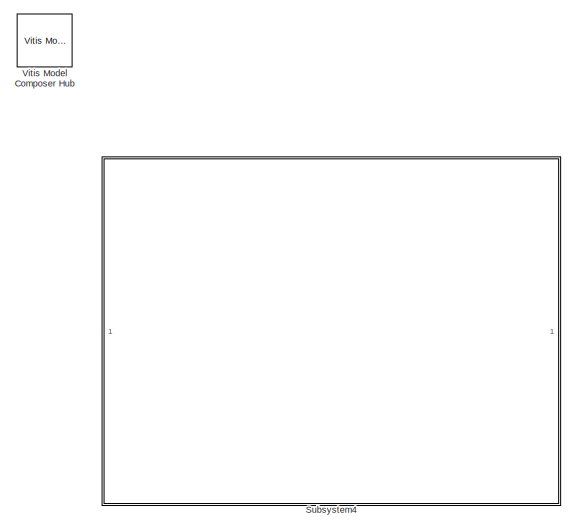
[diagram: root canvas - part 1/4, top left region]
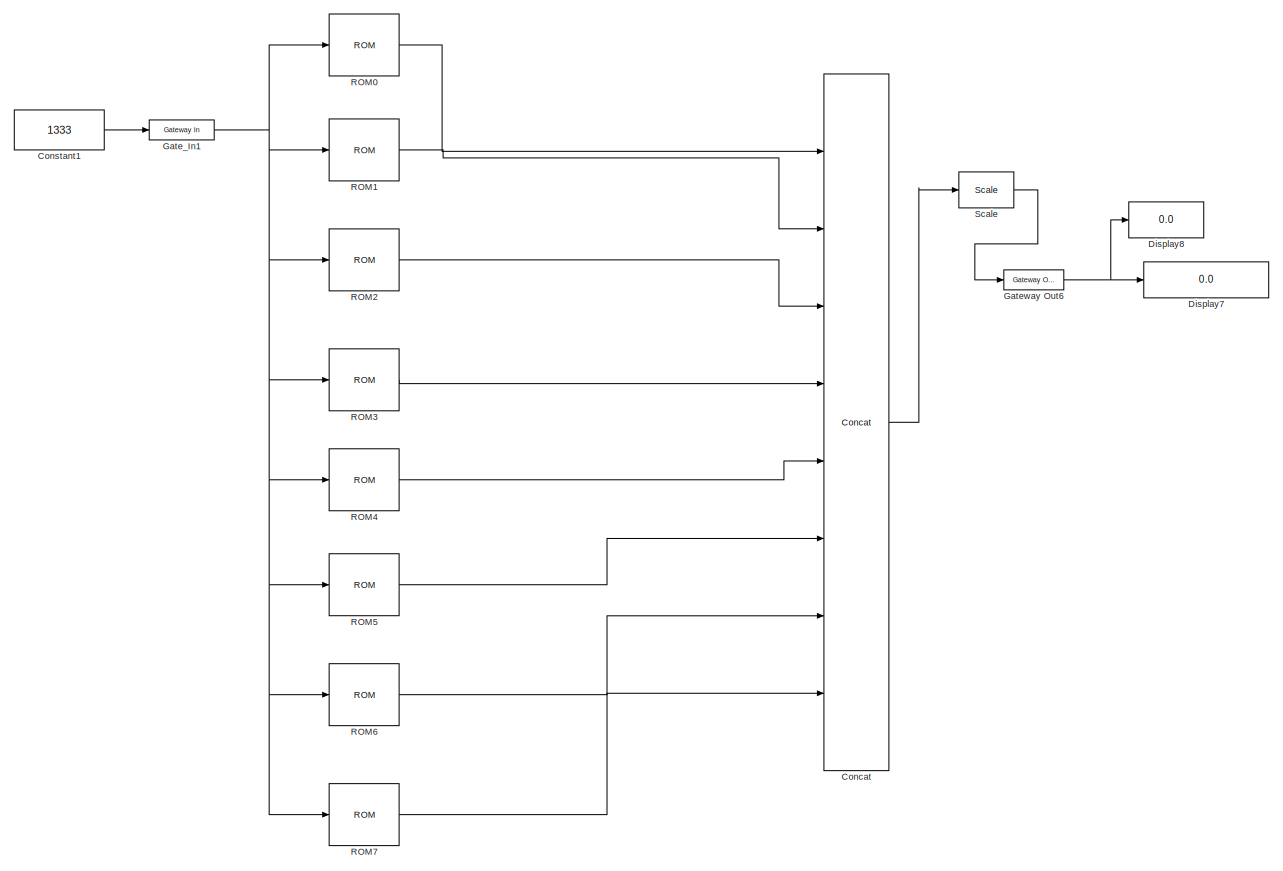
[diagram: root canvas - part 2/4, middle left region]
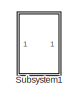
[diagram: root canvas - part 3/4, middle left region]
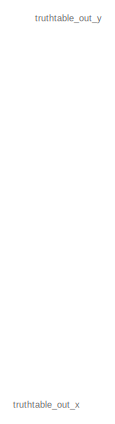
[diagram: root canvas - part 4/4, bottom right region]
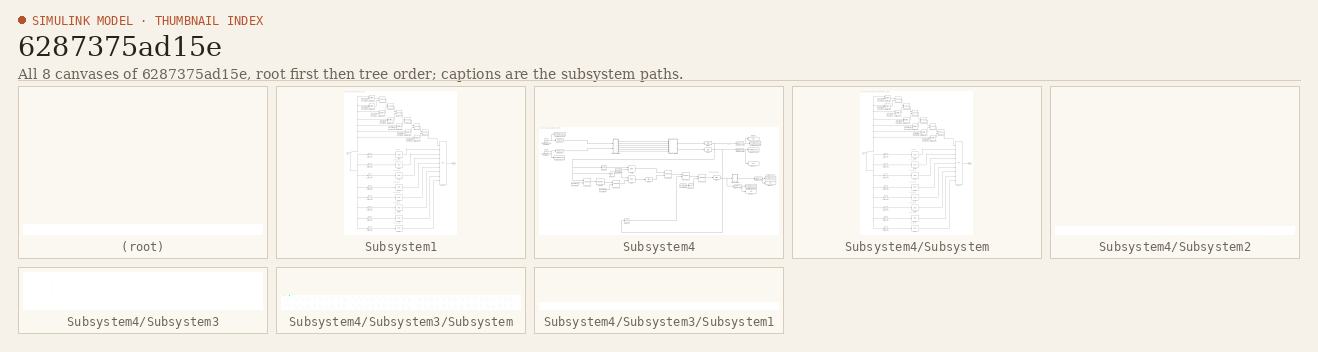
[diagram: thumbnail index - all 8 canvases of the model, root first then tree order]
MODEL slx_6287375ad15e
KIND model
CONFIG AbsTol = auto
CONFIG EnableMultiTasking = off
CONFIG FixedStep = auto
CONFIG MaxStep = auto
CONFIG MinStep = auto
CONFIG RelTol = 1e-3
CONFIG SampleTimeConstraint = Unconstrained
CONFIG SolverName = VariableStepAuto
CONFIG StartTime = 0.0
CONFIG StopTime = 10
BLOCK [Reference] Concat  REF=hdlBasic/Concat
  Ports = [8, 1]
  SourceBlock = hdlBasic/Concat
  SourceType = Bus Concatenator Block
BLOCK [Constant] Constant1
  Value = 1333
BLOCK [Display] Display7
  Decimation = 1
  Format = binary (Stored Integer)
  Ports = [1]
BLOCK [Display] Display8
  Decimation = 1
  Format = long
  Ports = [1]
BLOCK [Reference] Gate_In1  REF=hdlBasic/Gateway In
  Ports = [1, 1]
  SourceBlock = hdlBasic/Gateway In
  SourceType = Gateway In Block
BLOCK [Reference] Gateway Out6  REF=hdlBasic/Gateway Out
  Ports = [1, 1]
  SourceBlock = hdlBasic/Gateway Out
  SourceType = Gateway Out Block
BLOCK [Reference] ROM0  REF=hdlBasic/ROM
  Ports = [1, 1]
  SourceBlock = hdlBasic/ROM
  SourceType = Single Port Read-Only Memory Block
BLOCK [Reference] ROM1  REF=hdlBasic/ROM
  Ports = [1, 1]
  SourceBlock = hdlBasic/ROM
  SourceType = Single Port Read-Only Memory Block
BLOCK [Reference] ROM2  REF=hdlBasic/ROM
  Ports = [1, 1]
  SourceBlock = hdlBasic/ROM
  SourceType = Single Port Read-Only Memory Block
BLOCK [Reference] ROM3  REF=hdlBasic/ROM
  Ports = [1, 1]
  SourceBlock = hdlBasic/ROM
  SourceType = Single Port Read-Only Memory Block
BLOCK [Reference] ROM4  REF=hdlBasic/ROM
  Ports = [1, 1]
  SourceBlock = hdlBasic/ROM
  SourceType = Single Port Read-Only Memory Block
BLOCK [Reference] ROM5  REF=hdlBasic/ROM
  Ports = [1, 1]
  SourceBlock = hdlBasic/ROM
  SourceType = Single Port Read-Only Memory Block
BLOCK [Reference] ROM6  REF=hdlBasic/ROM
  Ports = [1, 1]
  SourceBlock = hdlBasic/ROM
  SourceType = Single Port Read-Only Memory Block
BLOCK [Reference] ROM7  REF=hdlBasic/ROM
  Ports = [1, 1]
  SourceBlock = hdlBasic/ROM
  SourceType = Single Port Read-Only Memory Block
BLOCK [Reference] Scale  REF=hdlBasic/Scale
  Ports = [1, 1]
  SourceBlock = hdlBasic/Scale
  SourceType = Input Scaler Block
BLOCK [SubSystem] Subsystem1
  Commented = on
  Ports = [1, 1]
  RequestExecContextInheritance = off
BLOCK [Reference] Subsystem1/AddSub202  REF=hdlBasic/AddSub
  Ports = [2, 1]
  SourceBlock = hdlBasic/AddSub
  SourceType = Adder/Subtracter Block
BLOCK [Reference] Subsystem1/AddSub203  REF=hdlBasic/AddSub
  Ports = [2, 1]
  SourceBlock = hdlBasic/AddSub
  SourceType = Adder/Subtracter Block
BLOCK [Reference] Subsystem1/AddSub204  REF=hdlBasic/AddSub
  Ports = [2, 1]
  SourceBlock = hdlBasic/AddSub
  SourceType = Adder/Subtracter Block
BLOCK [Reference] Subsystem1/AddSub208  REF=hdlBasic/AddSub
  Ports = [2, 1]
  SourceBlock = hdlBasic/AddSub
  SourceType = Adder/Subtracter Block
BLOCK [Reference] Subsystem1/AddSub212  REF=hdlBasic/AddSub
  Ports = [2, 1]
  SourceBlock = hdlBasic/AddSub
  SourceType = Adder/Subtracter Block
BLOCK [Reference] Subsystem1/AddSub96  REF=hdlBasic/AddSub
  Ports = [2, 1]
  SourceBlock = hdlBasic/AddSub
  SourceType = Adder/Subtracter Block
BLOCK [Reference] Subsystem1/Constant10  REF=hdlBasic/Constant
  Ports = [0, 1]
  SourceBlock = hdlBasic/Constant
  SourceType = Constant Block Block
BLOCK [Reference] Subsystem1/Constant11  REF=hdlBasic/Constant
  Ports = [0, 1]
  SourceBlock = hdlBasic/Constant
  SourceType = Constant Block Block
BLOCK [Reference] Subsystem1/Constant12  REF=hdlBasic/Constant
  Ports = [0, 1]
  SourceBlock = hdlBasic/Constant
  SourceType = Constant Block Block
BLOCK [Reference] Subsystem1/Constant13  REF=hdlBasic/Constant
  Ports = [0, 1]
  SourceBlock = hdlBasic/Constant
  SourceType = Constant Block Block
BLOCK [Reference] Subsystem1/Constant14  REF=hdlBasic/Constant
  Ports = [0, 1]
  SourceBlock = hdlBasic/Constant
  SourceType = Constant Block Block
BLOCK [Reference] Subsystem1/Constant8  REF=hdlBasic/Constant
  Ports = [0, 1]
  SourceBlock = hdlBasic/Constant
  SourceType = Constant Block Block
BLOCK [Reference] Subsystem1/Constant9  REF=hdlBasic/Constant
  Ports = [0, 1]
  SourceBlock = hdlBasic/Constant
  SourceType = Constant Block Block
BLOCK [Reference] Subsystem1/Delay197  REF=hdlBasic/Delay
  Ports = [1, 1]
  SourceBlock = hdlBasic/Delay
  SourceType = Delay Block
BLOCK [Reference] Subsystem1/Delay198  REF=hdlBasic/Delay
  Ports = [1, 1]
  SourceBlock = hdlBasic/Delay
  SourceType = Delay Block
BLOCK [Reference] Subsystem1/Delay208  REF=hdlBasic/Delay
  Ports = [1, 1]
  SourceBlock = hdlBasic/Delay
  SourceType = Delay Block
BLOCK [Reference] Subsystem1/Delay599  REF=hdlBasic/Delay
  Ports = [1, 1]
  SourceBlock = hdlBasic/Delay
  SourceType = Delay Block
BLOCK [Reference] Subsystem1/Delay600  REF=hdlBasic/Delay
  Ports = [1, 1]
  SourceBlock = hdlBasic/Delay
  SourceType = Delay Block
BLOCK [Reference] Subsystem1/Delay601  REF=hdlBasic/Delay
  Ports = [1, 1]
  SourceBlock = hdlBasic/Delay
  SourceType = Delay Block
BLOCK [Reference] Subsystem1/Delay602  REF=hdlBasic/Delay
  Ports = [1, 1]
  SourceBlock = hdlBasic/Delay
  SourceType = Delay Block
BLOCK [Reference] Subsystem1/Delay603  REF=hdlBasic/Delay
  Ports = [1, 1]
  SourceBlock = hdlBasic/Delay
  SourceType = Delay Block
BLOCK [Inport] Subsystem1/In1
BLOCK [Reference] Subsystem1/Mux93  REF=hdlBasic/Mux
  Ports = [9, 1]
  SourceBlock = hdlBasic/Mux
  SourceType = Bus Multiplexer Block
BLOCK [Outport] Subsystem1/Out1
BLOCK [Reference] Subsystem1/ROM  REF=hdlBasic/ROM
  Ports = [1, 1]
  SourceBlock = hdlBasic/ROM
  SourceType = Single Port Read-Only Memory Block
BLOCK [Reference] Subsystem1/ROM1  REF=hdlBasic/ROM
  Ports = [1, 1]
  SourceBlock = hdlBasic/ROM
  SourceType = Single Port Read-Only Memory Block
BLOCK [Reference] Subsystem1/ROM2  REF=hdlBasic/ROM
  Ports = [1, 1]
  SourceBlock = hdlBasic/ROM
  SourceType = Single Port Read-Only Memory Block
BLOCK [Reference] Subsystem1/ROM3  REF=hdlBasic/ROM
  Ports = [1, 1]
  SourceBlock = hdlBasic/ROM
  SourceType = Single Port Read-Only Memory Block
BLOCK [Reference] Subsystem1/ROM4  REF=hdlBasic/ROM
  Ports = [1, 1]
  SourceBlock = hdlBasic/ROM
  SourceType = Single Port Read-Only Memory Block
BLOCK [Reference] Subsystem1/ROM5  REF=hdlBasic/ROM
  Ports = [1, 1]
  SourceBlock = hdlBasic/ROM
  SourceType = Single Port Read-Only Memory Block
BLOCK [Reference] Subsystem1/ROM6  REF=hdlBasic/ROM
  Ports = [1, 1]
  SourceBlock = hdlBasic/ROM
  SourceType = Single Port Read-Only Memory Block
BLOCK [Reference] Subsystem1/ROM7  REF=hdlBasic/ROM
  Ports = [1, 1]
  SourceBlock = hdlBasic/ROM
  SourceType = Single Port Read-Only Memory Block
BLOCK [Reference] Subsystem1/Relational119  REF=hdlBasic/Relational
  Ports = [2, 1]
  SourceBlock = hdlBasic/Relational
  SourceType = Arithmetic Relational Operator Block
BLOCK [Reference] Subsystem1/Relational123  REF=hdlBasic/Relational
  Ports = [2, 1]
  SourceBlock = hdlBasic/Relational
  SourceType = Arithmetic Relational Operator Block
BLOCK [Reference] Subsystem1/Relational209  REF=hdlBasic/Relational
  Ports = [2, 1]
  SourceBlock = hdlBasic/Relational
  SourceType = Arithmetic Relational Operator Block
BLOCK [Reference] Subsystem1/Relational211  REF=hdlBasic/Relational
  Ports = [2, 1]
  SourceBlock = hdlBasic/Relational
  SourceType = Arithmetic Relational Operator Block
BLOCK [Reference] Subsystem1/Relational212  REF=hdlBasic/Relational
  Ports = [2, 1]
  SourceBlock = hdlBasic/Relational
  SourceType = Arithmetic Relational Operator Block
BLOCK [Reference] Subsystem1/Relational93  REF=hdlBasic/Relational
  Ports = [2, 1]
  SourceBlock = hdlBasic/Relational
  SourceType = Arithmetic Relational Operator Block
BLOCK [Reference] Subsystem1/Relational94  REF=hdlBasic/Relational
  Ports = [2, 1]
  SourceBlock = hdlBasic/Relational
  SourceType = Arithmetic Relational Operator Block
BLOCK [SubSystem] Subsystem4
  Commented = on
  Ports = []
  RequestExecContextInheritance = off
BLOCK [Reference] Subsystem4/AddSub18  REF=hdlBasic/AddSub
  Ports = [2, 1]
  SourceBlock = hdlBasic/AddSub
  SourceType = Adder/Subtracter Block
BLOCK [Reference] Subsystem4/AddSub19  REF=hdlBasic/AddSub
  Ports = [2, 1]
  SourceBlock = hdlBasic/AddSub
  SourceType = Adder/Subtracter Block
BLOCK [Reference] Subsystem4/AddSub20  REF=hdlBasic/AddSub
  Ports = [2, 1]
  SourceBlock = hdlBasic/AddSub
  SourceType = Adder/Subtracter Block
BLOCK [Reference] Subsystem4/AddSub21  REF=hdlBasic/AddSub
  Ports = [2, 1]
  SourceBlock = hdlBasic/AddSub
  SourceType = Adder/Subtracter Block
BLOCK [Reference] Subsystem4/AddSub22  REF=hdlBasic/AddSub
  Ports = [2, 1]
  SourceBlock = hdlBasic/AddSub
  SourceType = Adder/Subtracter Block
BLOCK [Reference] Subsystem4/Constant3  REF=hdlBasic/Constant
  Ports = [0, 1]
  SourceBlock = hdlBasic/Constant
  SourceType = Constant Block Block
BLOCK [Reference] Subsystem4/Constant4  REF=hdlBasic/Constant
  Ports = [0, 1]
  SourceBlock = hdlBasic/Constant
  SourceType = Constant Block Block
BLOCK [Reference] Subsystem4/Constant5  REF=hdlBasic/Constant
  Ports = [0, 1]
  SourceBlock = hdlBasic/Constant
  SourceType = Constant Block Block
BLOCK [Reference] Subsystem4/Constant6  REF=hdlBasic/Constant
  Ports = [0, 1]
  SourceBlock = hdlBasic/Constant
  SourceType = Constant Block Block
BLOCK [Reference] Subsystem4/Delay59  REF=hdlBasic/Delay
  Ports = [1, 1]
  SourceBlock = hdlBasic/Delay
  SourceType = Delay Block
BLOCK [Reference] Subsystem4/Delay60  REF=hdlBasic/Delay
  Ports = [1, 1]
  SourceBlock = hdlBasic/Delay
  SourceType = Delay Block
BLOCK [Reference] Subsystem4/Delay604  REF=hdlBasic/Delay
  Ports = [1, 1]
  SourceBlock = hdlBasic/Delay
  SourceType = Delay Block
BLOCK [Reference] Subsystem4/Delay61  REF=hdlBasic/Delay
  Ports = [1, 1]
  SourceBlock = hdlBasic/Delay
  SourceType = Delay Block
BLOCK [Display] Subsystem4/Display
  Decimation = 1
  Ports = [1]
BLOCK [Display] Subsystem4/Display1
  Decimation = 1
  Ports = [1]
BLOCK [Display] Subsystem4/Display2
  Decimation = 1
  Ports = [1]
BLOCK [Display] Subsystem4/Display3
  Decimation = 1
  Ports = [1]
BLOCK [Reference] Subsystem4/Gate_In1  REF=hdlBasic/Gateway In
  Ports = [1, 1]
  SourceBlock = hdlBasic/Gateway In
  SourceType = Gateway In Block
BLOCK [Reference] Subsystem4/Gate_In2  REF=hdlBasic/Gateway In
  Ports = [1, 1]
  SourceBlock = hdlBasic/Gateway In
  SourceType = Gateway In Block
BLOCK [Reference] Subsystem4/Gateway Out1  REF=hdlBasic/Gateway Out
  Ports = [1, 1]
  SourceBlock = hdlBasic/Gateway Out
  SourceType = Gateway Out Block
BLOCK [Reference] Subsystem4/Gateway Out2  REF=hdlBasic/Gateway Out
  Ports = [1, 1]
  SourceBlock = hdlBasic/Gateway Out
  SourceType = Gateway Out Block
BLOCK [Reference] Subsystem4/Gateway Out3  REF=hdlBasic/Gateway Out
  Ports = [1, 1]
  SourceBlock = hdlBasic/Gateway Out
  SourceType = Gateway Out Block
BLOCK [Reference] Subsystem4/Gateway Out4  REF=hdlBasic/Gateway Out
  Ports = [1, 1]
  SourceBlock = hdlBasic/Gateway Out
  SourceType = Gateway Out Block
BLOCK [Reference] Subsystem4/Mult  REF=hdlBasic/Mult
  Ports = [2, 1]
  SourceBlock = hdlBasic/Mult
  SourceType = Multiplier Block
BLOCK [Reference] Subsystem4/Mult1  REF=hdlBasic/Mult
  Ports = [2, 1]
  SourceBlock = hdlBasic/Mult
  SourceType = Multiplier Block
BLOCK [Reference] Subsystem4/Negate  REF=hdlBasic/Negate
  Ports = [1, 1]
  SourceBlock = hdlBasic/Negate
  SourceType = Negate Block Block
BLOCK [Reference] Subsystem4/Slice1  REF=hdlBasic/Slice
  Ports = [1, 1]
  SourceBlock = hdlBasic/Slice
  SourceType = Bit Slice Extractor Block
BLOCK [Reference] Subsystem4/Slice2  REF=hdlBasic/Slice
  Ports = [1, 1]
  SourceBlock = hdlBasic/Slice
  SourceType = Bit Slice Extractor Block
BLOCK [Reference] Subsystem4/Slice3  REF=hdlBasic/Slice
  Ports = [1, 1]
  SourceBlock = hdlBasic/Slice
  SourceType = Bit Slice Extractor Block
BLOCK [Reference] Subsystem4/Slice4  REF=hdlBasic/Slice
  Ports = [1, 1]
  SourceBlock = hdlBasic/Slice
  SourceType = Bit Slice Extractor Block
BLOCK [SubSystem] Subsystem4/Subsystem
  Ports = [1, 1]
  RequestExecContextInheritance = off
BLOCK [Reference] Subsystem4/Subsystem/AddSub202  REF=hdlBasic/AddSub
  Ports = [2, 1]
  SourceBlock = hdlBasic/AddSub
  SourceType = Adder/Subtracter Block
BLOCK [Reference] Subsystem4/Subsystem/AddSub203  REF=hdlBasic/AddSub
  Ports = [2, 1]
  SourceBlock = hdlBasic/AddSub
  SourceType = Adder/Subtracter Block
BLOCK [Reference] Subsystem4/Subsystem/AddSub204  REF=hdlBasic/AddSub
  Ports = [2, 1]
  SourceBlock = hdlBasic/AddSub
  SourceType = Adder/Subtracter Block
BLOCK [Reference] Subsystem4/Subsystem/AddSub208  REF=hdlBasic/AddSub
  Ports = [2, 1]
  SourceBlock = hdlBasic/AddSub
  SourceType = Adder/Subtracter Block
BLOCK [Reference] Subsystem4/Subsystem/AddSub212  REF=hdlBasic/AddSub
  Ports = [2, 1]
  SourceBlock = hdlBasic/AddSub
  SourceType = Adder/Subtracter Block
BLOCK [Reference] Subsystem4/Subsystem/AddSub96  REF=hdlBasic/AddSub
  Ports = [2, 1]
  SourceBlock = hdlBasic/AddSub
  SourceType = Adder/Subtracter Block
BLOCK [Reference] Subsystem4/Subsystem/Constant10  REF=hdlBasic/Constant
  Ports = [0, 1]
  SourceBlock = hdlBasic/Constant
  SourceType = Constant Block Block
BLOCK [Reference] Subsystem4/Subsystem/Constant11  REF=hdlBasic/Constant
  Ports = [0, 1]
  SourceBlock = hdlBasic/Constant
  SourceType = Constant Block Block
BLOCK [Reference] Subsystem4/Subsystem/Constant12  REF=hdlBasic/Constant
  Ports = [0, 1]
  SourceBlock = hdlBasic/Constant
  SourceType = Constant Block Block
BLOCK [Reference] Subsystem4/Subsystem/Constant13  REF=hdlBasic/Constant
  Ports = [0, 1]
  SourceBlock = hdlBasic/Constant
  SourceType = Constant Block Block
BLOCK [Reference] Subsystem4/Subsystem/Constant14  REF=hdlBasic/Constant
  Ports = [0, 1]
  SourceBlock = hdlBasic/Constant
  SourceType = Constant Block Block
BLOCK [Reference] Subsystem4/Subsystem/Constant8  REF=hdlBasic/Constant
  Ports = [0, 1]
  SourceBlock = hdlBasic/Constant
  SourceType = Constant Block Block
BLOCK [Reference] Subsystem4/Subsystem/Constant9  REF=hdlBasic/Constant
  Ports = [0, 1]
  SourceBlock = hdlBasic/Constant
  SourceType = Constant Block Block
BLOCK [Reference] Subsystem4/Subsystem/Delay197  REF=hdlBasic/Delay
  Ports = [1, 1]
  SourceBlock = hdlBasic/Delay
  SourceType = Delay Block
BLOCK [Reference] Subsystem4/Subsystem/Delay198  REF=hdlBasic/Delay
  Ports = [1, 1]
  SourceBlock = hdlBasic/Delay
  SourceType = Delay Block
BLOCK [Reference] Subsystem4/Subsystem/Delay208  REF=hdlBasic/Delay
  Ports = [1, 1]
  SourceBlock = hdlBasic/Delay
  SourceType = Delay Block
BLOCK [Reference] Subsystem4/Subsystem/Delay599  REF=hdlBasic/Delay
  Ports = [1, 1]
  SourceBlock = hdlBasic/Delay
  SourceType = Delay Block
BLOCK [Reference] Subsystem4/Subsystem/Delay600  REF=hdlBasic/Delay
  Ports = [1, 1]
  SourceBlock = hdlBasic/Delay
  SourceType = Delay Block
BLOCK [Reference] Subsystem4/Subsystem/Delay601  REF=hdlBasic/Delay
  Ports = [1, 1]
  SourceBlock = hdlBasic/Delay
  SourceType = Delay Block
BLOCK [Reference] Subsystem4/Subsystem/Delay602  REF=hdlBasic/Delay
  Ports = [1, 1]
  SourceBlock = hdlBasic/Delay
  SourceType = Delay Block
BLOCK [Reference] Subsystem4/Subsystem/Delay603  REF=hdlBasic/Delay
  Ports = [1, 1]
  SourceBlock = hdlBasic/Delay
  SourceType = Delay Block
BLOCK [Inport] Subsystem4/Subsystem/In1
BLOCK [Reference] Subsystem4/Subsystem/Mux93  REF=hdlBasic/Mux
  Ports = [9, 1]
  SourceBlock = hdlBasic/Mux
  SourceType = Bus Multiplexer Block
BLOCK [Outport] Subsystem4/Subsystem/Out1
BLOCK [Reference] Subsystem4/Subsystem/ROM  REF=hdlBasic/ROM
  Ports = [1, 1]
  SourceBlock = hdlBasic/ROM
  SourceType = Single Port Read-Only Memory Block
BLOCK [Reference] Subsystem4/Subsystem/ROM1  REF=hdlBasic/ROM
  Ports = [1, 1]
  SourceBlock = hdlBasic/ROM
  SourceType = Single Port Read-Only Memory Block
BLOCK [Reference] Subsystem4/Subsystem/ROM2  REF=hdlBasic/ROM
  Ports = [1, 1]
  SourceBlock = hdlBasic/ROM
  SourceType = Single Port Read-Only Memory Block
BLOCK [Reference] Subsystem4/Subsystem/ROM3  REF=hdlBasic/ROM
  Ports = [1, 1]
  SourceBlock = hdlBasic/ROM
  SourceType = Single Port Read-Only Memory Block
BLOCK [Reference] Subsystem4/Subsystem/ROM4  REF=hdlBasic/ROM
  Ports = [1, 1]
  SourceBlock = hdlBasic/ROM
  SourceType = Single Port Read-Only Memory Block
BLOCK [Reference] Subsystem4/Subsystem/ROM5  REF=hdlBasic/ROM
  Ports = [1, 1]
  SourceBlock = hdlBasic/ROM
  SourceType = Single Port Read-Only Memory Block
BLOCK [Reference] Subsystem4/Subsystem/ROM6  REF=hdlBasic/ROM
  Ports = [1, 1]
  SourceBlock = hdlBasic/ROM
  SourceType = Single Port Read-Only Memory Block
BLOCK [Reference] Subsystem4/Subsystem/ROM7  REF=hdlBasic/ROM
  Ports = [1, 1]
  SourceBlock = hdlBasic/ROM
  SourceType = Single Port Read-Only Memory Block
BLOCK [Reference] Subsystem4/Subsystem/Relational119  REF=hdlBasic/Relational
  Ports = [2, 1]
  SourceBlock = hdlBasic/Relational
  SourceType = Arithmetic Relational Operator Block
BLOCK [Reference] Subsystem4/Subsystem/Relational123  REF=hdlBasic/Relational
  Ports = [2, 1]
  SourceBlock = hdlBasic/Relational
  SourceType = Arithmetic Relational Operator Block
BLOCK [Reference] Subsystem4/Subsystem/Relational209  REF=hdlBasic/Relational
  Ports = [2, 1]
  SourceBlock = hdlBasic/Relational
  SourceType = Arithmetic Relational Operator Block
BLOCK [Reference] Subsystem4/Subsystem/Relational211  REF=hdlBasic/Relational
  Ports = [2, 1]
  SourceBlock = hdlBasic/Relational
  SourceType = Arithmetic Relational Operator Block
BLOCK [Reference] Subsystem4/Subsystem/Relational212  REF=hdlBasic/Relational
  Ports = [2, 1]
  SourceBlock = hdlBasic/Relational
  SourceType = Arithmetic Relational Operator Block
BLOCK [Reference] Subsystem4/Subsystem/Relational93  REF=hdlBasic/Relational
  Ports = [2, 1]
  SourceBlock = hdlBasic/Relational
  SourceType = Arithmetic Relational Operator Block
BLOCK [Reference] Subsystem4/Subsystem/Relational94  REF=hdlBasic/Relational
  Ports = [2, 1]
  SourceBlock = hdlBasic/Relational
  SourceType = Arithmetic Relational Operator Block
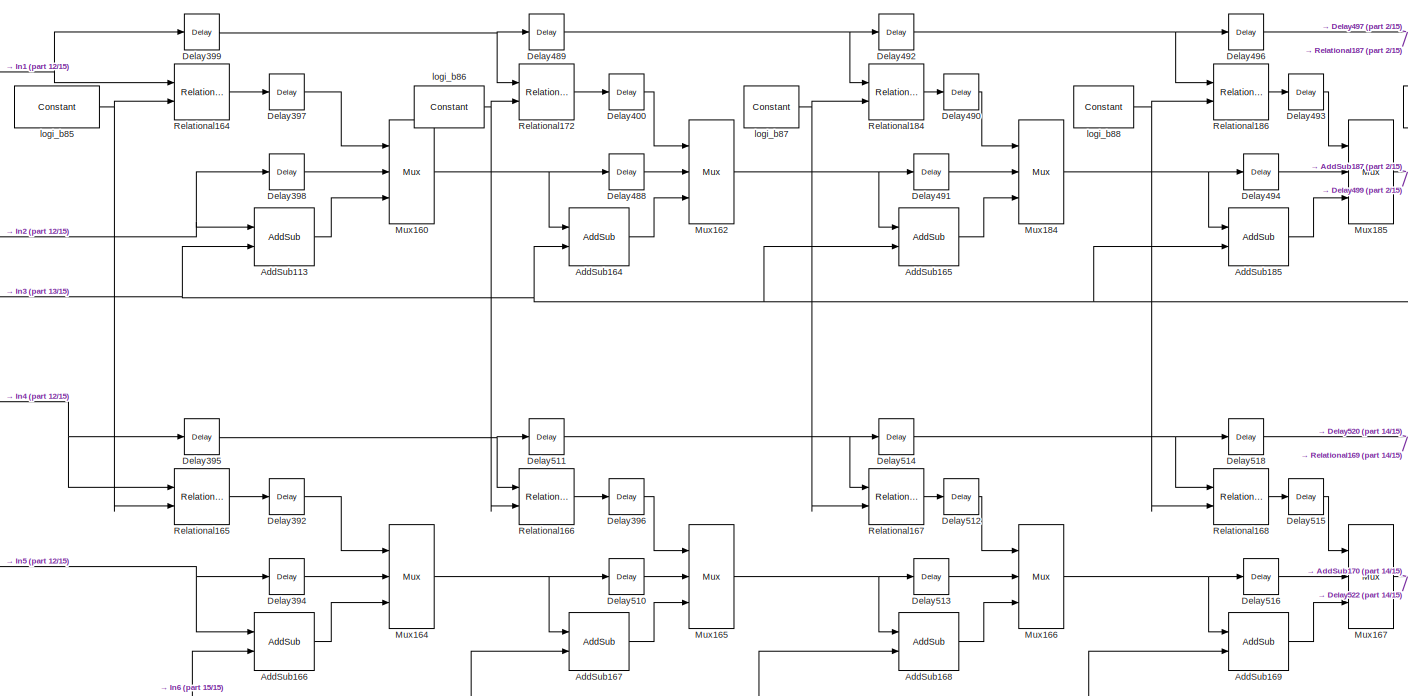
[diagram: Subsystem4/Subsystem2 - part 1/15, center side, full height]
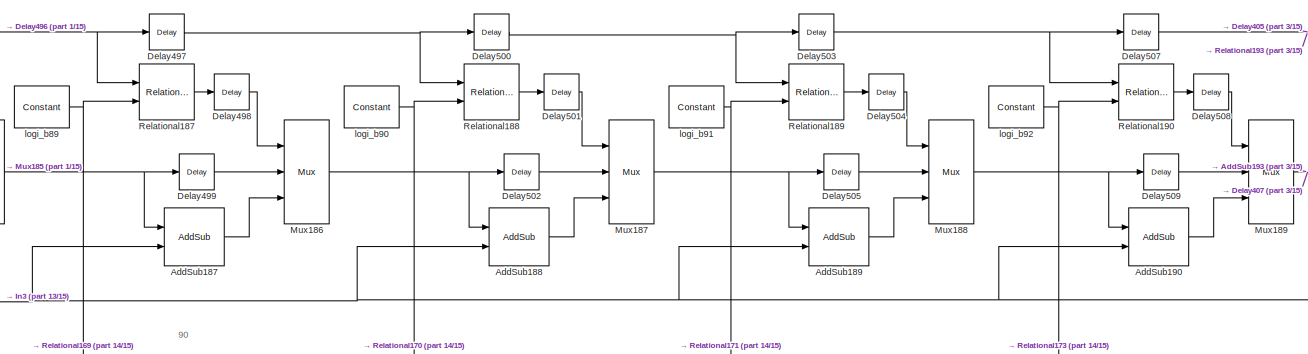
[diagram: Subsystem4/Subsystem2 - part 2/15, top center region]
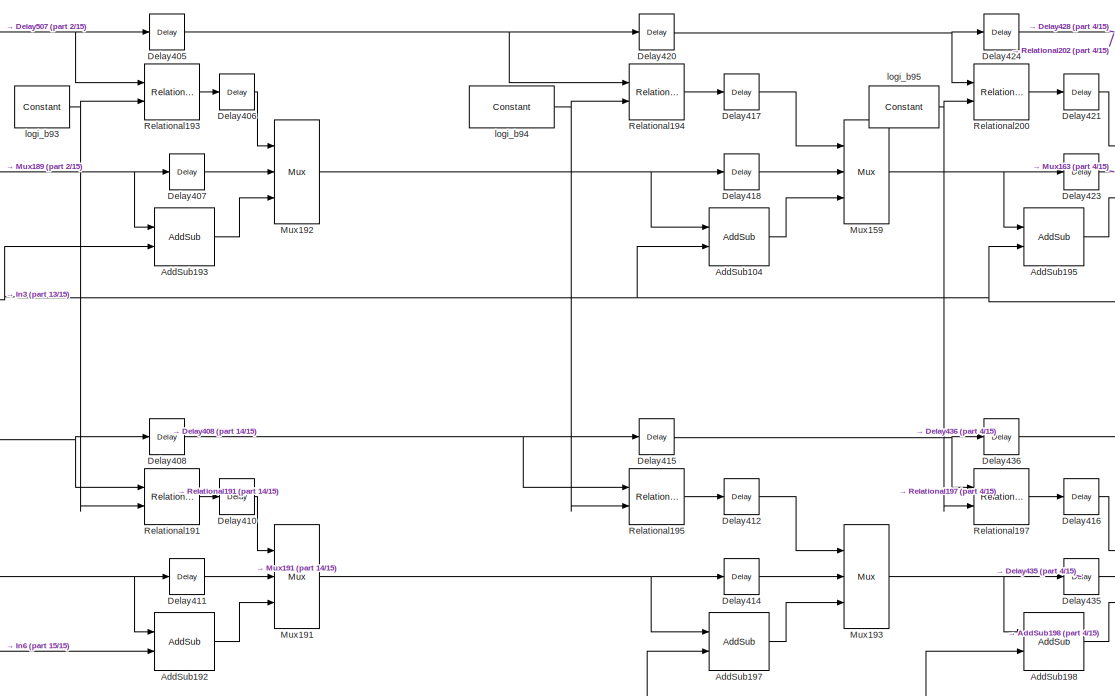
[diagram: Subsystem4/Subsystem2 - part 3/15, center side, full height]
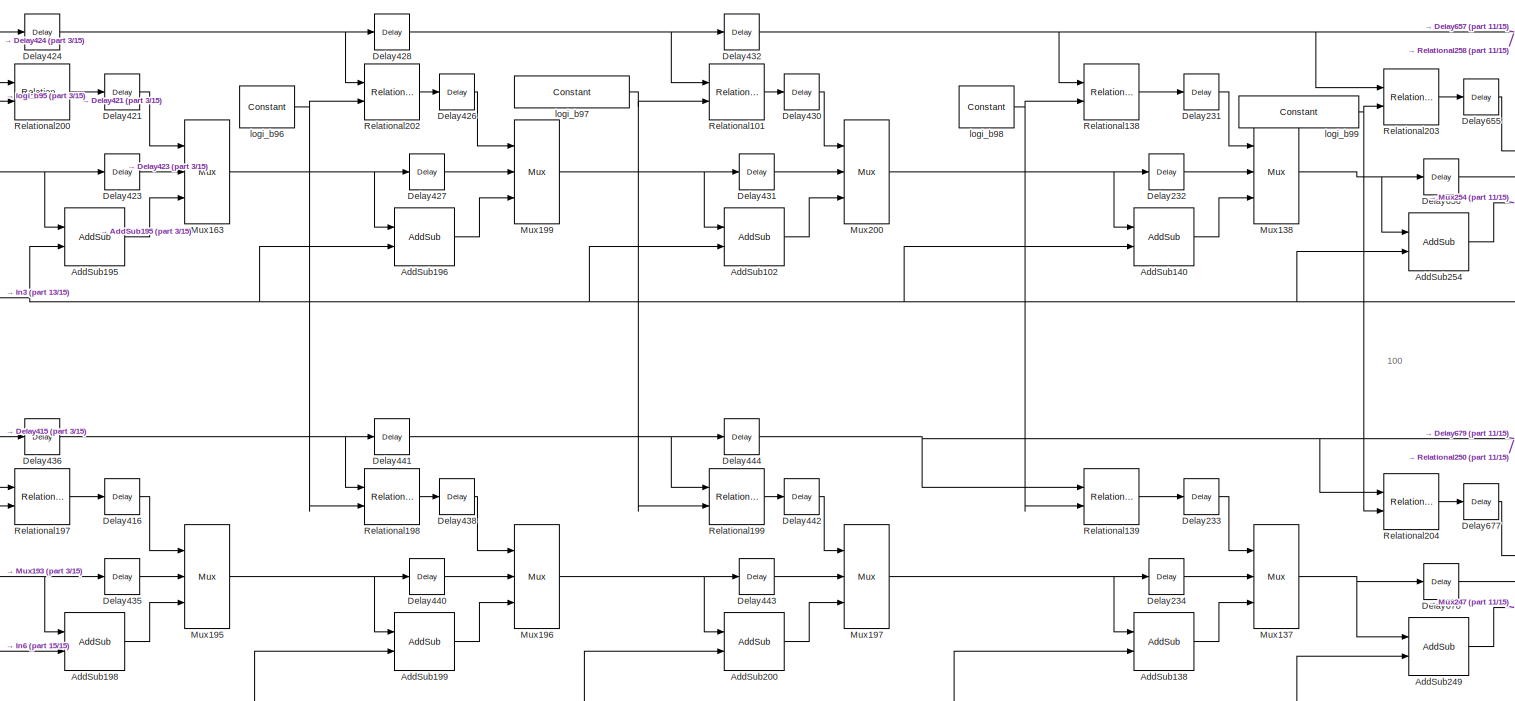
[diagram: Subsystem4/Subsystem2 - part 4/15, center side, full height]
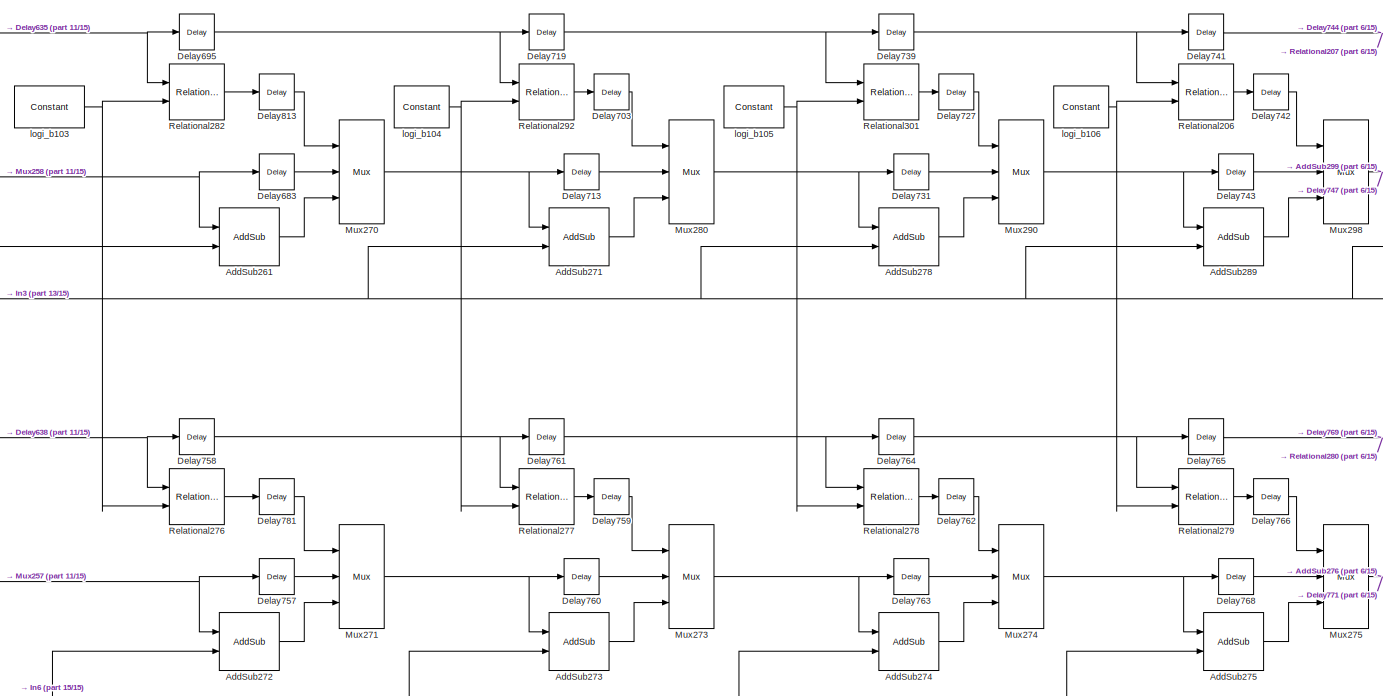
[diagram: Subsystem4/Subsystem2 - part 5/15, right side, full height]
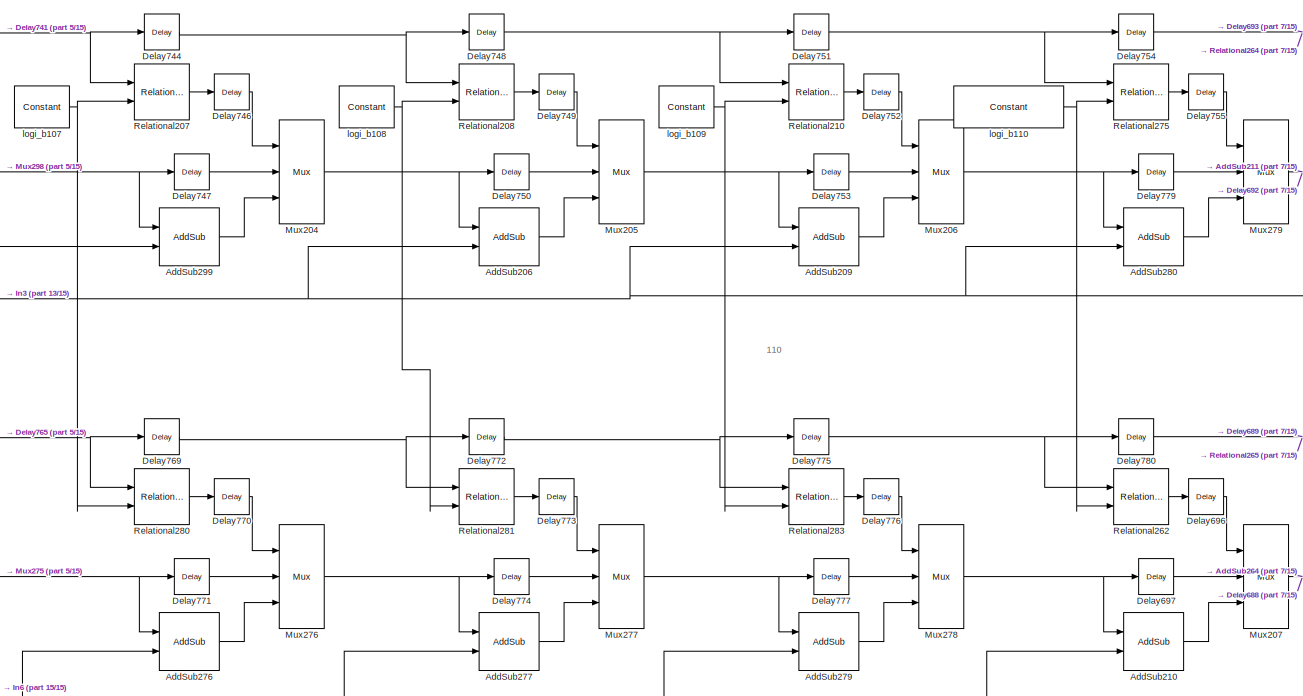
[diagram: Subsystem4/Subsystem2 - part 6/15, right side, full height]
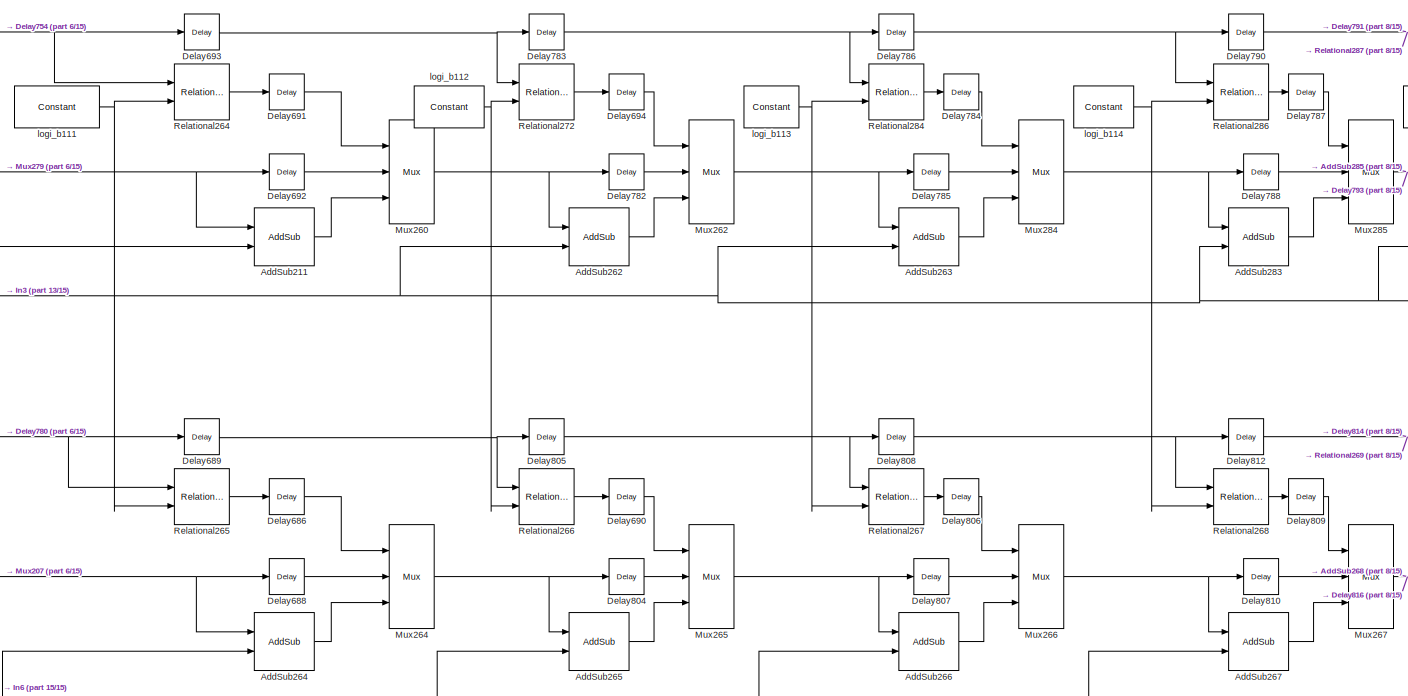
[diagram: Subsystem4/Subsystem2 - part 7/15, right side, full height]
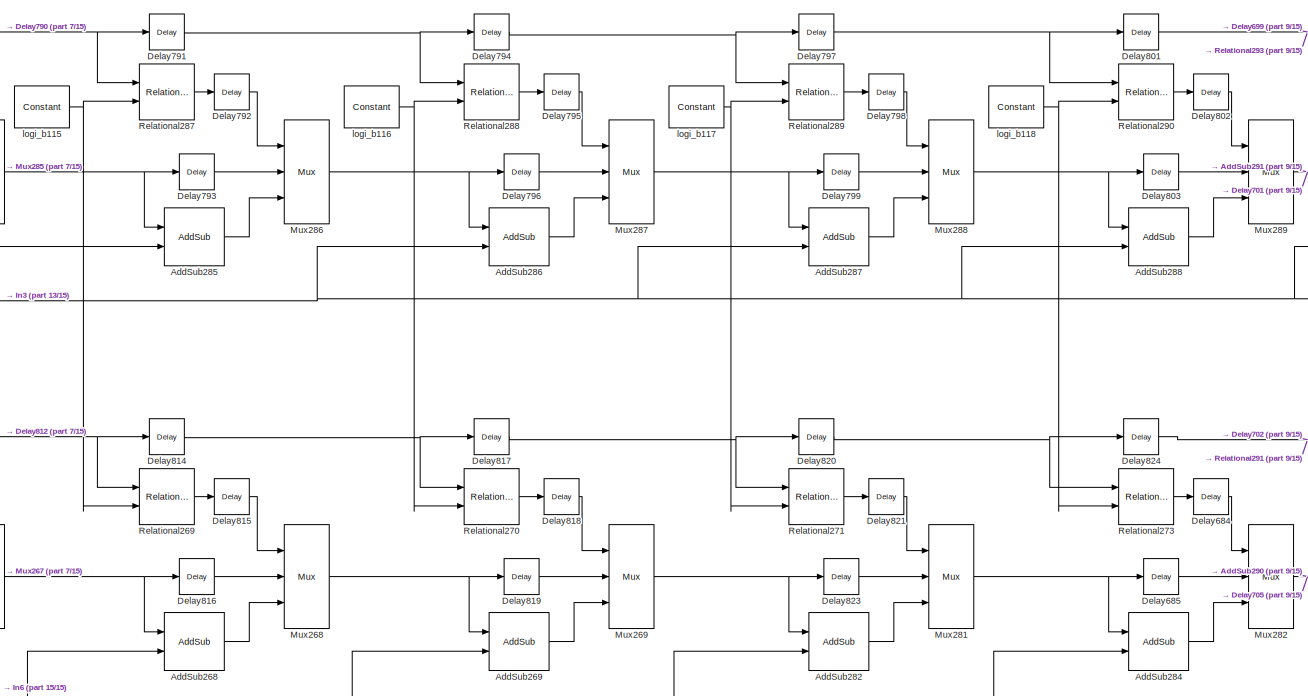
[diagram: Subsystem4/Subsystem2 - part 8/15, right side, full height]
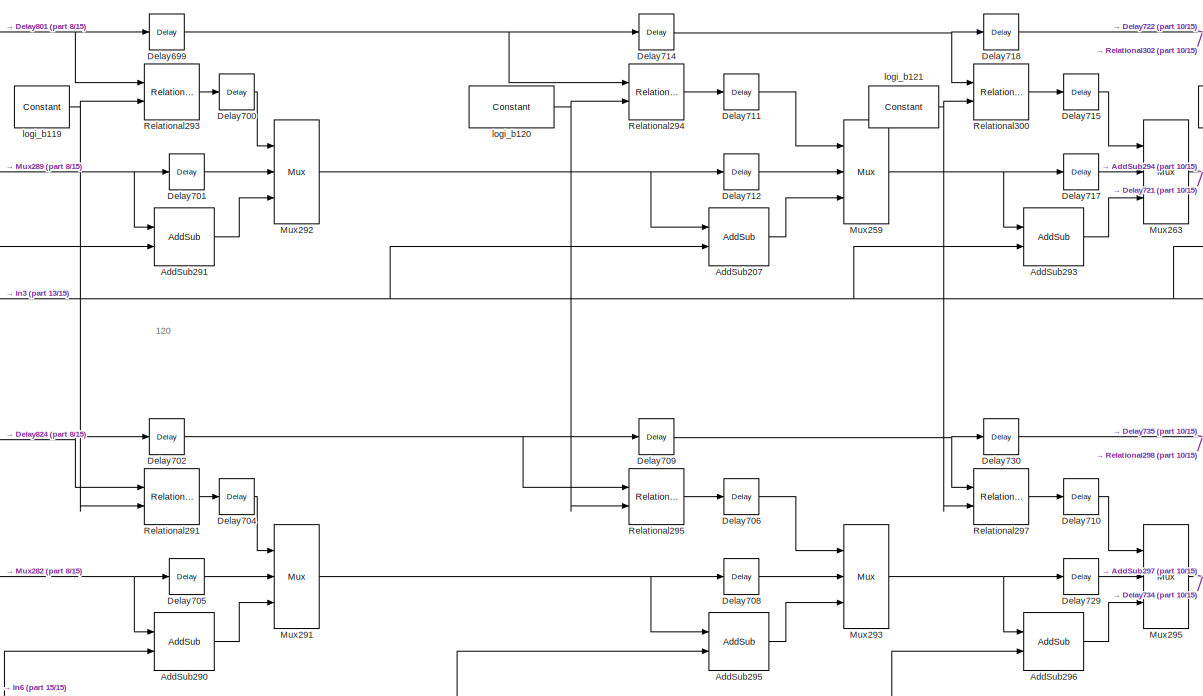
[diagram: Subsystem4/Subsystem2 - part 9/15, right side, full height]
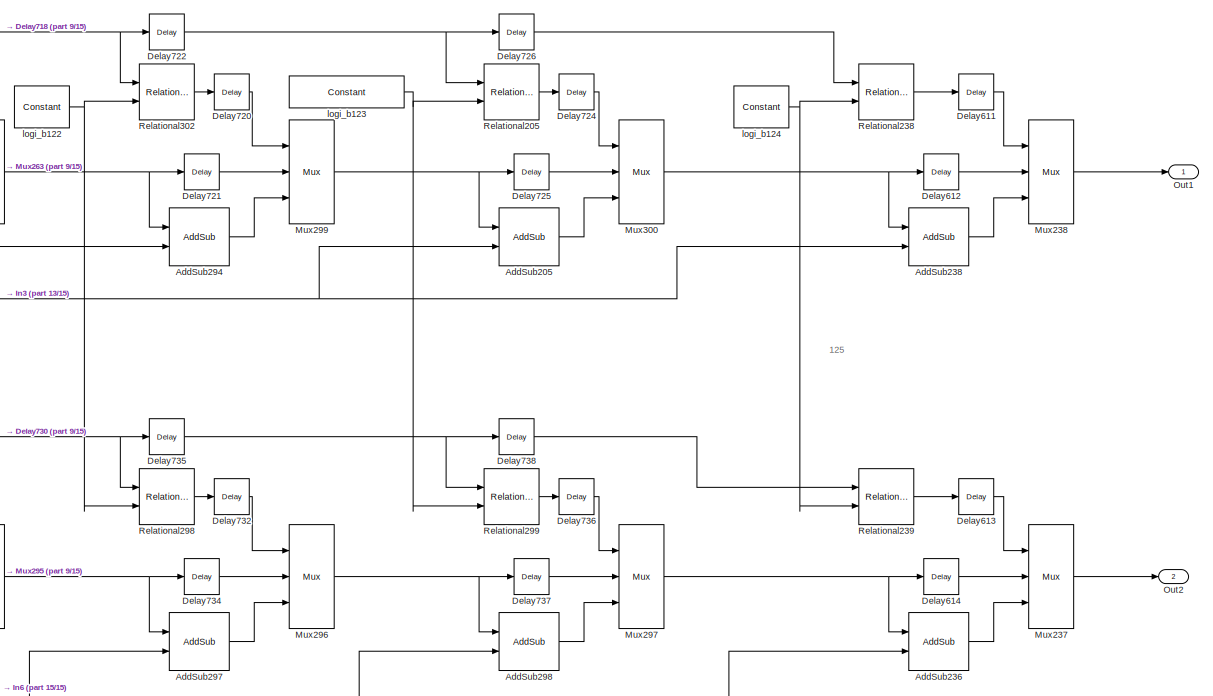
[diagram: Subsystem4/Subsystem2 - part 10/15, right side, full height]
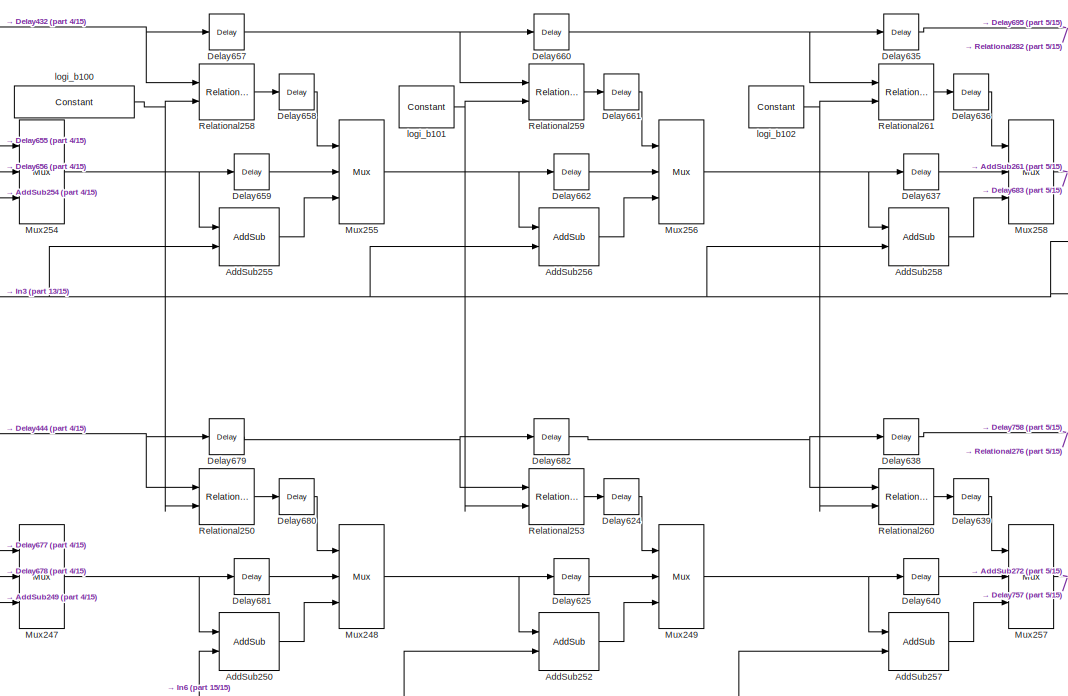
[diagram: Subsystem4/Subsystem2 - part 11/15, center side, full height]
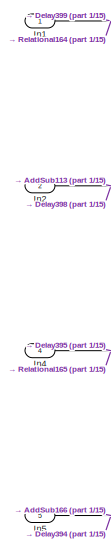
[diagram: Subsystem4/Subsystem2 - part 12/15, middle left region]
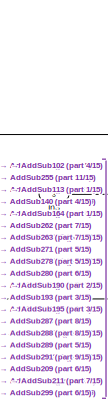
[diagram: Subsystem4/Subsystem2 - part 13/15, central region]
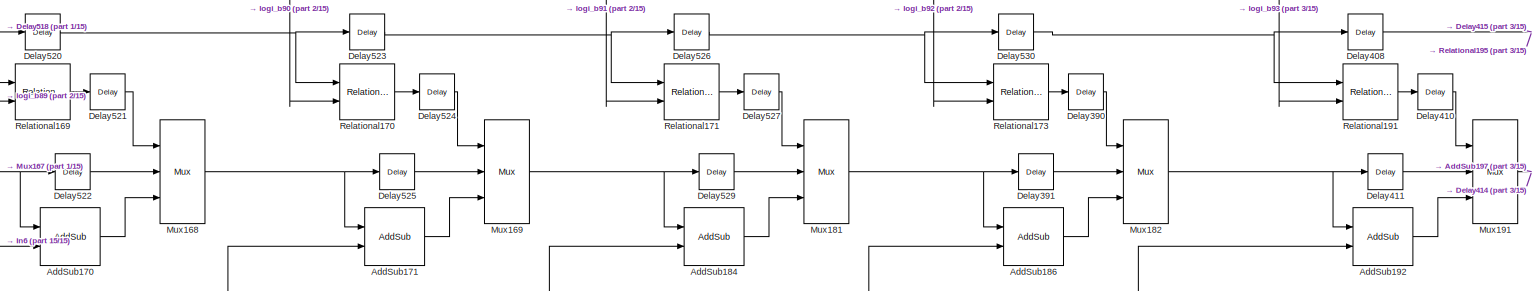
[diagram: Subsystem4/Subsystem2 - part 14/15, bottom center region]
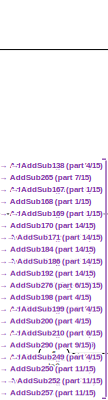
[diagram: Subsystem4/Subsystem2 - part 15/15, bottom left region]
BLOCK [SubSystem] Subsystem4/Subsystem2
  Ports = [6, 2]
  RequestExecContextInheritance = off
BLOCK [Reference] Subsystem4/Subsystem2/AddSub102  REF=hdlBasic/AddSub
  Ports = [2, 1]
  SourceBlock = hdlBasic/AddSub
  SourceType = Adder/Subtracter Block
BLOCK [Reference] Subsystem4/Subsystem2/AddSub104  REF=hdlBasic/AddSub
  Ports = [2, 1]
  SourceBlock = hdlBasic/AddSub
  SourceType = Adder/Subtracter Block
BLOCK [Reference] Subsystem4/Subsystem2/AddSub113  REF=hdlBasic/AddSub
  Ports = [2, 1]
  SourceBlock = hdlBasic/AddSub
  SourceType = Adder/Subtracter Block
BLOCK [Reference] Subsystem4/Subsystem2/AddSub138  REF=hdlBasic/AddSub
  Ports = [2, 1]
  SourceBlock = hdlBasic/AddSub
  SourceType = Adder/Subtracter Block
BLOCK [Reference] Subsystem4/Subsystem2/AddSub140  REF=hdlBasic/AddSub
  Ports = [2, 1]
  SourceBlock = hdlBasic/AddSub
  SourceType = Adder/Subtracter Block
BLOCK [Reference] Subsystem4/Subsystem2/AddSub164  REF=hdlBasic/AddSub
  Ports = [2, 1]
  SourceBlock = hdlBasic/AddSub
  SourceType = Adder/Subtracter Block
BLOCK [Reference] Subsystem4/Subsystem2/AddSub165  REF=hdlBasic/AddSub
  Ports = [2, 1]
  SourceBlock = hdlBasic/AddSub
  SourceType = Adder/Subtracter Block
BLOCK [Reference] Subsystem4/Subsystem2/AddSub166  REF=hdlBasic/AddSub
  Ports = [2, 1]
  SourceBlock = hdlBasic/AddSub
  SourceType = Adder/Subtracter Block
BLOCK [Reference] Subsystem4/Subsystem2/AddSub167  REF=hdlBasic/AddSub
  Ports = [2, 1]
  SourceBlock = hdlBasic/AddSub
  SourceType = Adder/Subtracter Block
BLOCK [Reference] Subsystem4/Subsystem2/AddSub168  REF=hdlBasic/AddSub
  Ports = [2, 1]
  SourceBlock = hdlBasic/AddSub
  SourceType = Adder/Subtracter Block
BLOCK [Reference] Subsystem4/Subsystem2/AddSub169  REF=hdlBasic/AddSub
  Ports = [2, 1]
  SourceBlock = hdlBasic/AddSub
  SourceType = Adder/Subtracter Block
BLOCK [Reference] Subsystem4/Subsystem2/AddSub170  REF=hdlBasic/AddSub
  Ports = [2, 1]
  SourceBlock = hdlBasic/AddSub
  SourceType = Adder/Subtracter Block
BLOCK [Reference] Subsystem4/Subsystem2/AddSub171  REF=hdlBasic/AddSub
  Ports = [2, 1]
  SourceBlock = hdlBasic/AddSub
  SourceType = Adder/Subtracter Block
BLOCK [Reference] Subsystem4/Subsystem2/AddSub184  REF=hdlBasic/AddSub
  Ports = [2, 1]
  SourceBlock = hdlBasic/AddSub
  SourceType = Adder/Subtracter Block
BLOCK [Reference] Subsystem4/Subsystem2/AddSub185  REF=hdlBasic/AddSub
  Ports = [2, 1]
  SourceBlock = hdlBasic/AddSub
  SourceType = Adder/Subtracter Block
BLOCK [Reference] Subsystem4/Subsystem2/AddSub186  REF=hdlBasic/AddSub
  Ports = [2, 1]
  SourceBlock = hdlBasic/AddSub
  SourceType = Adder/Subtracter Block
BLOCK [Reference] Subsystem4/Subsystem2/AddSub187  REF=hdlBasic/AddSub
  Ports = [2, 1]
  SourceBlock = hdlBasic/AddSub
  SourceType = Adder/Subtracter Block
BLOCK [Reference] Subsystem4/Subsystem2/AddSub188  REF=hdlBasic/AddSub
  Ports = [2, 1]
  SourceBlock = hdlBasic/AddSub
  SourceType = Adder/Subtracter Block
BLOCK [Reference] Subsystem4/Subsystem2/AddSub189  REF=hdlBasic/AddSub
  Ports = [2, 1]
  SourceBlock = hdlBasic/AddSub
  SourceType = Adder/Subtracter Block
BLOCK [Reference] Subsystem4/Subsystem2/AddSub190  REF=hdlBasic/AddSub
  Ports = [2, 1]
  SourceBlock = hdlBasic/AddSub
  SourceType = Adder/Subtracter Block
BLOCK [Reference] Subsystem4/Subsystem2/AddSub192  REF=hdlBasic/AddSub
  Ports = [2, 1]
  SourceBlock = hdlBasic/AddSub
  SourceType = Adder/Subtracter Block
BLOCK [Reference] Subsystem4/Subsystem2/AddSub193  REF=hdlBasic/AddSub
  Ports = [2, 1]
  SourceBlock = hdlBasic/AddSub
  SourceType = Adder/Subtracter Block
BLOCK [Reference] Subsystem4/Subsystem2/AddSub195  REF=hdlBasic/AddSub
  Ports = [2, 1]
  SourceBlock = hdlBasic/AddSub
  SourceType = Adder/Subtracter Block
BLOCK [Reference] Subsystem4/Subsystem2/AddSub196  REF=hdlBasic/AddSub
  Ports = [2, 1]
  SourceBlock = hdlBasic/AddSub
  SourceType = Adder/Subtracter Block
BLOCK [Reference] Subsystem4/Subsystem2/AddSub197  REF=hdlBasic/AddSub
  Ports = [2, 1]
  SourceBlock = hdlBasic/AddSub
  SourceType = Adder/Subtracter Block
BLOCK [Reference] Subsystem4/Subsystem2/AddSub198  REF=hdlBasic/AddSub
  Ports = [2, 1]
  SourceBlock = hdlBasic/AddSub
  SourceType = Adder/Subtracter Block
BLOCK [Reference] Subsystem4/Subsystem2/AddSub199  REF=hdlBasic/AddSub
  Ports = [2, 1]
  SourceBlock = hdlBasic/AddSub
  SourceType = Adder/Subtracter Block
BLOCK [Reference] Subsystem4/Subsystem2/AddSub200  REF=hdlBasic/AddSub
  Ports = [2, 1]
  SourceBlock = hdlBasic/AddSub
  SourceType = Adder/Subtracter Block
BLOCK [Reference] Subsystem4/Subsystem2/AddSub205  REF=hdlBasic/AddSub
  Ports = [2, 1]
  SourceBlock = hdlBasic/AddSub
  SourceType = Adder/Subtracter Block
BLOCK [Reference] Subsystem4/Subsystem2/AddSub206  REF=hdlBasic/AddSub
  Ports = [2, 1]
  SourceBlock = hdlBasic/AddSub
  SourceType = Adder/Subtracter Block
BLOCK [Reference] Subsystem4/Subsystem2/AddSub207  REF=hdlBasic/AddSub
  Ports = [2, 1]
  SourceBlock = hdlBasic/AddSub
  SourceType = Adder/Subtracter Block
BLOCK [Reference] Subsystem4/Subsystem2/AddSub209  REF=hdlBasic/AddSub
  Ports = [2, 1]
  SourceBlock = hdlBasic/AddSub
  SourceType = Adder/Subtracter Block
BLOCK [Reference] Subsystem4/Subsystem2/AddSub210  REF=hdlBasic/AddSub
  Ports = [2, 1]
  SourceBlock = hdlBasic/AddSub
  SourceType = Adder/Subtracter Block
BLOCK [Reference] Subsystem4/Subsystem2/AddSub211  REF=hdlBasic/AddSub
  Ports = [2, 1]
  SourceBlock = hdlBasic/AddSub
  SourceType = Adder/Subtracter Block
BLOCK [Reference] Subsystem4/Subsystem2/AddSub236  REF=hdlBasic/AddSub
  Ports = [2, 1]
  SourceBlock = hdlBasic/AddSub
  SourceType = Adder/Subtracter Block
BLOCK [Reference] Subsystem4/Subsystem2/AddSub238  REF=hdlBasic/AddSub
  Ports = [2, 1]
  SourceBlock = hdlBasic/AddSub
  SourceType = Adder/Subtracter Block
BLOCK [Reference] Subsystem4/Subsystem2/AddSub249  REF=hdlBasic/AddSub
  Ports = [2, 1]
  SourceBlock = hdlBasic/AddSub
  SourceType = Adder/Subtracter Block
BLOCK [Reference] Subsystem4/Subsystem2/AddSub250  REF=hdlBasic/AddSub
  Ports = [2, 1]
  SourceBlock = hdlBasic/AddSub
  SourceType = Adder/Subtracter Block
BLOCK [Reference] Subsystem4/Subsystem2/AddSub252  REF=hdlBasic/AddSub
  Ports = [2, 1]
  SourceBlock = hdlBasic/AddSub
  SourceType = Adder/Subtracter Block
BLOCK [Reference] Subsystem4/Subsystem2/AddSub254  REF=hdlBasic/AddSub
  Ports = [2, 1]
  SourceBlock = hdlBasic/AddSub
  SourceType = Adder/Subtracter Block
BLOCK [Reference] Subsystem4/Subsystem2/AddSub255  REF=hdlBasic/AddSub
  Ports = [2, 1]
  SourceBlock = hdlBasic/AddSub
  SourceType = Adder/Subtracter Block
BLOCK [Reference] Subsystem4/Subsystem2/AddSub256  REF=hdlBasic/AddSub
  Ports = [2, 1]
  SourceBlock = hdlBasic/AddSub
  SourceType = Adder/Subtracter Block
BLOCK [Reference] Subsystem4/Subsystem2/AddSub257  REF=hdlBasic/AddSub
  Ports = [2, 1]
  SourceBlock = hdlBasic/AddSub
  SourceType = Adder/Subtracter Block
BLOCK [Reference] Subsystem4/Subsystem2/AddSub258  REF=hdlBasic/AddSub
  Ports = [2, 1]
  SourceBlock = hdlBasic/AddSub
  SourceType = Adder/Subtracter Block
BLOCK [Reference] Subsystem4/Subsystem2/AddSub261  REF=hdlBasic/AddSub
  Ports = [2, 1]
  SourceBlock = hdlBasic/AddSub
  SourceType = Adder/Subtracter Block
BLOCK [Reference] Subsystem4/Subsystem2/AddSub262  REF=hdlBasic/AddSub
  Ports = [2, 1]
  SourceBlock = hdlBasic/AddSub
  SourceType = Adder/Subtracter Block
BLOCK [Reference] Subsystem4/Subsystem2/AddSub263  REF=hdlBasic/AddSub
  Ports = [2, 1]
  SourceBlock = hdlBasic/AddSub
  SourceType = Adder/Subtracter Block
BLOCK [Reference] Subsystem4/Subsystem2/AddSub264  REF=hdlBasic/AddSub
  Ports = [2, 1]
  SourceBlock = hdlBasic/AddSub
  SourceType = Adder/Subtracter Block
BLOCK [Reference] Subsystem4/Subsystem2/AddSub265  REF=hdlBasic/AddSub
  Ports = [2, 1]
  SourceBlock = hdlBasic/AddSub
  SourceType = Adder/Subtracter Block
BLOCK [Reference] Subsystem4/Subsystem2/AddSub266  REF=hdlBasic/AddSub
  Ports = [2, 1]
  SourceBlock = hdlBasic/AddSub
  SourceType = Adder/Subtracter Block
BLOCK [Reference] Subsystem4/Subsystem2/AddSub267  REF=hdlBasic/AddSub
  Ports = [2, 1]
  SourceBlock = hdlBasic/AddSub
  SourceType = Adder/Subtracter Block
BLOCK [Reference] Subsystem4/Subsystem2/AddSub268  REF=hdlBasic/AddSub
  Ports = [2, 1]
  SourceBlock = hdlBasic/AddSub
  SourceType = Adder/Subtracter Block
BLOCK [Reference] Subsystem4/Subsystem2/AddSub269  REF=hdlBasic/AddSub
  Ports = [2, 1]
  SourceBlock = hdlBasic/AddSub
  SourceType = Adder/Subtracter Block
BLOCK [Reference] Subsystem4/Subsystem2/AddSub271  REF=hdlBasic/AddSub
  Ports = [2, 1]
  SourceBlock = hdlBasic/AddSub
  SourceType = Adder/Subtracter Block
BLOCK [Reference] Subsystem4/Subsystem2/AddSub272  REF=hdlBasic/AddSub
  Ports = [2, 1]
  SourceBlock = hdlBasic/AddSub
  SourceType = Adder/Subtracter Block
BLOCK [Reference] Subsystem4/Subsystem2/AddSub273  REF=hdlBasic/AddSub
  Ports = [2, 1]
  SourceBlock = hdlBasic/AddSub
  SourceType = Adder/Subtracter Block
BLOCK [Reference] Subsystem4/Subsystem2/AddSub274  REF=hdlBasic/AddSub
  Ports = [2, 1]
  SourceBlock = hdlBasic/AddSub
  SourceType = Adder/Subtracter Block
BLOCK [Reference] Subsystem4/Subsystem2/AddSub275  REF=hdlBasic/AddSub
  Ports = [2, 1]
  SourceBlock = hdlBasic/AddSub
  SourceType = Adder/Subtracter Block
BLOCK [Reference] Subsystem4/Subsystem2/AddSub276  REF=hdlBasic/AddSub
  Ports = [2, 1]
  SourceBlock = hdlBasic/AddSub
  SourceType = Adder/Subtracter Block
BLOCK [Reference] Subsystem4/Subsystem2/AddSub277  REF=hdlBasic/AddSub
  Ports = [2, 1]
  SourceBlock = hdlBasic/AddSub
  SourceType = Adder/Subtracter Block
BLOCK [Reference] Subsystem4/Subsystem2/AddSub278  REF=hdlBasic/AddSub
  Ports = [2, 1]
  SourceBlock = hdlBasic/AddSub
  SourceType = Adder/Subtracter Block
BLOCK [Reference] Subsystem4/Subsystem2/AddSub279  REF=hdlBasic/AddSub
  Ports = [2, 1]
  SourceBlock = hdlBasic/AddSub
  SourceType = Adder/Subtracter Block
BLOCK [Reference] Subsystem4/Subsystem2/AddSub280  REF=hdlBasic/AddSub
  Ports = [2, 1]
  SourceBlock = hdlBasic/AddSub
  SourceType = Adder/Subtracter Block
BLOCK [Reference] Subsystem4/Subsystem2/AddSub282  REF=hdlBasic/AddSub
  Ports = [2, 1]
  SourceBlock = hdlBasic/AddSub
  SourceType = Adder/Subtracter Block
BLOCK [Reference] Subsystem4/Subsystem2/AddSub283  REF=hdlBasic/AddSub
  Ports = [2, 1]
  SourceBlock = hdlBasic/AddSub
  SourceType = Adder/Subtracter Block
BLOCK [Reference] Subsystem4/Subsystem2/AddSub284  REF=hdlBasic/AddSub
  Ports = [2, 1]
  SourceBlock = hdlBasic/AddSub
  SourceType = Adder/Subtracter Block
BLOCK [Reference] Subsystem4/Subsystem2/AddSub285  REF=hdlBasic/AddSub
  Ports = [2, 1]
  SourceBlock = hdlBasic/AddSub
  SourceType = Adder/Subtracter Block
BLOCK [Reference] Subsystem4/Subsystem2/AddSub286  REF=hdlBasic/AddSub
  Ports = [2, 1]
  SourceBlock = hdlBasic/AddSub
  SourceType = Adder/Subtracter Block
BLOCK [Reference] Subsystem4/Subsystem2/AddSub287  REF=hdlBasic/AddSub
  Ports = [2, 1]
  SourceBlock = hdlBasic/AddSub
  SourceType = Adder/Subtracter Block
BLOCK [Reference] Subsystem4/Subsystem2/AddSub288  REF=hdlBasic/AddSub
  Ports = [2, 1]
  SourceBlock = hdlBasic/AddSub
  SourceType = Adder/Subtracter Block
BLOCK [Reference] Subsystem4/Subsystem2/AddSub289  REF=hdlBasic/AddSub
  Ports = [2, 1]
  SourceBlock = hdlBasic/AddSub
  SourceType = Adder/Subtracter Block
BLOCK [Reference] Subsystem4/Subsystem2/AddSub290  REF=hdlBasic/AddSub
  Ports = [2, 1]
  SourceBlock = hdlBasic/AddSub
  SourceType = Adder/Subtracter Block
BLOCK [Reference] Subsystem4/Subsystem2/AddSub291  REF=hdlBasic/AddSub
  Ports = [2, 1]
  SourceBlock = hdlBasic/AddSub
  SourceType = Adder/Subtracter Block
BLOCK [Reference] Subsystem4/Subsystem2/AddSub293  REF=hdlBasic/AddSub
  Ports = [2, 1]
  SourceBlock = hdlBasic/AddSub
  SourceType = Adder/Subtracter Block
BLOCK [Reference] Subsystem4/Subsystem2/AddSub294  REF=hdlBasic/AddSub
  Ports = [2, 1]
  SourceBlock = hdlBasic/AddSub
  SourceType = Adder/Subtracter Block
BLOCK [Reference] Subsystem4/Subsystem2/AddSub295  REF=hdlBasic/AddSub
  Ports = [2, 1]
  SourceBlock = hdlBasic/AddSub
  SourceType = Adder/Subtracter Block
BLOCK [Reference] Subsystem4/Subsystem2/AddSub296  REF=hdlBasic/AddSub
  Ports = [2, 1]
  SourceBlock = hdlBasic/AddSub
  SourceType = Adder/Subtracter Block
BLOCK [Reference] Subsystem4/Subsystem2/AddSub297  REF=hdlBasic/AddSub
  Ports = [2, 1]
  SourceBlock = hdlBasic/AddSub
  SourceType = Adder/Subtracter Block
BLOCK [Reference] Subsystem4/Subsystem2/AddSub298  REF=hdlBasic/AddSub
  Ports = [2, 1]
  SourceBlock = hdlBasic/AddSub
  SourceType = Adder/Subtracter Block
BLOCK [Reference] Subsystem4/Subsystem2/AddSub299  REF=hdlBasic/AddSub
  Ports = [2, 1]
  SourceBlock = hdlBasic/AddSub
  SourceType = Adder/Subtracter Block
BLOCK [Reference] Subsystem4/Subsystem2/Delay231  REF=hdlBasic/Delay
  Ports = [1, 1]
  SourceBlock = hdlBasic/Delay
  SourceType = Delay Block
BLOCK [Reference] Subsystem4/Subsystem2/Delay232  REF=hdlBasic/Delay
  Ports = [1, 1]
  SourceBlock = hdlBasic/Delay
  SourceType = Delay Block
BLOCK [Reference] Subsystem4/Subsystem2/Delay233  REF=hdlBasic/Delay
  Ports = [1, 1]
  SourceBlock = hdlBasic/Delay
  SourceType = Delay Block
BLOCK [Reference] Subsystem4/Subsystem2/Delay234  REF=hdlBasic/Delay
  Ports = [1, 1]
  SourceBlock = hdlBasic/Delay
  SourceType = Delay Block
BLOCK [Reference] Subsystem4/Subsystem2/Delay390  REF=hdlBasic/Delay
  Ports = [1, 1]
  SourceBlock = hdlBasic/Delay
  SourceType = Delay Block
BLOCK [Reference] Subsystem4/Subsystem2/Delay391  REF=hdlBasic/Delay
  Ports = [1, 1]
  SourceBlock = hdlBasic/Delay
  SourceType = Delay Block
BLOCK [Reference] Subsystem4/Subsystem2/Delay392  REF=hdlBasic/Delay
  Ports = [1, 1]
  SourceBlock = hdlBasic/Delay
  SourceType = Delay Block
BLOCK [Reference] Subsystem4/Subsystem2/Delay394  REF=hdlBasic/Delay
  Ports = [1, 1]
  SourceBlock = hdlBasic/Delay
  SourceType = Delay Block
BLOCK [Reference] Subsystem4/Subsystem2/Delay395  REF=hdlBasic/Delay
  Ports = [1, 1]
  SourceBlock = hdlBasic/Delay
  SourceType = Delay Block
BLOCK [Reference] Subsystem4/Subsystem2/Delay396  REF=hdlBasic/Delay
  Ports = [1, 1]
  SourceBlock = hdlBasic/Delay
  SourceType = Delay Block
BLOCK [Reference] Subsystem4/Subsystem2/Delay397  REF=hdlBasic/Delay
  Ports = [1, 1]
  SourceBlock = hdlBasic/Delay
  SourceType = Delay Block
BLOCK [Reference] Subsystem4/Subsystem2/Delay398  REF=hdlBasic/Delay
  Ports = [1, 1]
  SourceBlock = hdlBasic/Delay
  SourceType = Delay Block
BLOCK [Reference] Subsystem4/Subsystem2/Delay399  REF=hdlBasic/Delay
  Ports = [1, 1]
  SourceBlock = hdlBasic/Delay
  SourceType = Delay Block
BLOCK [Reference] Subsystem4/Subsystem2/Delay400  REF=hdlBasic/Delay
  Ports = [1, 1]
  SourceBlock = hdlBasic/Delay
  SourceType = Delay Block
BLOCK [Reference] Subsystem4/Subsystem2/Delay405  REF=hdlBasic/Delay
  Ports = [1, 1]
  SourceBlock = hdlBasic/Delay
  SourceType = Delay Block
BLOCK [Reference] Subsystem4/Subsystem2/Delay406  REF=hdlBasic/Delay
  Ports = [1, 1]
  SourceBlock = hdlBasic/Delay
  SourceType = Delay Block
BLOCK [Reference] Subsystem4/Subsystem2/Delay407  REF=hdlBasic/Delay
  Ports = [1, 1]
  SourceBlock = hdlBasic/Delay
  SourceType = Delay Block
BLOCK [Reference] Subsystem4/Subsystem2/Delay408  REF=hdlBasic/Delay
  Ports = [1, 1]
  SourceBlock = hdlBasic/Delay
  SourceType = Delay Block
BLOCK [Reference] Subsystem4/Subsystem2/Delay410  REF=hdlBasic/Delay
  Ports = [1, 1]
  SourceBlock = hdlBasic/Delay
  SourceType = Delay Block
BLOCK [Reference] Subsystem4/Subsystem2/Delay411  REF=hdlBasic/Delay
  Ports = [1, 1]
  SourceBlock = hdlBasic/Delay
  SourceType = Delay Block
BLOCK [Reference] Subsystem4/Subsystem2/Delay412  REF=hdlBasic/Delay
  Ports = [1, 1]
  SourceBlock = hdlBasic/Delay
  SourceType = Delay Block
BLOCK [Reference] Subsystem4/Subsystem2/Delay414  REF=hdlBasic/Delay
  Ports = [1, 1]
  SourceBlock = hdlBasic/Delay
  SourceType = Delay Block
BLOCK [Reference] Subsystem4/Subsystem2/Delay415  REF=hdlBasic/Delay
  Ports = [1, 1]
  SourceBlock = hdlBasic/Delay
  SourceType = Delay Block
BLOCK [Reference] Subsystem4/Subsystem2/Delay416  REF=hdlBasic/Delay
  Ports = [1, 1]
  SourceBlock = hdlBasic/Delay
  SourceType = Delay Block
BLOCK [Reference] Subsystem4/Subsystem2/Delay417  REF=hdlBasic/Delay
  Ports = [1, 1]
  SourceBlock = hdlBasic/Delay
  SourceType = Delay Block
BLOCK [Reference] Subsystem4/Subsystem2/Delay418  REF=hdlBasic/Delay
  Ports = [1, 1]
  SourceBlock = hdlBasic/Delay
  SourceType = Delay Block
BLOCK [Reference] Subsystem4/Subsystem2/Delay420  REF=hdlBasic/Delay
  Ports = [1, 1]
  SourceBlock = hdlBasic/Delay
  SourceType = Delay Block
BLOCK [Reference] Subsystem4/Subsystem2/Delay421  REF=hdlBasic/Delay
  Ports = [1, 1]
  SourceBlock = hdlBasic/Delay
  SourceType = Delay Block
BLOCK [Reference] Subsystem4/Subsystem2/Delay423  REF=hdlBasic/Delay
  Ports = [1, 1]
  SourceBlock = hdlBasic/Delay
  SourceType = Delay Block
BLOCK [Reference] Subsystem4/Subsystem2/Delay424  REF=hdlBasic/Delay
  Ports = [1, 1]
  SourceBlock = hdlBasic/Delay
  SourceType = Delay Block
BLOCK [Reference] Subsystem4/Subsystem2/Delay426  REF=hdlBasic/Delay
  Ports = [1, 1]
  SourceBlock = hdlBasic/Delay
  SourceType = Delay Block
BLOCK [Reference] Subsystem4/Subsystem2/Delay427  REF=hdlBasic/Delay
  Ports = [1, 1]
  SourceBlock = hdlBasic/Delay
  SourceType = Delay Block
BLOCK [Reference] Subsystem4/Subsystem2/Delay428  REF=hdlBasic/Delay
  Ports = [1, 1]
  SourceBlock = hdlBasic/Delay
  SourceType = Delay Block
BLOCK [Reference] Subsystem4/Subsystem2/Delay430  REF=hdlBasic/Delay
  Ports = [1, 1]
  SourceBlock = hdlBasic/Delay
  SourceType = Delay Block
BLOCK [Reference] Subsystem4/Subsystem2/Delay431  REF=hdlBasic/Delay
  Ports = [1, 1]
  SourceBlock = hdlBasic/Delay
  SourceType = Delay Block
BLOCK [Reference] Subsystem4/Subsystem2/Delay432  REF=hdlBasic/Delay
  Ports = [1, 1]
  SourceBlock = hdlBasic/Delay
  SourceType = Delay Block
BLOCK [Reference] Subsystem4/Subsystem2/Delay435  REF=hdlBasic/Delay
  Ports = [1, 1]
  SourceBlock = hdlBasic/Delay
  SourceType = Delay Block
BLOCK [Reference] Subsystem4/Subsystem2/Delay436  REF=hdlBasic/Delay
  Ports = [1, 1]
  SourceBlock = hdlBasic/Delay
  SourceType = Delay Block
BLOCK [Reference] Subsystem4/Subsystem2/Delay438  REF=hdlBasic/Delay
  Ports = [1, 1]
  SourceBlock = hdlBasic/Delay
  SourceType = Delay Block
BLOCK [Reference] Subsystem4/Subsystem2/Delay440  REF=hdlBasic/Delay
  Ports = [1, 1]
  SourceBlock = hdlBasic/Delay
  SourceType = Delay Block
BLOCK [Reference] Subsystem4/Subsystem2/Delay441  REF=hdlBasic/Delay
  Ports = [1, 1]
  SourceBlock = hdlBasic/Delay
  SourceType = Delay Block
BLOCK [Reference] Subsystem4/Subsystem2/Delay442  REF=hdlBasic/Delay
  Ports = [1, 1]
  SourceBlock = hdlBasic/Delay
  SourceType = Delay Block
BLOCK [Reference] Subsystem4/Subsystem2/Delay443  REF=hdlBasic/Delay
  Ports = [1, 1]
  SourceBlock = hdlBasic/Delay
  SourceType = Delay Block
BLOCK [Reference] Subsystem4/Subsystem2/Delay444  REF=hdlBasic/Delay
  Ports = [1, 1]
  SourceBlock = hdlBasic/Delay
  SourceType = Delay Block
BLOCK [Reference] Subsystem4/Subsystem2/Delay488  REF=hdlBasic/Delay
  Ports = [1, 1]
  SourceBlock = hdlBasic/Delay
  SourceType = Delay Block
BLOCK [Reference] Subsystem4/Subsystem2/Delay489  REF=hdlBasic/Delay
  Ports = [1, 1]
  SourceBlock = hdlBasic/Delay
  SourceType = Delay Block
BLOCK [Reference] Subsystem4/Subsystem2/Delay490  REF=hdlBasic/Delay
  Ports = [1, 1]
  SourceBlock = hdlBasic/Delay
  SourceType = Delay Block
BLOCK [Reference] Subsystem4/Subsystem2/Delay491  REF=hdlBasic/Delay
  Ports = [1, 1]
  SourceBlock = hdlBasic/Delay
  SourceType = Delay Block
BLOCK [Reference] Subsystem4/Subsystem2/Delay492  REF=hdlBasic/Delay
  Ports = [1, 1]
  SourceBlock = hdlBasic/Delay
  SourceType = Delay Block
BLOCK [Reference] Subsystem4/Subsystem2/Delay493  REF=hdlBasic/Delay
  Ports = [1, 1]
  SourceBlock = hdlBasic/Delay
  SourceType = Delay Block
BLOCK [Reference] Subsystem4/Subsystem2/Delay494  REF=hdlBasic/Delay
  Ports = [1, 1]
  SourceBlock = hdlBasic/Delay
  SourceType = Delay Block
BLOCK [Reference] Subsystem4/Subsystem2/Delay496  REF=hdlBasic/Delay
  Ports = [1, 1]
  SourceBlock = hdlBasic/Delay
  SourceType = Delay Block
BLOCK [Reference] Subsystem4/Subsystem2/Delay497  REF=hdlBasic/Delay
  Ports = [1, 1]
  SourceBlock = hdlBasic/Delay
  SourceType = Delay Block
BLOCK [Reference] Subsystem4/Subsystem2/Delay498  REF=hdlBasic/Delay
  Ports = [1, 1]
  SourceBlock = hdlBasic/Delay
  SourceType = Delay Block
BLOCK [Reference] Subsystem4/Subsystem2/Delay499  REF=hdlBasic/Delay
  Ports = [1, 1]
  SourceBlock = hdlBasic/Delay
  SourceType = Delay Block
BLOCK [Reference] Subsystem4/Subsystem2/Delay500  REF=hdlBasic/Delay
  Ports = [1, 1]
  SourceBlock = hdlBasic/Delay
  SourceType = Delay Block
BLOCK [Reference] Subsystem4/Subsystem2/Delay501  REF=hdlBasic/Delay
  Ports = [1, 1]
  SourceBlock = hdlBasic/Delay
  SourceType = Delay Block
BLOCK [Reference] Subsystem4/Subsystem2/Delay502  REF=hdlBasic/Delay
  Ports = [1, 1]
  SourceBlock = hdlBasic/Delay
  SourceType = Delay Block
BLOCK [Reference] Subsystem4/Subsystem2/Delay503  REF=hdlBasic/Delay
  Ports = [1, 1]
  SourceBlock = hdlBasic/Delay
  SourceType = Delay Block
BLOCK [Reference] Subsystem4/Subsystem2/Delay504  REF=hdlBasic/Delay
  Ports = [1, 1]
  SourceBlock = hdlBasic/Delay
  SourceType = Delay Block
BLOCK [Reference] Subsystem4/Subsystem2/Delay505  REF=hdlBasic/Delay
  Ports = [1, 1]
  SourceBlock = hdlBasic/Delay
  SourceType = Delay Block
BLOCK [Reference] Subsystem4/Subsystem2/Delay507  REF=hdlBasic/Delay
  Ports = [1, 1]
  SourceBlock = hdlBasic/Delay
  SourceType = Delay Block
BLOCK [Reference] Subsystem4/Subsystem2/Delay508  REF=hdlBasic/Delay
  Ports = [1, 1]
  SourceBlock = hdlBasic/Delay
  SourceType = Delay Block
BLOCK [Reference] Subsystem4/Subsystem2/Delay509  REF=hdlBasic/Delay
  Ports = [1, 1]
  SourceBlock = hdlBasic/Delay
  SourceType = Delay Block
BLOCK [Reference] Subsystem4/Subsystem2/Delay510  REF=hdlBasic/Delay
  Ports = [1, 1]
  SourceBlock = hdlBasic/Delay
  SourceType = Delay Block
BLOCK [Reference] Subsystem4/Subsystem2/Delay511  REF=hdlBasic/Delay
  Ports = [1, 1]
  SourceBlock = hdlBasic/Delay
  SourceType = Delay Block
BLOCK [Reference] Subsystem4/Subsystem2/Delay512  REF=hdlBasic/Delay
  Ports = [1, 1]
  SourceBlock = hdlBasic/Delay
  SourceType = Delay Block
BLOCK [Reference] Subsystem4/Subsystem2/Delay513  REF=hdlBasic/Delay
  Ports = [1, 1]
  SourceBlock = hdlBasic/Delay
  SourceType = Delay Block
BLOCK [Reference] Subsystem4/Subsystem2/Delay514  REF=hdlBasic/Delay
  Ports = [1, 1]
  SourceBlock = hdlBasic/Delay
  SourceType = Delay Block
BLOCK [Reference] Subsystem4/Subsystem2/Delay515  REF=hdlBasic/Delay
  Ports = [1, 1]
  SourceBlock = hdlBasic/Delay
  SourceType = Delay Block
BLOCK [Reference] Subsystem4/Subsystem2/Delay516  REF=hdlBasic/Delay
  Ports = [1, 1]
  SourceBlock = hdlBasic/Delay
  SourceType = Delay Block
BLOCK [Reference] Subsystem4/Subsystem2/Delay518  REF=hdlBasic/Delay
  Ports = [1, 1]
  SourceBlock = hdlBasic/Delay
  SourceType = Delay Block
BLOCK [Reference] Subsystem4/Subsystem2/Delay520  REF=hdlBasic/Delay
  Ports = [1, 1]
  SourceBlock = hdlBasic/Delay
  SourceType = Delay Block
BLOCK [Reference] Subsystem4/Subsystem2/Delay521  REF=hdlBasic/Delay
  Ports = [1, 1]
  SourceBlock = hdlBasic/Delay
  SourceType = Delay Block
BLOCK [Reference] Subsystem4/Subsystem2/Delay522  REF=hdlBasic/Delay
  Ports = [1, 1]
  SourceBlock = hdlBasic/Delay
  SourceType = Delay Block
BLOCK [Reference] Subsystem4/Subsystem2/Delay523  REF=hdlBasic/Delay
  Ports = [1, 1]
  SourceBlock = hdlBasic/Delay
  SourceType = Delay Block
BLOCK [Reference] Subsystem4/Subsystem2/Delay524  REF=hdlBasic/Delay
  Ports = [1, 1]
  SourceBlock = hdlBasic/Delay
  SourceType = Delay Block
BLOCK [Reference] Subsystem4/Subsystem2/Delay525  REF=hdlBasic/Delay
  Ports = [1, 1]
  SourceBlock = hdlBasic/Delay
  SourceType = Delay Block
BLOCK [Reference] Subsystem4/Subsystem2/Delay526  REF=hdlBasic/Delay
  Ports = [1, 1]
  SourceBlock = hdlBasic/Delay
  SourceType = Delay Block
BLOCK [Reference] Subsystem4/Subsystem2/Delay527  REF=hdlBasic/Delay
  Ports = [1, 1]
  SourceBlock = hdlBasic/Delay
  SourceType = Delay Block
BLOCK [Reference] Subsystem4/Subsystem2/Delay529  REF=hdlBasic/Delay
  Ports = [1, 1]
  SourceBlock = hdlBasic/Delay
  SourceType = Delay Block
BLOCK [Reference] Subsystem4/Subsystem2/Delay530  REF=hdlBasic/Delay
  Ports = [1, 1]
  SourceBlock = hdlBasic/Delay
  SourceType = Delay Block
BLOCK [Reference] Subsystem4/Subsystem2/Delay611  REF=hdlBasic/Delay
  Ports = [1, 1]
  SourceBlock = hdlBasic/Delay
  SourceType = Delay Block
BLOCK [Reference] Subsystem4/Subsystem2/Delay612  REF=hdlBasic/Delay
  Ports = [1, 1]
  SourceBlock = hdlBasic/Delay
  SourceType = Delay Block
BLOCK [Reference] Subsystem4/Subsystem2/Delay613  REF=hdlBasic/Delay
  Ports = [1, 1]
  SourceBlock = hdlBasic/Delay
  SourceType = Delay Block
BLOCK [Reference] Subsystem4/Subsystem2/Delay614  REF=hdlBasic/Delay
  Ports = [1, 1]
  SourceBlock = hdlBasic/Delay
  SourceType = Delay Block
BLOCK [Reference] Subsystem4/Subsystem2/Delay624  REF=hdlBasic/Delay
  Ports = [1, 1]
  SourceBlock = hdlBasic/Delay
  SourceType = Delay Block
BLOCK [Reference] Subsystem4/Subsystem2/Delay625  REF=hdlBasic/Delay
  Ports = [1, 1]
  SourceBlock = hdlBasic/Delay
  SourceType = Delay Block
BLOCK [Reference] Subsystem4/Subsystem2/Delay635  REF=hdlBasic/Delay
  Ports = [1, 1]
  SourceBlock = hdlBasic/Delay
  SourceType = Delay Block
BLOCK [Reference] Subsystem4/Subsystem2/Delay636  REF=hdlBasic/Delay
  Ports = [1, 1]
  SourceBlock = hdlBasic/Delay
  SourceType = Delay Block
BLOCK [Reference] Subsystem4/Subsystem2/Delay637  REF=hdlBasic/Delay
  Ports = [1, 1]
  SourceBlock = hdlBasic/Delay
  SourceType = Delay Block
BLOCK [Reference] Subsystem4/Subsystem2/Delay638  REF=hdlBasic/Delay
  Ports = [1, 1]
  SourceBlock = hdlBasic/Delay
  SourceType = Delay Block
BLOCK [Reference] Subsystem4/Subsystem2/Delay639  REF=hdlBasic/Delay
  Ports = [1, 1]
  SourceBlock = hdlBasic/Delay
  SourceType = Delay Block
BLOCK [Reference] Subsystem4/Subsystem2/Delay640  REF=hdlBasic/Delay
  Ports = [1, 1]
  SourceBlock = hdlBasic/Delay
  SourceType = Delay Block
BLOCK [Reference] Subsystem4/Subsystem2/Delay655  REF=hdlBasic/Delay
  Ports = [1, 1]
  SourceBlock = hdlBasic/Delay
  SourceType = Delay Block
BLOCK [Reference] Subsystem4/Subsystem2/Delay656  REF=hdlBasic/Delay
  Ports = [1, 1]
  SourceBlock = hdlBasic/Delay
  SourceType = Delay Block
BLOCK [Reference] Subsystem4/Subsystem2/Delay657  REF=hdlBasic/Delay
  Ports = [1, 1]
  SourceBlock = hdlBasic/Delay
  SourceType = Delay Block
BLOCK [Reference] Subsystem4/Subsystem2/Delay658  REF=hdlBasic/Delay
  Ports = [1, 1]
  SourceBlock = hdlBasic/Delay
  SourceType = Delay Block
BLOCK [Reference] Subsystem4/Subsystem2/Delay659  REF=hdlBasic/Delay
  Ports = [1, 1]
  SourceBlock = hdlBasic/Delay
  SourceType = Delay Block
BLOCK [Reference] Subsystem4/Subsystem2/Delay660  REF=hdlBasic/Delay
  Ports = [1, 1]
  SourceBlock = hdlBasic/Delay
  SourceType = Delay Block
BLOCK [Reference] Subsystem4/Subsystem2/Delay661  REF=hdlBasic/Delay
  Ports = [1, 1]
  SourceBlock = hdlBasic/Delay
  SourceType = Delay Block
BLOCK [Reference] Subsystem4/Subsystem2/Delay662  REF=hdlBasic/Delay
  Ports = [1, 1]
  SourceBlock = hdlBasic/Delay
  SourceType = Delay Block
BLOCK [Reference] Subsystem4/Subsystem2/Delay677  REF=hdlBasic/Delay
  Ports = [1, 1]
  SourceBlock = hdlBasic/Delay
  SourceType = Delay Block
BLOCK [Reference] Subsystem4/Subsystem2/Delay678  REF=hdlBasic/Delay
  Ports = [1, 1]
  SourceBlock = hdlBasic/Delay
  SourceType = Delay Block
BLOCK [Reference] Subsystem4/Subsystem2/Delay679  REF=hdlBasic/Delay
  Ports = [1, 1]
  SourceBlock = hdlBasic/Delay
  SourceType = Delay Block
BLOCK [Reference] Subsystem4/Subsystem2/Delay680  REF=hdlBasic/Delay
  Ports = [1, 1]
  SourceBlock = hdlBasic/Delay
  SourceType = Delay Block
BLOCK [Reference] Subsystem4/Subsystem2/Delay681  REF=hdlBasic/Delay
  Ports = [1, 1]
  SourceBlock = hdlBasic/Delay
  SourceType = Delay Block
BLOCK [Reference] Subsystem4/Subsystem2/Delay682  REF=hdlBasic/Delay
  Ports = [1, 1]
  SourceBlock = hdlBasic/Delay
  SourceType = Delay Block
BLOCK [Reference] Subsystem4/Subsystem2/Delay683  REF=hdlBasic/Delay
  Ports = [1, 1]
  SourceBlock = hdlBasic/Delay
  SourceType = Delay Block
BLOCK [Reference] Subsystem4/Subsystem2/Delay684  REF=hdlBasic/Delay
  Ports = [1, 1]
  SourceBlock = hdlBasic/Delay
  SourceType = Delay Block
BLOCK [Reference] Subsystem4/Subsystem2/Delay685  REF=hdlBasic/Delay
  Ports = [1, 1]
  SourceBlock = hdlBasic/Delay
  SourceType = Delay Block
BLOCK [Reference] Subsystem4/Subsystem2/Delay686  REF=hdlBasic/Delay
  Ports = [1, 1]
  SourceBlock = hdlBasic/Delay
  SourceType = Delay Block
BLOCK [Reference] Subsystem4/Subsystem2/Delay688  REF=hdlBasic/Delay
  Ports = [1, 1]
  SourceBlock = hdlBasic/Delay
  SourceType = Delay Block
BLOCK [Reference] Subsystem4/Subsystem2/Delay689  REF=hdlBasic/Delay
  Ports = [1, 1]
  SourceBlock = hdlBasic/Delay
  SourceType = Delay Block
BLOCK [Reference] Subsystem4/Subsystem2/Delay690  REF=hdlBasic/Delay
  Ports = [1, 1]
  SourceBlock = hdlBasic/Delay
  SourceType = Delay Block
BLOCK [Reference] Subsystem4/Subsystem2/Delay691  REF=hdlBasic/Delay
  Ports = [1, 1]
  SourceBlock = hdlBasic/Delay
  SourceType = Delay Block
BLOCK [Reference] Subsystem4/Subsystem2/Delay692  REF=hdlBasic/Delay
  Ports = [1, 1]
  SourceBlock = hdlBasic/Delay
  SourceType = Delay Block
BLOCK [Reference] Subsystem4/Subsystem2/Delay693  REF=hdlBasic/Delay
  Ports = [1, 1]
  SourceBlock = hdlBasic/Delay
  SourceType = Delay Block
BLOCK [Reference] Subsystem4/Subsystem2/Delay694  REF=hdlBasic/Delay
  Ports = [1, 1]
  SourceBlock = hdlBasic/Delay
  SourceType = Delay Block
BLOCK [Reference] Subsystem4/Subsystem2/Delay695  REF=hdlBasic/Delay
  Ports = [1, 1]
  SourceBlock = hdlBasic/Delay
  SourceType = Delay Block
BLOCK [Reference] Subsystem4/Subsystem2/Delay696  REF=hdlBasic/Delay
  Ports = [1, 1]
  SourceBlock = hdlBasic/Delay
  SourceType = Delay Block
BLOCK [Reference] Subsystem4/Subsystem2/Delay697  REF=hdlBasic/Delay
  Ports = [1, 1]
  SourceBlock = hdlBasic/Delay
  SourceType = Delay Block
BLOCK [Reference] Subsystem4/Subsystem2/Delay699  REF=hdlBasic/Delay
  Ports = [1, 1]
  SourceBlock = hdlBasic/Delay
  SourceType = Delay Block
BLOCK [Reference] Subsystem4/Subsystem2/Delay700  REF=hdlBasic/Delay
  Ports = [1, 1]
  SourceBlock = hdlBasic/Delay
  SourceType = Delay Block
BLOCK [Reference] Subsystem4/Subsystem2/Delay701  REF=hdlBasic/Delay
  Ports = [1, 1]
  SourceBlock = hdlBasic/Delay
  SourceType = Delay Block
BLOCK [Reference] Subsystem4/Subsystem2/Delay702  REF=hdlBasic/Delay
  Ports = [1, 1]
  SourceBlock = hdlBasic/Delay
  SourceType = Delay Block
BLOCK [Reference] Subsystem4/Subsystem2/Delay703  REF=hdlBasic/Delay
  Ports = [1, 1]
  SourceBlock = hdlBasic/Delay
  SourceType = Delay Block
BLOCK [Reference] Subsystem4/Subsystem2/Delay704  REF=hdlBasic/Delay
  Ports = [1, 1]
  SourceBlock = hdlBasic/Delay
  SourceType = Delay Block
BLOCK [Reference] Subsystem4/Subsystem2/Delay705  REF=hdlBasic/Delay
  Ports = [1, 1]
  SourceBlock = hdlBasic/Delay
  SourceType = Delay Block
BLOCK [Reference] Subsystem4/Subsystem2/Delay706  REF=hdlBasic/Delay
  Ports = [1, 1]
  SourceBlock = hdlBasic/Delay
  SourceType = Delay Block
BLOCK [Reference] Subsystem4/Subsystem2/Delay708  REF=hdlBasic/Delay
  Ports = [1, 1]
  SourceBlock = hdlBasic/Delay
  SourceType = Delay Block
BLOCK [Reference] Subsystem4/Subsystem2/Delay709  REF=hdlBasic/Delay
  Ports = [1, 1]
  SourceBlock = hdlBasic/Delay
  SourceType = Delay Block
BLOCK [Reference] Subsystem4/Subsystem2/Delay710  REF=hdlBasic/Delay
  Ports = [1, 1]
  SourceBlock = hdlBasic/Delay
  SourceType = Delay Block
BLOCK [Reference] Subsystem4/Subsystem2/Delay711  REF=hdlBasic/Delay
  Ports = [1, 1]
  SourceBlock = hdlBasic/Delay
  SourceType = Delay Block
BLOCK [Reference] Subsystem4/Subsystem2/Delay712  REF=hdlBasic/Delay
  Ports = [1, 1]
  SourceBlock = hdlBasic/Delay
  SourceType = Delay Block
BLOCK [Reference] Subsystem4/Subsystem2/Delay713  REF=hdlBasic/Delay
  Ports = [1, 1]
  SourceBlock = hdlBasic/Delay
  SourceType = Delay Block
BLOCK [Reference] Subsystem4/Subsystem2/Delay714  REF=hdlBasic/Delay
  Ports = [1, 1]
  SourceBlock = hdlBasic/Delay
  SourceType = Delay Block
BLOCK [Reference] Subsystem4/Subsystem2/Delay715  REF=hdlBasic/Delay
  Ports = [1, 1]
  SourceBlock = hdlBasic/Delay
  SourceType = Delay Block
BLOCK [Reference] Subsystem4/Subsystem2/Delay717  REF=hdlBasic/Delay
  Ports = [1, 1]
  SourceBlock = hdlBasic/Delay
  SourceType = Delay Block
BLOCK [Reference] Subsystem4/Subsystem2/Delay718  REF=hdlBasic/Delay
  Ports = [1, 1]
  SourceBlock = hdlBasic/Delay
  SourceType = Delay Block
BLOCK [Reference] Subsystem4/Subsystem2/Delay719  REF=hdlBasic/Delay
  Ports = [1, 1]
  SourceBlock = hdlBasic/Delay
  SourceType = Delay Block
BLOCK [Reference] Subsystem4/Subsystem2/Delay720  REF=hdlBasic/Delay
  Ports = [1, 1]
  SourceBlock = hdlBasic/Delay
  SourceType = Delay Block
BLOCK [Reference] Subsystem4/Subsystem2/Delay721  REF=hdlBasic/Delay
  Ports = [1, 1]
  SourceBlock = hdlBasic/Delay
  SourceType = Delay Block
BLOCK [Reference] Subsystem4/Subsystem2/Delay722  REF=hdlBasic/Delay
  Ports = [1, 1]
  SourceBlock = hdlBasic/Delay
  SourceType = Delay Block
BLOCK [Reference] Subsystem4/Subsystem2/Delay724  REF=hdlBasic/Delay
  Ports = [1, 1]
  SourceBlock = hdlBasic/Delay
  SourceType = Delay Block
BLOCK [Reference] Subsystem4/Subsystem2/Delay725  REF=hdlBasic/Delay
  Ports = [1, 1]
  SourceBlock = hdlBasic/Delay
  SourceType = Delay Block
BLOCK [Reference] Subsystem4/Subsystem2/Delay726  REF=hdlBasic/Delay
  Ports = [1, 1]
  SourceBlock = hdlBasic/Delay
  SourceType = Delay Block
BLOCK [Reference] Subsystem4/Subsystem2/Delay727  REF=hdlBasic/Delay
  Ports = [1, 1]
  SourceBlock = hdlBasic/Delay
  SourceType = Delay Block
BLOCK [Reference] Subsystem4/Subsystem2/Delay729  REF=hdlBasic/Delay
  Ports = [1, 1]
  SourceBlock = hdlBasic/Delay
  SourceType = Delay Block
BLOCK [Reference] Subsystem4/Subsystem2/Delay730  REF=hdlBasic/Delay
  Ports = [1, 1]
  SourceBlock = hdlBasic/Delay
  SourceType = Delay Block
BLOCK [Reference] Subsystem4/Subsystem2/Delay731  REF=hdlBasic/Delay
  Ports = [1, 1]
  SourceBlock = hdlBasic/Delay
  SourceType = Delay Block
BLOCK [Reference] Subsystem4/Subsystem2/Delay732  REF=hdlBasic/Delay
  Ports = [1, 1]
  SourceBlock = hdlBasic/Delay
  SourceType = Delay Block
BLOCK [Reference] Subsystem4/Subsystem2/Delay734  REF=hdlBasic/Delay
  Ports = [1, 1]
  SourceBlock = hdlBasic/Delay
  SourceType = Delay Block
BLOCK [Reference] Subsystem4/Subsystem2/Delay735  REF=hdlBasic/Delay
  Ports = [1, 1]
  SourceBlock = hdlBasic/Delay
  SourceType = Delay Block
BLOCK [Reference] Subsystem4/Subsystem2/Delay736  REF=hdlBasic/Delay
  Ports = [1, 1]
  SourceBlock = hdlBasic/Delay
  SourceType = Delay Block
BLOCK [Reference] Subsystem4/Subsystem2/Delay737  REF=hdlBasic/Delay
  Ports = [1, 1]
  SourceBlock = hdlBasic/Delay
  SourceType = Delay Block
BLOCK [Reference] Subsystem4/Subsystem2/Delay738  REF=hdlBasic/Delay
  Ports = [1, 1]
  SourceBlock = hdlBasic/Delay
  SourceType = Delay Block
BLOCK [Reference] Subsystem4/Subsystem2/Delay739  REF=hdlBasic/Delay
  Ports = [1, 1]
  SourceBlock = hdlBasic/Delay
  SourceType = Delay Block
BLOCK [Reference] Subsystem4/Subsystem2/Delay741  REF=hdlBasic/Delay
  Ports = [1, 1]
  SourceBlock = hdlBasic/Delay
  SourceType = Delay Block
BLOCK [Reference] Subsystem4/Subsystem2/Delay742  REF=hdlBasic/Delay
  Ports = [1, 1]
  SourceBlock = hdlBasic/Delay
  SourceType = Delay Block
BLOCK [Reference] Subsystem4/Subsystem2/Delay743  REF=hdlBasic/Delay
  Ports = [1, 1]
  SourceBlock = hdlBasic/Delay
  SourceType = Delay Block
BLOCK [Reference] Subsystem4/Subsystem2/Delay744  REF=hdlBasic/Delay
  Ports = [1, 1]
  SourceBlock = hdlBasic/Delay
  SourceType = Delay Block
BLOCK [Reference] Subsystem4/Subsystem2/Delay746  REF=hdlBasic/Delay
  Ports = [1, 1]
  SourceBlock = hdlBasic/Delay
  SourceType = Delay Block
BLOCK [Reference] Subsystem4/Subsystem2/Delay747  REF=hdlBasic/Delay
  Ports = [1, 1]
  SourceBlock = hdlBasic/Delay
  SourceType = Delay Block
BLOCK [Reference] Subsystem4/Subsystem2/Delay748  REF=hdlBasic/Delay
  Ports = [1, 1]
  SourceBlock = hdlBasic/Delay
  SourceType = Delay Block
BLOCK [Reference] Subsystem4/Subsystem2/Delay749  REF=hdlBasic/Delay
  Ports = [1, 1]
  SourceBlock = hdlBasic/Delay
  SourceType = Delay Block
BLOCK [Reference] Subsystem4/Subsystem2/Delay750  REF=hdlBasic/Delay
  Ports = [1, 1]
  SourceBlock = hdlBasic/Delay
  SourceType = Delay Block
BLOCK [Reference] Subsystem4/Subsystem2/Delay751  REF=hdlBasic/Delay
  Ports = [1, 1]
  SourceBlock = hdlBasic/Delay
  SourceType = Delay Block
BLOCK [Reference] Subsystem4/Subsystem2/Delay752  REF=hdlBasic/Delay
  Ports = [1, 1]
  SourceBlock = hdlBasic/Delay
  SourceType = Delay Block
BLOCK [Reference] Subsystem4/Subsystem2/Delay753  REF=hdlBasic/Delay
  Ports = [1, 1]
  SourceBlock = hdlBasic/Delay
  SourceType = Delay Block
BLOCK [Reference] Subsystem4/Subsystem2/Delay754  REF=hdlBasic/Delay
  Ports = [1, 1]
  SourceBlock = hdlBasic/Delay
  SourceType = Delay Block
BLOCK [Reference] Subsystem4/Subsystem2/Delay755  REF=hdlBasic/Delay
  Ports = [1, 1]
  SourceBlock = hdlBasic/Delay
  SourceType = Delay Block
BLOCK [Reference] Subsystem4/Subsystem2/Delay757  REF=hdlBasic/Delay
  Ports = [1, 1]
  SourceBlock = hdlBasic/Delay
  SourceType = Delay Block
BLOCK [Reference] Subsystem4/Subsystem2/Delay758  REF=hdlBasic/Delay
  Ports = [1, 1]
  SourceBlock = hdlBasic/Delay
  SourceType = Delay Block
BLOCK [Reference] Subsystem4/Subsystem2/Delay759  REF=hdlBasic/Delay
  Ports = [1, 1]
  SourceBlock = hdlBasic/Delay
  SourceType = Delay Block
BLOCK [Reference] Subsystem4/Subsystem2/Delay760  REF=hdlBasic/Delay
  Ports = [1, 1]
  SourceBlock = hdlBasic/Delay
  SourceType = Delay Block
BLOCK [Reference] Subsystem4/Subsystem2/Delay761  REF=hdlBasic/Delay
  Ports = [1, 1]
  SourceBlock = hdlBasic/Delay
  SourceType = Delay Block
BLOCK [Reference] Subsystem4/Subsystem2/Delay762  REF=hdlBasic/Delay
  Ports = [1, 1]
  SourceBlock = hdlBasic/Delay
  SourceType = Delay Block
BLOCK [Reference] Subsystem4/Subsystem2/Delay763  REF=hdlBasic/Delay
  Ports = [1, 1]
  SourceBlock = hdlBasic/Delay
  SourceType = Delay Block
BLOCK [Reference] Subsystem4/Subsystem2/Delay764  REF=hdlBasic/Delay
  Ports = [1, 1]
  SourceBlock = hdlBasic/Delay
  SourceType = Delay Block
BLOCK [Reference] Subsystem4/Subsystem2/Delay765  REF=hdlBasic/Delay
  Ports = [1, 1]
  SourceBlock = hdlBasic/Delay
  SourceType = Delay Block
BLOCK [Reference] Subsystem4/Subsystem2/Delay766  REF=hdlBasic/Delay
  Ports = [1, 1]
  SourceBlock = hdlBasic/Delay
  SourceType = Delay Block
BLOCK [Reference] Subsystem4/Subsystem2/Delay768  REF=hdlBasic/Delay
  Ports = [1, 1]
  SourceBlock = hdlBasic/Delay
  SourceType = Delay Block
BLOCK [Reference] Subsystem4/Subsystem2/Delay769  REF=hdlBasic/Delay
  Ports = [1, 1]
  SourceBlock = hdlBasic/Delay
  SourceType = Delay Block
BLOCK [Reference] Subsystem4/Subsystem2/Delay770  REF=hdlBasic/Delay
  Ports = [1, 1]
  SourceBlock = hdlBasic/Delay
  SourceType = Delay Block
BLOCK [Reference] Subsystem4/Subsystem2/Delay771  REF=hdlBasic/Delay
  Ports = [1, 1]
  SourceBlock = hdlBasic/Delay
  SourceType = Delay Block
BLOCK [Reference] Subsystem4/Subsystem2/Delay772  REF=hdlBasic/Delay
  Ports = [1, 1]
  SourceBlock = hdlBasic/Delay
  SourceType = Delay Block
BLOCK [Reference] Subsystem4/Subsystem2/Delay773  REF=hdlBasic/Delay
  Ports = [1, 1]
  SourceBlock = hdlBasic/Delay
  SourceType = Delay Block
BLOCK [Reference] Subsystem4/Subsystem2/Delay774  REF=hdlBasic/Delay
  Ports = [1, 1]
  SourceBlock = hdlBasic/Delay
  SourceType = Delay Block
BLOCK [Reference] Subsystem4/Subsystem2/Delay775  REF=hdlBasic/Delay
  Ports = [1, 1]
  SourceBlock = hdlBasic/Delay
  SourceType = Delay Block
BLOCK [Reference] Subsystem4/Subsystem2/Delay776  REF=hdlBasic/Delay
  Ports = [1, 1]
  SourceBlock = hdlBasic/Delay
  SourceType = Delay Block
BLOCK [Reference] Subsystem4/Subsystem2/Delay777  REF=hdlBasic/Delay
  Ports = [1, 1]
  SourceBlock = hdlBasic/Delay
  SourceType = Delay Block
BLOCK [Reference] Subsystem4/Subsystem2/Delay779  REF=hdlBasic/Delay
  Ports = [1, 1]
  SourceBlock = hdlBasic/Delay
  SourceType = Delay Block
BLOCK [Reference] Subsystem4/Subsystem2/Delay780  REF=hdlBasic/Delay
  Ports = [1, 1]
  SourceBlock = hdlBasic/Delay
  SourceType = Delay Block
BLOCK [Reference] Subsystem4/Subsystem2/Delay781  REF=hdlBasic/Delay
  Ports = [1, 1]
  SourceBlock = hdlBasic/Delay
  SourceType = Delay Block
BLOCK [Reference] Subsystem4/Subsystem2/Delay782  REF=hdlBasic/Delay
  Ports = [1, 1]
  SourceBlock = hdlBasic/Delay
  SourceType = Delay Block
BLOCK [Reference] Subsystem4/Subsystem2/Delay783  REF=hdlBasic/Delay
  Ports = [1, 1]
  SourceBlock = hdlBasic/Delay
  SourceType = Delay Block
BLOCK [Reference] Subsystem4/Subsystem2/Delay784  REF=hdlBasic/Delay
  Ports = [1, 1]
  SourceBlock = hdlBasic/Delay
  SourceType = Delay Block
BLOCK [Reference] Subsystem4/Subsystem2/Delay785  REF=hdlBasic/Delay
  Ports = [1, 1]
  SourceBlock = hdlBasic/Delay
  SourceType = Delay Block
BLOCK [Reference] Subsystem4/Subsystem2/Delay786  REF=hdlBasic/Delay
  Ports = [1, 1]
  SourceBlock = hdlBasic/Delay
  SourceType = Delay Block
BLOCK [Reference] Subsystem4/Subsystem2/Delay787  REF=hdlBasic/Delay
  Ports = [1, 1]
  SourceBlock = hdlBasic/Delay
  SourceType = Delay Block
BLOCK [Reference] Subsystem4/Subsystem2/Delay788  REF=hdlBasic/Delay
  Ports = [1, 1]
  SourceBlock = hdlBasic/Delay
  SourceType = Delay Block
BLOCK [Reference] Subsystem4/Subsystem2/Delay790  REF=hdlBasic/Delay
  Ports = [1, 1]
  SourceBlock = hdlBasic/Delay
  SourceType = Delay Block
BLOCK [Reference] Subsystem4/Subsystem2/Delay791  REF=hdlBasic/Delay
  Ports = [1, 1]
  SourceBlock = hdlBasic/Delay
  SourceType = Delay Block
BLOCK [Reference] Subsystem4/Subsystem2/Delay792  REF=hdlBasic/Delay
  Ports = [1, 1]
  SourceBlock = hdlBasic/Delay
  SourceType = Delay Block
BLOCK [Reference] Subsystem4/Subsystem2/Delay793  REF=hdlBasic/Delay
  Ports = [1, 1]
  SourceBlock = hdlBasic/Delay
  SourceType = Delay Block
BLOCK [Reference] Subsystem4/Subsystem2/Delay794  REF=hdlBasic/Delay
  Ports = [1, 1]
  SourceBlock = hdlBasic/Delay
  SourceType = Delay Block
BLOCK [Reference] Subsystem4/Subsystem2/Delay795  REF=hdlBasic/Delay
  Ports = [1, 1]
  SourceBlock = hdlBasic/Delay
  SourceType = Delay Block
BLOCK [Reference] Subsystem4/Subsystem2/Delay796  REF=hdlBasic/Delay
  Ports = [1, 1]
  SourceBlock = hdlBasic/Delay
  SourceType = Delay Block
BLOCK [Reference] Subsystem4/Subsystem2/Delay797  REF=hdlBasic/Delay
  Ports = [1, 1]
  SourceBlock = hdlBasic/Delay
  SourceType = Delay Block
BLOCK [Reference] Subsystem4/Subsystem2/Delay798  REF=hdlBasic/Delay
  Ports = [1, 1]
  SourceBlock = hdlBasic/Delay
  SourceType = Delay Block
BLOCK [Reference] Subsystem4/Subsystem2/Delay799  REF=hdlBasic/Delay
  Ports = [1, 1]
  SourceBlock = hdlBasic/Delay
  SourceType = Delay Block
BLOCK [Reference] Subsystem4/Subsystem2/Delay801  REF=hdlBasic/Delay
  Ports = [1, 1]
  SourceBlock = hdlBasic/Delay
  SourceType = Delay Block
BLOCK [Reference] Subsystem4/Subsystem2/Delay802  REF=hdlBasic/Delay
  Ports = [1, 1]
  SourceBlock = hdlBasic/Delay
  SourceType = Delay Block
BLOCK [Reference] Subsystem4/Subsystem2/Delay803  REF=hdlBasic/Delay
  Ports = [1, 1]
  SourceBlock = hdlBasic/Delay
  SourceType = Delay Block
BLOCK [Reference] Subsystem4/Subsystem2/Delay804  REF=hdlBasic/Delay
  Ports = [1, 1]
  SourceBlock = hdlBasic/Delay
  SourceType = Delay Block
BLOCK [Reference] Subsystem4/Subsystem2/Delay805  REF=hdlBasic/Delay
  Ports = [1, 1]
  SourceBlock = hdlBasic/Delay
  SourceType = Delay Block
BLOCK [Reference] Subsystem4/Subsystem2/Delay806  REF=hdlBasic/Delay
  Ports = [1, 1]
  SourceBlock = hdlBasic/Delay
  SourceType = Delay Block
BLOCK [Reference] Subsystem4/Subsystem2/Delay807  REF=hdlBasic/Delay
  Ports = [1, 1]
  SourceBlock = hdlBasic/Delay
  SourceType = Delay Block
BLOCK [Reference] Subsystem4/Subsystem2/Delay808  REF=hdlBasic/Delay
  Ports = [1, 1]
  SourceBlock = hdlBasic/Delay
  SourceType = Delay Block
BLOCK [Reference] Subsystem4/Subsystem2/Delay809  REF=hdlBasic/Delay
  Ports = [1, 1]
  SourceBlock = hdlBasic/Delay
  SourceType = Delay Block
BLOCK [Reference] Subsystem4/Subsystem2/Delay810  REF=hdlBasic/Delay
  Ports = [1, 1]
  SourceBlock = hdlBasic/Delay
  SourceType = Delay Block
BLOCK [Reference] Subsystem4/Subsystem2/Delay812  REF=hdlBasic/Delay
  Ports = [1, 1]
  SourceBlock = hdlBasic/Delay
  SourceType = Delay Block
BLOCK [Reference] Subsystem4/Subsystem2/Delay813  REF=hdlBasic/Delay
  Ports = [1, 1]
  SourceBlock = hdlBasic/Delay
  SourceType = Delay Block
BLOCK [Reference] Subsystem4/Subsystem2/Delay814  REF=hdlBasic/Delay
  Ports = [1, 1]
  SourceBlock = hdlBasic/Delay
  SourceType = Delay Block
BLOCK [Reference] Subsystem4/Subsystem2/Delay815  REF=hdlBasic/Delay
  Ports = [1, 1]
  SourceBlock = hdlBasic/Delay
  SourceType = Delay Block
BLOCK [Reference] Subsystem4/Subsystem2/Delay816  REF=hdlBasic/Delay
  Ports = [1, 1]
  SourceBlock = hdlBasic/Delay
  SourceType = Delay Block
BLOCK [Reference] Subsystem4/Subsystem2/Delay817  REF=hdlBasic/Delay
  Ports = [1, 1]
  SourceBlock = hdlBasic/Delay
  SourceType = Delay Block
BLOCK [Reference] Subsystem4/Subsystem2/Delay818  REF=hdlBasic/Delay
  Ports = [1, 1]
  SourceBlock = hdlBasic/Delay
  SourceType = Delay Block
BLOCK [Reference] Subsystem4/Subsystem2/Delay819  REF=hdlBasic/Delay
  Ports = [1, 1]
  SourceBlock = hdlBasic/Delay
  SourceType = Delay Block
BLOCK [Reference] Subsystem4/Subsystem2/Delay820  REF=hdlBasic/Delay
  Ports = [1, 1]
  SourceBlock = hdlBasic/Delay
  SourceType = Delay Block
BLOCK [Reference] Subsystem4/Subsystem2/Delay821  REF=hdlBasic/Delay
  Ports = [1, 1]
  SourceBlock = hdlBasic/Delay
  SourceType = Delay Block
BLOCK [Reference] Subsystem4/Subsystem2/Delay823  REF=hdlBasic/Delay
  Ports = [1, 1]
  SourceBlock = hdlBasic/Delay
  SourceType = Delay Block
BLOCK [Reference] Subsystem4/Subsystem2/Delay824  REF=hdlBasic/Delay
  Ports = [1, 1]
  SourceBlock = hdlBasic/Delay
  SourceType = Delay Block
BLOCK [Inport] Subsystem4/Subsystem2/In1
BLOCK [Inport] Subsystem4/Subsystem2/In2
  Port = 2
BLOCK [Inport] Subsystem4/Subsystem2/In3
  Port = 3
BLOCK [Inport] Subsystem4/Subsystem2/In4
  Port = 4
BLOCK [Inport] Subsystem4/Subsystem2/In5
  Port = 5
BLOCK [Inport] Subsystem4/Subsystem2/In6
  Port = 6
BLOCK [Reference] Subsystem4/Subsystem2/Mux137  REF=hdlBasic/Mux
  Ports = [3, 1]
  SourceBlock = hdlBasic/Mux
  SourceType = Bus Multiplexer Block
BLOCK [Reference] Subsystem4/Subsystem2/Mux138  REF=hdlBasic/Mux
  Ports = [3, 1]
  SourceBlock = hdlBasic/Mux
  SourceType = Bus Multiplexer Block
BLOCK [Reference] Subsystem4/Subsystem2/Mux159  REF=hdlBasic/Mux
  Ports = [3, 1]
  SourceBlock = hdlBasic/Mux
  SourceType = Bus Multiplexer Block
BLOCK [Reference] Subsystem4/Subsystem2/Mux160  REF=hdlBasic/Mux
  Ports = [3, 1]
  SourceBlock = hdlBasic/Mux
  SourceType = Bus Multiplexer Block
BLOCK [Reference] Subsystem4/Subsystem2/Mux162  REF=hdlBasic/Mux
  Ports = [3, 1]
  SourceBlock = hdlBasic/Mux
  SourceType = Bus Multiplexer Block
BLOCK [Reference] Subsystem4/Subsystem2/Mux163  REF=hdlBasic/Mux
  Ports = [3, 1]
  SourceBlock = hdlBasic/Mux
  SourceType = Bus Multiplexer Block
BLOCK [Reference] Subsystem4/Subsystem2/Mux164  REF=hdlBasic/Mux
  Ports = [3, 1]
  SourceBlock = hdlBasic/Mux
  SourceType = Bus Multiplexer Block
BLOCK [Reference] Subsystem4/Subsystem2/Mux165  REF=hdlBasic/Mux
  Ports = [3, 1]
  SourceBlock = hdlBasic/Mux
  SourceType = Bus Multiplexer Block
BLOCK [Reference] Subsystem4/Subsystem2/Mux166  REF=hdlBasic/Mux
  Ports = [3, 1]
  SourceBlock = hdlBasic/Mux
  SourceType = Bus Multiplexer Block
BLOCK [Reference] Subsystem4/Subsystem2/Mux167  REF=hdlBasic/Mux
  Ports = [3, 1]
  SourceBlock = hdlBasic/Mux
  SourceType = Bus Multiplexer Block
BLOCK [Reference] Subsystem4/Subsystem2/Mux168  REF=hdlBasic/Mux
  Ports = [3, 1]
  SourceBlock = hdlBasic/Mux
  SourceType = Bus Multiplexer Block
BLOCK [Reference] Subsystem4/Subsystem2/Mux169  REF=hdlBasic/Mux
  Ports = [3, 1]
  SourceBlock = hdlBasic/Mux
  SourceType = Bus Multiplexer Block
BLOCK [Reference] Subsystem4/Subsystem2/Mux181  REF=hdlBasic/Mux
  Ports = [3, 1]
  SourceBlock = hdlBasic/Mux
  SourceType = Bus Multiplexer Block
BLOCK [Reference] Subsystem4/Subsystem2/Mux182  REF=hdlBasic/Mux
  Ports = [3, 1]
  SourceBlock = hdlBasic/Mux
  SourceType = Bus Multiplexer Block
BLOCK [Reference] Subsystem4/Subsystem2/Mux184  REF=hdlBasic/Mux
  Ports = [3, 1]
  SourceBlock = hdlBasic/Mux
  SourceType = Bus Multiplexer Block
BLOCK [Reference] Subsystem4/Subsystem2/Mux185  REF=hdlBasic/Mux
  Ports = [3, 1]
  SourceBlock = hdlBasic/Mux
  SourceType = Bus Multiplexer Block
BLOCK [Reference] Subsystem4/Subsystem2/Mux186  REF=hdlBasic/Mux
  Ports = [3, 1]
  SourceBlock = hdlBasic/Mux
  SourceType = Bus Multiplexer Block
BLOCK [Reference] Subsystem4/Subsystem2/Mux187  REF=hdlBasic/Mux
  Ports = [3, 1]
  SourceBlock = hdlBasic/Mux
  SourceType = Bus Multiplexer Block
BLOCK [Reference] Subsystem4/Subsystem2/Mux188  REF=hdlBasic/Mux
  Ports = [3, 1]
  SourceBlock = hdlBasic/Mux
  SourceType = Bus Multiplexer Block
BLOCK [Reference] Subsystem4/Subsystem2/Mux189  REF=hdlBasic/Mux
  Ports = [3, 1]
  SourceBlock = hdlBasic/Mux
  SourceType = Bus Multiplexer Block
BLOCK [Reference] Subsystem4/Subsystem2/Mux191  REF=hdlBasic/Mux
  Ports = [3, 1]
  SourceBlock = hdlBasic/Mux
  SourceType = Bus Multiplexer Block
BLOCK [Reference] Subsystem4/Subsystem2/Mux192  REF=hdlBasic/Mux
  Ports = [3, 1]
  SourceBlock = hdlBasic/Mux
  SourceType = Bus Multiplexer Block
BLOCK [Reference] Subsystem4/Subsystem2/Mux193  REF=hdlBasic/Mux
  Ports = [3, 1]
  SourceBlock = hdlBasic/Mux
  SourceType = Bus Multiplexer Block
BLOCK [Reference] Subsystem4/Subsystem2/Mux195  REF=hdlBasic/Mux
  Ports = [3, 1]
  SourceBlock = hdlBasic/Mux
  SourceType = Bus Multiplexer Block
BLOCK [Reference] Subsystem4/Subsystem2/Mux196  REF=hdlBasic/Mux
  Ports = [3, 1]
  SourceBlock = hdlBasic/Mux
  SourceType = Bus Multiplexer Block
BLOCK [Reference] Subsystem4/Subsystem2/Mux197  REF=hdlBasic/Mux
  Ports = [3, 1]
  SourceBlock = hdlBasic/Mux
  SourceType = Bus Multiplexer Block
BLOCK [Reference] Subsystem4/Subsystem2/Mux199  REF=hdlBasic/Mux
  Ports = [3, 1]
  SourceBlock = hdlBasic/Mux
  SourceType = Bus Multiplexer Block
BLOCK [Reference] Subsystem4/Subsystem2/Mux200  REF=hdlBasic/Mux
  Ports = [3, 1]
  SourceBlock = hdlBasic/Mux
  SourceType = Bus Multiplexer Block
BLOCK [Reference] Subsystem4/Subsystem2/Mux204  REF=hdlBasic/Mux
  Ports = [3, 1]
  SourceBlock = hdlBasic/Mux
  SourceType = Bus Multiplexer Block
BLOCK [Reference] Subsystem4/Subsystem2/Mux205  REF=hdlBasic/Mux
  Ports = [3, 1]
  SourceBlock = hdlBasic/Mux
  SourceType = Bus Multiplexer Block
BLOCK [Reference] Subsystem4/Subsystem2/Mux206  REF=hdlBasic/Mux
  Ports = [3, 1]
  SourceBlock = hdlBasic/Mux
  SourceType = Bus Multiplexer Block
BLOCK [Reference] Subsystem4/Subsystem2/Mux207  REF=hdlBasic/Mux
  Ports = [3, 1]
  SourceBlock = hdlBasic/Mux
  SourceType = Bus Multiplexer Block
BLOCK [Reference] Subsystem4/Subsystem2/Mux237  REF=hdlBasic/Mux
  Ports = [3, 1]
  SourceBlock = hdlBasic/Mux
  SourceType = Bus Multiplexer Block
BLOCK [Reference] Subsystem4/Subsystem2/Mux238  REF=hdlBasic/Mux
  Ports = [3, 1]
  SourceBlock = hdlBasic/Mux
  SourceType = Bus Multiplexer Block
BLOCK [Reference] Subsystem4/Subsystem2/Mux247  REF=hdlBasic/Mux
  Ports = [3, 1]
  SourceBlock = hdlBasic/Mux
  SourceType = Bus Multiplexer Block
BLOCK [Reference] Subsystem4/Subsystem2/Mux248  REF=hdlBasic/Mux
  Ports = [3, 1]
  SourceBlock = hdlBasic/Mux
  SourceType = Bus Multiplexer Block
BLOCK [Reference] Subsystem4/Subsystem2/Mux249  REF=hdlBasic/Mux
  Ports = [3, 1]
  SourceBlock = hdlBasic/Mux
  SourceType = Bus Multiplexer Block
BLOCK [Reference] Subsystem4/Subsystem2/Mux254  REF=hdlBasic/Mux
  Ports = [3, 1]
  SourceBlock = hdlBasic/Mux
  SourceType = Bus Multiplexer Block
BLOCK [Reference] Subsystem4/Subsystem2/Mux255  REF=hdlBasic/Mux
  Ports = [3, 1]
  SourceBlock = hdlBasic/Mux
  SourceType = Bus Multiplexer Block
BLOCK [Reference] Subsystem4/Subsystem2/Mux256  REF=hdlBasic/Mux
  Ports = [3, 1]
  SourceBlock = hdlBasic/Mux
  SourceType = Bus Multiplexer Block
BLOCK [Reference] Subsystem4/Subsystem2/Mux257  REF=hdlBasic/Mux
  Ports = [3, 1]
  SourceBlock = hdlBasic/Mux
  SourceType = Bus Multiplexer Block
BLOCK [Reference] Subsystem4/Subsystem2/Mux258  REF=hdlBasic/Mux
  Ports = [3, 1]
  SourceBlock = hdlBasic/Mux
  SourceType = Bus Multiplexer Block
BLOCK [Reference] Subsystem4/Subsystem2/Mux259  REF=hdlBasic/Mux
  Ports = [3, 1]
  SourceBlock = hdlBasic/Mux
  SourceType = Bus Multiplexer Block
BLOCK [Reference] Subsystem4/Subsystem2/Mux260  REF=hdlBasic/Mux
  Ports = [3, 1]
  SourceBlock = hdlBasic/Mux
  SourceType = Bus Multiplexer Block
BLOCK [Reference] Subsystem4/Subsystem2/Mux262  REF=hdlBasic/Mux
  Ports = [3, 1]
  SourceBlock = hdlBasic/Mux
  SourceType = Bus Multiplexer Block
BLOCK [Reference] Subsystem4/Subsystem2/Mux263  REF=hdlBasic/Mux
  Ports = [3, 1]
  SourceBlock = hdlBasic/Mux
  SourceType = Bus Multiplexer Block
BLOCK [Reference] Subsystem4/Subsystem2/Mux264  REF=hdlBasic/Mux
  Ports = [3, 1]
  SourceBlock = hdlBasic/Mux
  SourceType = Bus Multiplexer Block
BLOCK [Reference] Subsystem4/Subsystem2/Mux265  REF=hdlBasic/Mux
  Ports = [3, 1]
  SourceBlock = hdlBasic/Mux
  SourceType = Bus Multiplexer Block
BLOCK [Reference] Subsystem4/Subsystem2/Mux266  REF=hdlBasic/Mux
  Ports = [3, 1]
  SourceBlock = hdlBasic/Mux
  SourceType = Bus Multiplexer Block
BLOCK [Reference] Subsystem4/Subsystem2/Mux267  REF=hdlBasic/Mux
  Ports = [3, 1]
  SourceBlock = hdlBasic/Mux
  SourceType = Bus Multiplexer Block
BLOCK [Reference] Subsystem4/Subsystem2/Mux268  REF=hdlBasic/Mux
  Ports = [3, 1]
  SourceBlock = hdlBasic/Mux
  SourceType = Bus Multiplexer Block
BLOCK [Reference] Subsystem4/Subsystem2/Mux269  REF=hdlBasic/Mux
  Ports = [3, 1]
  SourceBlock = hdlBasic/Mux
  SourceType = Bus Multiplexer Block
BLOCK [Reference] Subsystem4/Subsystem2/Mux270  REF=hdlBasic/Mux
  Ports = [3, 1]
  SourceBlock = hdlBasic/Mux
  SourceType = Bus Multiplexer Block
BLOCK [Reference] Subsystem4/Subsystem2/Mux271  REF=hdlBasic/Mux
  Ports = [3, 1]
  SourceBlock = hdlBasic/Mux
  SourceType = Bus Multiplexer Block
BLOCK [Reference] Subsystem4/Subsystem2/Mux273  REF=hdlBasic/Mux
  Ports = [3, 1]
  SourceBlock = hdlBasic/Mux
  SourceType = Bus Multiplexer Block
BLOCK [Reference] Subsystem4/Subsystem2/Mux274  REF=hdlBasic/Mux
  Ports = [3, 1]
  SourceBlock = hdlBasic/Mux
  SourceType = Bus Multiplexer Block
BLOCK [Reference] Subsystem4/Subsystem2/Mux275  REF=hdlBasic/Mux
  Ports = [3, 1]
  SourceBlock = hdlBasic/Mux
  SourceType = Bus Multiplexer Block
BLOCK [Reference] Subsystem4/Subsystem2/Mux276  REF=hdlBasic/Mux
  Ports = [3, 1]
  SourceBlock = hdlBasic/Mux
  SourceType = Bus Multiplexer Block
BLOCK [Reference] Subsystem4/Subsystem2/Mux277  REF=hdlBasic/Mux
  Ports = [3, 1]
  SourceBlock = hdlBasic/Mux
  SourceType = Bus Multiplexer Block
BLOCK [Reference] Subsystem4/Subsystem2/Mux278  REF=hdlBasic/Mux
  Ports = [3, 1]
  SourceBlock = hdlBasic/Mux
  SourceType = Bus Multiplexer Block
BLOCK [Reference] Subsystem4/Subsystem2/Mux279  REF=hdlBasic/Mux
  Ports = [3, 1]
  SourceBlock = hdlBasic/Mux
  SourceType = Bus Multiplexer Block
BLOCK [Reference] Subsystem4/Subsystem2/Mux280  REF=hdlBasic/Mux
  Ports = [3, 1]
  SourceBlock = hdlBasic/Mux
  SourceType = Bus Multiplexer Block
BLOCK [Reference] Subsystem4/Subsystem2/Mux281  REF=hdlBasic/Mux
  Ports = [3, 1]
  SourceBlock = hdlBasic/Mux
  SourceType = Bus Multiplexer Block
BLOCK [Reference] Subsystem4/Subsystem2/Mux282  REF=hdlBasic/Mux
  Ports = [3, 1]
  SourceBlock = hdlBasic/Mux
  SourceType = Bus Multiplexer Block
BLOCK [Reference] Subsystem4/Subsystem2/Mux284  REF=hdlBasic/Mux
  Ports = [3, 1]
  SourceBlock = hdlBasic/Mux
  SourceType = Bus Multiplexer Block
BLOCK [Reference] Subsystem4/Subsystem2/Mux285  REF=hdlBasic/Mux
  Ports = [3, 1]
  SourceBlock = hdlBasic/Mux
  SourceType = Bus Multiplexer Block
BLOCK [Reference] Subsystem4/Subsystem2/Mux286  REF=hdlBasic/Mux
  Ports = [3, 1]
  SourceBlock = hdlBasic/Mux
  SourceType = Bus Multiplexer Block
BLOCK [Reference] Subsystem4/Subsystem2/Mux287  REF=hdlBasic/Mux
  Ports = [3, 1]
  SourceBlock = hdlBasic/Mux
  SourceType = Bus Multiplexer Block
BLOCK [Reference] Subsystem4/Subsystem2/Mux288  REF=hdlBasic/Mux
  Ports = [3, 1]
  SourceBlock = hdlBasic/Mux
  SourceType = Bus Multiplexer Block
BLOCK [Reference] Subsystem4/Subsystem2/Mux289  REF=hdlBasic/Mux
  Ports = [3, 1]
  SourceBlock = hdlBasic/Mux
  SourceType = Bus Multiplexer Block
BLOCK [Reference] Subsystem4/Subsystem2/Mux290  REF=hdlBasic/Mux
  Ports = [3, 1]
  SourceBlock = hdlBasic/Mux
  SourceType = Bus Multiplexer Block
BLOCK [Reference] Subsystem4/Subsystem2/Mux291  REF=hdlBasic/Mux
  Ports = [3, 1]
  SourceBlock = hdlBasic/Mux
  SourceType = Bus Multiplexer Block
BLOCK [Reference] Subsystem4/Subsystem2/Mux292  REF=hdlBasic/Mux
  Ports = [3, 1]
  SourceBlock = hdlBasic/Mux
  SourceType = Bus Multiplexer Block
BLOCK [Reference] Subsystem4/Subsystem2/Mux293  REF=hdlBasic/Mux
  Ports = [3, 1]
  SourceBlock = hdlBasic/Mux
  SourceType = Bus Multiplexer Block
BLOCK [Reference] Subsystem4/Subsystem2/Mux295  REF=hdlBasic/Mux
  Ports = [3, 1]
  SourceBlock = hdlBasic/Mux
  SourceType = Bus Multiplexer Block
BLOCK [Reference] Subsystem4/Subsystem2/Mux296  REF=hdlBasic/Mux
  Ports = [3, 1]
  SourceBlock = hdlBasic/Mux
  SourceType = Bus Multiplexer Block
BLOCK [Reference] Subsystem4/Subsystem2/Mux297  REF=hdlBasic/Mux
  Ports = [3, 1]
  SourceBlock = hdlBasic/Mux
  SourceType = Bus Multiplexer Block
BLOCK [Reference] Subsystem4/Subsystem2/Mux298  REF=hdlBasic/Mux
  Ports = [3, 1]
  SourceBlock = hdlBasic/Mux
  SourceType = Bus Multiplexer Block
BLOCK [Reference] Subsystem4/Subsystem2/Mux299  REF=hdlBasic/Mux
  Ports = [3, 1]
  SourceBlock = hdlBasic/Mux
  SourceType = Bus Multiplexer Block
BLOCK [Reference] Subsystem4/Subsystem2/Mux300  REF=hdlBasic/Mux
  Ports = [3, 1]
  SourceBlock = hdlBasic/Mux
  SourceType = Bus Multiplexer Block
BLOCK [Outport] Subsystem4/Subsystem2/Out1
BLOCK [Outport] Subsystem4/Subsystem2/Out2
  Port = 2
BLOCK [Reference] Subsystem4/Subsystem2/Relational101  REF=hdlBasic/Relational
  Ports = [2, 1]
  SourceBlock = hdlBasic/Relational
  SourceType = Arithmetic Relational Operator Block
BLOCK [Reference] Subsystem4/Subsystem2/Relational138  REF=hdlBasic/Relational
  Ports = [2, 1]
  SourceBlock = hdlBasic/Relational
  SourceType = Arithmetic Relational Operator Block
BLOCK [Reference] Subsystem4/Subsystem2/Relational139  REF=hdlBasic/Relational
  Ports = [2, 1]
  SourceBlock = hdlBasic/Relational
  SourceType = Arithmetic Relational Operator Block
BLOCK [Reference] Subsystem4/Subsystem2/Relational164  REF=hdlBasic/Relational
  Ports = [2, 1]
  SourceBlock = hdlBasic/Relational
  SourceType = Arithmetic Relational Operator Block
BLOCK [Reference] Subsystem4/Subsystem2/Relational165  REF=hdlBasic/Relational
  Ports = [2, 1]
  SourceBlock = hdlBasic/Relational
  SourceType = Arithmetic Relational Operator Block
BLOCK [Reference] Subsystem4/Subsystem2/Relational166  REF=hdlBasic/Relational
  Ports = [2, 1]
  SourceBlock = hdlBasic/Relational
  SourceType = Arithmetic Relational Operator Block
BLOCK [Reference] Subsystem4/Subsystem2/Relational167  REF=hdlBasic/Relational
  Ports = [2, 1]
  SourceBlock = hdlBasic/Relational
  SourceType = Arithmetic Relational Operator Block
BLOCK [Reference] Subsystem4/Subsystem2/Relational168  REF=hdlBasic/Relational
  Ports = [2, 1]
  SourceBlock = hdlBasic/Relational
  SourceType = Arithmetic Relational Operator Block
BLOCK [Reference] Subsystem4/Subsystem2/Relational169  REF=hdlBasic/Relational
  Ports = [2, 1]
  SourceBlock = hdlBasic/Relational
  SourceType = Arithmetic Relational Operator Block
BLOCK [Reference] Subsystem4/Subsystem2/Relational170  REF=hdlBasic/Relational
  Ports = [2, 1]
  SourceBlock = hdlBasic/Relational
  SourceType = Arithmetic Relational Operator Block
BLOCK [Reference] Subsystem4/Subsystem2/Relational171  REF=hdlBasic/Relational
  Ports = [2, 1]
  SourceBlock = hdlBasic/Relational
  SourceType = Arithmetic Relational Operator Block
BLOCK [Reference] Subsystem4/Subsystem2/Relational172  REF=hdlBasic/Relational
  Ports = [2, 1]
  SourceBlock = hdlBasic/Relational
  SourceType = Arithmetic Relational Operator Block
BLOCK [Reference] Subsystem4/Subsystem2/Relational173  REF=hdlBasic/Relational
  Ports = [2, 1]
  SourceBlock = hdlBasic/Relational
  SourceType = Arithmetic Relational Operator Block
BLOCK [Reference] Subsystem4/Subsystem2/Relational184  REF=hdlBasic/Relational
  Ports = [2, 1]
  SourceBlock = hdlBasic/Relational
  SourceType = Arithmetic Relational Operator Block
BLOCK [Reference] Subsystem4/Subsystem2/Relational186  REF=hdlBasic/Relational
  Ports = [2, 1]
  SourceBlock = hdlBasic/Relational
  SourceType = Arithmetic Relational Operator Block
BLOCK [Reference] Subsystem4/Subsystem2/Relational187  REF=hdlBasic/Relational
  Ports = [2, 1]
  SourceBlock = hdlBasic/Relational
  SourceType = Arithmetic Relational Operator Block
BLOCK [Reference] Subsystem4/Subsystem2/Relational188  REF=hdlBasic/Relational
  Ports = [2, 1]
  SourceBlock = hdlBasic/Relational
  SourceType = Arithmetic Relational Operator Block
BLOCK [Reference] Subsystem4/Subsystem2/Relational189  REF=hdlBasic/Relational
  Ports = [2, 1]
  SourceBlock = hdlBasic/Relational
  SourceType = Arithmetic Relational Operator Block
BLOCK [Reference] Subsystem4/Subsystem2/Relational190  REF=hdlBasic/Relational
  Ports = [2, 1]
  SourceBlock = hdlBasic/Relational
  SourceType = Arithmetic Relational Operator Block
BLOCK [Reference] Subsystem4/Subsystem2/Relational191  REF=hdlBasic/Relational
  Ports = [2, 1]
  SourceBlock = hdlBasic/Relational
  SourceType = Arithmetic Relational Operator Block
BLOCK [Reference] Subsystem4/Subsystem2/Relational193  REF=hdlBasic/Relational
  Ports = [2, 1]
  SourceBlock = hdlBasic/Relational
  SourceType = Arithmetic Relational Operator Block
BLOCK [Reference] Subsystem4/Subsystem2/Relational194  REF=hdlBasic/Relational
  Ports = [2, 1]
  SourceBlock = hdlBasic/Relational
  SourceType = Arithmetic Relational Operator Block
BLOCK [Reference] Subsystem4/Subsystem2/Relational195  REF=hdlBasic/Relational
  Ports = [2, 1]
  SourceBlock = hdlBasic/Relational
  SourceType = Arithmetic Relational Operator Block
BLOCK [Reference] Subsystem4/Subsystem2/Relational197  REF=hdlBasic/Relational
  Ports = [2, 1]
  SourceBlock = hdlBasic/Relational
  SourceType = Arithmetic Relational Operator Block
BLOCK [Reference] Subsystem4/Subsystem2/Relational198  REF=hdlBasic/Relational
  Ports = [2, 1]
  SourceBlock = hdlBasic/Relational
  SourceType = Arithmetic Relational Operator Block
BLOCK [Reference] Subsystem4/Subsystem2/Relational199  REF=hdlBasic/Relational
  Ports = [2, 1]
  SourceBlock = hdlBasic/Relational
  SourceType = Arithmetic Relational Operator Block
BLOCK [Reference] Subsystem4/Subsystem2/Relational200  REF=hdlBasic/Relational
  Ports = [2, 1]
  SourceBlock = hdlBasic/Relational
  SourceType = Arithmetic Relational Operator Block
BLOCK [Reference] Subsystem4/Subsystem2/Relational202  REF=hdlBasic/Relational
  Ports = [2, 1]
  SourceBlock = hdlBasic/Relational
  SourceType = Arithmetic Relational Operator Block
BLOCK [Reference] Subsystem4/Subsystem2/Relational203  REF=hdlBasic/Relational
  Ports = [2, 1]
  SourceBlock = hdlBasic/Relational
  SourceType = Arithmetic Relational Operator Block
BLOCK [Reference] Subsystem4/Subsystem2/Relational204  REF=hdlBasic/Relational
  Ports = [2, 1]
  SourceBlock = hdlBasic/Relational
  SourceType = Arithmetic Relational Operator Block
BLOCK [Reference] Subsystem4/Subsystem2/Relational205  REF=hdlBasic/Relational
  Ports = [2, 1]
  SourceBlock = hdlBasic/Relational
  SourceType = Arithmetic Relational Operator Block
BLOCK [Reference] Subsystem4/Subsystem2/Relational206  REF=hdlBasic/Relational
  Ports = [2, 1]
  SourceBlock = hdlBasic/Relational
  SourceType = Arithmetic Relational Operator Block
BLOCK [Reference] Subsystem4/Subsystem2/Relational207  REF=hdlBasic/Relational
  Ports = [2, 1]
  SourceBlock = hdlBasic/Relational
  SourceType = Arithmetic Relational Operator Block
BLOCK [Reference] Subsystem4/Subsystem2/Relational208  REF=hdlBasic/Relational
  Ports = [2, 1]
  SourceBlock = hdlBasic/Relational
  SourceType = Arithmetic Relational Operator Block
BLOCK [Reference] Subsystem4/Subsystem2/Relational210  REF=hdlBasic/Relational
  Ports = [2, 1]
  SourceBlock = hdlBasic/Relational
  SourceType = Arithmetic Relational Operator Block
BLOCK [Reference] Subsystem4/Subsystem2/Relational238  REF=hdlBasic/Relational
  Ports = [2, 1]
  SourceBlock = hdlBasic/Relational
  SourceType = Arithmetic Relational Operator Block
BLOCK [Reference] Subsystem4/Subsystem2/Relational239  REF=hdlBasic/Relational
  Ports = [2, 1]
  SourceBlock = hdlBasic/Relational
  SourceType = Arithmetic Relational Operator Block
BLOCK [Reference] Subsystem4/Subsystem2/Relational250  REF=hdlBasic/Relational
  Ports = [2, 1]
  SourceBlock = hdlBasic/Relational
  SourceType = Arithmetic Relational Operator Block
BLOCK [Reference] Subsystem4/Subsystem2/Relational253  REF=hdlBasic/Relational
  Ports = [2, 1]
  SourceBlock = hdlBasic/Relational
  SourceType = Arithmetic Relational Operator Block
BLOCK [Reference] Subsystem4/Subsystem2/Relational258  REF=hdlBasic/Relational
  Ports = [2, 1]
  SourceBlock = hdlBasic/Relational
  SourceType = Arithmetic Relational Operator Block
BLOCK [Reference] Subsystem4/Subsystem2/Relational259  REF=hdlBasic/Relational
  Ports = [2, 1]
  SourceBlock = hdlBasic/Relational
  SourceType = Arithmetic Relational Operator Block
BLOCK [Reference] Subsystem4/Subsystem2/Relational260  REF=hdlBasic/Relational
  Ports = [2, 1]
  SourceBlock = hdlBasic/Relational
  SourceType = Arithmetic Relational Operator Block
BLOCK [Reference] Subsystem4/Subsystem2/Relational261  REF=hdlBasic/Relational
  Ports = [2, 1]
  SourceBlock = hdlBasic/Relational
  SourceType = Arithmetic Relational Operator Block
BLOCK [Reference] Subsystem4/Subsystem2/Relational262  REF=hdlBasic/Relational
  Ports = [2, 1]
  SourceBlock = hdlBasic/Relational
  SourceType = Arithmetic Relational Operator Block
BLOCK [Reference] Subsystem4/Subsystem2/Relational264  REF=hdlBasic/Relational
  Ports = [2, 1]
  SourceBlock = hdlBasic/Relational
  SourceType = Arithmetic Relational Operator Block
BLOCK [Reference] Subsystem4/Subsystem2/Relational265  REF=hdlBasic/Relational
  Ports = [2, 1]
  SourceBlock = hdlBasic/Relational
  SourceType = Arithmetic Relational Operator Block
BLOCK [Reference] Subsystem4/Subsystem2/Relational266  REF=hdlBasic/Relational
  Ports = [2, 1]
  SourceBlock = hdlBasic/Relational
  SourceType = Arithmetic Relational Operator Block
BLOCK [Reference] Subsystem4/Subsystem2/Relational267  REF=hdlBasic/Relational
  Ports = [2, 1]
  SourceBlock = hdlBasic/Relational
  SourceType = Arithmetic Relational Operator Block
BLOCK [Reference] Subsystem4/Subsystem2/Relational268  REF=hdlBasic/Relational
  Ports = [2, 1]
  SourceBlock = hdlBasic/Relational
  SourceType = Arithmetic Relational Operator Block
BLOCK [Reference] Subsystem4/Subsystem2/Relational269  REF=hdlBasic/Relational
  Ports = [2, 1]
  SourceBlock = hdlBasic/Relational
  SourceType = Arithmetic Relational Operator Block
BLOCK [Reference] Subsystem4/Subsystem2/Relational270  REF=hdlBasic/Relational
  Ports = [2, 1]
  SourceBlock = hdlBasic/Relational
  SourceType = Arithmetic Relational Operator Block
BLOCK [Reference] Subsystem4/Subsystem2/Relational271  REF=hdlBasic/Relational
  Ports = [2, 1]
  SourceBlock = hdlBasic/Relational
  SourceType = Arithmetic Relational Operator Block
BLOCK [Reference] Subsystem4/Subsystem2/Relational272  REF=hdlBasic/Relational
  Ports = [2, 1]
  SourceBlock = hdlBasic/Relational
  SourceType = Arithmetic Relational Operator Block
BLOCK [Reference] Subsystem4/Subsystem2/Relational273  REF=hdlBasic/Relational
  Ports = [2, 1]
  SourceBlock = hdlBasic/Relational
  SourceType = Arithmetic Relational Operator Block
BLOCK [Reference] Subsystem4/Subsystem2/Relational275  REF=hdlBasic/Relational
  Ports = [2, 1]
  SourceBlock = hdlBasic/Relational
  SourceType = Arithmetic Relational Operator Block
BLOCK [Reference] Subsystem4/Subsystem2/Relational276  REF=hdlBasic/Relational
  Ports = [2, 1]
  SourceBlock = hdlBasic/Relational
  SourceType = Arithmetic Relational Operator Block
BLOCK [Reference] Subsystem4/Subsystem2/Relational277  REF=hdlBasic/Relational
  Ports = [2, 1]
  SourceBlock = hdlBasic/Relational
  SourceType = Arithmetic Relational Operator Block
BLOCK [Reference] Subsystem4/Subsystem2/Relational278  REF=hdlBasic/Relational
  Ports = [2, 1]
  SourceBlock = hdlBasic/Relational
  SourceType = Arithmetic Relational Operator Block
BLOCK [Reference] Subsystem4/Subsystem2/Relational279  REF=hdlBasic/Relational
  Ports = [2, 1]
  SourceBlock = hdlBasic/Relational
  SourceType = Arithmetic Relational Operator Block
BLOCK [Reference] Subsystem4/Subsystem2/Relational280  REF=hdlBasic/Relational
  Ports = [2, 1]
  SourceBlock = hdlBasic/Relational
  SourceType = Arithmetic Relational Operator Block
BLOCK [Reference] Subsystem4/Subsystem2/Relational281  REF=hdlBasic/Relational
  Ports = [2, 1]
  SourceBlock = hdlBasic/Relational
  SourceType = Arithmetic Relational Operator Block
BLOCK [Reference] Subsystem4/Subsystem2/Relational282  REF=hdlBasic/Relational
  Ports = [2, 1]
  SourceBlock = hdlBasic/Relational
  SourceType = Arithmetic Relational Operator Block
BLOCK [Reference] Subsystem4/Subsystem2/Relational283  REF=hdlBasic/Relational
  Ports = [2, 1]
  SourceBlock = hdlBasic/Relational
  SourceType = Arithmetic Relational Operator Block
BLOCK [Reference] Subsystem4/Subsystem2/Relational284  REF=hdlBasic/Relational
  Ports = [2, 1]
  SourceBlock = hdlBasic/Relational
  SourceType = Arithmetic Relational Operator Block
BLOCK [Reference] Subsystem4/Subsystem2/Relational286  REF=hdlBasic/Relational
  Ports = [2, 1]
  SourceBlock = hdlBasic/Relational
  SourceType = Arithmetic Relational Operator Block
BLOCK [Reference] Subsystem4/Subsystem2/Relational287  REF=hdlBasic/Relational
  Ports = [2, 1]
  SourceBlock = hdlBasic/Relational
  SourceType = Arithmetic Relational Operator Block
BLOCK [Reference] Subsystem4/Subsystem2/Relational288  REF=hdlBasic/Relational
  Ports = [2, 1]
  SourceBlock = hdlBasic/Relational
  SourceType = Arithmetic Relational Operator Block
BLOCK [Reference] Subsystem4/Subsystem2/Relational289  REF=hdlBasic/Relational
  Ports = [2, 1]
  SourceBlock = hdlBasic/Relational
  SourceType = Arithmetic Relational Operator Block
BLOCK [Reference] Subsystem4/Subsystem2/Relational290  REF=hdlBasic/Relational
  Ports = [2, 1]
  SourceBlock = hdlBasic/Relational
  SourceType = Arithmetic Relational Operator Block
BLOCK [Reference] Subsystem4/Subsystem2/Relational291  REF=hdlBasic/Relational
  Ports = [2, 1]
  SourceBlock = hdlBasic/Relational
  SourceType = Arithmetic Relational Operator Block
BLOCK [Reference] Subsystem4/Subsystem2/Relational292  REF=hdlBasic/Relational
  Ports = [2, 1]
  SourceBlock = hdlBasic/Relational
  SourceType = Arithmetic Relational Operator Block
BLOCK [Reference] Subsystem4/Subsystem2/Relational293  REF=hdlBasic/Relational
  Ports = [2, 1]
  SourceBlock = hdlBasic/Relational
  SourceType = Arithmetic Relational Operator Block
BLOCK [Reference] Subsystem4/Subsystem2/Relational294  REF=hdlBasic/Relational
  Ports = [2, 1]
  SourceBlock = hdlBasic/Relational
  SourceType = Arithmetic Relational Operator Block
BLOCK [Reference] Subsystem4/Subsystem2/Relational295  REF=hdlBasic/Relational
  Ports = [2, 1]
  SourceBlock = hdlBasic/Relational
  SourceType = Arithmetic Relational Operator Block
BLOCK [Reference] Subsystem4/Subsystem2/Relational297  REF=hdlBasic/Relational
  Ports = [2, 1]
  SourceBlock = hdlBasic/Relational
  SourceType = Arithmetic Relational Operator Block
BLOCK [Reference] Subsystem4/Subsystem2/Relational298  REF=hdlBasic/Relational
  Ports = [2, 1]
  SourceBlock = hdlBasic/Relational
  SourceType = Arithmetic Relational Operator Block
BLOCK [Reference] Subsystem4/Subsystem2/Relational299  REF=hdlBasic/Relational
  Ports = [2, 1]
  SourceBlock = hdlBasic/Relational
  SourceType = Arithmetic Relational Operator Block
BLOCK [Reference] Subsystem4/Subsystem2/Relational300  REF=hdlBasic/Relational
  Ports = [2, 1]
  SourceBlock = hdlBasic/Relational
  SourceType = Arithmetic Relational Operator Block
BLOCK [Reference] Subsystem4/Subsystem2/Relational301  REF=hdlBasic/Relational
  Ports = [2, 1]
  SourceBlock = hdlBasic/Relational
  SourceType = Arithmetic Relational Operator Block
BLOCK [Reference] Subsystem4/Subsystem2/Relational302  REF=hdlBasic/Relational
  Ports = [2, 1]
  SourceBlock = hdlBasic/Relational
  SourceType = Arithmetic Relational Operator Block
BLOCK [Reference] Subsystem4/Subsystem2/logi_b100  REF=hdlBasic/Constant
  Ports = [0, 1]
  SourceBlock = hdlBasic/Constant
  SourceType = Constant Block Block
BLOCK [Reference] Subsystem4/Subsystem2/logi_b101  REF=hdlBasic/Constant
  Ports = [0, 1]
  SourceBlock = hdlBasic/Constant
  SourceType = Constant Block Block
BLOCK [Reference] Subsystem4/Subsystem2/logi_b102  REF=hdlBasic/Constant
  Ports = [0, 1]
  SourceBlock = hdlBasic/Constant
  SourceType = Constant Block Block
BLOCK [Reference] Subsystem4/Subsystem2/logi_b103  REF=hdlBasic/Constant
  Ports = [0, 1]
  SourceBlock = hdlBasic/Constant
  SourceType = Constant Block Block
BLOCK [Reference] Subsystem4/Subsystem2/logi_b104  REF=hdlBasic/Constant
  Ports = [0, 1]
  SourceBlock = hdlBasic/Constant
  SourceType = Constant Block Block
BLOCK [Reference] Subsystem4/Subsystem2/logi_b105  REF=hdlBasic/Constant
  Ports = [0, 1]
  SourceBlock = hdlBasic/Constant
  SourceType = Constant Block Block
BLOCK [Reference] Subsystem4/Subsystem2/logi_b106  REF=hdlBasic/Constant
  Ports = [0, 1]
  SourceBlock = hdlBasic/Constant
  SourceType = Constant Block Block
BLOCK [Reference] Subsystem4/Subsystem2/logi_b107  REF=hdlBasic/Constant
  Ports = [0, 1]
  SourceBlock = hdlBasic/Constant
  SourceType = Constant Block Block
BLOCK [Reference] Subsystem4/Subsystem2/logi_b108  REF=hdlBasic/Constant
  Ports = [0, 1]
  SourceBlock = hdlBasic/Constant
  SourceType = Constant Block Block
BLOCK [Reference] Subsystem4/Subsystem2/logi_b109  REF=hdlBasic/Constant
  Ports = [0, 1]
  SourceBlock = hdlBasic/Constant
  SourceType = Constant Block Block
BLOCK [Reference] Subsystem4/Subsystem2/logi_b110  REF=hdlBasic/Constant
  Ports = [0, 1]
  SourceBlock = hdlBasic/Constant
  SourceType = Constant Block Block
BLOCK [Reference] Subsystem4/Subsystem2/logi_b111  REF=hdlBasic/Constant
  Ports = [0, 1]
  SourceBlock = hdlBasic/Constant
  SourceType = Constant Block Block
BLOCK [Reference] Subsystem4/Subsystem2/logi_b112  REF=hdlBasic/Constant
  Ports = [0, 1]
  SourceBlock = hdlBasic/Constant
  SourceType = Constant Block Block
BLOCK [Reference] Subsystem4/Subsystem2/logi_b113  REF=hdlBasic/Constant
  Ports = [0, 1]
  SourceBlock = hdlBasic/Constant
  SourceType = Constant Block Block
BLOCK [Reference] Subsystem4/Subsystem2/logi_b114  REF=hdlBasic/Constant
  Ports = [0, 1]
  SourceBlock = hdlBasic/Constant
  SourceType = Constant Block Block
BLOCK [Reference] Subsystem4/Subsystem2/logi_b115  REF=hdlBasic/Constant
  Ports = [0, 1]
  SourceBlock = hdlBasic/Constant
  SourceType = Constant Block Block
BLOCK [Reference] Subsystem4/Subsystem2/logi_b116  REF=hdlBasic/Constant
  Ports = [0, 1]
  SourceBlock = hdlBasic/Constant
  SourceType = Constant Block Block
BLOCK [Reference] Subsystem4/Subsystem2/logi_b117  REF=hdlBasic/Constant
  Ports = [0, 1]
  SourceBlock = hdlBasic/Constant
  SourceType = Constant Block Block
BLOCK [Reference] Subsystem4/Subsystem2/logi_b118  REF=hdlBasic/Constant
  Ports = [0, 1]
  SourceBlock = hdlBasic/Constant
  SourceType = Constant Block Block
BLOCK [Reference] Subsystem4/Subsystem2/logi_b119  REF=hdlBasic/Constant
  Ports = [0, 1]
  SourceBlock = hdlBasic/Constant
  SourceType = Constant Block Block
BLOCK [Reference] Subsystem4/Subsystem2/logi_b120  REF=hdlBasic/Constant
  Ports = [0, 1]
  SourceBlock = hdlBasic/Constant
  SourceType = Constant Block Block
BLOCK [Reference] Subsystem4/Subsystem2/logi_b121  REF=hdlBasic/Constant
  Ports = [0, 1]
  SourceBlock = hdlBasic/Constant
  SourceType = Constant Block Block
BLOCK [Reference] Subsystem4/Subsystem2/logi_b122  REF=hdlBasic/Constant
  Ports = [0, 1]
  SourceBlock = hdlBasic/Constant
  SourceType = Constant Block Block
BLOCK [Reference] Subsystem4/Subsystem2/logi_b123  REF=hdlBasic/Constant
  Ports = [0, 1]
  SourceBlock = hdlBasic/Constant
  SourceType = Constant Block Block
BLOCK [Reference] Subsystem4/Subsystem2/logi_b124  REF=hdlBasic/Constant
  Ports = [0, 1]
  SourceBlock = hdlBasic/Constant
  SourceType = Constant Block Block
BLOCK [Reference] Subsystem4/Subsystem2/logi_b85  REF=hdlBasic/Constant
  Ports = [0, 1]
  SourceBlock = hdlBasic/Constant
  SourceType = Constant Block Block
BLOCK [Reference] Subsystem4/Subsystem2/logi_b86  REF=hdlBasic/Constant
  Ports = [0, 1]
  SourceBlock = hdlBasic/Constant
  SourceType = Constant Block Block
BLOCK [Reference] Subsystem4/Subsystem2/logi_b87  REF=hdlBasic/Constant
  Ports = [0, 1]
  SourceBlock = hdlBasic/Constant
  SourceType = Constant Block Block
BLOCK [Reference] Subsystem4/Subsystem2/logi_b88  REF=hdlBasic/Constant
  Ports = [0, 1]
  SourceBlock = hdlBasic/Constant
  SourceType = Constant Block Block
BLOCK [Reference] Subsystem4/Subsystem2/logi_b89  REF=hdlBasic/Constant
  Ports = [0, 1]
  SourceBlock = hdlBasic/Constant
  SourceType = Constant Block Block
BLOCK [Reference] Subsystem4/Subsystem2/logi_b90  REF=hdlBasic/Constant
  Ports = [0, 1]
  SourceBlock = hdlBasic/Constant
  SourceType = Constant Block Block
BLOCK [Reference] Subsystem4/Subsystem2/logi_b91  REF=hdlBasic/Constant
  Ports = [0, 1]
  SourceBlock = hdlBasic/Constant
  SourceType = Constant Block Block
BLOCK [Reference] Subsystem4/Subsystem2/logi_b92  REF=hdlBasic/Constant
  Ports = [0, 1]
  SourceBlock = hdlBasic/Constant
  SourceType = Constant Block Block
BLOCK [Reference] Subsystem4/Subsystem2/logi_b93  REF=hdlBasic/Constant
  Ports = [0, 1]
  SourceBlock = hdlBasic/Constant
  SourceType = Constant Block Block
BLOCK [Reference] Subsystem4/Subsystem2/logi_b94  REF=hdlBasic/Constant
  Ports = [0, 1]
  SourceBlock = hdlBasic/Constant
  SourceType = Constant Block Block
BLOCK [Reference] Subsystem4/Subsystem2/logi_b95  REF=hdlBasic/Constant
  Ports = [0, 1]
  SourceBlock = hdlBasic/Constant
  SourceType = Constant Block Block
BLOCK [Reference] Subsystem4/Subsystem2/logi_b96  REF=hdlBasic/Constant
  Ports = [0, 1]
  SourceBlock = hdlBasic/Constant
  SourceType = Constant Block Block
BLOCK [Reference] Subsystem4/Subsystem2/logi_b97  REF=hdlBasic/Constant
  Ports = [0, 1]
  SourceBlock = hdlBasic/Constant
  SourceType = Constant Block Block
BLOCK [Reference] Subsystem4/Subsystem2/logi_b98  REF=hdlBasic/Constant
  Ports = [0, 1]
  SourceBlock = hdlBasic/Constant
  SourceType = Constant Block Block
BLOCK [Reference] Subsystem4/Subsystem2/logi_b99  REF=hdlBasic/Constant
  Ports = [0, 1]
  SourceBlock = hdlBasic/Constant
  SourceType = Constant Block Block
BLOCK [SubSystem] Subsystem4/Subsystem3
  Ports = [2, 6]
  RequestExecContextInheritance = off
BLOCK [Inport] Subsystem4/Subsystem3/In1
BLOCK [Inport] Subsystem4/Subsystem3/In2
  Port = 2
BLOCK [Outport] Subsystem4/Subsystem3/Out1
BLOCK [Outport] Subsystem4/Subsystem3/Out2
  Port = 2
BLOCK [Outport] Subsystem4/Subsystem3/Out3
  Port = 3
BLOCK [Outport] Subsystem4/Subsystem3/Out4
  Port = 4
BLOCK [Outport] Subsystem4/Subsystem3/Out5
  Port = 5
BLOCK [Outport] Subsystem4/Subsystem3/Out6
  Port = 6
BLOCK [SubSystem] Subsystem4/Subsystem3/Subsystem
  Ports = [2, 6]
  RequestExecContextInheritance = off
BLOCK [Reference] Subsystem4/Subsystem3/Subsystem/AddSub  REF=hdlBasic/AddSub
  Ports = [2, 1]
  SourceBlock = hdlBasic/AddSub
  SourceType = Adder/Subtracter Block
BLOCK [Reference] Subsystem4/Subsystem3/Subsystem/AddSub1  REF=hdlBasic/AddSub
  Ports = [2, 1]
  SourceBlock = hdlBasic/AddSub
  SourceType = Adder/Subtracter Block
BLOCK [Reference] Subsystem4/Subsystem3/Subsystem/AddSub10  REF=hdlBasic/AddSub
  Ports = [2, 1]
  SourceBlock = hdlBasic/AddSub
  SourceType = Adder/Subtracter Block
BLOCK [Reference] Subsystem4/Subsystem3/Subsystem/AddSub108  REF=hdlBasic/AddSub
  Ports = [2, 1]
  SourceBlock = hdlBasic/AddSub
  SourceType = Adder/Subtracter Block
BLOCK [Reference] Subsystem4/Subsystem3/Subsystem/AddSub11  REF=hdlBasic/AddSub
  Ports = [2, 1]
  SourceBlock = hdlBasic/AddSub
  SourceType = Adder/Subtracter Block
BLOCK [Reference] Subsystem4/Subsystem3/Subsystem/AddSub110  REF=hdlBasic/AddSub
  Ports = [2, 1]
  SourceBlock = hdlBasic/AddSub
  SourceType = Adder/Subtracter Block
BLOCK [Reference] Subsystem4/Subsystem3/Subsystem/AddSub111  REF=hdlBasic/AddSub
  Ports = [2, 1]
  SourceBlock = hdlBasic/AddSub
  SourceType = Adder/Subtracter Block
BLOCK [Reference] Subsystem4/Subsystem3/Subsystem/AddSub12  REF=hdlBasic/AddSub
  Ports = [2, 1]
  SourceBlock = hdlBasic/AddSub
  SourceType = Adder/Subtracter Block
BLOCK [Reference] Subsystem4/Subsystem3/Subsystem/AddSub13  REF=hdlBasic/AddSub
  Ports = [2, 1]
  SourceBlock = hdlBasic/AddSub
  SourceType = Adder/Subtracter Block
BLOCK [Reference] Subsystem4/Subsystem3/Subsystem/AddSub14  REF=hdlBasic/AddSub
  Ports = [2, 1]
  SourceBlock = hdlBasic/AddSub
  SourceType = Adder/Subtracter Block
BLOCK [Reference] Subsystem4/Subsystem3/Subsystem/AddSub15  REF=hdlBasic/AddSub
  Ports = [2, 1]
  SourceBlock = hdlBasic/AddSub
  SourceType = Adder/Subtracter Block
BLOCK [Reference] Subsystem4/Subsystem3/Subsystem/AddSub16  REF=hdlBasic/AddSub
  Ports = [2, 1]
  SourceBlock = hdlBasic/AddSub
  SourceType = Adder/Subtracter Block
BLOCK [Reference] Subsystem4/Subsystem3/Subsystem/AddSub17  REF=hdlBasic/AddSub
  Ports = [2, 1]
  SourceBlock = hdlBasic/AddSub
  SourceType = Adder/Subtracter Block
BLOCK [Reference] Subsystem4/Subsystem3/Subsystem/AddSub2  REF=hdlBasic/AddSub
  Ports = [2, 1]
  SourceBlock = hdlBasic/AddSub
  SourceType = Adder/Subtracter Block
BLOCK [Reference] Subsystem4/Subsystem3/Subsystem/AddSub23  REF=hdlBasic/AddSub
  Ports = [2, 1]
  SourceBlock = hdlBasic/AddSub
  SourceType = Adder/Subtracter Block
BLOCK [Reference] Subsystem4/Subsystem3/Subsystem/AddSub24  REF=hdlBasic/AddSub
  Ports = [2, 1]
  SourceBlock = hdlBasic/AddSub
  SourceType = Adder/Subtracter Block
BLOCK [Reference] Subsystem4/Subsystem3/Subsystem/AddSub25  REF=hdlBasic/AddSub
  Ports = [2, 1]
  SourceBlock = hdlBasic/AddSub
  SourceType = Adder/Subtracter Block
BLOCK [Reference] Subsystem4/Subsystem3/Subsystem/AddSub26  REF=hdlBasic/AddSub
  Ports = [2, 1]
  SourceBlock = hdlBasic/AddSub
  SourceType = Adder/Subtracter Block
BLOCK [Reference] Subsystem4/Subsystem3/Subsystem/AddSub27  REF=hdlBasic/AddSub
  Ports = [2, 1]
  SourceBlock = hdlBasic/AddSub
  SourceType = Adder/Subtracter Block
BLOCK [Reference] Subsystem4/Subsystem3/Subsystem/AddSub28  REF=hdlBasic/AddSub
  Ports = [2, 1]
  SourceBlock = hdlBasic/AddSub
  SourceType = Adder/Subtracter Block
BLOCK [Reference] Subsystem4/Subsystem3/Subsystem/AddSub29  REF=hdlBasic/AddSub
  Ports = [2, 1]
  SourceBlock = hdlBasic/AddSub
  SourceType = Adder/Subtracter Block
BLOCK [Reference] Subsystem4/Subsystem3/Subsystem/AddSub3  REF=hdlBasic/AddSub
  Ports = [2, 1]
  SourceBlock = hdlBasic/AddSub
  SourceType = Adder/Subtracter Block
BLOCK [Reference] Subsystem4/Subsystem3/Subsystem/AddSub30  REF=hdlBasic/AddSub
  Ports = [2, 1]
  SourceBlock = hdlBasic/AddSub
  SourceType = Adder/Subtracter Block
BLOCK [Reference] Subsystem4/Subsystem3/Subsystem/AddSub31  REF=hdlBasic/AddSub
  Ports = [2, 1]
  SourceBlock = hdlBasic/AddSub
  SourceType = Adder/Subtracter Block
BLOCK [Reference] Subsystem4/Subsystem3/Subsystem/AddSub32  REF=hdlBasic/AddSub
  Ports = [2, 1]
  SourceBlock = hdlBasic/AddSub
  SourceType = Adder/Subtracter Block
BLOCK [Reference] Subsystem4/Subsystem3/Subsystem/AddSub33  REF=hdlBasic/AddSub
  Ports = [2, 1]
  SourceBlock = hdlBasic/AddSub
  SourceType = Adder/Subtracter Block
BLOCK [Reference] Subsystem4/Subsystem3/Subsystem/AddSub34  REF=hdlBasic/AddSub
  Ports = [2, 1]
  SourceBlock = hdlBasic/AddSub
  SourceType = Adder/Subtracter Block
BLOCK [Reference] Subsystem4/Subsystem3/Subsystem/AddSub35  REF=hdlBasic/AddSub
  Ports = [2, 1]
  SourceBlock = hdlBasic/AddSub
  SourceType = Adder/Subtracter Block
BLOCK [Reference] Subsystem4/Subsystem3/Subsystem/AddSub36  REF=hdlBasic/AddSub
  Ports = [2, 1]
  SourceBlock = hdlBasic/AddSub
  SourceType = Adder/Subtracter Block
BLOCK [Reference] Subsystem4/Subsystem3/Subsystem/AddSub37  REF=hdlBasic/AddSub
  Ports = [2, 1]
  SourceBlock = hdlBasic/AddSub
  SourceType = Adder/Subtracter Block
BLOCK [Reference] Subsystem4/Subsystem3/Subsystem/AddSub38  REF=hdlBasic/AddSub
  Ports = [2, 1]
  SourceBlock = hdlBasic/AddSub
  SourceType = Adder/Subtracter Block
BLOCK [Reference] Subsystem4/Subsystem3/Subsystem/AddSub4  REF=hdlBasic/AddSub
  Ports = [2, 1]
  SourceBlock = hdlBasic/AddSub
  SourceType = Adder/Subtracter Block
BLOCK [Reference] Subsystem4/Subsystem3/Subsystem/AddSub41  REF=hdlBasic/AddSub
  Ports = [2, 1]
  SourceBlock = hdlBasic/AddSub
  SourceType = Adder/Subtracter Block
BLOCK [Reference] Subsystem4/Subsystem3/Subsystem/AddSub42  REF=hdlBasic/AddSub
  Ports = [2, 1]
  SourceBlock = hdlBasic/AddSub
  SourceType = Adder/Subtracter Block
BLOCK [Reference] Subsystem4/Subsystem3/Subsystem/AddSub43  REF=hdlBasic/AddSub
  Ports = [2, 1]
  SourceBlock = hdlBasic/AddSub
  SourceType = Adder/Subtracter Block
BLOCK [Reference] Subsystem4/Subsystem3/Subsystem/AddSub44  REF=hdlBasic/AddSub
  Ports = [2, 1]
  SourceBlock = hdlBasic/AddSub
  SourceType = Adder/Subtracter Block
BLOCK [Reference] Subsystem4/Subsystem3/Subsystem/AddSub45  REF=hdlBasic/AddSub
  Ports = [2, 1]
  SourceBlock = hdlBasic/AddSub
  SourceType = Adder/Subtracter Block
BLOCK [Reference] Subsystem4/Subsystem3/Subsystem/AddSub46  REF=hdlBasic/AddSub
  Ports = [2, 1]
  SourceBlock = hdlBasic/AddSub
  SourceType = Adder/Subtracter Block
BLOCK [Reference] Subsystem4/Subsystem3/Subsystem/AddSub47  REF=hdlBasic/AddSub
  Ports = [2, 1]
  SourceBlock = hdlBasic/AddSub
  SourceType = Adder/Subtracter Block
BLOCK [Reference] Subsystem4/Subsystem3/Subsystem/AddSub48  REF=hdlBasic/AddSub
  Ports = [2, 1]
  SourceBlock = hdlBasic/AddSub
  SourceType = Adder/Subtracter Block
BLOCK [Reference] Subsystem4/Subsystem3/Subsystem/AddSub49  REF=hdlBasic/AddSub
  Ports = [2, 1]
  SourceBlock = hdlBasic/AddSub
  SourceType = Adder/Subtracter Block
BLOCK [Reference] Subsystem4/Subsystem3/Subsystem/AddSub5  REF=hdlBasic/AddSub
  Ports = [2, 1]
  SourceBlock = hdlBasic/AddSub
  SourceType = Adder/Subtracter Block
BLOCK [Reference] Subsystem4/Subsystem3/Subsystem/AddSub50  REF=hdlBasic/AddSub
  Ports = [2, 1]
  SourceBlock = hdlBasic/AddSub
  SourceType = Adder/Subtracter Block
BLOCK [Reference] Subsystem4/Subsystem3/Subsystem/AddSub51  REF=hdlBasic/AddSub
  Ports = [2, 1]
  SourceBlock = hdlBasic/AddSub
  SourceType = Adder/Subtracter Block
BLOCK [Reference] Subsystem4/Subsystem3/Subsystem/AddSub52  REF=hdlBasic/AddSub
  Ports = [2, 1]
  SourceBlock = hdlBasic/AddSub
  SourceType = Adder/Subtracter Block
BLOCK [Reference] Subsystem4/Subsystem3/Subsystem/AddSub53  REF=hdlBasic/AddSub
  Ports = [2, 1]
  SourceBlock = hdlBasic/AddSub
  SourceType = Adder/Subtracter Block
BLOCK [Reference] Subsystem4/Subsystem3/Subsystem/AddSub54  REF=hdlBasic/AddSub
  Ports = [2, 1]
  SourceBlock = hdlBasic/AddSub
  SourceType = Adder/Subtracter Block
BLOCK [Reference] Subsystem4/Subsystem3/Subsystem/AddSub55  REF=hdlBasic/AddSub
  Ports = [2, 1]
  SourceBlock = hdlBasic/AddSub
  SourceType = Adder/Subtracter Block
BLOCK [Reference] Subsystem4/Subsystem3/Subsystem/AddSub56  REF=hdlBasic/AddSub
  Ports = [2, 1]
  SourceBlock = hdlBasic/AddSub
  SourceType = Adder/Subtracter Block
BLOCK [Reference] Subsystem4/Subsystem3/Subsystem/AddSub57  REF=hdlBasic/AddSub
  Ports = [2, 1]
  SourceBlock = hdlBasic/AddSub
  SourceType = Adder/Subtracter Block
BLOCK [Reference] Subsystem4/Subsystem3/Subsystem/AddSub58  REF=hdlBasic/AddSub
  Ports = [2, 1]
  SourceBlock = hdlBasic/AddSub
  SourceType = Adder/Subtracter Block
BLOCK [Reference] Subsystem4/Subsystem3/Subsystem/AddSub59  REF=hdlBasic/AddSub
  Ports = [2, 1]
  SourceBlock = hdlBasic/AddSub
  SourceType = Adder/Subtracter Block
BLOCK [Reference] Subsystem4/Subsystem3/Subsystem/AddSub6  REF=hdlBasic/AddSub
  Ports = [2, 1]
  SourceBlock = hdlBasic/AddSub
  SourceType = Adder/Subtracter Block
BLOCK [Reference] Subsystem4/Subsystem3/Subsystem/AddSub60  REF=hdlBasic/AddSub
  Ports = [2, 1]
  SourceBlock = hdlBasic/AddSub
  SourceType = Adder/Subtracter Block
BLOCK [Reference] Subsystem4/Subsystem3/Subsystem/AddSub61  REF=hdlBasic/AddSub
  Ports = [2, 1]
  SourceBlock = hdlBasic/AddSub
  SourceType = Adder/Subtracter Block
BLOCK [Reference] Subsystem4/Subsystem3/Subsystem/AddSub7  REF=hdlBasic/AddSub
  Ports = [2, 1]
  SourceBlock = hdlBasic/AddSub
  SourceType = Adder/Subtracter Block
BLOCK [Reference] Subsystem4/Subsystem3/Subsystem/AddSub70  REF=hdlBasic/AddSub
  Ports = [2, 1]
  SourceBlock = hdlBasic/AddSub
  SourceType = Adder/Subtracter Block
BLOCK [Reference] Subsystem4/Subsystem3/Subsystem/AddSub71  REF=hdlBasic/AddSub
  Ports = [2, 1]
  SourceBlock = hdlBasic/AddSub
  SourceType = Adder/Subtracter Block
BLOCK [Reference] Subsystem4/Subsystem3/Subsystem/AddSub72  REF=hdlBasic/AddSub
  Ports = [2, 1]
  SourceBlock = hdlBasic/AddSub
  SourceType = Adder/Subtracter Block
BLOCK [Reference] Subsystem4/Subsystem3/Subsystem/AddSub73  REF=hdlBasic/AddSub
  Ports = [2, 1]
  SourceBlock = hdlBasic/AddSub
  SourceType = Adder/Subtracter Block
BLOCK [Reference] Subsystem4/Subsystem3/Subsystem/AddSub74  REF=hdlBasic/AddSub
  Ports = [2, 1]
  SourceBlock = hdlBasic/AddSub
  SourceType = Adder/Subtracter Block
BLOCK [Reference] Subsystem4/Subsystem3/Subsystem/AddSub75  REF=hdlBasic/AddSub
  Ports = [2, 1]
  SourceBlock = hdlBasic/AddSub
  SourceType = Adder/Subtracter Block
BLOCK [Reference] Subsystem4/Subsystem3/Subsystem/AddSub76  REF=hdlBasic/AddSub
  Ports = [2, 1]
  SourceBlock = hdlBasic/AddSub
  SourceType = Adder/Subtracter Block
BLOCK [Reference] Subsystem4/Subsystem3/Subsystem/AddSub77  REF=hdlBasic/AddSub
  Ports = [2, 1]
  SourceBlock = hdlBasic/AddSub
  SourceType = Adder/Subtracter Block
BLOCK [Reference] Subsystem4/Subsystem3/Subsystem/AddSub78  REF=hdlBasic/AddSub
  Ports = [2, 1]
  SourceBlock = hdlBasic/AddSub
  SourceType = Adder/Subtracter Block
BLOCK [Reference] Subsystem4/Subsystem3/Subsystem/AddSub79  REF=hdlBasic/AddSub
  Ports = [2, 1]
  SourceBlock = hdlBasic/AddSub
  SourceType = Adder/Subtracter Block
BLOCK [Reference] Subsystem4/Subsystem3/Subsystem/AddSub8  REF=hdlBasic/AddSub
  Ports = [2, 1]
  SourceBlock = hdlBasic/AddSub
  SourceType = Adder/Subtracter Block
BLOCK [Reference] Subsystem4/Subsystem3/Subsystem/AddSub87  REF=hdlBasic/AddSub
  Ports = [2, 1]
  SourceBlock = hdlBasic/AddSub
  SourceType = Adder/Subtracter Block
BLOCK [Reference] Subsystem4/Subsystem3/Subsystem/AddSub9  REF=hdlBasic/AddSub
  Ports = [2, 1]
  SourceBlock = hdlBasic/AddSub
  SourceType = Adder/Subtracter Block
BLOCK [Reference] Subsystem4/Subsystem3/Subsystem/AddSub97  REF=hdlBasic/AddSub
  Ports = [2, 1]
  SourceBlock = hdlBasic/AddSub
  SourceType = Adder/Subtracter Block
BLOCK [Reference] Subsystem4/Subsystem3/Subsystem/Constant1  REF=hdlBasic/Constant
  Ports = [0, 1]
  SourceBlock = hdlBasic/Constant
  SourceType = Constant Block Block
BLOCK [Reference] Subsystem4/Subsystem3/Subsystem/Constant2  REF=hdlBasic/Constant
  Ports = [0, 1]
  SourceBlock = hdlBasic/Constant
  SourceType = Constant Block Block
BLOCK [Reference] Subsystem4/Subsystem3/Subsystem/Constant6  REF=hdlBasic/Constant
  Ports = [0, 1]
  SourceBlock = hdlBasic/Constant
  SourceType = Constant Block Block
BLOCK [Reference] Subsystem4/Subsystem3/Subsystem/Constant7  REF=hdlBasic/Constant
  Ports = [0, 1]
  SourceBlock = hdlBasic/Constant
  SourceType = Constant Block Block
BLOCK [Reference] Subsystem4/Subsystem3/Subsystem/Delay1  REF=hdlBasic/Delay
  Ports = [1, 1]
  SourceBlock = hdlBasic/Delay
  SourceType = Delay Block
BLOCK [Reference] Subsystem4/Subsystem3/Subsystem/Delay10  REF=hdlBasic/Delay
  Ports = [1, 1]
  SourceBlock = hdlBasic/Delay
  SourceType = Delay Block
BLOCK [Reference] Subsystem4/Subsystem3/Subsystem/Delay100  REF=hdlBasic/Delay
  Ports = [1, 1]
  SourceBlock = hdlBasic/Delay
  SourceType = Delay Block
BLOCK [Reference] Subsystem4/Subsystem3/Subsystem/Delay101  REF=hdlBasic/Delay
  Ports = [1, 1]
  SourceBlock = hdlBasic/Delay
  SourceType = Delay Block
BLOCK [Reference] Subsystem4/Subsystem3/Subsystem/Delay102  REF=hdlBasic/Delay
  Ports = [1, 1]
  SourceBlock = hdlBasic/Delay
  SourceType = Delay Block
BLOCK [Reference] Subsystem4/Subsystem3/Subsystem/Delay103  REF=hdlBasic/Delay
  Ports = [1, 1]
  SourceBlock = hdlBasic/Delay
  SourceType = Delay Block
BLOCK [Reference] Subsystem4/Subsystem3/Subsystem/Delay104  REF=hdlBasic/Delay
  Ports = [1, 1]
  SourceBlock = hdlBasic/Delay
  SourceType = Delay Block
BLOCK [Reference] Subsystem4/Subsystem3/Subsystem/Delay105  REF=hdlBasic/Delay
  Ports = [1, 1]
  SourceBlock = hdlBasic/Delay
  SourceType = Delay Block
BLOCK [Reference] Subsystem4/Subsystem3/Subsystem/Delay106  REF=hdlBasic/Delay
  Ports = [1, 1]
  SourceBlock = hdlBasic/Delay
  SourceType = Delay Block
BLOCK [Reference] Subsystem4/Subsystem3/Subsystem/Delay107  REF=hdlBasic/Delay
  Ports = [1, 1]
  SourceBlock = hdlBasic/Delay
  SourceType = Delay Block
BLOCK [Reference] Subsystem4/Subsystem3/Subsystem/Delay108  REF=hdlBasic/Delay
  Ports = [1, 1]
  SourceBlock = hdlBasic/Delay
  SourceType = Delay Block
BLOCK [Reference] Subsystem4/Subsystem3/Subsystem/Delay109  REF=hdlBasic/Delay
  Ports = [1, 1]
  SourceBlock = hdlBasic/Delay
  SourceType = Delay Block
BLOCK [Reference] Subsystem4/Subsystem3/Subsystem/Delay11  REF=hdlBasic/Delay
  Ports = [1, 1]
  SourceBlock = hdlBasic/Delay
  SourceType = Delay Block
BLOCK [Reference] Subsystem4/Subsystem3/Subsystem/Delay114  REF=hdlBasic/Delay
  Ports = [1, 1]
  SourceBlock = hdlBasic/Delay
  SourceType = Delay Block
BLOCK [Reference] Subsystem4/Subsystem3/Subsystem/Delay115  REF=hdlBasic/Delay
  Ports = [1, 1]
  SourceBlock = hdlBasic/Delay
  SourceType = Delay Block
BLOCK [Reference] Subsystem4/Subsystem3/Subsystem/Delay116  REF=hdlBasic/Delay
  Ports = [1, 1]
  SourceBlock = hdlBasic/Delay
  SourceType = Delay Block
BLOCK [Reference] Subsystem4/Subsystem3/Subsystem/Delay117  REF=hdlBasic/Delay
  Ports = [1, 1]
  SourceBlock = hdlBasic/Delay
  SourceType = Delay Block
BLOCK [Reference] Subsystem4/Subsystem3/Subsystem/Delay118  REF=hdlBasic/Delay
  Ports = [1, 1]
  SourceBlock = hdlBasic/Delay
  SourceType = Delay Block
BLOCK [Reference] Subsystem4/Subsystem3/Subsystem/Delay119  REF=hdlBasic/Delay
  Ports = [1, 1]
  SourceBlock = hdlBasic/Delay
  SourceType = Delay Block
BLOCK [Reference] Subsystem4/Subsystem3/Subsystem/Delay12  REF=hdlBasic/Delay
  Ports = [1, 1]
  SourceBlock = hdlBasic/Delay
  SourceType = Delay Block
BLOCK [Reference] Subsystem4/Subsystem3/Subsystem/Delay120  REF=hdlBasic/Delay
  Ports = [1, 1]
  SourceBlock = hdlBasic/Delay
  SourceType = Delay Block
BLOCK [Reference] Subsystem4/Subsystem3/Subsystem/Delay121  REF=hdlBasic/Delay
  Ports = [1, 1]
  SourceBlock = hdlBasic/Delay
  SourceType = Delay Block
BLOCK [Reference] Subsystem4/Subsystem3/Subsystem/Delay122  REF=hdlBasic/Delay
  Ports = [1, 1]
  SourceBlock = hdlBasic/Delay
  SourceType = Delay Block
BLOCK [Reference] Subsystem4/Subsystem3/Subsystem/Delay123  REF=hdlBasic/Delay
  Ports = [1, 1]
  SourceBlock = hdlBasic/Delay
  SourceType = Delay Block
BLOCK [Reference] Subsystem4/Subsystem3/Subsystem/Delay124  REF=hdlBasic/Delay
  Ports = [1, 1]
  SourceBlock = hdlBasic/Delay
  SourceType = Delay Block
BLOCK [Reference] Subsystem4/Subsystem3/Subsystem/Delay125  REF=hdlBasic/Delay
  Ports = [1, 1]
  SourceBlock = hdlBasic/Delay
  SourceType = Delay Block
BLOCK [Reference] Subsystem4/Subsystem3/Subsystem/Delay126  REF=hdlBasic/Delay
  Ports = [1, 1]
  SourceBlock = hdlBasic/Delay
  SourceType = Delay Block
BLOCK [Reference] Subsystem4/Subsystem3/Subsystem/Delay127  REF=hdlBasic/Delay
  Ports = [1, 1]
  SourceBlock = hdlBasic/Delay
  SourceType = Delay Block
BLOCK [Reference] Subsystem4/Subsystem3/Subsystem/Delay128  REF=hdlBasic/Delay
  Ports = [1, 1]
  SourceBlock = hdlBasic/Delay
  SourceType = Delay Block
BLOCK [Reference] Subsystem4/Subsystem3/Subsystem/Delay129  REF=hdlBasic/Delay
  Ports = [1, 1]
  SourceBlock = hdlBasic/Delay
  SourceType = Delay Block
BLOCK [Reference] Subsystem4/Subsystem3/Subsystem/Delay13  REF=hdlBasic/Delay
  Ports = [1, 1]
  SourceBlock = hdlBasic/Delay
  SourceType = Delay Block
BLOCK [Reference] Subsystem4/Subsystem3/Subsystem/Delay130  REF=hdlBasic/Delay
  Ports = [1, 1]
  SourceBlock = hdlBasic/Delay
  SourceType = Delay Block
BLOCK [Reference] Subsystem4/Subsystem3/Subsystem/Delay131  REF=hdlBasic/Delay
  Ports = [1, 1]
  SourceBlock = hdlBasic/Delay
  SourceType = Delay Block
BLOCK [Reference] Subsystem4/Subsystem3/Subsystem/Delay132  REF=hdlBasic/Delay
  Ports = [1, 1]
  SourceBlock = hdlBasic/Delay
  SourceType = Delay Block
BLOCK [Reference] Subsystem4/Subsystem3/Subsystem/Delay133  REF=hdlBasic/Delay
  Ports = [1, 1]
  SourceBlock = hdlBasic/Delay
  SourceType = Delay Block
BLOCK [Reference] Subsystem4/Subsystem3/Subsystem/Delay134  REF=hdlBasic/Delay
  Ports = [1, 1]
  SourceBlock = hdlBasic/Delay
  SourceType = Delay Block
BLOCK [Reference] Subsystem4/Subsystem3/Subsystem/Delay135  REF=hdlBasic/Delay
  Ports = [1, 1]
  SourceBlock = hdlBasic/Delay
  SourceType = Delay Block
BLOCK [Reference] Subsystem4/Subsystem3/Subsystem/Delay136  REF=hdlBasic/Delay
  Ports = [1, 1]
  SourceBlock = hdlBasic/Delay
  SourceType = Delay Block
BLOCK [Reference] Subsystem4/Subsystem3/Subsystem/Delay137  REF=hdlBasic/Delay
  Ports = [1, 1]
  SourceBlock = hdlBasic/Delay
  SourceType = Delay Block
BLOCK [Reference] Subsystem4/Subsystem3/Subsystem/Delay138  REF=hdlBasic/Delay
  Ports = [1, 1]
  SourceBlock = hdlBasic/Delay
  SourceType = Delay Block
BLOCK [Reference] Subsystem4/Subsystem3/Subsystem/Delay139  REF=hdlBasic/Delay
  Ports = [1, 1]
  SourceBlock = hdlBasic/Delay
  SourceType = Delay Block
BLOCK [Reference] Subsystem4/Subsystem3/Subsystem/Delay14  REF=hdlBasic/Delay
  Ports = [1, 1]
  SourceBlock = hdlBasic/Delay
  SourceType = Delay Block
BLOCK [Reference] Subsystem4/Subsystem3/Subsystem/Delay140  REF=hdlBasic/Delay
  Ports = [1, 1]
  SourceBlock = hdlBasic/Delay
  SourceType = Delay Block
BLOCK [Reference] Subsystem4/Subsystem3/Subsystem/Delay141  REF=hdlBasic/Delay
  Ports = [1, 1]
  SourceBlock = hdlBasic/Delay
  SourceType = Delay Block
BLOCK [Reference] Subsystem4/Subsystem3/Subsystem/Delay142  REF=hdlBasic/Delay
  Ports = [1, 1]
  SourceBlock = hdlBasic/Delay
  SourceType = Delay Block
BLOCK [Reference] Subsystem4/Subsystem3/Subsystem/Delay143  REF=hdlBasic/Delay
  Ports = [1, 1]
  SourceBlock = hdlBasic/Delay
  SourceType = Delay Block
BLOCK [Reference] Subsystem4/Subsystem3/Subsystem/Delay144  REF=hdlBasic/Delay
  Ports = [1, 1]
  SourceBlock = hdlBasic/Delay
  SourceType = Delay Block
BLOCK [Reference] Subsystem4/Subsystem3/Subsystem/Delay145  REF=hdlBasic/Delay
  Ports = [1, 1]
  SourceBlock = hdlBasic/Delay
  SourceType = Delay Block
BLOCK [Reference] Subsystem4/Subsystem3/Subsystem/Delay146  REF=hdlBasic/Delay
  Ports = [1, 1]
  SourceBlock = hdlBasic/Delay
  SourceType = Delay Block
BLOCK [Reference] Subsystem4/Subsystem3/Subsystem/Delay147  REF=hdlBasic/Delay
  Ports = [1, 1]
  SourceBlock = hdlBasic/Delay
  SourceType = Delay Block
BLOCK [Reference] Subsystem4/Subsystem3/Subsystem/Delay148  REF=hdlBasic/Delay
  Ports = [1, 1]
  SourceBlock = hdlBasic/Delay
  SourceType = Delay Block
BLOCK [Reference] Subsystem4/Subsystem3/Subsystem/Delay149  REF=hdlBasic/Delay
  Ports = [1, 1]
  SourceBlock = hdlBasic/Delay
  SourceType = Delay Block
BLOCK [Reference] Subsystem4/Subsystem3/Subsystem/Delay15  REF=hdlBasic/Delay
  Ports = [1, 1]
  SourceBlock = hdlBasic/Delay
  SourceType = Delay Block
BLOCK [Reference] Subsystem4/Subsystem3/Subsystem/Delay150  REF=hdlBasic/Delay
  Ports = [1, 1]
  SourceBlock = hdlBasic/Delay
  SourceType = Delay Block
BLOCK [Reference] Subsystem4/Subsystem3/Subsystem/Delay151  REF=hdlBasic/Delay
  Ports = [1, 1]
  SourceBlock = hdlBasic/Delay
  SourceType = Delay Block
BLOCK [Reference] Subsystem4/Subsystem3/Subsystem/Delay152  REF=hdlBasic/Delay
  Ports = [1, 1]
  SourceBlock = hdlBasic/Delay
  SourceType = Delay Block
BLOCK [Reference] Subsystem4/Subsystem3/Subsystem/Delay153  REF=hdlBasic/Delay
  Ports = [1, 1]
  SourceBlock = hdlBasic/Delay
  SourceType = Delay Block
BLOCK [Reference] Subsystem4/Subsystem3/Subsystem/Delay154  REF=hdlBasic/Delay
  Ports = [1, 1]
  SourceBlock = hdlBasic/Delay
  SourceType = Delay Block
BLOCK [Reference] Subsystem4/Subsystem3/Subsystem/Delay155  REF=hdlBasic/Delay
  Ports = [1, 1]
  SourceBlock = hdlBasic/Delay
  SourceType = Delay Block
BLOCK [Reference] Subsystem4/Subsystem3/Subsystem/Delay156  REF=hdlBasic/Delay
  Ports = [1, 1]
  SourceBlock = hdlBasic/Delay
  SourceType = Delay Block
BLOCK [Reference] Subsystem4/Subsystem3/Subsystem/Delay157  REF=hdlBasic/Delay
  Ports = [1, 1]
  SourceBlock = hdlBasic/Delay
  SourceType = Delay Block
BLOCK [Reference] Subsystem4/Subsystem3/Subsystem/Delay158  REF=hdlBasic/Delay
  Ports = [1, 1]
  SourceBlock = hdlBasic/Delay
  SourceType = Delay Block
BLOCK [Reference] Subsystem4/Subsystem3/Subsystem/Delay159  REF=hdlBasic/Delay
  Ports = [1, 1]
  SourceBlock = hdlBasic/Delay
  SourceType = Delay Block
BLOCK [Reference] Subsystem4/Subsystem3/Subsystem/Delay16  REF=hdlBasic/Delay
  Ports = [1, 1]
  SourceBlock = hdlBasic/Delay
  SourceType = Delay Block
BLOCK [Reference] Subsystem4/Subsystem3/Subsystem/Delay160  REF=hdlBasic/Delay
  Ports = [1, 1]
  SourceBlock = hdlBasic/Delay
  SourceType = Delay Block
BLOCK [Reference] Subsystem4/Subsystem3/Subsystem/Delay161  REF=hdlBasic/Delay
  Ports = [1, 1]
  SourceBlock = hdlBasic/Delay
  SourceType = Delay Block
BLOCK [Reference] Subsystem4/Subsystem3/Subsystem/Delay162  REF=hdlBasic/Delay
  Ports = [1, 1]
  SourceBlock = hdlBasic/Delay
  SourceType = Delay Block
BLOCK [Reference] Subsystem4/Subsystem3/Subsystem/Delay163  REF=hdlBasic/Delay
  Ports = [1, 1]
  SourceBlock = hdlBasic/Delay
  SourceType = Delay Block
BLOCK [Reference] Subsystem4/Subsystem3/Subsystem/Delay164  REF=hdlBasic/Delay
  Ports = [1, 1]
  SourceBlock = hdlBasic/Delay
  SourceType = Delay Block
BLOCK [Reference] Subsystem4/Subsystem3/Subsystem/Delay165  REF=hdlBasic/Delay
  Ports = [1, 1]
  SourceBlock = hdlBasic/Delay
  SourceType = Delay Block
BLOCK [Reference] Subsystem4/Subsystem3/Subsystem/Delay166  REF=hdlBasic/Delay
  Ports = [1, 1]
  SourceBlock = hdlBasic/Delay
  SourceType = Delay Block
BLOCK [Reference] Subsystem4/Subsystem3/Subsystem/Delay167  REF=hdlBasic/Delay
  Ports = [1, 1]
  SourceBlock = hdlBasic/Delay
  SourceType = Delay Block
BLOCK [Reference] Subsystem4/Subsystem3/Subsystem/Delay168  REF=hdlBasic/Delay
  Ports = [1, 1]
  SourceBlock = hdlBasic/Delay
  SourceType = Delay Block
BLOCK [Reference] Subsystem4/Subsystem3/Subsystem/Delay169  REF=hdlBasic/Delay
  Ports = [1, 1]
  SourceBlock = hdlBasic/Delay
  SourceType = Delay Block
BLOCK [Reference] Subsystem4/Subsystem3/Subsystem/Delay17  REF=hdlBasic/Delay
  Ports = [1, 1]
  SourceBlock = hdlBasic/Delay
  SourceType = Delay Block
BLOCK [Reference] Subsystem4/Subsystem3/Subsystem/Delay170  REF=hdlBasic/Delay
  Ports = [1, 1]
  SourceBlock = hdlBasic/Delay
  SourceType = Delay Block
BLOCK [Reference] Subsystem4/Subsystem3/Subsystem/Delay171  REF=hdlBasic/Delay
  Ports = [1, 1]
  SourceBlock = hdlBasic/Delay
  SourceType = Delay Block
BLOCK [Reference] Subsystem4/Subsystem3/Subsystem/Delay172  REF=hdlBasic/Delay
  Ports = [1, 1]
  SourceBlock = hdlBasic/Delay
  SourceType = Delay Block
BLOCK [Reference] Subsystem4/Subsystem3/Subsystem/Delay173  REF=hdlBasic/Delay
  Ports = [1, 1]
  SourceBlock = hdlBasic/Delay
  SourceType = Delay Block
BLOCK [Reference] Subsystem4/Subsystem3/Subsystem/Delay174  REF=hdlBasic/Delay
  Ports = [1, 1]
  SourceBlock = hdlBasic/Delay
  SourceType = Delay Block
BLOCK [Reference] Subsystem4/Subsystem3/Subsystem/Delay175  REF=hdlBasic/Delay
  Ports = [1, 1]
  SourceBlock = hdlBasic/Delay
  SourceType = Delay Block
BLOCK [Reference] Subsystem4/Subsystem3/Subsystem/Delay176  REF=hdlBasic/Delay
  Ports = [1, 1]
  SourceBlock = hdlBasic/Delay
  SourceType = Delay Block
BLOCK [Reference] Subsystem4/Subsystem3/Subsystem/Delay18  REF=hdlBasic/Delay
  Ports = [1, 1]
  SourceBlock = hdlBasic/Delay
  SourceType = Delay Block
BLOCK [Reference] Subsystem4/Subsystem3/Subsystem/Delay187  REF=hdlBasic/Delay
  Ports = [1, 1]
  SourceBlock = hdlBasic/Delay
  SourceType = Delay Block
BLOCK [Reference] Subsystem4/Subsystem3/Subsystem/Delay188  REF=hdlBasic/Delay
  Ports = [1, 1]
  SourceBlock = hdlBasic/Delay
  SourceType = Delay Block
BLOCK [Reference] Subsystem4/Subsystem3/Subsystem/Delay189  REF=hdlBasic/Delay
  Ports = [1, 1]
  SourceBlock = hdlBasic/Delay
  SourceType = Delay Block
BLOCK [Reference] Subsystem4/Subsystem3/Subsystem/Delay19  REF=hdlBasic/Delay
  Ports = [1, 1]
  SourceBlock = hdlBasic/Delay
  SourceType = Delay Block
BLOCK [Reference] Subsystem4/Subsystem3/Subsystem/Delay194  REF=hdlBasic/Delay
  Ports = [1, 1]
  SourceBlock = hdlBasic/Delay
  SourceType = Delay Block
BLOCK [Reference] Subsystem4/Subsystem3/Subsystem/Delay2  REF=hdlBasic/Delay
  Ports = [1, 1]
  SourceBlock = hdlBasic/Delay
  SourceType = Delay Block
BLOCK [Reference] Subsystem4/Subsystem3/Subsystem/Delay20  REF=hdlBasic/Delay
  Ports = [1, 1]
  SourceBlock = hdlBasic/Delay
  SourceType = Delay Block
BLOCK [Reference] Subsystem4/Subsystem3/Subsystem/Delay205  REF=hdlBasic/Delay
  Ports = [1, 1]
  SourceBlock = hdlBasic/Delay
  SourceType = Delay Block
BLOCK [Reference] Subsystem4/Subsystem3/Subsystem/Delay21  REF=hdlBasic/Delay
  Ports = [1, 1]
  SourceBlock = hdlBasic/Delay
  SourceType = Delay Block
BLOCK [Reference] Subsystem4/Subsystem3/Subsystem/Delay216  REF=hdlBasic/Delay
  Ports = [1, 1]
  SourceBlock = hdlBasic/Delay
  SourceType = Delay Block
BLOCK [Reference] Subsystem4/Subsystem3/Subsystem/Delay22  REF=hdlBasic/Delay
  Ports = [1, 1]
  SourceBlock = hdlBasic/Delay
  SourceType = Delay Block
BLOCK [Reference] Subsystem4/Subsystem3/Subsystem/Delay227  REF=hdlBasic/Delay
  Ports = [1, 1]
  SourceBlock = hdlBasic/Delay
  SourceType = Delay Block
BLOCK [Reference] Subsystem4/Subsystem3/Subsystem/Delay23  REF=hdlBasic/Delay
  Ports = [1, 1]
  SourceBlock = hdlBasic/Delay
  SourceType = Delay Block
BLOCK [Reference] Subsystem4/Subsystem3/Subsystem/Delay238  REF=hdlBasic/Delay
  Ports = [1, 1]
  SourceBlock = hdlBasic/Delay
  SourceType = Delay Block
BLOCK [Reference] Subsystem4/Subsystem3/Subsystem/Delay24  REF=hdlBasic/Delay
  Ports = [1, 1]
  SourceBlock = hdlBasic/Delay
  SourceType = Delay Block
BLOCK [Reference] Subsystem4/Subsystem3/Subsystem/Delay249  REF=hdlBasic/Delay
  Ports = [1, 1]
  SourceBlock = hdlBasic/Delay
  SourceType = Delay Block
BLOCK [Reference] Subsystem4/Subsystem3/Subsystem/Delay25  REF=hdlBasic/Delay
  Ports = [1, 1]
  SourceBlock = hdlBasic/Delay
  SourceType = Delay Block
BLOCK [Reference] Subsystem4/Subsystem3/Subsystem/Delay256  REF=hdlBasic/Delay
  Ports = [1, 1]
  SourceBlock = hdlBasic/Delay
  SourceType = Delay Block
BLOCK [Reference] Subsystem4/Subsystem3/Subsystem/Delay257  REF=hdlBasic/Delay
  Ports = [1, 1]
  SourceBlock = hdlBasic/Delay
  SourceType = Delay Block
BLOCK [Reference] Subsystem4/Subsystem3/Subsystem/Delay258  REF=hdlBasic/Delay
  Ports = [1, 1]
  SourceBlock = hdlBasic/Delay
  SourceType = Delay Block
BLOCK [Reference] Subsystem4/Subsystem3/Subsystem/Delay259  REF=hdlBasic/Delay
  Ports = [1, 1]
  SourceBlock = hdlBasic/Delay
  SourceType = Delay Block
BLOCK [Reference] Subsystem4/Subsystem3/Subsystem/Delay26  REF=hdlBasic/Delay
  Ports = [1, 1]
  SourceBlock = hdlBasic/Delay
  SourceType = Delay Block
BLOCK [Reference] Subsystem4/Subsystem3/Subsystem/Delay260  REF=hdlBasic/Delay
  Ports = [1, 1]
  SourceBlock = hdlBasic/Delay
  SourceType = Delay Block
BLOCK [Reference] Subsystem4/Subsystem3/Subsystem/Delay261  REF=hdlBasic/Delay
  Ports = [1, 1]
  SourceBlock = hdlBasic/Delay
  SourceType = Delay Block
BLOCK [Reference] Subsystem4/Subsystem3/Subsystem/Delay262  REF=hdlBasic/Delay
  Ports = [1, 1]
  SourceBlock = hdlBasic/Delay
  SourceType = Delay Block
BLOCK [Reference] Subsystem4/Subsystem3/Subsystem/Delay263  REF=hdlBasic/Delay
  Ports = [1, 1]
  SourceBlock = hdlBasic/Delay
  SourceType = Delay Block
BLOCK [Reference] Subsystem4/Subsystem3/Subsystem/Delay264  REF=hdlBasic/Delay
  Ports = [1, 1]
  SourceBlock = hdlBasic/Delay
  SourceType = Delay Block
BLOCK [Reference] Subsystem4/Subsystem3/Subsystem/Delay265  REF=hdlBasic/Delay
  Ports = [1, 1]
  SourceBlock = hdlBasic/Delay
  SourceType = Delay Block
BLOCK [Reference] Subsystem4/Subsystem3/Subsystem/Delay266  REF=hdlBasic/Delay
  Ports = [1, 1]
  SourceBlock = hdlBasic/Delay
  SourceType = Delay Block
BLOCK [Reference] Subsystem4/Subsystem3/Subsystem/Delay267  REF=hdlBasic/Delay
  Ports = [1, 1]
  SourceBlock = hdlBasic/Delay
  SourceType = Delay Block
BLOCK [Reference] Subsystem4/Subsystem3/Subsystem/Delay268  REF=hdlBasic/Delay
  Ports = [1, 1]
  SourceBlock = hdlBasic/Delay
  SourceType = Delay Block
BLOCK [Reference] Subsystem4/Subsystem3/Subsystem/Delay269  REF=hdlBasic/Delay
  Ports = [1, 1]
  SourceBlock = hdlBasic/Delay
  SourceType = Delay Block
BLOCK [Reference] Subsystem4/Subsystem3/Subsystem/Delay27  REF=hdlBasic/Delay
  Ports = [1, 1]
  SourceBlock = hdlBasic/Delay
  SourceType = Delay Block
BLOCK [Reference] Subsystem4/Subsystem3/Subsystem/Delay270  REF=hdlBasic/Delay
  Ports = [1, 1]
  SourceBlock = hdlBasic/Delay
  SourceType = Delay Block
BLOCK [Reference] Subsystem4/Subsystem3/Subsystem/Delay271  REF=hdlBasic/Delay
  Ports = [1, 1]
  SourceBlock = hdlBasic/Delay
  SourceType = Delay Block
BLOCK [Reference] Subsystem4/Subsystem3/Subsystem/Delay272  REF=hdlBasic/Delay
  Ports = [1, 1]
  SourceBlock = hdlBasic/Delay
  SourceType = Delay Block
BLOCK [Reference] Subsystem4/Subsystem3/Subsystem/Delay273  REF=hdlBasic/Delay
  Ports = [1, 1]
  SourceBlock = hdlBasic/Delay
  SourceType = Delay Block
BLOCK [Reference] Subsystem4/Subsystem3/Subsystem/Delay274  REF=hdlBasic/Delay
  Ports = [1, 1]
  SourceBlock = hdlBasic/Delay
  SourceType = Delay Block
BLOCK [Reference] Subsystem4/Subsystem3/Subsystem/Delay275  REF=hdlBasic/Delay
  Ports = [1, 1]
  SourceBlock = hdlBasic/Delay
  SourceType = Delay Block
BLOCK [Reference] Subsystem4/Subsystem3/Subsystem/Delay276  REF=hdlBasic/Delay
  Ports = [1, 1]
  SourceBlock = hdlBasic/Delay
  SourceType = Delay Block
BLOCK [Reference] Subsystem4/Subsystem3/Subsystem/Delay277  REF=hdlBasic/Delay
  Ports = [1, 1]
  SourceBlock = hdlBasic/Delay
  SourceType = Delay Block
BLOCK [Reference] Subsystem4/Subsystem3/Subsystem/Delay278  REF=hdlBasic/Delay
  Ports = [1, 1]
  SourceBlock = hdlBasic/Delay
  SourceType = Delay Block
BLOCK [Reference] Subsystem4/Subsystem3/Subsystem/Delay279  REF=hdlBasic/Delay
  Ports = [1, 1]
  SourceBlock = hdlBasic/Delay
  SourceType = Delay Block
BLOCK [Reference] Subsystem4/Subsystem3/Subsystem/Delay28  REF=hdlBasic/Delay
  Ports = [1, 1]
  SourceBlock = hdlBasic/Delay
  SourceType = Delay Block
BLOCK [Reference] Subsystem4/Subsystem3/Subsystem/Delay280  REF=hdlBasic/Delay
  Ports = [1, 1]
  SourceBlock = hdlBasic/Delay
  SourceType = Delay Block
BLOCK [Reference] Subsystem4/Subsystem3/Subsystem/Delay281  REF=hdlBasic/Delay
  Ports = [1, 1]
  SourceBlock = hdlBasic/Delay
  SourceType = Delay Block
BLOCK [Reference] Subsystem4/Subsystem3/Subsystem/Delay282  REF=hdlBasic/Delay
  Ports = [1, 1]
  SourceBlock = hdlBasic/Delay
  SourceType = Delay Block
BLOCK [Reference] Subsystem4/Subsystem3/Subsystem/Delay283  REF=hdlBasic/Delay
  Ports = [1, 1]
  SourceBlock = hdlBasic/Delay
  SourceType = Delay Block
BLOCK [Reference] Subsystem4/Subsystem3/Subsystem/Delay284  REF=hdlBasic/Delay
  Ports = [1, 1]
  SourceBlock = hdlBasic/Delay
  SourceType = Delay Block
BLOCK [Reference] Subsystem4/Subsystem3/Subsystem/Delay285  REF=hdlBasic/Delay
  Ports = [1, 1]
  SourceBlock = hdlBasic/Delay
  SourceType = Delay Block
BLOCK [Reference] Subsystem4/Subsystem3/Subsystem/Delay286  REF=hdlBasic/Delay
  Ports = [1, 1]
  SourceBlock = hdlBasic/Delay
  SourceType = Delay Block
BLOCK [Reference] Subsystem4/Subsystem3/Subsystem/Delay287  REF=hdlBasic/Delay
  Ports = [1, 1]
  SourceBlock = hdlBasic/Delay
  SourceType = Delay Block
BLOCK [Reference] Subsystem4/Subsystem3/Subsystem/Delay288  REF=hdlBasic/Delay
  Ports = [1, 1]
  SourceBlock = hdlBasic/Delay
  SourceType = Delay Block
BLOCK [Reference] Subsystem4/Subsystem3/Subsystem/Delay289  REF=hdlBasic/Delay
  Ports = [1, 1]
  SourceBlock = hdlBasic/Delay
  SourceType = Delay Block
BLOCK [Reference] Subsystem4/Subsystem3/Subsystem/Delay29  REF=hdlBasic/Delay
  Ports = [1, 1]
  SourceBlock = hdlBasic/Delay
  SourceType = Delay Block
BLOCK [Reference] Subsystem4/Subsystem3/Subsystem/Delay290  REF=hdlBasic/Delay
  Ports = [1, 1]
  SourceBlock = hdlBasic/Delay
  SourceType = Delay Block
BLOCK [Reference] Subsystem4/Subsystem3/Subsystem/Delay291  REF=hdlBasic/Delay
  Ports = [1, 1]
  SourceBlock = hdlBasic/Delay
  SourceType = Delay Block
BLOCK [Reference] Subsystem4/Subsystem3/Subsystem/Delay292  REF=hdlBasic/Delay
  Ports = [1, 1]
  SourceBlock = hdlBasic/Delay
  SourceType = Delay Block
BLOCK [Reference] Subsystem4/Subsystem3/Subsystem/Delay3  REF=hdlBasic/Delay
  Ports = [1, 1]
  SourceBlock = hdlBasic/Delay
  SourceType = Delay Block
BLOCK [Reference] Subsystem4/Subsystem3/Subsystem/Delay30  REF=hdlBasic/Delay
  Ports = [1, 1]
  SourceBlock = hdlBasic/Delay
  SourceType = Delay Block
BLOCK [Reference] Subsystem4/Subsystem3/Subsystem/Delay31  REF=hdlBasic/Delay
  Ports = [1, 1]
  SourceBlock = hdlBasic/Delay
  SourceType = Delay Block
BLOCK [Reference] Subsystem4/Subsystem3/Subsystem/Delay32  REF=hdlBasic/Delay
  Ports = [1, 1]
  SourceBlock = hdlBasic/Delay
  SourceType = Delay Block
BLOCK [Reference] Subsystem4/Subsystem3/Subsystem/Delay321  REF=hdlBasic/Delay
  Ports = [1, 1]
  SourceBlock = hdlBasic/Delay
  SourceType = Delay Block
BLOCK [Reference] Subsystem4/Subsystem3/Subsystem/Delay33  REF=hdlBasic/Delay
  Ports = [1, 1]
  SourceBlock = hdlBasic/Delay
  SourceType = Delay Block
BLOCK [Reference] Subsystem4/Subsystem3/Subsystem/Delay34  REF=hdlBasic/Delay
  Ports = [1, 1]
  SourceBlock = hdlBasic/Delay
  SourceType = Delay Block
BLOCK [Reference] Subsystem4/Subsystem3/Subsystem/Delay35  REF=hdlBasic/Delay
  Ports = [1, 1]
  SourceBlock = hdlBasic/Delay
  SourceType = Delay Block
BLOCK [Reference] Subsystem4/Subsystem3/Subsystem/Delay36  REF=hdlBasic/Delay
  Ports = [1, 1]
  SourceBlock = hdlBasic/Delay
  SourceType = Delay Block
BLOCK [Reference] Subsystem4/Subsystem3/Subsystem/Delay37  REF=hdlBasic/Delay
  Ports = [1, 1]
  SourceBlock = hdlBasic/Delay
  SourceType = Delay Block
BLOCK [Reference] Subsystem4/Subsystem3/Subsystem/Delay38  REF=hdlBasic/Delay
  Ports = [1, 1]
  SourceBlock = hdlBasic/Delay
  SourceType = Delay Block
BLOCK [Reference] Subsystem4/Subsystem3/Subsystem/Delay39  REF=hdlBasic/Delay
  Ports = [1, 1]
  SourceBlock = hdlBasic/Delay
  SourceType = Delay Block
BLOCK [Reference] Subsystem4/Subsystem3/Subsystem/Delay4  REF=hdlBasic/Delay
  Ports = [1, 1]
  SourceBlock = hdlBasic/Delay
  SourceType = Delay Block
BLOCK [Reference] Subsystem4/Subsystem3/Subsystem/Delay40  REF=hdlBasic/Delay
  Ports = [1, 1]
  SourceBlock = hdlBasic/Delay
  SourceType = Delay Block
BLOCK [Reference] Subsystem4/Subsystem3/Subsystem/Delay41  REF=hdlBasic/Delay
  Ports = [1, 1]
  SourceBlock = hdlBasic/Delay
  SourceType = Delay Block
BLOCK [Reference] Subsystem4/Subsystem3/Subsystem/Delay42  REF=hdlBasic/Delay
  Ports = [1, 1]
  SourceBlock = hdlBasic/Delay
  SourceType = Delay Block
BLOCK [Reference] Subsystem4/Subsystem3/Subsystem/Delay43  REF=hdlBasic/Delay
  Ports = [1, 1]
  SourceBlock = hdlBasic/Delay
  SourceType = Delay Block
BLOCK [Reference] Subsystem4/Subsystem3/Subsystem/Delay44  REF=hdlBasic/Delay
  Ports = [1, 1]
  SourceBlock = hdlBasic/Delay
  SourceType = Delay Block
BLOCK [Reference] Subsystem4/Subsystem3/Subsystem/Delay45  REF=hdlBasic/Delay
  Ports = [1, 1]
  SourceBlock = hdlBasic/Delay
  SourceType = Delay Block
BLOCK [Reference] Subsystem4/Subsystem3/Subsystem/Delay46  REF=hdlBasic/Delay
  Ports = [1, 1]
  SourceBlock = hdlBasic/Delay
  SourceType = Delay Block
BLOCK [Reference] Subsystem4/Subsystem3/Subsystem/Delay47  REF=hdlBasic/Delay
  Ports = [1, 1]
  SourceBlock = hdlBasic/Delay
  SourceType = Delay Block
BLOCK [Reference] Subsystem4/Subsystem3/Subsystem/Delay48  REF=hdlBasic/Delay
  Ports = [1, 1]
  SourceBlock = hdlBasic/Delay
  SourceType = Delay Block
BLOCK [Reference] Subsystem4/Subsystem3/Subsystem/Delay49  REF=hdlBasic/Delay
  Ports = [1, 1]
  SourceBlock = hdlBasic/Delay
  SourceType = Delay Block
BLOCK [Reference] Subsystem4/Subsystem3/Subsystem/Delay5  REF=hdlBasic/Delay
  Ports = [1, 1]
  SourceBlock = hdlBasic/Delay
  SourceType = Delay Block
BLOCK [Reference] Subsystem4/Subsystem3/Subsystem/Delay50  REF=hdlBasic/Delay
  Ports = [1, 1]
  SourceBlock = hdlBasic/Delay
  SourceType = Delay Block
BLOCK [Reference] Subsystem4/Subsystem3/Subsystem/Delay51  REF=hdlBasic/Delay
  Ports = [1, 1]
  SourceBlock = hdlBasic/Delay
  SourceType = Delay Block
BLOCK [Reference] Subsystem4/Subsystem3/Subsystem/Delay52  REF=hdlBasic/Delay
  Ports = [1, 1]
  SourceBlock = hdlBasic/Delay
  SourceType = Delay Block
BLOCK [Reference] Subsystem4/Subsystem3/Subsystem/Delay53  REF=hdlBasic/Delay
  Ports = [1, 1]
  SourceBlock = hdlBasic/Delay
  SourceType = Delay Block
BLOCK [Reference] Subsystem4/Subsystem3/Subsystem/Delay54  REF=hdlBasic/Delay
  Ports = [1, 1]
  SourceBlock = hdlBasic/Delay
  SourceType = Delay Block
BLOCK [Reference] Subsystem4/Subsystem3/Subsystem/Delay55  REF=hdlBasic/Delay
  Ports = [1, 1]
  SourceBlock = hdlBasic/Delay
  SourceType = Delay Block
BLOCK [Reference] Subsystem4/Subsystem3/Subsystem/Delay56  REF=hdlBasic/Delay
  Ports = [1, 1]
  SourceBlock = hdlBasic/Delay
  SourceType = Delay Block
BLOCK [Reference] Subsystem4/Subsystem3/Subsystem/Delay57  REF=hdlBasic/Delay
  Ports = [1, 1]
  SourceBlock = hdlBasic/Delay
  SourceType = Delay Block
BLOCK [Reference] Subsystem4/Subsystem3/Subsystem/Delay58  REF=hdlBasic/Delay
  Ports = [1, 1]
  SourceBlock = hdlBasic/Delay
  SourceType = Delay Block
BLOCK [Reference] Subsystem4/Subsystem3/Subsystem/Delay6  REF=hdlBasic/Delay
  Ports = [1, 1]
  SourceBlock = hdlBasic/Delay
  SourceType = Delay Block
BLOCK [Reference] Subsystem4/Subsystem3/Subsystem/Delay62  REF=hdlBasic/Delay
  Ports = [1, 1]
  SourceBlock = hdlBasic/Delay
  SourceType = Delay Block
BLOCK [Reference] Subsystem4/Subsystem3/Subsystem/Delay63  REF=hdlBasic/Delay
  Ports = [1, 1]
  SourceBlock = hdlBasic/Delay
  SourceType = Delay Block
BLOCK [Reference] Subsystem4/Subsystem3/Subsystem/Delay64  REF=hdlBasic/Delay
  Ports = [1, 1]
  SourceBlock = hdlBasic/Delay
  SourceType = Delay Block
BLOCK [Reference] Subsystem4/Subsystem3/Subsystem/Delay65  REF=hdlBasic/Delay
  Ports = [1, 1]
  SourceBlock = hdlBasic/Delay
  SourceType = Delay Block
BLOCK [Reference] Subsystem4/Subsystem3/Subsystem/Delay66  REF=hdlBasic/Delay
  Ports = [1, 1]
  SourceBlock = hdlBasic/Delay
  SourceType = Delay Block
BLOCK [Reference] Subsystem4/Subsystem3/Subsystem/Delay67  REF=hdlBasic/Delay
  Ports = [1, 1]
  SourceBlock = hdlBasic/Delay
  SourceType = Delay Block
BLOCK [Reference] Subsystem4/Subsystem3/Subsystem/Delay68  REF=hdlBasic/Delay
  Ports = [1, 1]
  SourceBlock = hdlBasic/Delay
  SourceType = Delay Block
BLOCK [Reference] Subsystem4/Subsystem3/Subsystem/Delay69  REF=hdlBasic/Delay
  Ports = [1, 1]
  SourceBlock = hdlBasic/Delay
  SourceType = Delay Block
BLOCK [Reference] Subsystem4/Subsystem3/Subsystem/Delay7  REF=hdlBasic/Delay
  Ports = [1, 1]
  SourceBlock = hdlBasic/Delay
  SourceType = Delay Block
BLOCK [Reference] Subsystem4/Subsystem3/Subsystem/Delay70  REF=hdlBasic/Delay
  Ports = [1, 1]
  SourceBlock = hdlBasic/Delay
  SourceType = Delay Block
BLOCK [Reference] Subsystem4/Subsystem3/Subsystem/Delay71  REF=hdlBasic/Delay
  Ports = [1, 1]
  SourceBlock = hdlBasic/Delay
  SourceType = Delay Block
BLOCK [Reference] Subsystem4/Subsystem3/Subsystem/Delay72  REF=hdlBasic/Delay
  Ports = [1, 1]
  SourceBlock = hdlBasic/Delay
  SourceType = Delay Block
BLOCK [Reference] Subsystem4/Subsystem3/Subsystem/Delay73  REF=hdlBasic/Delay
  Ports = [1, 1]
  SourceBlock = hdlBasic/Delay
  SourceType = Delay Block
BLOCK [Reference] Subsystem4/Subsystem3/Subsystem/Delay74  REF=hdlBasic/Delay
  Ports = [1, 1]
  SourceBlock = hdlBasic/Delay
  SourceType = Delay Block
BLOCK [Reference] Subsystem4/Subsystem3/Subsystem/Delay75  REF=hdlBasic/Delay
  Ports = [1, 1]
  SourceBlock = hdlBasic/Delay
  SourceType = Delay Block
BLOCK [Reference] Subsystem4/Subsystem3/Subsystem/Delay76  REF=hdlBasic/Delay
  Ports = [1, 1]
  SourceBlock = hdlBasic/Delay
  SourceType = Delay Block
BLOCK [Reference] Subsystem4/Subsystem3/Subsystem/Delay77  REF=hdlBasic/Delay
  Ports = [1, 1]
  SourceBlock = hdlBasic/Delay
  SourceType = Delay Block
BLOCK [Reference] Subsystem4/Subsystem3/Subsystem/Delay78  REF=hdlBasic/Delay
  Ports = [1, 1]
  SourceBlock = hdlBasic/Delay
  SourceType = Delay Block
BLOCK [Reference] Subsystem4/Subsystem3/Subsystem/Delay79  REF=hdlBasic/Delay
  Ports = [1, 1]
  SourceBlock = hdlBasic/Delay
  SourceType = Delay Block
BLOCK [Reference] Subsystem4/Subsystem3/Subsystem/Delay8  REF=hdlBasic/Delay
  Ports = [1, 1]
  SourceBlock = hdlBasic/Delay
  SourceType = Delay Block
BLOCK [Reference] Subsystem4/Subsystem3/Subsystem/Delay80  REF=hdlBasic/Delay
  Ports = [1, 1]
  SourceBlock = hdlBasic/Delay
  SourceType = Delay Block
BLOCK [Reference] Subsystem4/Subsystem3/Subsystem/Delay81  REF=hdlBasic/Delay
  Ports = [1, 1]
  SourceBlock = hdlBasic/Delay
  SourceType = Delay Block
BLOCK [Reference] Subsystem4/Subsystem3/Subsystem/Delay82  REF=hdlBasic/Delay
  Ports = [1, 1]
  SourceBlock = hdlBasic/Delay
  SourceType = Delay Block
BLOCK [Reference] Subsystem4/Subsystem3/Subsystem/Delay83  REF=hdlBasic/Delay
  Ports = [1, 1]
  SourceBlock = hdlBasic/Delay
  SourceType = Delay Block
BLOCK [Reference] Subsystem4/Subsystem3/Subsystem/Delay84  REF=hdlBasic/Delay
  Ports = [1, 1]
  SourceBlock = hdlBasic/Delay
  SourceType = Delay Block
BLOCK [Reference] Subsystem4/Subsystem3/Subsystem/Delay85  REF=hdlBasic/Delay
  Ports = [1, 1]
  SourceBlock = hdlBasic/Delay
  SourceType = Delay Block
BLOCK [Reference] Subsystem4/Subsystem3/Subsystem/Delay86  REF=hdlBasic/Delay
  Ports = [1, 1]
  SourceBlock = hdlBasic/Delay
  SourceType = Delay Block
BLOCK [Reference] Subsystem4/Subsystem3/Subsystem/Delay87  REF=hdlBasic/Delay
  Ports = [1, 1]
  SourceBlock = hdlBasic/Delay
  SourceType = Delay Block
BLOCK [Reference] Subsystem4/Subsystem3/Subsystem/Delay88  REF=hdlBasic/Delay
  Ports = [1, 1]
  SourceBlock = hdlBasic/Delay
  SourceType = Delay Block
BLOCK [Reference] Subsystem4/Subsystem3/Subsystem/Delay89  REF=hdlBasic/Delay
  Ports = [1, 1]
  SourceBlock = hdlBasic/Delay
  SourceType = Delay Block
BLOCK [Reference] Subsystem4/Subsystem3/Subsystem/Delay9  REF=hdlBasic/Delay
  Ports = [1, 1]
  SourceBlock = hdlBasic/Delay
  SourceType = Delay Block
BLOCK [Reference] Subsystem4/Subsystem3/Subsystem/Delay90  REF=hdlBasic/Delay
  Ports = [1, 1]
  SourceBlock = hdlBasic/Delay
  SourceType = Delay Block
BLOCK [Reference] Subsystem4/Subsystem3/Subsystem/Delay91  REF=hdlBasic/Delay
  Ports = [1, 1]
  SourceBlock = hdlBasic/Delay
  SourceType = Delay Block
BLOCK [Reference] Subsystem4/Subsystem3/Subsystem/Delay92  REF=hdlBasic/Delay
  Ports = [1, 1]
  SourceBlock = hdlBasic/Delay
  SourceType = Delay Block
BLOCK [Reference] Subsystem4/Subsystem3/Subsystem/Delay93  REF=hdlBasic/Delay
  Ports = [1, 1]
  SourceBlock = hdlBasic/Delay
  SourceType = Delay Block
BLOCK [Reference] Subsystem4/Subsystem3/Subsystem/Delay94  REF=hdlBasic/Delay
  Ports = [1, 1]
  SourceBlock = hdlBasic/Delay
  SourceType = Delay Block
BLOCK [Reference] Subsystem4/Subsystem3/Subsystem/Delay95  REF=hdlBasic/Delay
  Ports = [1, 1]
  SourceBlock = hdlBasic/Delay
  SourceType = Delay Block
BLOCK [Reference] Subsystem4/Subsystem3/Subsystem/Delay96  REF=hdlBasic/Delay
  Ports = [1, 1]
  SourceBlock = hdlBasic/Delay
  SourceType = Delay Block
BLOCK [Reference] Subsystem4/Subsystem3/Subsystem/Delay97  REF=hdlBasic/Delay
  Ports = [1, 1]
  SourceBlock = hdlBasic/Delay
  SourceType = Delay Block
BLOCK [Reference] Subsystem4/Subsystem3/Subsystem/Delay98  REF=hdlBasic/Delay
  Ports = [1, 1]
  SourceBlock = hdlBasic/Delay
  SourceType = Delay Block
BLOCK [Reference] Subsystem4/Subsystem3/Subsystem/Delay99  REF=hdlBasic/Delay
  Ports = [1, 1]
  SourceBlock = hdlBasic/Delay
  SourceType = Delay Block
BLOCK [Inport] Subsystem4/Subsystem3/Subsystem/In1
BLOCK [Inport] Subsystem4/Subsystem3/Subsystem/In2
  Port = 2
BLOCK [Reference] Subsystem4/Subsystem3/Subsystem/Mux  REF=hdlBasic/Mux
  Ports = [3, 1]
  SourceBlock = hdlBasic/Mux
  SourceType = Bus Multiplexer Block
BLOCK [Reference] Subsystem4/Subsystem3/Subsystem/Mux1  REF=hdlBasic/Mux
  Ports = [3, 1]
  SourceBlock = hdlBasic/Mux
  SourceType = Bus Multiplexer Block
BLOCK [Reference] Subsystem4/Subsystem3/Subsystem/Mux10  REF=hdlBasic/Mux
  Ports = [3, 1]
  SourceBlock = hdlBasic/Mux
  SourceType = Bus Multiplexer Block
BLOCK [Reference] Subsystem4/Subsystem3/Subsystem/Mux106  REF=hdlBasic/Mux
  Ports = [3, 1]
  SourceBlock = hdlBasic/Mux
  SourceType = Bus Multiplexer Block
BLOCK [Reference] Subsystem4/Subsystem3/Subsystem/Mux107  REF=hdlBasic/Mux
  Ports = [3, 1]
  SourceBlock = hdlBasic/Mux
  SourceType = Bus Multiplexer Block
BLOCK [Reference] Subsystem4/Subsystem3/Subsystem/Mux108  REF=hdlBasic/Mux
  Ports = [3, 1]
  SourceBlock = hdlBasic/Mux
  SourceType = Bus Multiplexer Block
BLOCK [Reference] Subsystem4/Subsystem3/Subsystem/Mux109  REF=hdlBasic/Mux
  Ports = [3, 1]
  SourceBlock = hdlBasic/Mux
  SourceType = Bus Multiplexer Block
BLOCK [Reference] Subsystem4/Subsystem3/Subsystem/Mux11  REF=hdlBasic/Mux
  Ports = [3, 1]
  SourceBlock = hdlBasic/Mux
  SourceType = Bus Multiplexer Block
BLOCK [Reference] Subsystem4/Subsystem3/Subsystem/Mux12  REF=hdlBasic/Mux
  Ports = [3, 1]
  SourceBlock = hdlBasic/Mux
  SourceType = Bus Multiplexer Block
BLOCK [Reference] Subsystem4/Subsystem3/Subsystem/Mux13  REF=hdlBasic/Mux
  Ports = [3, 1]
  SourceBlock = hdlBasic/Mux
  SourceType = Bus Multiplexer Block
BLOCK [Reference] Subsystem4/Subsystem3/Subsystem/Mux14  REF=hdlBasic/Mux
  Ports = [3, 1]
  SourceBlock = hdlBasic/Mux
  SourceType = Bus Multiplexer Block
BLOCK [Reference] Subsystem4/Subsystem3/Subsystem/Mux15  REF=hdlBasic/Mux
  Ports = [3, 1]
  SourceBlock = hdlBasic/Mux
  SourceType = Bus Multiplexer Block
BLOCK [Reference] Subsystem4/Subsystem3/Subsystem/Mux16  REF=hdlBasic/Mux
  Ports = [3, 1]
  SourceBlock = hdlBasic/Mux
  SourceType = Bus Multiplexer Block
BLOCK [Reference] Subsystem4/Subsystem3/Subsystem/Mux17  REF=hdlBasic/Mux
  Ports = [3, 1]
  SourceBlock = hdlBasic/Mux
  SourceType = Bus Multiplexer Block
BLOCK [Reference] Subsystem4/Subsystem3/Subsystem/Mux18  REF=hdlBasic/Mux
  Ports = [3, 1]
  SourceBlock = hdlBasic/Mux
  SourceType = Bus Multiplexer Block
BLOCK [Reference] Subsystem4/Subsystem3/Subsystem/Mux19  REF=hdlBasic/Mux
  Ports = [3, 1]
  SourceBlock = hdlBasic/Mux
  SourceType = Bus Multiplexer Block
BLOCK [Reference] Subsystem4/Subsystem3/Subsystem/Mux2  REF=hdlBasic/Mux
  Ports = [3, 1]
  SourceBlock = hdlBasic/Mux
  SourceType = Bus Multiplexer Block
BLOCK [Reference] Subsystem4/Subsystem3/Subsystem/Mux20  REF=hdlBasic/Mux
  Ports = [3, 1]
  SourceBlock = hdlBasic/Mux
  SourceType = Bus Multiplexer Block
BLOCK [Reference] Subsystem4/Subsystem3/Subsystem/Mux21  REF=hdlBasic/Mux
  Ports = [3, 1]
  SourceBlock = hdlBasic/Mux
  SourceType = Bus Multiplexer Block
BLOCK [Reference] Subsystem4/Subsystem3/Subsystem/Mux22  REF=hdlBasic/Mux
  Ports = [3, 1]
  SourceBlock = hdlBasic/Mux
  SourceType = Bus Multiplexer Block
BLOCK [Reference] Subsystem4/Subsystem3/Subsystem/Mux23  REF=hdlBasic/Mux
  Ports = [3, 1]
  SourceBlock = hdlBasic/Mux
  SourceType = Bus Multiplexer Block
BLOCK [Reference] Subsystem4/Subsystem3/Subsystem/Mux24  REF=hdlBasic/Mux
  Ports = [3, 1]
  SourceBlock = hdlBasic/Mux
  SourceType = Bus Multiplexer Block
BLOCK [Reference] Subsystem4/Subsystem3/Subsystem/Mux25  REF=hdlBasic/Mux
  Ports = [3, 1]
  SourceBlock = hdlBasic/Mux
  SourceType = Bus Multiplexer Block
BLOCK [Reference] Subsystem4/Subsystem3/Subsystem/Mux26  REF=hdlBasic/Mux
  Ports = [3, 1]
  SourceBlock = hdlBasic/Mux
  SourceType = Bus Multiplexer Block
BLOCK [Reference] Subsystem4/Subsystem3/Subsystem/Mux27  REF=hdlBasic/Mux
  Ports = [3, 1]
  SourceBlock = hdlBasic/Mux
  SourceType = Bus Multiplexer Block
BLOCK [Reference] Subsystem4/Subsystem3/Subsystem/Mux28  REF=hdlBasic/Mux
  Ports = [3, 1]
  SourceBlock = hdlBasic/Mux
  SourceType = Bus Multiplexer Block
BLOCK [Reference] Subsystem4/Subsystem3/Subsystem/Mux29  REF=hdlBasic/Mux
  Ports = [3, 1]
  SourceBlock = hdlBasic/Mux
  SourceType = Bus Multiplexer Block
BLOCK [Reference] Subsystem4/Subsystem3/Subsystem/Mux3  REF=hdlBasic/Mux
  Ports = [3, 1]
  SourceBlock = hdlBasic/Mux
  SourceType = Bus Multiplexer Block
BLOCK [Reference] Subsystem4/Subsystem3/Subsystem/Mux30  REF=hdlBasic/Mux
  Ports = [3, 1]
  SourceBlock = hdlBasic/Mux
  SourceType = Bus Multiplexer Block
BLOCK [Reference] Subsystem4/Subsystem3/Subsystem/Mux31  REF=hdlBasic/Mux
  Ports = [3, 1]
  SourceBlock = hdlBasic/Mux
  SourceType = Bus Multiplexer Block
BLOCK [Reference] Subsystem4/Subsystem3/Subsystem/Mux32  REF=hdlBasic/Mux
  Ports = [3, 1]
  SourceBlock = hdlBasic/Mux
  SourceType = Bus Multiplexer Block
BLOCK [Reference] Subsystem4/Subsystem3/Subsystem/Mux33  REF=hdlBasic/Mux
  Ports = [3, 1]
  SourceBlock = hdlBasic/Mux
  SourceType = Bus Multiplexer Block
BLOCK [Reference] Subsystem4/Subsystem3/Subsystem/Mux34  REF=hdlBasic/Mux
  Ports = [3, 1]
  SourceBlock = hdlBasic/Mux
  SourceType = Bus Multiplexer Block
BLOCK [Reference] Subsystem4/Subsystem3/Subsystem/Mux35  REF=hdlBasic/Mux
  Ports = [3, 1]
  SourceBlock = hdlBasic/Mux
  SourceType = Bus Multiplexer Block
BLOCK [Reference] Subsystem4/Subsystem3/Subsystem/Mux36  REF=hdlBasic/Mux
  Ports = [3, 1]
  SourceBlock = hdlBasic/Mux
  SourceType = Bus Multiplexer Block
BLOCK [Reference] Subsystem4/Subsystem3/Subsystem/Mux37  REF=hdlBasic/Mux
  Ports = [3, 1]
  SourceBlock = hdlBasic/Mux
  SourceType = Bus Multiplexer Block
BLOCK [Reference] Subsystem4/Subsystem3/Subsystem/Mux4  REF=hdlBasic/Mux
  Ports = [3, 1]
  SourceBlock = hdlBasic/Mux
  SourceType = Bus Multiplexer Block
BLOCK [Reference] Subsystem4/Subsystem3/Subsystem/Mux40  REF=hdlBasic/Mux
  Ports = [3, 1]
  SourceBlock = hdlBasic/Mux
  SourceType = Bus Multiplexer Block
BLOCK [Reference] Subsystem4/Subsystem3/Subsystem/Mux41  REF=hdlBasic/Mux
  Ports = [3, 1]
  SourceBlock = hdlBasic/Mux
  SourceType = Bus Multiplexer Block
BLOCK [Reference] Subsystem4/Subsystem3/Subsystem/Mux42  REF=hdlBasic/Mux
  Ports = [3, 1]
  SourceBlock = hdlBasic/Mux
  SourceType = Bus Multiplexer Block
BLOCK [Reference] Subsystem4/Subsystem3/Subsystem/Mux43  REF=hdlBasic/Mux
  Ports = [3, 1]
  SourceBlock = hdlBasic/Mux
  SourceType = Bus Multiplexer Block
BLOCK [Reference] Subsystem4/Subsystem3/Subsystem/Mux44  REF=hdlBasic/Mux
  Ports = [3, 1]
  SourceBlock = hdlBasic/Mux
  SourceType = Bus Multiplexer Block
BLOCK [Reference] Subsystem4/Subsystem3/Subsystem/Mux45  REF=hdlBasic/Mux
  Ports = [3, 1]
  SourceBlock = hdlBasic/Mux
  SourceType = Bus Multiplexer Block
BLOCK [Reference] Subsystem4/Subsystem3/Subsystem/Mux46  REF=hdlBasic/Mux
  Ports = [3, 1]
  SourceBlock = hdlBasic/Mux
  SourceType = Bus Multiplexer Block
BLOCK [Reference] Subsystem4/Subsystem3/Subsystem/Mux47  REF=hdlBasic/Mux
  Ports = [3, 1]
  SourceBlock = hdlBasic/Mux
  SourceType = Bus Multiplexer Block
BLOCK [Reference] Subsystem4/Subsystem3/Subsystem/Mux48  REF=hdlBasic/Mux
  Ports = [3, 1]
  SourceBlock = hdlBasic/Mux
  SourceType = Bus Multiplexer Block
BLOCK [Reference] Subsystem4/Subsystem3/Subsystem/Mux49  REF=hdlBasic/Mux
  Ports = [3, 1]
  SourceBlock = hdlBasic/Mux
  SourceType = Bus Multiplexer Block
BLOCK [Reference] Subsystem4/Subsystem3/Subsystem/Mux5  REF=hdlBasic/Mux
  Ports = [3, 1]
  SourceBlock = hdlBasic/Mux
  SourceType = Bus Multiplexer Block
BLOCK [Reference] Subsystem4/Subsystem3/Subsystem/Mux50  REF=hdlBasic/Mux
  Ports = [3, 1]
  SourceBlock = hdlBasic/Mux
  SourceType = Bus Multiplexer Block
BLOCK [Reference] Subsystem4/Subsystem3/Subsystem/Mux51  REF=hdlBasic/Mux
  Ports = [3, 1]
  SourceBlock = hdlBasic/Mux
  SourceType = Bus Multiplexer Block
BLOCK [Reference] Subsystem4/Subsystem3/Subsystem/Mux52  REF=hdlBasic/Mux
  Ports = [3, 1]
  SourceBlock = hdlBasic/Mux
  SourceType = Bus Multiplexer Block
BLOCK [Reference] Subsystem4/Subsystem3/Subsystem/Mux53  REF=hdlBasic/Mux
  Ports = [3, 1]
  SourceBlock = hdlBasic/Mux
  SourceType = Bus Multiplexer Block
BLOCK [Reference] Subsystem4/Subsystem3/Subsystem/Mux54  REF=hdlBasic/Mux
  Ports = [3, 1]
  SourceBlock = hdlBasic/Mux
  SourceType = Bus Multiplexer Block
BLOCK [Reference] Subsystem4/Subsystem3/Subsystem/Mux55  REF=hdlBasic/Mux
  Ports = [3, 1]
  SourceBlock = hdlBasic/Mux
  SourceType = Bus Multiplexer Block
BLOCK [Reference] Subsystem4/Subsystem3/Subsystem/Mux56  REF=hdlBasic/Mux
  Ports = [3, 1]
  SourceBlock = hdlBasic/Mux
  SourceType = Bus Multiplexer Block
BLOCK [Reference] Subsystem4/Subsystem3/Subsystem/Mux57  REF=hdlBasic/Mux
  Ports = [3, 1]
  SourceBlock = hdlBasic/Mux
  SourceType = Bus Multiplexer Block
BLOCK [Reference] Subsystem4/Subsystem3/Subsystem/Mux6  REF=hdlBasic/Mux
  Ports = [3, 1]
  SourceBlock = hdlBasic/Mux
  SourceType = Bus Multiplexer Block
BLOCK [Reference] Subsystem4/Subsystem3/Subsystem/Mux68  REF=hdlBasic/Mux
  Ports = [3, 1]
  SourceBlock = hdlBasic/Mux
  SourceType = Bus Multiplexer Block
BLOCK [Reference] Subsystem4/Subsystem3/Subsystem/Mux69  REF=hdlBasic/Mux
  Ports = [3, 1]
  SourceBlock = hdlBasic/Mux
  SourceType = Bus Multiplexer Block
BLOCK [Reference] Subsystem4/Subsystem3/Subsystem/Mux7  REF=hdlBasic/Mux
  Ports = [3, 1]
  SourceBlock = hdlBasic/Mux
  SourceType = Bus Multiplexer Block
BLOCK [Reference] Subsystem4/Subsystem3/Subsystem/Mux70  REF=hdlBasic/Mux
  Ports = [3, 1]
  SourceBlock = hdlBasic/Mux
  SourceType = Bus Multiplexer Block
BLOCK [Reference] Subsystem4/Subsystem3/Subsystem/Mux71  REF=hdlBasic/Mux
  Ports = [3, 1]
  SourceBlock = hdlBasic/Mux
  SourceType = Bus Multiplexer Block
BLOCK [Reference] Subsystem4/Subsystem3/Subsystem/Mux72  REF=hdlBasic/Mux
  Ports = [3, 1]
  SourceBlock = hdlBasic/Mux
  SourceType = Bus Multiplexer Block
BLOCK [Reference] Subsystem4/Subsystem3/Subsystem/Mux73  REF=hdlBasic/Mux
  Ports = [3, 1]
  SourceBlock = hdlBasic/Mux
  SourceType = Bus Multiplexer Block
BLOCK [Reference] Subsystem4/Subsystem3/Subsystem/Mux74  REF=hdlBasic/Mux
  Ports = [3, 1]
  SourceBlock = hdlBasic/Mux
  SourceType = Bus Multiplexer Block
BLOCK [Reference] Subsystem4/Subsystem3/Subsystem/Mux75  REF=hdlBasic/Mux
  Ports = [3, 1]
  SourceBlock = hdlBasic/Mux
  SourceType = Bus Multiplexer Block
BLOCK [Reference] Subsystem4/Subsystem3/Subsystem/Mux76  REF=hdlBasic/Mux
  Ports = [3, 1]
  SourceBlock = hdlBasic/Mux
  SourceType = Bus Multiplexer Block
BLOCK [Reference] Subsystem4/Subsystem3/Subsystem/Mux77  REF=hdlBasic/Mux
  Ports = [3, 1]
  SourceBlock = hdlBasic/Mux
  SourceType = Bus Multiplexer Block
BLOCK [Reference] Subsystem4/Subsystem3/Subsystem/Mux8  REF=hdlBasic/Mux
  Ports = [3, 1]
  SourceBlock = hdlBasic/Mux
  SourceType = Bus Multiplexer Block
BLOCK [Reference] Subsystem4/Subsystem3/Subsystem/Mux86  REF=hdlBasic/Mux
  Ports = [3, 1]
  SourceBlock = hdlBasic/Mux
  SourceType = Bus Multiplexer Block
BLOCK [Reference] Subsystem4/Subsystem3/Subsystem/Mux9  REF=hdlBasic/Mux
  Ports = [3, 1]
  SourceBlock = hdlBasic/Mux
  SourceType = Bus Multiplexer Block
BLOCK [Reference] Subsystem4/Subsystem3/Subsystem/Mux97  REF=hdlBasic/Mux
  Ports = [3, 1]
  SourceBlock = hdlBasic/Mux
  SourceType = Bus Multiplexer Block
BLOCK [Outport] Subsystem4/Subsystem3/Subsystem/Out1
BLOCK [Outport] Subsystem4/Subsystem3/Subsystem/Out2
  Port = 2
BLOCK [Outport] Subsystem4/Subsystem3/Subsystem/Out3
  Port = 3
BLOCK [Outport] Subsystem4/Subsystem3/Subsystem/Out4
  Port = 4
BLOCK [Outport] Subsystem4/Subsystem3/Subsystem/Out5
  Port = 5
BLOCK [Outport] Subsystem4/Subsystem3/Subsystem/Out6
  Port = 6
BLOCK [Reference] Subsystem4/Subsystem3/Subsystem/Relational  REF=hdlBasic/Relational
  Ports = [2, 1]
  SourceBlock = hdlBasic/Relational
  SourceType = Arithmetic Relational Operator Block
BLOCK [Reference] Subsystem4/Subsystem3/Subsystem/Relational1  REF=hdlBasic/Relational
  Ports = [2, 1]
  SourceBlock = hdlBasic/Relational
  SourceType = Arithmetic Relational Operator Block
BLOCK [Reference] Subsystem4/Subsystem3/Subsystem/Relational10  REF=hdlBasic/Relational
  Ports = [2, 1]
  SourceBlock = hdlBasic/Relational
  SourceType = Arithmetic Relational Operator Block
BLOCK [Reference] Subsystem4/Subsystem3/Subsystem/Relational107  REF=hdlBasic/Relational
  Ports = [2, 1]
  SourceBlock = hdlBasic/Relational
  SourceType = Arithmetic Relational Operator Block
BLOCK [Reference] Subsystem4/Subsystem3/Subsystem/Relational108  REF=hdlBasic/Relational
  Ports = [2, 1]
  SourceBlock = hdlBasic/Relational
  SourceType = Arithmetic Relational Operator Block
BLOCK [Reference] Subsystem4/Subsystem3/Subsystem/Relational109  REF=hdlBasic/Relational
  Ports = [2, 1]
  SourceBlock = hdlBasic/Relational
  SourceType = Arithmetic Relational Operator Block
BLOCK [Reference] Subsystem4/Subsystem3/Subsystem/Relational11  REF=hdlBasic/Relational
  Ports = [2, 1]
  SourceBlock = hdlBasic/Relational
  SourceType = Arithmetic Relational Operator Block
BLOCK [Reference] Subsystem4/Subsystem3/Subsystem/Relational110  REF=hdlBasic/Relational
  Ports = [2, 1]
  SourceBlock = hdlBasic/Relational
  SourceType = Arithmetic Relational Operator Block
BLOCK [Reference] Subsystem4/Subsystem3/Subsystem/Relational12  REF=hdlBasic/Relational
  Ports = [2, 1]
  SourceBlock = hdlBasic/Relational
  SourceType = Arithmetic Relational Operator Block
BLOCK [Reference] Subsystem4/Subsystem3/Subsystem/Relational13  REF=hdlBasic/Relational
  Ports = [2, 1]
  SourceBlock = hdlBasic/Relational
  SourceType = Arithmetic Relational Operator Block
BLOCK [Reference] Subsystem4/Subsystem3/Subsystem/Relational14  REF=hdlBasic/Relational
  Ports = [2, 1]
  SourceBlock = hdlBasic/Relational
  SourceType = Arithmetic Relational Operator Block
BLOCK [Reference] Subsystem4/Subsystem3/Subsystem/Relational15  REF=hdlBasic/Relational
  Ports = [2, 1]
  SourceBlock = hdlBasic/Relational
  SourceType = Arithmetic Relational Operator Block
BLOCK [Reference] Subsystem4/Subsystem3/Subsystem/Relational16  REF=hdlBasic/Relational
  Ports = [2, 1]
  SourceBlock = hdlBasic/Relational
  SourceType = Arithmetic Relational Operator Block
BLOCK [Reference] Subsystem4/Subsystem3/Subsystem/Relational17  REF=hdlBasic/Relational
  Ports = [2, 1]
  SourceBlock = hdlBasic/Relational
  SourceType = Arithmetic Relational Operator Block
BLOCK [Reference] Subsystem4/Subsystem3/Subsystem/Relational18  REF=hdlBasic/Relational
  Ports = [2, 1]
  SourceBlock = hdlBasic/Relational
  SourceType = Arithmetic Relational Operator Block
BLOCK [Reference] Subsystem4/Subsystem3/Subsystem/Relational19  REF=hdlBasic/Relational
  Ports = [2, 1]
  SourceBlock = hdlBasic/Relational
  SourceType = Arithmetic Relational Operator Block
BLOCK [Reference] Subsystem4/Subsystem3/Subsystem/Relational2  REF=hdlBasic/Relational
  Ports = [2, 1]
  SourceBlock = hdlBasic/Relational
  SourceType = Arithmetic Relational Operator Block
BLOCK [Reference] Subsystem4/Subsystem3/Subsystem/Relational20  REF=hdlBasic/Relational
  Ports = [2, 1]
  SourceBlock = hdlBasic/Relational
  SourceType = Arithmetic Relational Operator Block
BLOCK [Reference] Subsystem4/Subsystem3/Subsystem/Relational21  REF=hdlBasic/Relational
  Ports = [2, 1]
  SourceBlock = hdlBasic/Relational
  SourceType = Arithmetic Relational Operator Block
BLOCK [Reference] Subsystem4/Subsystem3/Subsystem/Relational22  REF=hdlBasic/Relational
  Ports = [2, 1]
  SourceBlock = hdlBasic/Relational
  SourceType = Arithmetic Relational Operator Block
BLOCK [Reference] Subsystem4/Subsystem3/Subsystem/Relational23  REF=hdlBasic/Relational
  Ports = [2, 1]
  SourceBlock = hdlBasic/Relational
  SourceType = Arithmetic Relational Operator Block
BLOCK [Reference] Subsystem4/Subsystem3/Subsystem/Relational24  REF=hdlBasic/Relational
  Ports = [2, 1]
  SourceBlock = hdlBasic/Relational
  SourceType = Arithmetic Relational Operator Block
BLOCK [Reference] Subsystem4/Subsystem3/Subsystem/Relational25  REF=hdlBasic/Relational
  Ports = [2, 1]
  SourceBlock = hdlBasic/Relational
  SourceType = Arithmetic Relational Operator Block
BLOCK [Reference] Subsystem4/Subsystem3/Subsystem/Relational26  REF=hdlBasic/Relational
  Ports = [2, 1]
  SourceBlock = hdlBasic/Relational
  SourceType = Arithmetic Relational Operator Block
BLOCK [Reference] Subsystem4/Subsystem3/Subsystem/Relational27  REF=hdlBasic/Relational
  Ports = [2, 1]
  SourceBlock = hdlBasic/Relational
  SourceType = Arithmetic Relational Operator Block
BLOCK [Reference] Subsystem4/Subsystem3/Subsystem/Relational28  REF=hdlBasic/Relational
  Ports = [2, 1]
  SourceBlock = hdlBasic/Relational
  SourceType = Arithmetic Relational Operator Block
BLOCK [Reference] Subsystem4/Subsystem3/Subsystem/Relational29  REF=hdlBasic/Relational
  Ports = [2, 1]
  SourceBlock = hdlBasic/Relational
  SourceType = Arithmetic Relational Operator Block
BLOCK [Reference] Subsystem4/Subsystem3/Subsystem/Relational3  REF=hdlBasic/Relational
  Ports = [2, 1]
  SourceBlock = hdlBasic/Relational
  SourceType = Arithmetic Relational Operator Block
BLOCK [Reference] Subsystem4/Subsystem3/Subsystem/Relational30  REF=hdlBasic/Relational
  Ports = [2, 1]
  SourceBlock = hdlBasic/Relational
  SourceType = Arithmetic Relational Operator Block
BLOCK [Reference] Subsystem4/Subsystem3/Subsystem/Relational31  REF=hdlBasic/Relational
  Ports = [2, 1]
  SourceBlock = hdlBasic/Relational
  SourceType = Arithmetic Relational Operator Block
BLOCK [Reference] Subsystem4/Subsystem3/Subsystem/Relational32  REF=hdlBasic/Relational
  Ports = [2, 1]
  SourceBlock = hdlBasic/Relational
  SourceType = Arithmetic Relational Operator Block
BLOCK [Reference] Subsystem4/Subsystem3/Subsystem/Relational33  REF=hdlBasic/Relational
  Ports = [2, 1]
  SourceBlock = hdlBasic/Relational
  SourceType = Arithmetic Relational Operator Block
BLOCK [Reference] Subsystem4/Subsystem3/Subsystem/Relational34  REF=hdlBasic/Relational
  Ports = [2, 1]
  SourceBlock = hdlBasic/Relational
  SourceType = Arithmetic Relational Operator Block
BLOCK [Reference] Subsystem4/Subsystem3/Subsystem/Relational35  REF=hdlBasic/Relational
  Ports = [2, 1]
  SourceBlock = hdlBasic/Relational
  SourceType = Arithmetic Relational Operator Block
BLOCK [Reference] Subsystem4/Subsystem3/Subsystem/Relational36  REF=hdlBasic/Relational
  Ports = [2, 1]
  SourceBlock = hdlBasic/Relational
  SourceType = Arithmetic Relational Operator Block
BLOCK [Reference] Subsystem4/Subsystem3/Subsystem/Relational39  REF=hdlBasic/Relational
  Ports = [2, 1]
  SourceBlock = hdlBasic/Relational
  SourceType = Arithmetic Relational Operator Block
BLOCK [Reference] Subsystem4/Subsystem3/Subsystem/Relational4  REF=hdlBasic/Relational
  Ports = [2, 1]
  SourceBlock = hdlBasic/Relational
  SourceType = Arithmetic Relational Operator Block
BLOCK [Reference] Subsystem4/Subsystem3/Subsystem/Relational40  REF=hdlBasic/Relational
  Ports = [2, 1]
  SourceBlock = hdlBasic/Relational
  SourceType = Arithmetic Relational Operator Block
BLOCK [Reference] Subsystem4/Subsystem3/Subsystem/Relational41  REF=hdlBasic/Relational
  Ports = [2, 1]
  SourceBlock = hdlBasic/Relational
  SourceType = Arithmetic Relational Operator Block
BLOCK [Reference] Subsystem4/Subsystem3/Subsystem/Relational42  REF=hdlBasic/Relational
  Ports = [2, 1]
  SourceBlock = hdlBasic/Relational
  SourceType = Arithmetic Relational Operator Block
BLOCK [Reference] Subsystem4/Subsystem3/Subsystem/Relational43  REF=hdlBasic/Relational
  Ports = [2, 1]
  SourceBlock = hdlBasic/Relational
  SourceType = Arithmetic Relational Operator Block
BLOCK [Reference] Subsystem4/Subsystem3/Subsystem/Relational44  REF=hdlBasic/Relational
  Ports = [2, 1]
  SourceBlock = hdlBasic/Relational
  SourceType = Arithmetic Relational Operator Block
BLOCK [Reference] Subsystem4/Subsystem3/Subsystem/Relational45  REF=hdlBasic/Relational
  Ports = [2, 1]
  SourceBlock = hdlBasic/Relational
  SourceType = Arithmetic Relational Operator Block
BLOCK [Reference] Subsystem4/Subsystem3/Subsystem/Relational46  REF=hdlBasic/Relational
  Ports = [2, 1]
  SourceBlock = hdlBasic/Relational
  SourceType = Arithmetic Relational Operator Block
BLOCK [Reference] Subsystem4/Subsystem3/Subsystem/Relational47  REF=hdlBasic/Relational
  Ports = [2, 1]
  SourceBlock = hdlBasic/Relational
  SourceType = Arithmetic Relational Operator Block
BLOCK [Reference] Subsystem4/Subsystem3/Subsystem/Relational48  REF=hdlBasic/Relational
  Ports = [2, 1]
  SourceBlock = hdlBasic/Relational
  SourceType = Arithmetic Relational Operator Block
BLOCK [Reference] Subsystem4/Subsystem3/Subsystem/Relational49  REF=hdlBasic/Relational
  Ports = [2, 1]
  SourceBlock = hdlBasic/Relational
  SourceType = Arithmetic Relational Operator Block
BLOCK [Reference] Subsystem4/Subsystem3/Subsystem/Relational5  REF=hdlBasic/Relational
  Ports = [2, 1]
  SourceBlock = hdlBasic/Relational
  SourceType = Arithmetic Relational Operator Block
BLOCK [Reference] Subsystem4/Subsystem3/Subsystem/Relational50  REF=hdlBasic/Relational
  Ports = [2, 1]
  SourceBlock = hdlBasic/Relational
  SourceType = Arithmetic Relational Operator Block
BLOCK [Reference] Subsystem4/Subsystem3/Subsystem/Relational51  REF=hdlBasic/Relational
  Ports = [2, 1]
  SourceBlock = hdlBasic/Relational
  SourceType = Arithmetic Relational Operator Block
BLOCK [Reference] Subsystem4/Subsystem3/Subsystem/Relational52  REF=hdlBasic/Relational
  Ports = [2, 1]
  SourceBlock = hdlBasic/Relational
  SourceType = Arithmetic Relational Operator Block
BLOCK [Reference] Subsystem4/Subsystem3/Subsystem/Relational53  REF=hdlBasic/Relational
  Ports = [2, 1]
  SourceBlock = hdlBasic/Relational
  SourceType = Arithmetic Relational Operator Block
BLOCK [Reference] Subsystem4/Subsystem3/Subsystem/Relational54  REF=hdlBasic/Relational
  Ports = [2, 1]
  SourceBlock = hdlBasic/Relational
  SourceType = Arithmetic Relational Operator Block
BLOCK [Reference] Subsystem4/Subsystem3/Subsystem/Relational55  REF=hdlBasic/Relational
  Ports = [2, 1]
  SourceBlock = hdlBasic/Relational
  SourceType = Arithmetic Relational Operator Block
BLOCK [Reference] Subsystem4/Subsystem3/Subsystem/Relational56  REF=hdlBasic/Relational
  Ports = [2, 1]
  SourceBlock = hdlBasic/Relational
  SourceType = Arithmetic Relational Operator Block
BLOCK [Reference] Subsystem4/Subsystem3/Subsystem/Relational57  REF=hdlBasic/Relational
  Ports = [2, 1]
  SourceBlock = hdlBasic/Relational
  SourceType = Arithmetic Relational Operator Block
BLOCK [Reference] Subsystem4/Subsystem3/Subsystem/Relational58  REF=hdlBasic/Relational
  Ports = [2, 1]
  SourceBlock = hdlBasic/Relational
  SourceType = Arithmetic Relational Operator Block
BLOCK [Reference] Subsystem4/Subsystem3/Subsystem/Relational59  REF=hdlBasic/Relational
  Ports = [2, 1]
  SourceBlock = hdlBasic/Relational
  SourceType = Arithmetic Relational Operator Block
BLOCK [Reference] Subsystem4/Subsystem3/Subsystem/Relational6  REF=hdlBasic/Relational
  Ports = [2, 1]
  SourceBlock = hdlBasic/Relational
  SourceType = Arithmetic Relational Operator Block
BLOCK [Reference] Subsystem4/Subsystem3/Subsystem/Relational7  REF=hdlBasic/Relational
  Ports = [2, 1]
  SourceBlock = hdlBasic/Relational
  SourceType = Arithmetic Relational Operator Block
BLOCK [Reference] Subsystem4/Subsystem3/Subsystem/Relational70  REF=hdlBasic/Relational
  Ports = [2, 1]
  SourceBlock = hdlBasic/Relational
  SourceType = Arithmetic Relational Operator Block
BLOCK [Reference] Subsystem4/Subsystem3/Subsystem/Relational71  REF=hdlBasic/Relational
  Ports = [2, 1]
  SourceBlock = hdlBasic/Relational
  SourceType = Arithmetic Relational Operator Block
BLOCK [Reference] Subsystem4/Subsystem3/Subsystem/Relational72  REF=hdlBasic/Relational
  Ports = [2, 1]
  SourceBlock = hdlBasic/Relational
  SourceType = Arithmetic Relational Operator Block
BLOCK [Reference] Subsystem4/Subsystem3/Subsystem/Relational73  REF=hdlBasic/Relational
  Ports = [2, 1]
  SourceBlock = hdlBasic/Relational
  SourceType = Arithmetic Relational Operator Block
BLOCK [Reference] Subsystem4/Subsystem3/Subsystem/Relational74  REF=hdlBasic/Relational
  Ports = [2, 1]
  SourceBlock = hdlBasic/Relational
  SourceType = Arithmetic Relational Operator Block
BLOCK [Reference] Subsystem4/Subsystem3/Subsystem/Relational75  REF=hdlBasic/Relational
  Ports = [2, 1]
  SourceBlock = hdlBasic/Relational
  SourceType = Arithmetic Relational Operator Block
BLOCK [Reference] Subsystem4/Subsystem3/Subsystem/Relational76  REF=hdlBasic/Relational
  Ports = [2, 1]
  SourceBlock = hdlBasic/Relational
  SourceType = Arithmetic Relational Operator Block
BLOCK [Reference] Subsystem4/Subsystem3/Subsystem/Relational77  REF=hdlBasic/Relational
  Ports = [2, 1]
  SourceBlock = hdlBasic/Relational
  SourceType = Arithmetic Relational Operator Block
BLOCK [Reference] Subsystem4/Subsystem3/Subsystem/Relational78  REF=hdlBasic/Relational
  Ports = [2, 1]
  SourceBlock = hdlBasic/Relational
  SourceType = Arithmetic Relational Operator Block
BLOCK [Reference] Subsystem4/Subsystem3/Subsystem/Relational8  REF=hdlBasic/Relational
  Ports = [2, 1]
  SourceBlock = hdlBasic/Relational
  SourceType = Arithmetic Relational Operator Block
BLOCK [Reference] Subsystem4/Subsystem3/Subsystem/Relational86  REF=hdlBasic/Relational
  Ports = [2, 1]
  SourceBlock = hdlBasic/Relational
  SourceType = Arithmetic Relational Operator Block
BLOCK [Reference] Subsystem4/Subsystem3/Subsystem/Relational9  REF=hdlBasic/Relational
  Ports = [2, 1]
  SourceBlock = hdlBasic/Relational
  SourceType = Arithmetic Relational Operator Block
BLOCK [Reference] Subsystem4/Subsystem3/Subsystem/Relational97  REF=hdlBasic/Relational
  Ports = [2, 1]
  SourceBlock = hdlBasic/Relational
  SourceType = Arithmetic Relational Operator Block
BLOCK [Reference] Subsystem4/Subsystem3/Subsystem/logi_b0  REF=hdlBasic/Constant
  Ports = [0, 1]
  SourceBlock = hdlBasic/Constant
  SourceType = Constant Block Block
BLOCK [Reference] Subsystem4/Subsystem3/Subsystem/logi_b1  REF=hdlBasic/Constant
  Ports = [0, 1]
  SourceBlock = hdlBasic/Constant
  SourceType = Constant Block Block
BLOCK [Reference] Subsystem4/Subsystem3/Subsystem/logi_b10  REF=hdlBasic/Constant
  Ports = [0, 1]
  SourceBlock = hdlBasic/Constant
  SourceType = Constant Block Block
BLOCK [Reference] Subsystem4/Subsystem3/Subsystem/logi_b11  REF=hdlBasic/Constant
  Ports = [0, 1]
  SourceBlock = hdlBasic/Constant
  SourceType = Constant Block Block
BLOCK [Reference] Subsystem4/Subsystem3/Subsystem/logi_b12  REF=hdlBasic/Constant
  Ports = [0, 1]
  SourceBlock = hdlBasic/Constant
  SourceType = Constant Block Block
BLOCK [Reference] Subsystem4/Subsystem3/Subsystem/logi_b13  REF=hdlBasic/Constant
  Ports = [0, 1]
  SourceBlock = hdlBasic/Constant
  SourceType = Constant Block Block
BLOCK [Reference] Subsystem4/Subsystem3/Subsystem/logi_b14  REF=hdlBasic/Constant
  Ports = [0, 1]
  SourceBlock = hdlBasic/Constant
  SourceType = Constant Block Block
BLOCK [Reference] Subsystem4/Subsystem3/Subsystem/logi_b15  REF=hdlBasic/Constant
  Ports = [0, 1]
  SourceBlock = hdlBasic/Constant
  SourceType = Constant Block Block
BLOCK [Reference] Subsystem4/Subsystem3/Subsystem/logi_b16  REF=hdlBasic/Constant
  Ports = [0, 1]
  SourceBlock = hdlBasic/Constant
  SourceType = Constant Block Block
BLOCK [Reference] Subsystem4/Subsystem3/Subsystem/logi_b17  REF=hdlBasic/Constant
  Ports = [0, 1]
  SourceBlock = hdlBasic/Constant
  SourceType = Constant Block Block
BLOCK [Reference] Subsystem4/Subsystem3/Subsystem/logi_b18  REF=hdlBasic/Constant
  Ports = [0, 1]
  SourceBlock = hdlBasic/Constant
  SourceType = Constant Block Block
BLOCK [Reference] Subsystem4/Subsystem3/Subsystem/logi_b19  REF=hdlBasic/Constant
  Ports = [0, 1]
  SourceBlock = hdlBasic/Constant
  SourceType = Constant Block Block
BLOCK [Reference] Subsystem4/Subsystem3/Subsystem/logi_b2  REF=hdlBasic/Constant
  Ports = [0, 1]
  SourceBlock = hdlBasic/Constant
  SourceType = Constant Block Block
BLOCK [Reference] Subsystem4/Subsystem3/Subsystem/logi_b20  REF=hdlBasic/Constant
  Ports = [0, 1]
  SourceBlock = hdlBasic/Constant
  SourceType = Constant Block Block
BLOCK [Reference] Subsystem4/Subsystem3/Subsystem/logi_b21  REF=hdlBasic/Constant
  Ports = [0, 1]
  SourceBlock = hdlBasic/Constant
  SourceType = Constant Block Block
BLOCK [Reference] Subsystem4/Subsystem3/Subsystem/logi_b22  REF=hdlBasic/Constant
  Ports = [0, 1]
  SourceBlock = hdlBasic/Constant
  SourceType = Constant Block Block
BLOCK [Reference] Subsystem4/Subsystem3/Subsystem/logi_b23  REF=hdlBasic/Constant
  Ports = [0, 1]
  SourceBlock = hdlBasic/Constant
  SourceType = Constant Block Block
BLOCK [Reference] Subsystem4/Subsystem3/Subsystem/logi_b24  REF=hdlBasic/Constant
  Ports = [0, 1]
  SourceBlock = hdlBasic/Constant
  SourceType = Constant Block Block
BLOCK [Reference] Subsystem4/Subsystem3/Subsystem/logi_b25  REF=hdlBasic/Constant
  Ports = [0, 1]
  SourceBlock = hdlBasic/Constant
  SourceType = Constant Block Block
BLOCK [Reference] Subsystem4/Subsystem3/Subsystem/logi_b26  REF=hdlBasic/Constant
  Ports = [0, 1]
  SourceBlock = hdlBasic/Constant
  SourceType = Constant Block Block
BLOCK [Reference] Subsystem4/Subsystem3/Subsystem/logi_b27  REF=hdlBasic/Constant
  Ports = [0, 1]
  SourceBlock = hdlBasic/Constant
  SourceType = Constant Block Block
BLOCK [Reference] Subsystem4/Subsystem3/Subsystem/logi_b28  REF=hdlBasic/Constant
  Ports = [0, 1]
  SourceBlock = hdlBasic/Constant
  SourceType = Constant Block Block
BLOCK [Reference] Subsystem4/Subsystem3/Subsystem/logi_b29  REF=hdlBasic/Constant
  Ports = [0, 1]
  SourceBlock = hdlBasic/Constant
  SourceType = Constant Block Block
BLOCK [Reference] Subsystem4/Subsystem3/Subsystem/logi_b3  REF=hdlBasic/Constant
  Ports = [0, 1]
  SourceBlock = hdlBasic/Constant
  SourceType = Constant Block Block
BLOCK [Reference] Subsystem4/Subsystem3/Subsystem/logi_b30  REF=hdlBasic/Constant
  Ports = [0, 1]
  SourceBlock = hdlBasic/Constant
  SourceType = Constant Block Block
BLOCK [Reference] Subsystem4/Subsystem3/Subsystem/logi_b31  REF=hdlBasic/Constant
  Ports = [0, 1]
  SourceBlock = hdlBasic/Constant
  SourceType = Constant Block Block
BLOCK [Reference] Subsystem4/Subsystem3/Subsystem/logi_b32  REF=hdlBasic/Constant
  Ports = [0, 1]
  SourceBlock = hdlBasic/Constant
  SourceType = Constant Block Block
BLOCK [Reference] Subsystem4/Subsystem3/Subsystem/logi_b33  REF=hdlBasic/Constant
  Ports = [0, 1]
  SourceBlock = hdlBasic/Constant
  SourceType = Constant Block Block
BLOCK [Reference] Subsystem4/Subsystem3/Subsystem/logi_b34  REF=hdlBasic/Constant
  Ports = [0, 1]
  SourceBlock = hdlBasic/Constant
  SourceType = Constant Block Block
BLOCK [Reference] Subsystem4/Subsystem3/Subsystem/logi_b35  REF=hdlBasic/Constant
  Ports = [0, 1]
  SourceBlock = hdlBasic/Constant
  SourceType = Constant Block Block
BLOCK [Reference] Subsystem4/Subsystem3/Subsystem/logi_b4  REF=hdlBasic/Constant
  Ports = [0, 1]
  SourceBlock = hdlBasic/Constant
  SourceType = Constant Block Block
BLOCK [Reference] Subsystem4/Subsystem3/Subsystem/logi_b5  REF=hdlBasic/Constant
  Ports = [0, 1]
  SourceBlock = hdlBasic/Constant
  SourceType = Constant Block Block
BLOCK [Reference] Subsystem4/Subsystem3/Subsystem/logi_b6  REF=hdlBasic/Constant
  Ports = [0, 1]
  SourceBlock = hdlBasic/Constant
  SourceType = Constant Block Block
BLOCK [Reference] Subsystem4/Subsystem3/Subsystem/logi_b7  REF=hdlBasic/Constant
  Ports = [0, 1]
  SourceBlock = hdlBasic/Constant
  SourceType = Constant Block Block
BLOCK [Reference] Subsystem4/Subsystem3/Subsystem/logi_b8  REF=hdlBasic/Constant
  Ports = [0, 1]
  SourceBlock = hdlBasic/Constant
  SourceType = Constant Block Block
BLOCK [Reference] Subsystem4/Subsystem3/Subsystem/logi_b9  REF=hdlBasic/Constant
  Ports = [0, 1]
  SourceBlock = hdlBasic/Constant
  SourceType = Constant Block Block
BLOCK [Reference] Subsystem4/Subsystem3/Subsystem/logical_x0  REF=hdlBasic/Mux
  Ports = [3, 1]
  SourceBlock = hdlBasic/Mux
  SourceType = Bus Multiplexer Block
BLOCK [Reference] Subsystem4/Subsystem3/Subsystem/logical_y0  REF=hdlBasic/Mux
  Ports = [3, 1]
  SourceBlock = hdlBasic/Mux
  SourceType = Bus Multiplexer Block
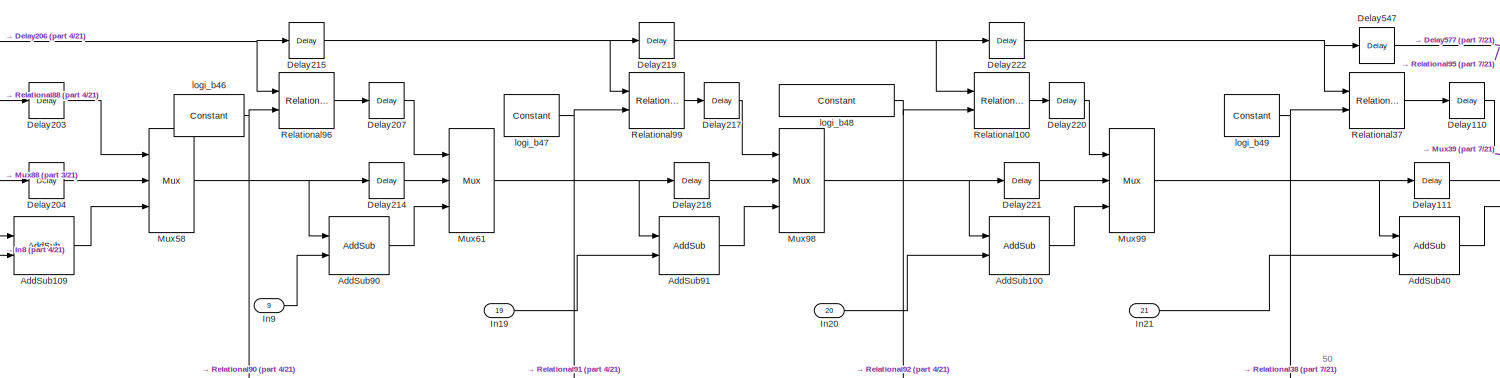
[diagram: Subsystem4/Subsystem3/Subsystem1 - part 1/21, top center region]
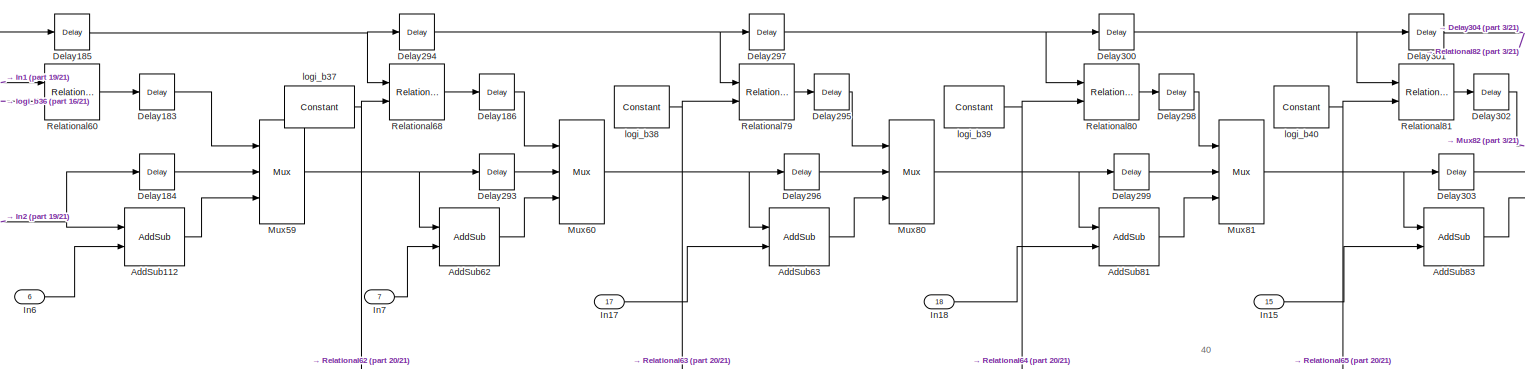
[diagram: Subsystem4/Subsystem3/Subsystem1 - part 2/21, top left region]
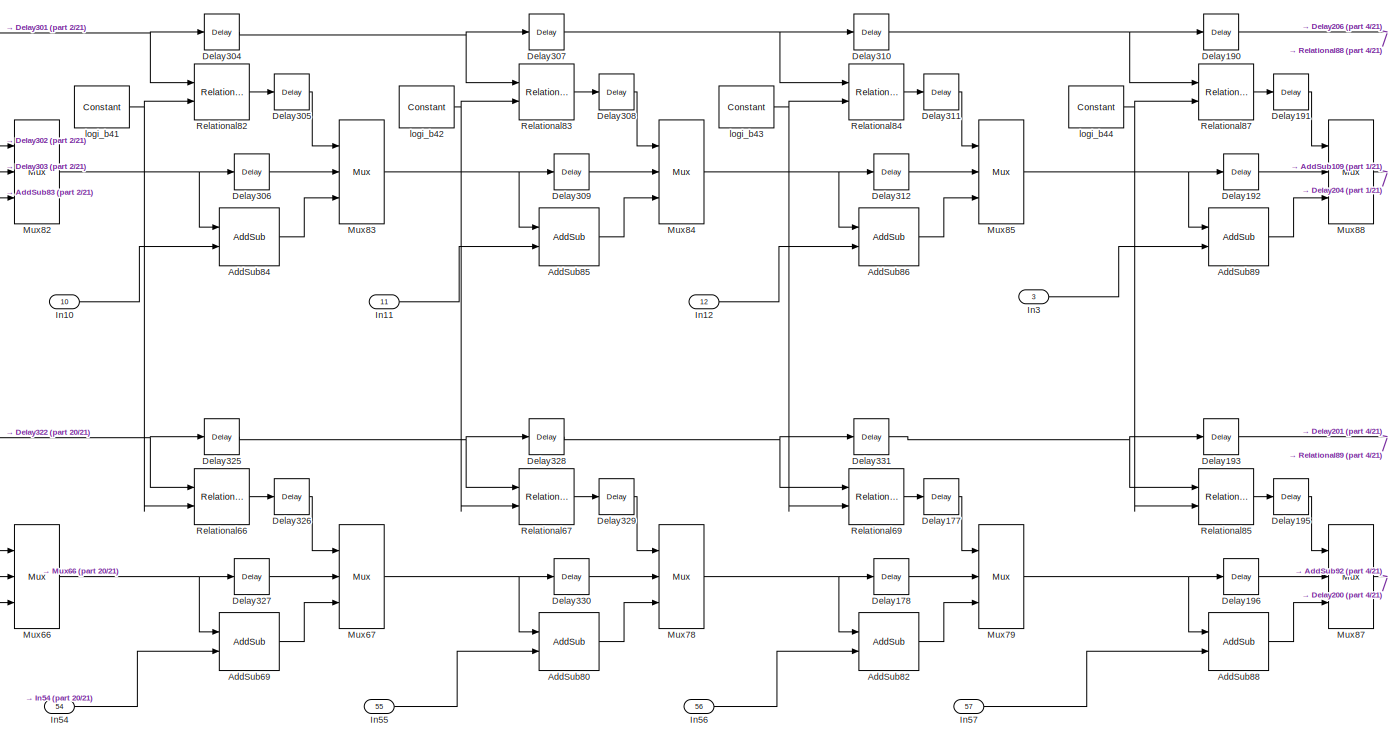
[diagram: Subsystem4/Subsystem3/Subsystem1 - part 3/21, center side, full height]
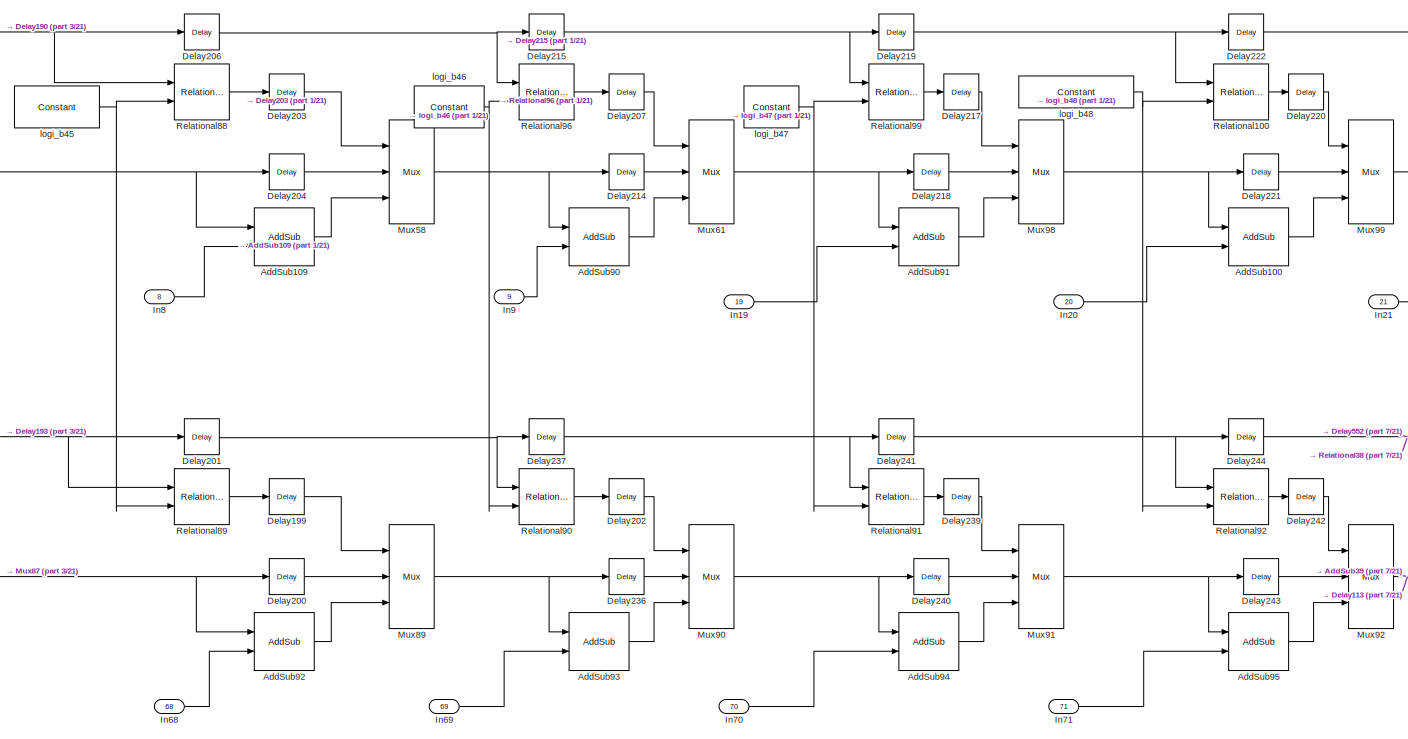
[diagram: Subsystem4/Subsystem3/Subsystem1 - part 4/21, center side, full height]
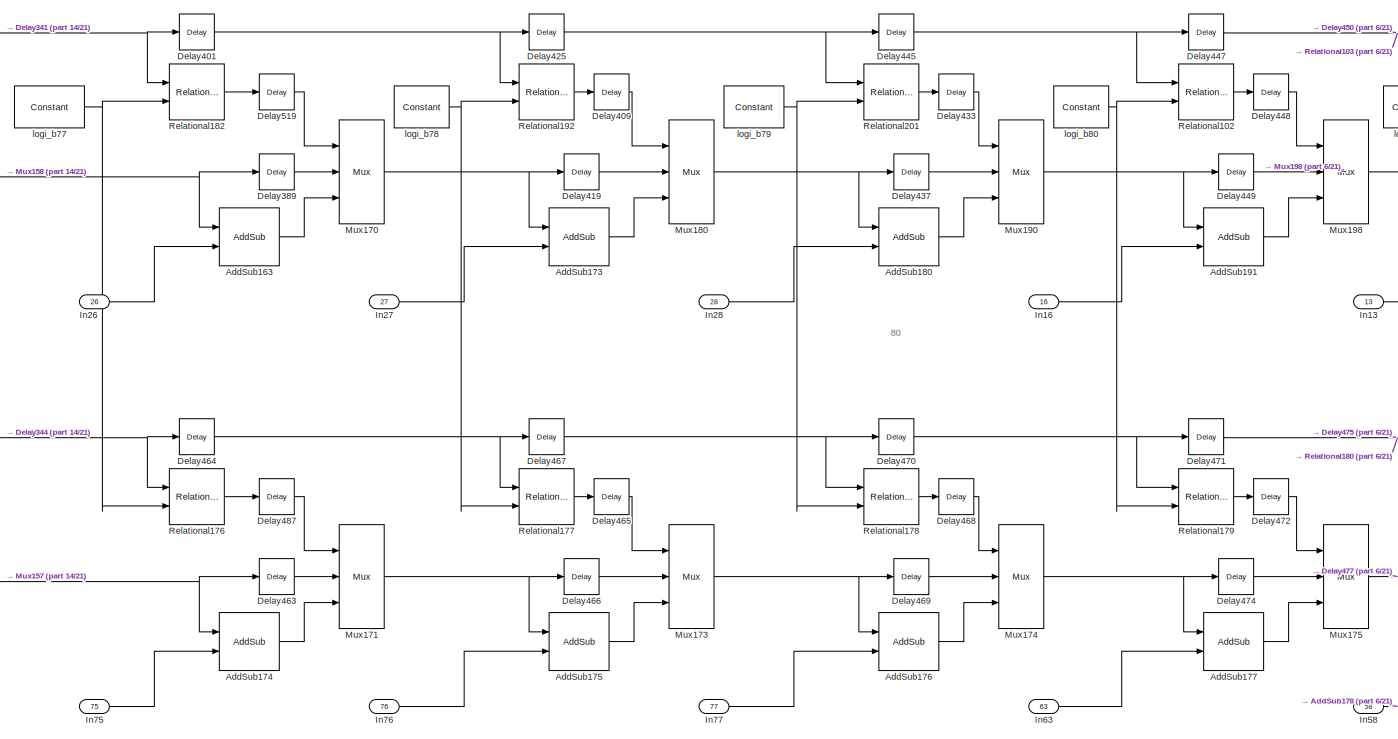
[diagram: Subsystem4/Subsystem3/Subsystem1 - part 5/21, right side, full height]
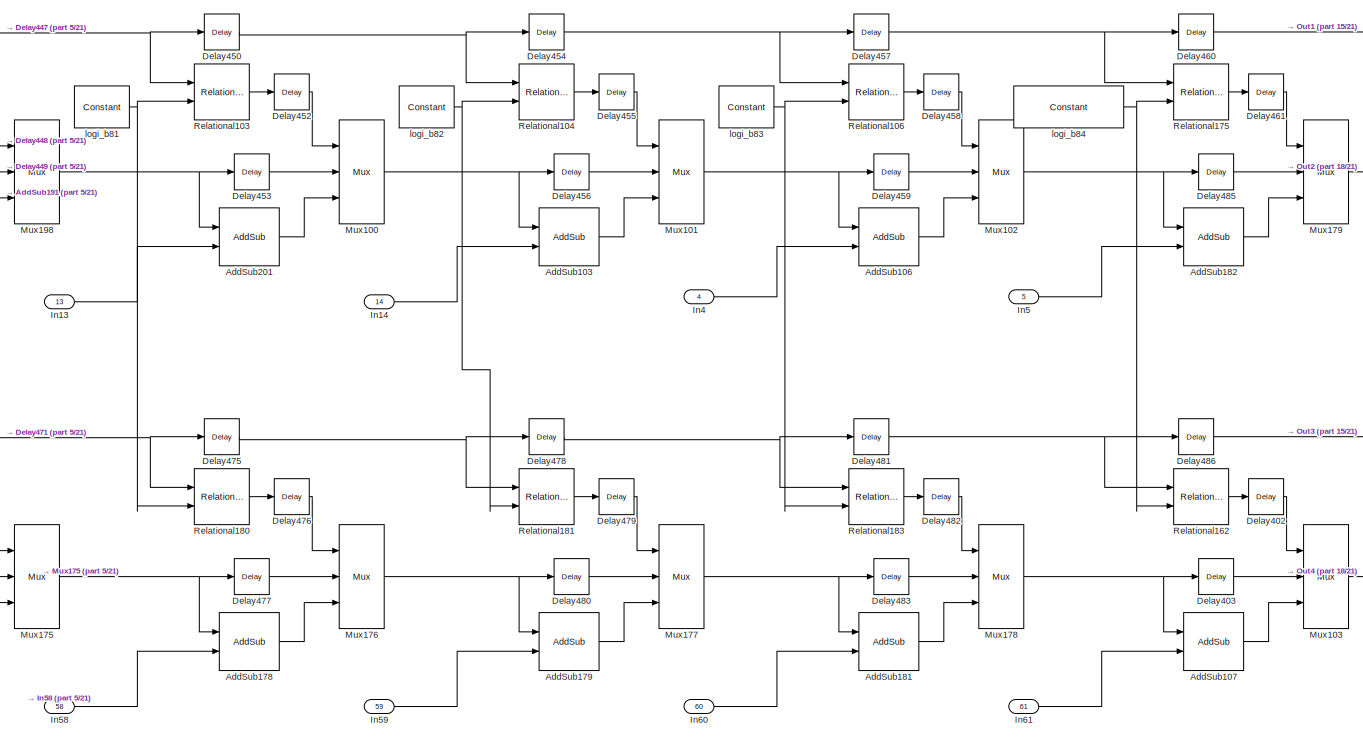
[diagram: Subsystem4/Subsystem3/Subsystem1 - part 6/21, right side, full height]
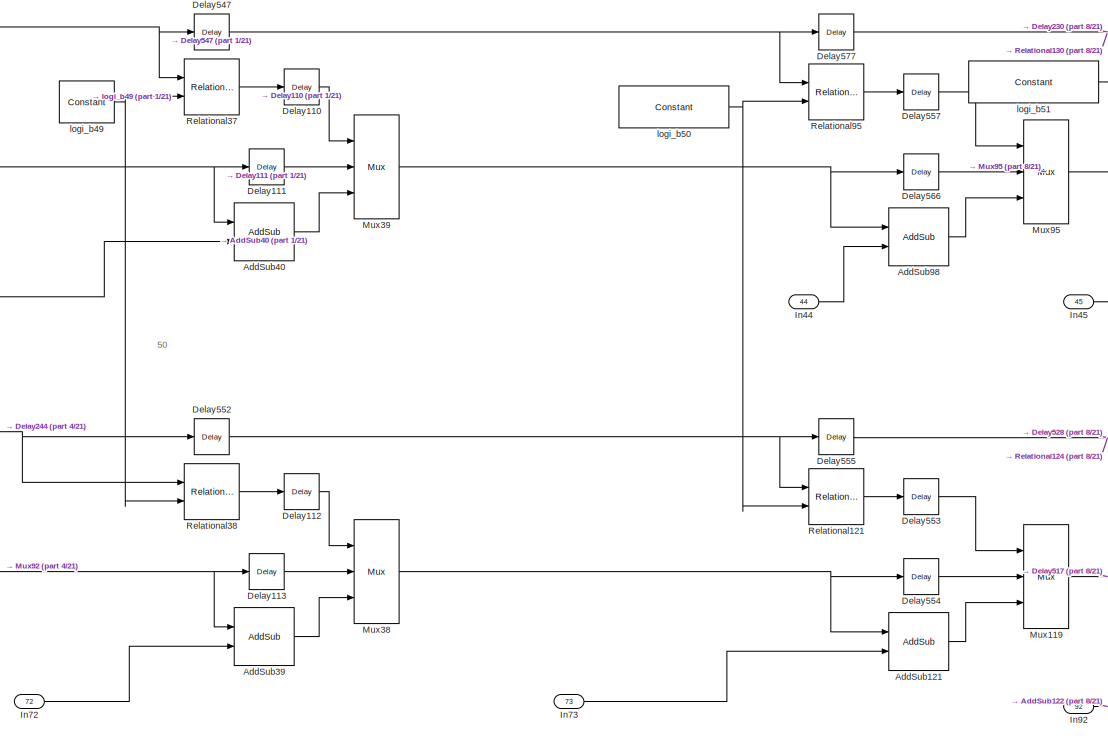
[diagram: Subsystem4/Subsystem3/Subsystem1 - part 7/21, center side, full height]
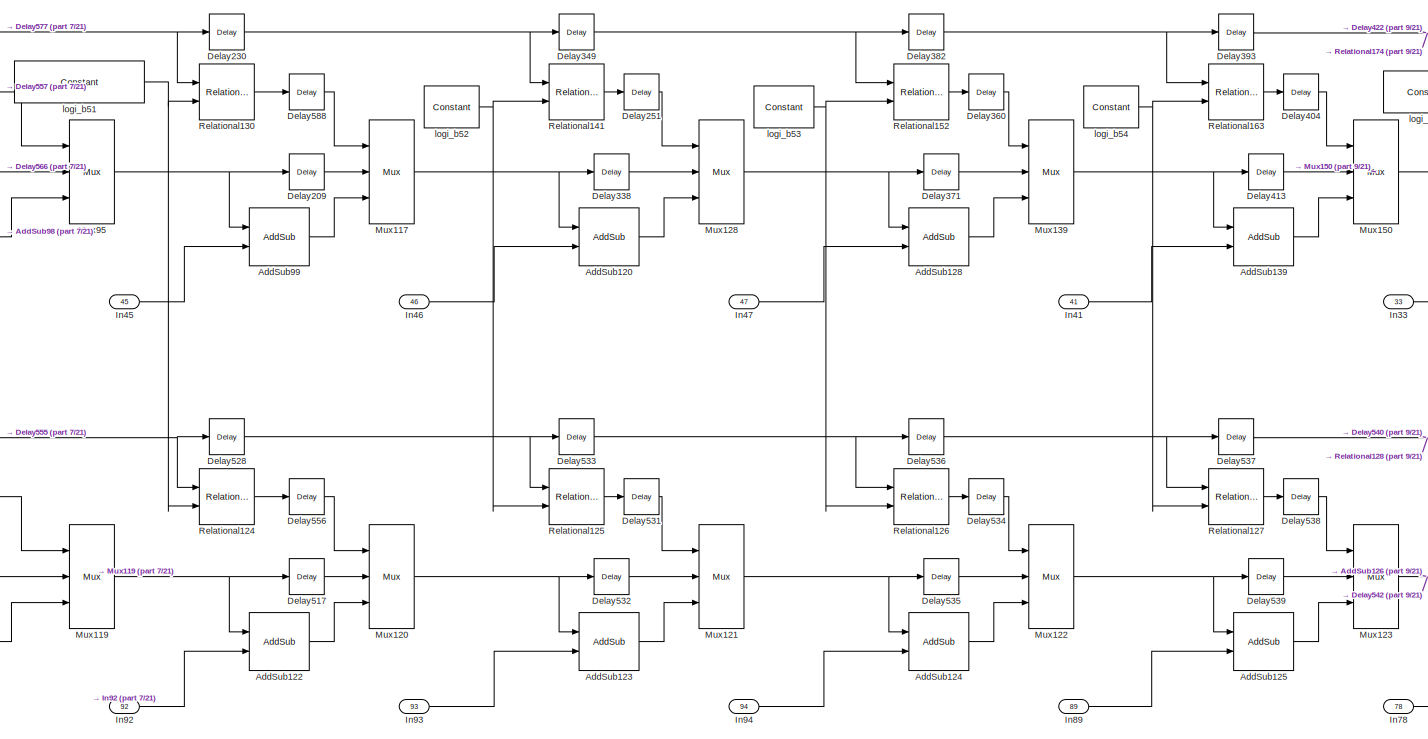
[diagram: Subsystem4/Subsystem3/Subsystem1 - part 8/21, center side, full height]
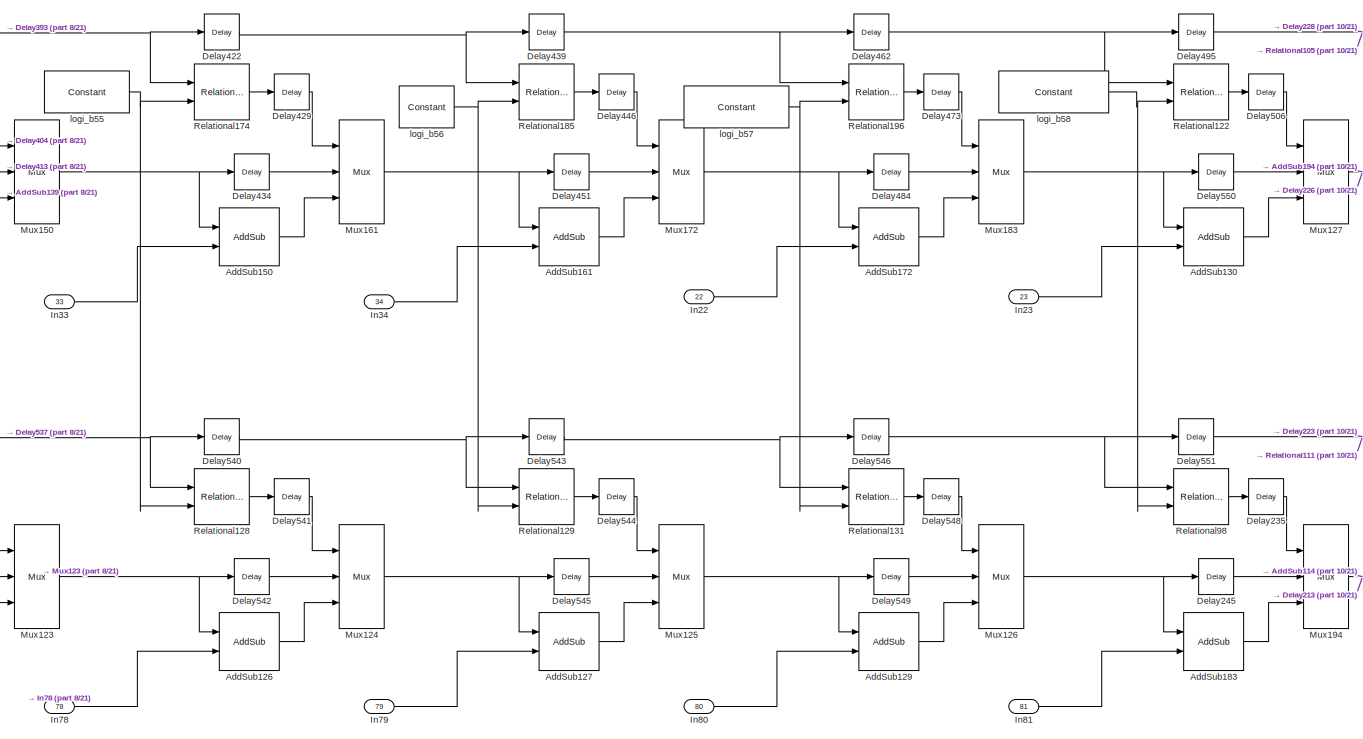
[diagram: Subsystem4/Subsystem3/Subsystem1 - part 9/21, center side, full height]
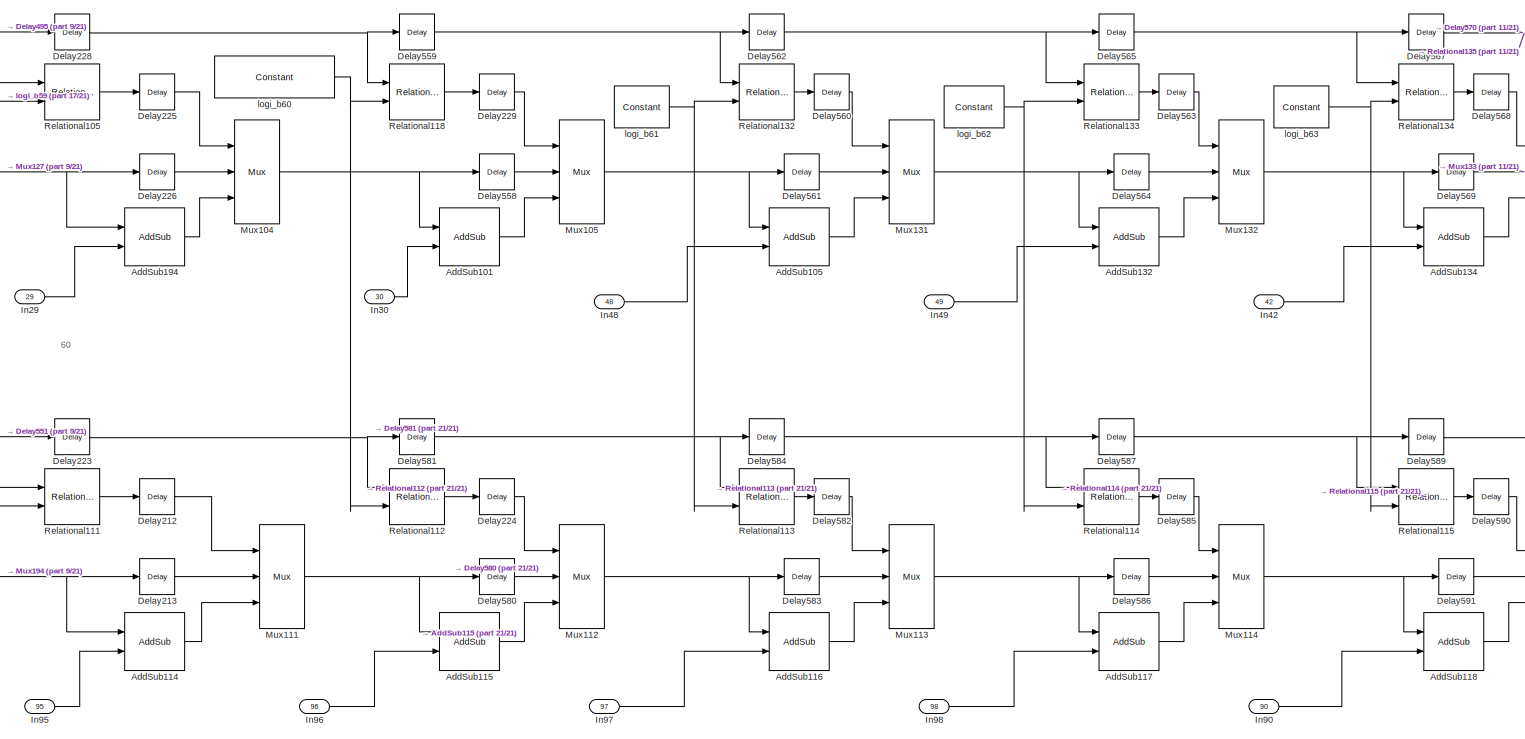
[diagram: Subsystem4/Subsystem3/Subsystem1 - part 10/21, center side, full height]
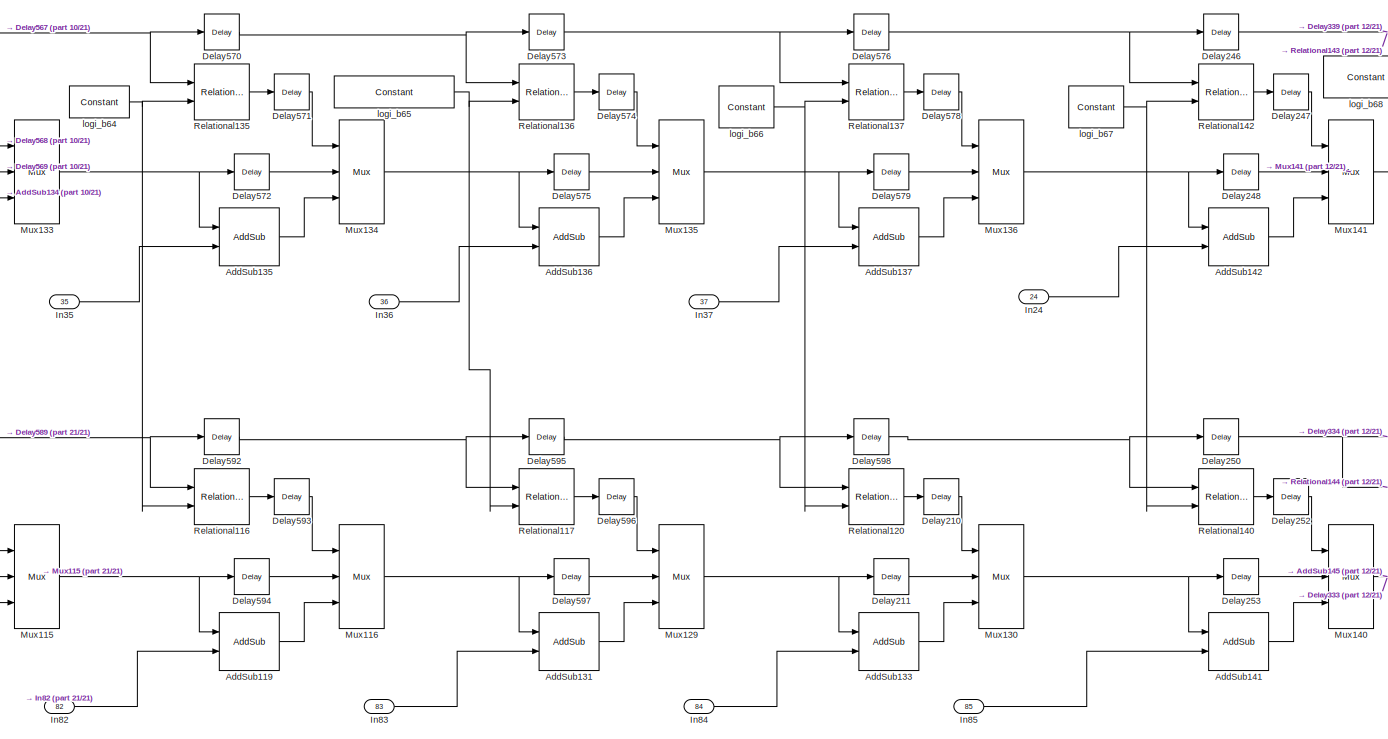
[diagram: Subsystem4/Subsystem3/Subsystem1 - part 11/21, right side, full height]
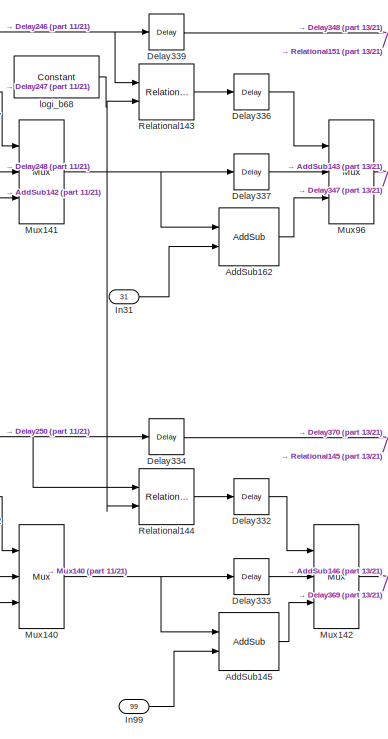
[diagram: Subsystem4/Subsystem3/Subsystem1 - part 12/21, right side, full height]
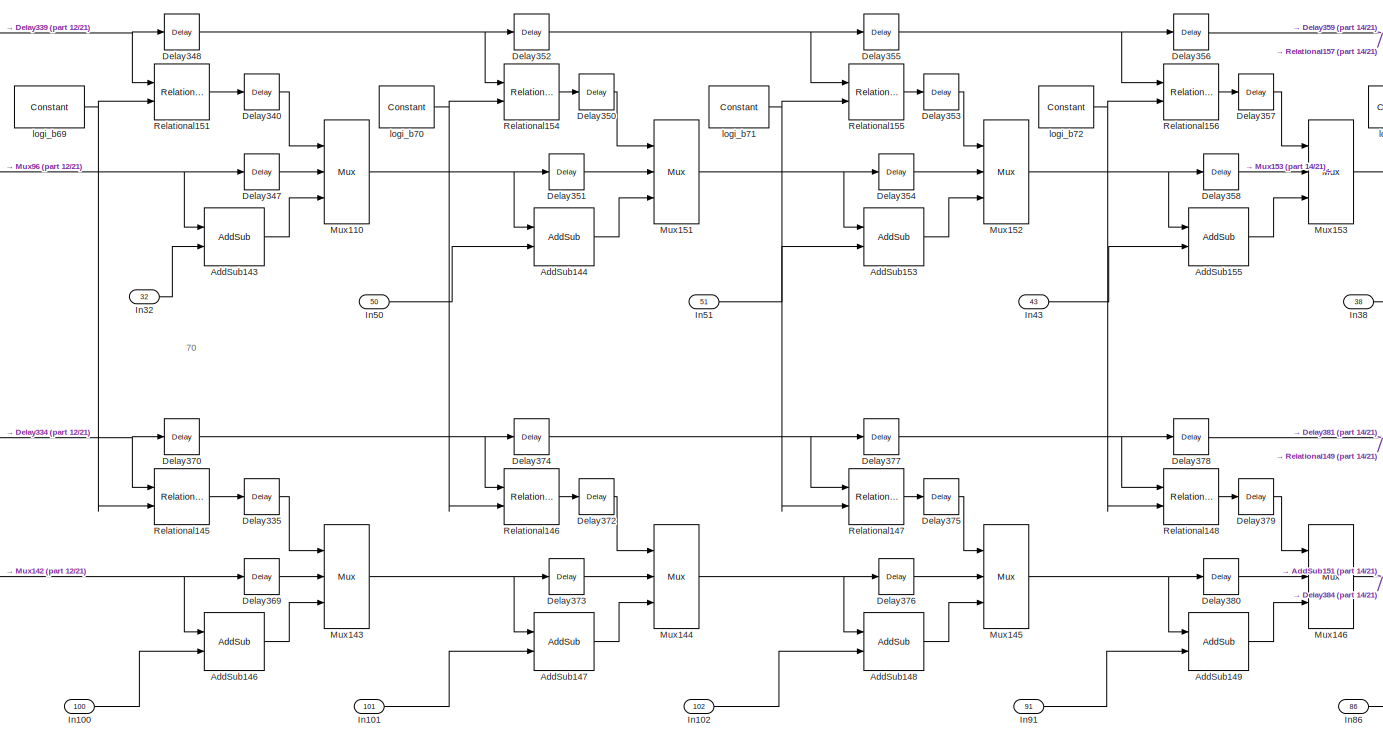
[diagram: Subsystem4/Subsystem3/Subsystem1 - part 13/21, right side, full height]
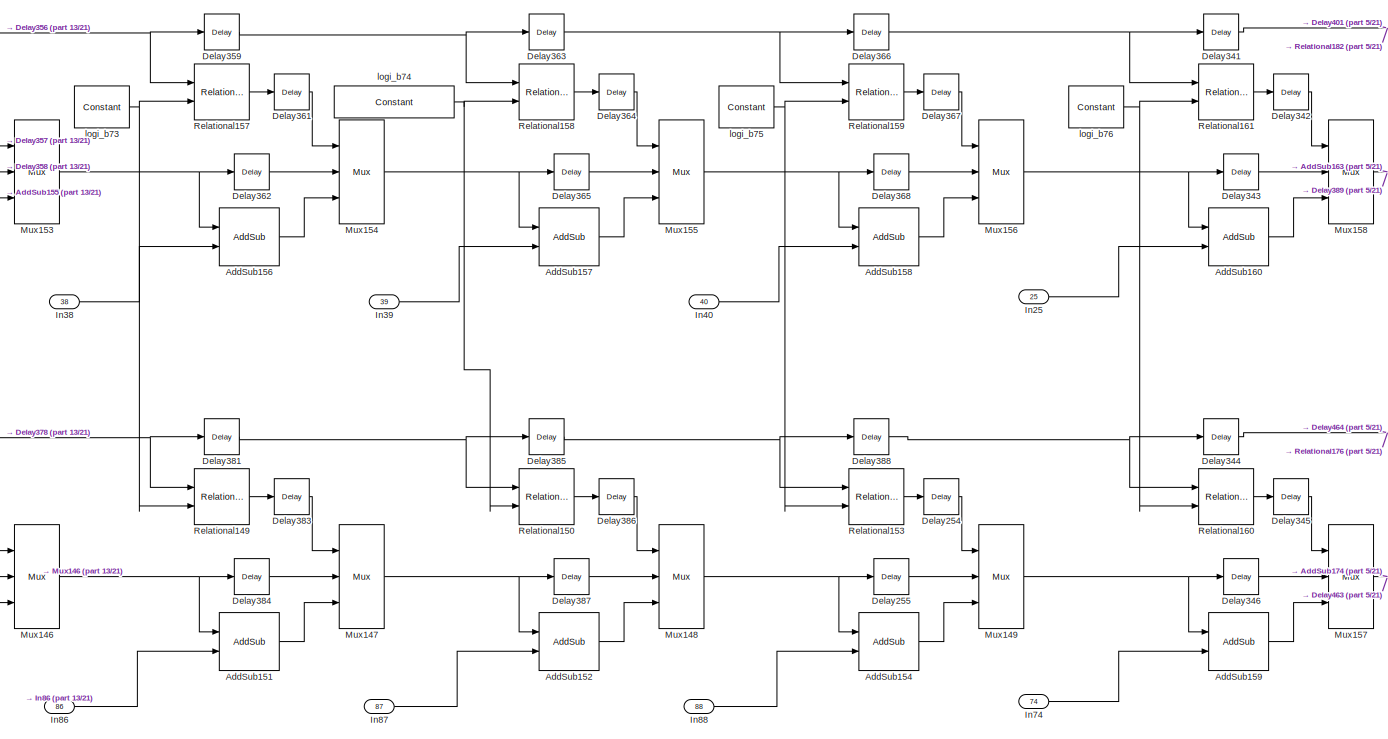
[diagram: Subsystem4/Subsystem3/Subsystem1 - part 14/21, right side, full height]
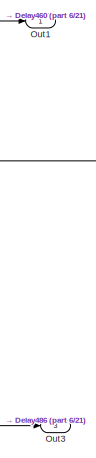
[diagram: Subsystem4/Subsystem3/Subsystem1 - part 15/21, middle right region]
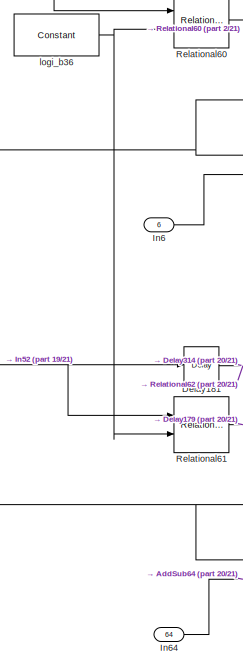
[diagram: Subsystem4/Subsystem3/Subsystem1 - part 16/21, left side, full height]
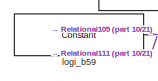
[diagram: Subsystem4/Subsystem3/Subsystem1 - part 17/21, top center region]
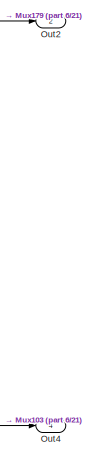
[diagram: Subsystem4/Subsystem3/Subsystem1 - part 18/21, middle right region]
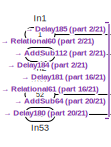
[diagram: Subsystem4/Subsystem3/Subsystem1 - part 19/21, middle left region]
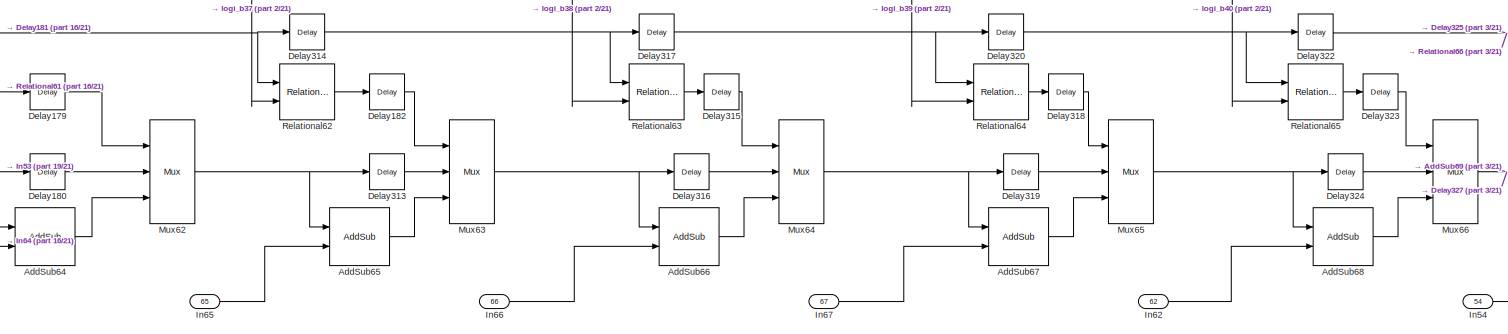
[diagram: Subsystem4/Subsystem3/Subsystem1 - part 20/21, bottom left region]
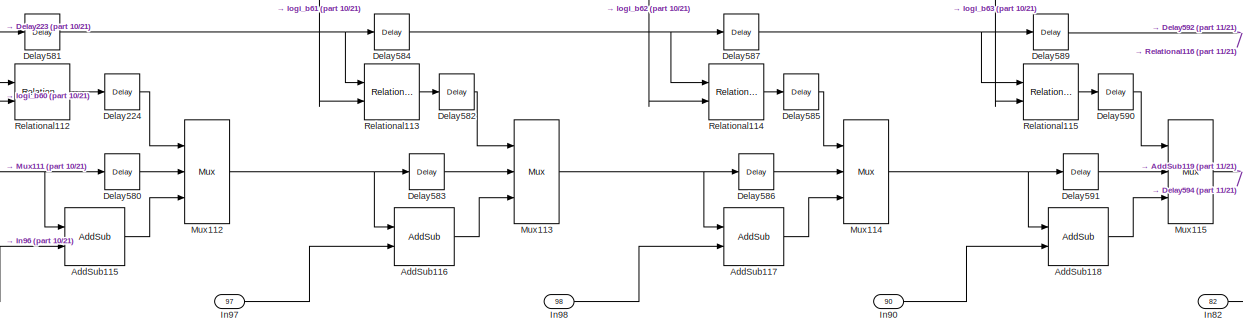
[diagram: Subsystem4/Subsystem3/Subsystem1 - part 21/21, bottom center region]
BLOCK [SubSystem] Subsystem4/Subsystem3/Subsystem1
  Ports = [102, 4]
  RequestExecContextInheritance = off
BLOCK [Reference] Subsystem4/Subsystem3/Subsystem1/AddSub100  REF=hdlBasic/AddSub
  Ports = [2, 1]
  SourceBlock = hdlBasic/AddSub
  SourceType = Adder/Subtracter Block
BLOCK [Reference] Subsystem4/Subsystem3/Subsystem1/AddSub101  REF=hdlBasic/AddSub
  Ports = [2, 1]
  SourceBlock = hdlBasic/AddSub
  SourceType = Adder/Subtracter Block
BLOCK [Reference] Subsystem4/Subsystem3/Subsystem1/AddSub103  REF=hdlBasic/AddSub
  Ports = [2, 1]
  SourceBlock = hdlBasic/AddSub
  SourceType = Adder/Subtracter Block
BLOCK [Reference] Subsystem4/Subsystem3/Subsystem1/AddSub105  REF=hdlBasic/AddSub
  Ports = [2, 1]
  SourceBlock = hdlBasic/AddSub
  SourceType = Adder/Subtracter Block
BLOCK [Reference] Subsystem4/Subsystem3/Subsystem1/AddSub106  REF=hdlBasic/AddSub
  Ports = [2, 1]
  SourceBlock = hdlBasic/AddSub
  SourceType = Adder/Subtracter Block
BLOCK [Reference] Subsystem4/Subsystem3/Subsystem1/AddSub107  REF=hdlBasic/AddSub
  Ports = [2, 1]
  SourceBlock = hdlBasic/AddSub
  SourceType = Adder/Subtracter Block
BLOCK [Reference] Subsystem4/Subsystem3/Subsystem1/AddSub109  REF=hdlBasic/AddSub
  Ports = [2, 1]
  SourceBlock = hdlBasic/AddSub
  SourceType = Adder/Subtracter Block
BLOCK [Reference] Subsystem4/Subsystem3/Subsystem1/AddSub112  REF=hdlBasic/AddSub
  Ports = [2, 1]
  SourceBlock = hdlBasic/AddSub
  SourceType = Adder/Subtracter Block
BLOCK [Reference] Subsystem4/Subsystem3/Subsystem1/AddSub114  REF=hdlBasic/AddSub
  Ports = [2, 1]
  SourceBlock = hdlBasic/AddSub
  SourceType = Adder/Subtracter Block
BLOCK [Reference] Subsystem4/Subsystem3/Subsystem1/AddSub115  REF=hdlBasic/AddSub
  Ports = [2, 1]
  SourceBlock = hdlBasic/AddSub
  SourceType = Adder/Subtracter Block
BLOCK [Reference] Subsystem4/Subsystem3/Subsystem1/AddSub116  REF=hdlBasic/AddSub
  Ports = [2, 1]
  SourceBlock = hdlBasic/AddSub
  SourceType = Adder/Subtracter Block
BLOCK [Reference] Subsystem4/Subsystem3/Subsystem1/AddSub117  REF=hdlBasic/AddSub
  Ports = [2, 1]
  SourceBlock = hdlBasic/AddSub
  SourceType = Adder/Subtracter Block
BLOCK [Reference] Subsystem4/Subsystem3/Subsystem1/AddSub118  REF=hdlBasic/AddSub
  Ports = [2, 1]
  SourceBlock = hdlBasic/AddSub
  SourceType = Adder/Subtracter Block
BLOCK [Reference] Subsystem4/Subsystem3/Subsystem1/AddSub119  REF=hdlBasic/AddSub
  Ports = [2, 1]
  SourceBlock = hdlBasic/AddSub
  SourceType = Adder/Subtracter Block
BLOCK [Reference] Subsystem4/Subsystem3/Subsystem1/AddSub120  REF=hdlBasic/AddSub
  Ports = [2, 1]
  SourceBlock = hdlBasic/AddSub
  SourceType = Adder/Subtracter Block
BLOCK [Reference] Subsystem4/Subsystem3/Subsystem1/AddSub121  REF=hdlBasic/AddSub
  Ports = [2, 1]
  SourceBlock = hdlBasic/AddSub
  SourceType = Adder/Subtracter Block
BLOCK [Reference] Subsystem4/Subsystem3/Subsystem1/AddSub122  REF=hdlBasic/AddSub
  Ports = [2, 1]
  SourceBlock = hdlBasic/AddSub
  SourceType = Adder/Subtracter Block
BLOCK [Reference] Subsystem4/Subsystem3/Subsystem1/AddSub123  REF=hdlBasic/AddSub
  Ports = [2, 1]
  SourceBlock = hdlBasic/AddSub
  SourceType = Adder/Subtracter Block
BLOCK [Reference] Subsystem4/Subsystem3/Subsystem1/AddSub124  REF=hdlBasic/AddSub
  Ports = [2, 1]
  SourceBlock = hdlBasic/AddSub
  SourceType = Adder/Subtracter Block
BLOCK [Reference] Subsystem4/Subsystem3/Subsystem1/AddSub125  REF=hdlBasic/AddSub
  Ports = [2, 1]
  SourceBlock = hdlBasic/AddSub
  SourceType = Adder/Subtracter Block
BLOCK [Reference] Subsystem4/Subsystem3/Subsystem1/AddSub126  REF=hdlBasic/AddSub
  Ports = [2, 1]
  SourceBlock = hdlBasic/AddSub
  SourceType = Adder/Subtracter Block
BLOCK [Reference] Subsystem4/Subsystem3/Subsystem1/AddSub127  REF=hdlBasic/AddSub
  Ports = [2, 1]
  SourceBlock = hdlBasic/AddSub
  SourceType = Adder/Subtracter Block
BLOCK [Reference] Subsystem4/Subsystem3/Subsystem1/AddSub128  REF=hdlBasic/AddSub
  Ports = [2, 1]
  SourceBlock = hdlBasic/AddSub
  SourceType = Adder/Subtracter Block
BLOCK [Reference] Subsystem4/Subsystem3/Subsystem1/AddSub129  REF=hdlBasic/AddSub
  Ports = [2, 1]
  SourceBlock = hdlBasic/AddSub
  SourceType = Adder/Subtracter Block
BLOCK [Reference] Subsystem4/Subsystem3/Subsystem1/AddSub130  REF=hdlBasic/AddSub
  Ports = [2, 1]
  SourceBlock = hdlBasic/AddSub
  SourceType = Adder/Subtracter Block
BLOCK [Reference] Subsystem4/Subsystem3/Subsystem1/AddSub131  REF=hdlBasic/AddSub
  Ports = [2, 1]
  SourceBlock = hdlBasic/AddSub
  SourceType = Adder/Subtracter Block
BLOCK [Reference] Subsystem4/Subsystem3/Subsystem1/AddSub132  REF=hdlBasic/AddSub
  Ports = [2, 1]
  SourceBlock = hdlBasic/AddSub
  SourceType = Adder/Subtracter Block
BLOCK [Reference] Subsystem4/Subsystem3/Subsystem1/AddSub133  REF=hdlBasic/AddSub
  Ports = [2, 1]
  SourceBlock = hdlBasic/AddSub
  SourceType = Adder/Subtracter Block
BLOCK [Reference] Subsystem4/Subsystem3/Subsystem1/AddSub134  REF=hdlBasic/AddSub
  Ports = [2, 1]
  SourceBlock = hdlBasic/AddSub
  SourceType = Adder/Subtracter Block
BLOCK [Reference] Subsystem4/Subsystem3/Subsystem1/AddSub135  REF=hdlBasic/AddSub
  Ports = [2, 1]
  SourceBlock = hdlBasic/AddSub
  SourceType = Adder/Subtracter Block
BLOCK [Reference] Subsystem4/Subsystem3/Subsystem1/AddSub136  REF=hdlBasic/AddSub
  Ports = [2, 1]
  SourceBlock = hdlBasic/AddSub
  SourceType = Adder/Subtracter Block
BLOCK [Reference] Subsystem4/Subsystem3/Subsystem1/AddSub137  REF=hdlBasic/AddSub
  Ports = [2, 1]
  SourceBlock = hdlBasic/AddSub
  SourceType = Adder/Subtracter Block
BLOCK [Reference] Subsystem4/Subsystem3/Subsystem1/AddSub139  REF=hdlBasic/AddSub
  Ports = [2, 1]
  SourceBlock = hdlBasic/AddSub
  SourceType = Adder/Subtracter Block
BLOCK [Reference] Subsystem4/Subsystem3/Subsystem1/AddSub141  REF=hdlBasic/AddSub
  Ports = [2, 1]
  SourceBlock = hdlBasic/AddSub
  SourceType = Adder/Subtracter Block
BLOCK [Reference] Subsystem4/Subsystem3/Subsystem1/AddSub142  REF=hdlBasic/AddSub
  Ports = [2, 1]
  SourceBlock = hdlBasic/AddSub
  SourceType = Adder/Subtracter Block
BLOCK [Reference] Subsystem4/Subsystem3/Subsystem1/AddSub143  REF=hdlBasic/AddSub
  Ports = [2, 1]
  SourceBlock = hdlBasic/AddSub
  SourceType = Adder/Subtracter Block
BLOCK [Reference] Subsystem4/Subsystem3/Subsystem1/AddSub144  REF=hdlBasic/AddSub
  Ports = [2, 1]
  SourceBlock = hdlBasic/AddSub
  SourceType = Adder/Subtracter Block
BLOCK [Reference] Subsystem4/Subsystem3/Subsystem1/AddSub145  REF=hdlBasic/AddSub
  Ports = [2, 1]
  SourceBlock = hdlBasic/AddSub
  SourceType = Adder/Subtracter Block
BLOCK [Reference] Subsystem4/Subsystem3/Subsystem1/AddSub146  REF=hdlBasic/AddSub
  Ports = [2, 1]
  SourceBlock = hdlBasic/AddSub
  SourceType = Adder/Subtracter Block
BLOCK [Reference] Subsystem4/Subsystem3/Subsystem1/AddSub147  REF=hdlBasic/AddSub
  Ports = [2, 1]
  SourceBlock = hdlBasic/AddSub
  SourceType = Adder/Subtracter Block
BLOCK [Reference] Subsystem4/Subsystem3/Subsystem1/AddSub148  REF=hdlBasic/AddSub
  Ports = [2, 1]
  SourceBlock = hdlBasic/AddSub
  SourceType = Adder/Subtracter Block
BLOCK [Reference] Subsystem4/Subsystem3/Subsystem1/AddSub149  REF=hdlBasic/AddSub
  Ports = [2, 1]
  SourceBlock = hdlBasic/AddSub
  SourceType = Adder/Subtracter Block
BLOCK [Reference] Subsystem4/Subsystem3/Subsystem1/AddSub150  REF=hdlBasic/AddSub
  Ports = [2, 1]
  SourceBlock = hdlBasic/AddSub
  SourceType = Adder/Subtracter Block
BLOCK [Reference] Subsystem4/Subsystem3/Subsystem1/AddSub151  REF=hdlBasic/AddSub
  Ports = [2, 1]
  SourceBlock = hdlBasic/AddSub
  SourceType = Adder/Subtracter Block
BLOCK [Reference] Subsystem4/Subsystem3/Subsystem1/AddSub152  REF=hdlBasic/AddSub
  Ports = [2, 1]
  SourceBlock = hdlBasic/AddSub
  SourceType = Adder/Subtracter Block
BLOCK [Reference] Subsystem4/Subsystem3/Subsystem1/AddSub153  REF=hdlBasic/AddSub
  Ports = [2, 1]
  SourceBlock = hdlBasic/AddSub
  SourceType = Adder/Subtracter Block
BLOCK [Reference] Subsystem4/Subsystem3/Subsystem1/AddSub154  REF=hdlBasic/AddSub
  Ports = [2, 1]
  SourceBlock = hdlBasic/AddSub
  SourceType = Adder/Subtracter Block
BLOCK [Reference] Subsystem4/Subsystem3/Subsystem1/AddSub155  REF=hdlBasic/AddSub
  Ports = [2, 1]
  SourceBlock = hdlBasic/AddSub
  SourceType = Adder/Subtracter Block
BLOCK [Reference] Subsystem4/Subsystem3/Subsystem1/AddSub156  REF=hdlBasic/AddSub
  Ports = [2, 1]
  SourceBlock = hdlBasic/AddSub
  SourceType = Adder/Subtracter Block
BLOCK [Reference] Subsystem4/Subsystem3/Subsystem1/AddSub157  REF=hdlBasic/AddSub
  Ports = [2, 1]
  SourceBlock = hdlBasic/AddSub
  SourceType = Adder/Subtracter Block
BLOCK [Reference] Subsystem4/Subsystem3/Subsystem1/AddSub158  REF=hdlBasic/AddSub
  Ports = [2, 1]
  SourceBlock = hdlBasic/AddSub
  SourceType = Adder/Subtracter Block
BLOCK [Reference] Subsystem4/Subsystem3/Subsystem1/AddSub159  REF=hdlBasic/AddSub
  Ports = [2, 1]
  SourceBlock = hdlBasic/AddSub
  SourceType = Adder/Subtracter Block
BLOCK [Reference] Subsystem4/Subsystem3/Subsystem1/AddSub160  REF=hdlBasic/AddSub
  Ports = [2, 1]
  SourceBlock = hdlBasic/AddSub
  SourceType = Adder/Subtracter Block
BLOCK [Reference] Subsystem4/Subsystem3/Subsystem1/AddSub161  REF=hdlBasic/AddSub
  Ports = [2, 1]
  SourceBlock = hdlBasic/AddSub
  SourceType = Adder/Subtracter Block
BLOCK [Reference] Subsystem4/Subsystem3/Subsystem1/AddSub162  REF=hdlBasic/AddSub
  Ports = [2, 1]
  SourceBlock = hdlBasic/AddSub
  SourceType = Adder/Subtracter Block
BLOCK [Reference] Subsystem4/Subsystem3/Subsystem1/AddSub163  REF=hdlBasic/AddSub
  Ports = [2, 1]
  SourceBlock = hdlBasic/AddSub
  SourceType = Adder/Subtracter Block
BLOCK [Reference] Subsystem4/Subsystem3/Subsystem1/AddSub172  REF=hdlBasic/AddSub
  Ports = [2, 1]
  SourceBlock = hdlBasic/AddSub
  SourceType = Adder/Subtracter Block
BLOCK [Reference] Subsystem4/Subsystem3/Subsystem1/AddSub173  REF=hdlBasic/AddSub
  Ports = [2, 1]
  SourceBlock = hdlBasic/AddSub
  SourceType = Adder/Subtracter Block
BLOCK [Reference] Subsystem4/Subsystem3/Subsystem1/AddSub174  REF=hdlBasic/AddSub
  Ports = [2, 1]
  SourceBlock = hdlBasic/AddSub
  SourceType = Adder/Subtracter Block
BLOCK [Reference] Subsystem4/Subsystem3/Subsystem1/AddSub175  REF=hdlBasic/AddSub
  Ports = [2, 1]
  SourceBlock = hdlBasic/AddSub
  SourceType = Adder/Subtracter Block
BLOCK [Reference] Subsystem4/Subsystem3/Subsystem1/AddSub176  REF=hdlBasic/AddSub
  Ports = [2, 1]
  SourceBlock = hdlBasic/AddSub
  SourceType = Adder/Subtracter Block
BLOCK [Reference] Subsystem4/Subsystem3/Subsystem1/AddSub177  REF=hdlBasic/AddSub
  Ports = [2, 1]
  SourceBlock = hdlBasic/AddSub
  SourceType = Adder/Subtracter Block
BLOCK [Reference] Subsystem4/Subsystem3/Subsystem1/AddSub178  REF=hdlBasic/AddSub
  Ports = [2, 1]
  SourceBlock = hdlBasic/AddSub
  SourceType = Adder/Subtracter Block
BLOCK [Reference] Subsystem4/Subsystem3/Subsystem1/AddSub179  REF=hdlBasic/AddSub
  Ports = [2, 1]
  SourceBlock = hdlBasic/AddSub
  SourceType = Adder/Subtracter Block
BLOCK [Reference] Subsystem4/Subsystem3/Subsystem1/AddSub180  REF=hdlBasic/AddSub
  Ports = [2, 1]
  SourceBlock = hdlBasic/AddSub
  SourceType = Adder/Subtracter Block
BLOCK [Reference] Subsystem4/Subsystem3/Subsystem1/AddSub181  REF=hdlBasic/AddSub
  Ports = [2, 1]
  SourceBlock = hdlBasic/AddSub
  SourceType = Adder/Subtracter Block
BLOCK [Reference] Subsystem4/Subsystem3/Subsystem1/AddSub182  REF=hdlBasic/AddSub
  Ports = [2, 1]
  SourceBlock = hdlBasic/AddSub
  SourceType = Adder/Subtracter Block
BLOCK [Reference] Subsystem4/Subsystem3/Subsystem1/AddSub183  REF=hdlBasic/AddSub
  Ports = [2, 1]
  SourceBlock = hdlBasic/AddSub
  SourceType = Adder/Subtracter Block
BLOCK [Reference] Subsystem4/Subsystem3/Subsystem1/AddSub191  REF=hdlBasic/AddSub
  Ports = [2, 1]
  SourceBlock = hdlBasic/AddSub
  SourceType = Adder/Subtracter Block
BLOCK [Reference] Subsystem4/Subsystem3/Subsystem1/AddSub194  REF=hdlBasic/AddSub
  Ports = [2, 1]
  SourceBlock = hdlBasic/AddSub
  SourceType = Adder/Subtracter Block
BLOCK [Reference] Subsystem4/Subsystem3/Subsystem1/AddSub201  REF=hdlBasic/AddSub
  Ports = [2, 1]
  SourceBlock = hdlBasic/AddSub
  SourceType = Adder/Subtracter Block
BLOCK [Reference] Subsystem4/Subsystem3/Subsystem1/AddSub39  REF=hdlBasic/AddSub
  Ports = [2, 1]
  SourceBlock = hdlBasic/AddSub
  SourceType = Adder/Subtracter Block
BLOCK [Reference] Subsystem4/Subsystem3/Subsystem1/AddSub40  REF=hdlBasic/AddSub
  Ports = [2, 1]
  SourceBlock = hdlBasic/AddSub
  SourceType = Adder/Subtracter Block
BLOCK [Reference] Subsystem4/Subsystem3/Subsystem1/AddSub62  REF=hdlBasic/AddSub
  Ports = [2, 1]
  SourceBlock = hdlBasic/AddSub
  SourceType = Adder/Subtracter Block
BLOCK [Reference] Subsystem4/Subsystem3/Subsystem1/AddSub63  REF=hdlBasic/AddSub
  Ports = [2, 1]
  SourceBlock = hdlBasic/AddSub
  SourceType = Adder/Subtracter Block
BLOCK [Reference] Subsystem4/Subsystem3/Subsystem1/AddSub64  REF=hdlBasic/AddSub
  Ports = [2, 1]
  SourceBlock = hdlBasic/AddSub
  SourceType = Adder/Subtracter Block
BLOCK [Reference] Subsystem4/Subsystem3/Subsystem1/AddSub65  REF=hdlBasic/AddSub
  Ports = [2, 1]
  SourceBlock = hdlBasic/AddSub
  SourceType = Adder/Subtracter Block
BLOCK [Reference] Subsystem4/Subsystem3/Subsystem1/AddSub66  REF=hdlBasic/AddSub
  Ports = [2, 1]
  SourceBlock = hdlBasic/AddSub
  SourceType = Adder/Subtracter Block
BLOCK [Reference] Subsystem4/Subsystem3/Subsystem1/AddSub67  REF=hdlBasic/AddSub
  Ports = [2, 1]
  SourceBlock = hdlBasic/AddSub
  SourceType = Adder/Subtracter Block
BLOCK [Reference] Subsystem4/Subsystem3/Subsystem1/AddSub68  REF=hdlBasic/AddSub
  Ports = [2, 1]
  SourceBlock = hdlBasic/AddSub
  SourceType = Adder/Subtracter Block
BLOCK [Reference] Subsystem4/Subsystem3/Subsystem1/AddSub69  REF=hdlBasic/AddSub
  Ports = [2, 1]
  SourceBlock = hdlBasic/AddSub
  SourceType = Adder/Subtracter Block
BLOCK [Reference] Subsystem4/Subsystem3/Subsystem1/AddSub80  REF=hdlBasic/AddSub
  Ports = [2, 1]
  SourceBlock = hdlBasic/AddSub
  SourceType = Adder/Subtracter Block
BLOCK [Reference] Subsystem4/Subsystem3/Subsystem1/AddSub81  REF=hdlBasic/AddSub
  Ports = [2, 1]
  SourceBlock = hdlBasic/AddSub
  SourceType = Adder/Subtracter Block
BLOCK [Reference] Subsystem4/Subsystem3/Subsystem1/AddSub82  REF=hdlBasic/AddSub
  Ports = [2, 1]
  SourceBlock = hdlBasic/AddSub
  SourceType = Adder/Subtracter Block
BLOCK [Reference] Subsystem4/Subsystem3/Subsystem1/AddSub83  REF=hdlBasic/AddSub
  Ports = [2, 1]
  SourceBlock = hdlBasic/AddSub
  SourceType = Adder/Subtracter Block
BLOCK [Reference] Subsystem4/Subsystem3/Subsystem1/AddSub84  REF=hdlBasic/AddSub
  Ports = [2, 1]
  SourceBlock = hdlBasic/AddSub
  SourceType = Adder/Subtracter Block
BLOCK [Reference] Subsystem4/Subsystem3/Subsystem1/AddSub85  REF=hdlBasic/AddSub
  Ports = [2, 1]
  SourceBlock = hdlBasic/AddSub
  SourceType = Adder/Subtracter Block
BLOCK [Reference] Subsystem4/Subsystem3/Subsystem1/AddSub86  REF=hdlBasic/AddSub
  Ports = [2, 1]
  SourceBlock = hdlBasic/AddSub
  SourceType = Adder/Subtracter Block
BLOCK [Reference] Subsystem4/Subsystem3/Subsystem1/AddSub88  REF=hdlBasic/AddSub
  Ports = [2, 1]
  SourceBlock = hdlBasic/AddSub
  SourceType = Adder/Subtracter Block
BLOCK [Reference] Subsystem4/Subsystem3/Subsystem1/AddSub89  REF=hdlBasic/AddSub
  Ports = [2, 1]
  SourceBlock = hdlBasic/AddSub
  SourceType = Adder/Subtracter Block
BLOCK [Reference] Subsystem4/Subsystem3/Subsystem1/AddSub90  REF=hdlBasic/AddSub
  Ports = [2, 1]
  SourceBlock = hdlBasic/AddSub
  SourceType = Adder/Subtracter Block
BLOCK [Reference] Subsystem4/Subsystem3/Subsystem1/AddSub91  REF=hdlBasic/AddSub
  Ports = [2, 1]
  SourceBlock = hdlBasic/AddSub
  SourceType = Adder/Subtracter Block
BLOCK [Reference] Subsystem4/Subsystem3/Subsystem1/AddSub92  REF=hdlBasic/AddSub
  Ports = [2, 1]
  SourceBlock = hdlBasic/AddSub
  SourceType = Adder/Subtracter Block
BLOCK [Reference] Subsystem4/Subsystem3/Subsystem1/AddSub93  REF=hdlBasic/AddSub
  Ports = [2, 1]
  SourceBlock = hdlBasic/AddSub
  SourceType = Adder/Subtracter Block
BLOCK [Reference] Subsystem4/Subsystem3/Subsystem1/AddSub94  REF=hdlBasic/AddSub
  Ports = [2, 1]
  SourceBlock = hdlBasic/AddSub
  SourceType = Adder/Subtracter Block
BLOCK [Reference] Subsystem4/Subsystem3/Subsystem1/AddSub95  REF=hdlBasic/AddSub
  Ports = [2, 1]
  SourceBlock = hdlBasic/AddSub
  SourceType = Adder/Subtracter Block
BLOCK [Reference] Subsystem4/Subsystem3/Subsystem1/AddSub98  REF=hdlBasic/AddSub
  Ports = [2, 1]
  SourceBlock = hdlBasic/AddSub
  SourceType = Adder/Subtracter Block
BLOCK [Reference] Subsystem4/Subsystem3/Subsystem1/AddSub99  REF=hdlBasic/AddSub
  Ports = [2, 1]
  SourceBlock = hdlBasic/AddSub
  SourceType = Adder/Subtracter Block
BLOCK [Reference] Subsystem4/Subsystem3/Subsystem1/Delay110  REF=hdlBasic/Delay
  Ports = [1, 1]
  SourceBlock = hdlBasic/Delay
  SourceType = Delay Block
BLOCK [Reference] Subsystem4/Subsystem3/Subsystem1/Delay111  REF=hdlBasic/Delay
  Ports = [1, 1]
  SourceBlock = hdlBasic/Delay
  SourceType = Delay Block
BLOCK [Reference] Subsystem4/Subsystem3/Subsystem1/Delay112  REF=hdlBasic/Delay
  Ports = [1, 1]
  SourceBlock = hdlBasic/Delay
  SourceType = Delay Block
BLOCK [Reference] Subsystem4/Subsystem3/Subsystem1/Delay113  REF=hdlBasic/Delay
  Ports = [1, 1]
  SourceBlock = hdlBasic/Delay
  SourceType = Delay Block
BLOCK [Reference] Subsystem4/Subsystem3/Subsystem1/Delay177  REF=hdlBasic/Delay
  Ports = [1, 1]
  SourceBlock = hdlBasic/Delay
  SourceType = Delay Block
BLOCK [Reference] Subsystem4/Subsystem3/Subsystem1/Delay178  REF=hdlBasic/Delay
  Ports = [1, 1]
  SourceBlock = hdlBasic/Delay
  SourceType = Delay Block
BLOCK [Reference] Subsystem4/Subsystem3/Subsystem1/Delay179  REF=hdlBasic/Delay
  Ports = [1, 1]
  SourceBlock = hdlBasic/Delay
  SourceType = Delay Block
BLOCK [Reference] Subsystem4/Subsystem3/Subsystem1/Delay180  REF=hdlBasic/Delay
  Ports = [1, 1]
  SourceBlock = hdlBasic/Delay
  SourceType = Delay Block
BLOCK [Reference] Subsystem4/Subsystem3/Subsystem1/Delay181  REF=hdlBasic/Delay
  Ports = [1, 1]
  SourceBlock = hdlBasic/Delay
  SourceType = Delay Block
BLOCK [Reference] Subsystem4/Subsystem3/Subsystem1/Delay182  REF=hdlBasic/Delay
  Ports = [1, 1]
  SourceBlock = hdlBasic/Delay
  SourceType = Delay Block
BLOCK [Reference] Subsystem4/Subsystem3/Subsystem1/Delay183  REF=hdlBasic/Delay
  Ports = [1, 1]
  SourceBlock = hdlBasic/Delay
  SourceType = Delay Block
BLOCK [Reference] Subsystem4/Subsystem3/Subsystem1/Delay184  REF=hdlBasic/Delay
  Ports = [1, 1]
  SourceBlock = hdlBasic/Delay
  SourceType = Delay Block
BLOCK [Reference] Subsystem4/Subsystem3/Subsystem1/Delay185  REF=hdlBasic/Delay
  Ports = [1, 1]
  SourceBlock = hdlBasic/Delay
  SourceType = Delay Block
BLOCK [Reference] Subsystem4/Subsystem3/Subsystem1/Delay186  REF=hdlBasic/Delay
  Ports = [1, 1]
  SourceBlock = hdlBasic/Delay
  SourceType = Delay Block
BLOCK [Reference] Subsystem4/Subsystem3/Subsystem1/Delay190  REF=hdlBasic/Delay
  Ports = [1, 1]
  SourceBlock = hdlBasic/Delay
  SourceType = Delay Block
BLOCK [Reference] Subsystem4/Subsystem3/Subsystem1/Delay191  REF=hdlBasic/Delay
  Ports = [1, 1]
  SourceBlock = hdlBasic/Delay
  SourceType = Delay Block
BLOCK [Reference] Subsystem4/Subsystem3/Subsystem1/Delay192  REF=hdlBasic/Delay
  Ports = [1, 1]
  SourceBlock = hdlBasic/Delay
  SourceType = Delay Block
BLOCK [Reference] Subsystem4/Subsystem3/Subsystem1/Delay193  REF=hdlBasic/Delay
  Ports = [1, 1]
  SourceBlock = hdlBasic/Delay
  SourceType = Delay Block
BLOCK [Reference] Subsystem4/Subsystem3/Subsystem1/Delay195  REF=hdlBasic/Delay
  Ports = [1, 1]
  SourceBlock = hdlBasic/Delay
  SourceType = Delay Block
BLOCK [Reference] Subsystem4/Subsystem3/Subsystem1/Delay196  REF=hdlBasic/Delay
  Ports = [1, 1]
  SourceBlock = hdlBasic/Delay
  SourceType = Delay Block
BLOCK [Reference] Subsystem4/Subsystem3/Subsystem1/Delay199  REF=hdlBasic/Delay
  Ports = [1, 1]
  SourceBlock = hdlBasic/Delay
  SourceType = Delay Block
BLOCK [Reference] Subsystem4/Subsystem3/Subsystem1/Delay200  REF=hdlBasic/Delay
  Ports = [1, 1]
  SourceBlock = hdlBasic/Delay
  SourceType = Delay Block
BLOCK [Reference] Subsystem4/Subsystem3/Subsystem1/Delay201  REF=hdlBasic/Delay
  Ports = [1, 1]
  SourceBlock = hdlBasic/Delay
  SourceType = Delay Block
BLOCK [Reference] Subsystem4/Subsystem3/Subsystem1/Delay202  REF=hdlBasic/Delay
  Ports = [1, 1]
  SourceBlock = hdlBasic/Delay
  SourceType = Delay Block
BLOCK [Reference] Subsystem4/Subsystem3/Subsystem1/Delay203  REF=hdlBasic/Delay
  Ports = [1, 1]
  SourceBlock = hdlBasic/Delay
  SourceType = Delay Block
BLOCK [Reference] Subsystem4/Subsystem3/Subsystem1/Delay204  REF=hdlBasic/Delay
  Ports = [1, 1]
  SourceBlock = hdlBasic/Delay
  SourceType = Delay Block
BLOCK [Reference] Subsystem4/Subsystem3/Subsystem1/Delay206  REF=hdlBasic/Delay
  Ports = [1, 1]
  SourceBlock = hdlBasic/Delay
  SourceType = Delay Block
BLOCK [Reference] Subsystem4/Subsystem3/Subsystem1/Delay207  REF=hdlBasic/Delay
  Ports = [1, 1]
  SourceBlock = hdlBasic/Delay
  SourceType = Delay Block
BLOCK [Reference] Subsystem4/Subsystem3/Subsystem1/Delay209  REF=hdlBasic/Delay
  Ports = [1, 1]
  SourceBlock = hdlBasic/Delay
  SourceType = Delay Block
BLOCK [Reference] Subsystem4/Subsystem3/Subsystem1/Delay210  REF=hdlBasic/Delay
  Ports = [1, 1]
  SourceBlock = hdlBasic/Delay
  SourceType = Delay Block
BLOCK [Reference] Subsystem4/Subsystem3/Subsystem1/Delay211  REF=hdlBasic/Delay
  Ports = [1, 1]
  SourceBlock = hdlBasic/Delay
  SourceType = Delay Block
BLOCK [Reference] Subsystem4/Subsystem3/Subsystem1/Delay212  REF=hdlBasic/Delay
  Ports = [1, 1]
  SourceBlock = hdlBasic/Delay
  SourceType = Delay Block
BLOCK [Reference] Subsystem4/Subsystem3/Subsystem1/Delay213  REF=hdlBasic/Delay
  Ports = [1, 1]
  SourceBlock = hdlBasic/Delay
  SourceType = Delay Block
BLOCK [Reference] Subsystem4/Subsystem3/Subsystem1/Delay214  REF=hdlBasic/Delay
  Ports = [1, 1]
  SourceBlock = hdlBasic/Delay
  SourceType = Delay Block
BLOCK [Reference] Subsystem4/Subsystem3/Subsystem1/Delay215  REF=hdlBasic/Delay
  Ports = [1, 1]
  SourceBlock = hdlBasic/Delay
  SourceType = Delay Block
BLOCK [Reference] Subsystem4/Subsystem3/Subsystem1/Delay217  REF=hdlBasic/Delay
  Ports = [1, 1]
  SourceBlock = hdlBasic/Delay
  SourceType = Delay Block
BLOCK [Reference] Subsystem4/Subsystem3/Subsystem1/Delay218  REF=hdlBasic/Delay
  Ports = [1, 1]
  SourceBlock = hdlBasic/Delay
  SourceType = Delay Block
BLOCK [Reference] Subsystem4/Subsystem3/Subsystem1/Delay219  REF=hdlBasic/Delay
  Ports = [1, 1]
  SourceBlock = hdlBasic/Delay
  SourceType = Delay Block
BLOCK [Reference] Subsystem4/Subsystem3/Subsystem1/Delay220  REF=hdlBasic/Delay
  Ports = [1, 1]
  SourceBlock = hdlBasic/Delay
  SourceType = Delay Block
BLOCK [Reference] Subsystem4/Subsystem3/Subsystem1/Delay221  REF=hdlBasic/Delay
  Ports = [1, 1]
  SourceBlock = hdlBasic/Delay
  SourceType = Delay Block
BLOCK [Reference] Subsystem4/Subsystem3/Subsystem1/Delay222  REF=hdlBasic/Delay
  Ports = [1, 1]
  SourceBlock = hdlBasic/Delay
  SourceType = Delay Block
BLOCK [Reference] Subsystem4/Subsystem3/Subsystem1/Delay223  REF=hdlBasic/Delay
  Ports = [1, 1]
  SourceBlock = hdlBasic/Delay
  SourceType = Delay Block
BLOCK [Reference] Subsystem4/Subsystem3/Subsystem1/Delay224  REF=hdlBasic/Delay
  Ports = [1, 1]
  SourceBlock = hdlBasic/Delay
  SourceType = Delay Block
BLOCK [Reference] Subsystem4/Subsystem3/Subsystem1/Delay225  REF=hdlBasic/Delay
  Ports = [1, 1]
  SourceBlock = hdlBasic/Delay
  SourceType = Delay Block
BLOCK [Reference] Subsystem4/Subsystem3/Subsystem1/Delay226  REF=hdlBasic/Delay
  Ports = [1, 1]
  SourceBlock = hdlBasic/Delay
  SourceType = Delay Block
BLOCK [Reference] Subsystem4/Subsystem3/Subsystem1/Delay228  REF=hdlBasic/Delay
  Ports = [1, 1]
  SourceBlock = hdlBasic/Delay
  SourceType = Delay Block
BLOCK [Reference] Subsystem4/Subsystem3/Subsystem1/Delay229  REF=hdlBasic/Delay
  Ports = [1, 1]
  SourceBlock = hdlBasic/Delay
  SourceType = Delay Block
BLOCK [Reference] Subsystem4/Subsystem3/Subsystem1/Delay230  REF=hdlBasic/Delay
  Ports = [1, 1]
  SourceBlock = hdlBasic/Delay
  SourceType = Delay Block
BLOCK [Reference] Subsystem4/Subsystem3/Subsystem1/Delay235  REF=hdlBasic/Delay
  Ports = [1, 1]
  SourceBlock = hdlBasic/Delay
  SourceType = Delay Block
BLOCK [Reference] Subsystem4/Subsystem3/Subsystem1/Delay236  REF=hdlBasic/Delay
  Ports = [1, 1]
  SourceBlock = hdlBasic/Delay
  SourceType = Delay Block
BLOCK [Reference] Subsystem4/Subsystem3/Subsystem1/Delay237  REF=hdlBasic/Delay
  Ports = [1, 1]
  SourceBlock = hdlBasic/Delay
  SourceType = Delay Block
BLOCK [Reference] Subsystem4/Subsystem3/Subsystem1/Delay239  REF=hdlBasic/Delay
  Ports = [1, 1]
  SourceBlock = hdlBasic/Delay
  SourceType = Delay Block
BLOCK [Reference] Subsystem4/Subsystem3/Subsystem1/Delay240  REF=hdlBasic/Delay
  Ports = [1, 1]
  SourceBlock = hdlBasic/Delay
  SourceType = Delay Block
BLOCK [Reference] Subsystem4/Subsystem3/Subsystem1/Delay241  REF=hdlBasic/Delay
  Ports = [1, 1]
  SourceBlock = hdlBasic/Delay
  SourceType = Delay Block
BLOCK [Reference] Subsystem4/Subsystem3/Subsystem1/Delay242  REF=hdlBasic/Delay
  Ports = [1, 1]
  SourceBlock = hdlBasic/Delay
  SourceType = Delay Block
BLOCK [Reference] Subsystem4/Subsystem3/Subsystem1/Delay243  REF=hdlBasic/Delay
  Ports = [1, 1]
  SourceBlock = hdlBasic/Delay
  SourceType = Delay Block
BLOCK [Reference] Subsystem4/Subsystem3/Subsystem1/Delay244  REF=hdlBasic/Delay
  Ports = [1, 1]
  SourceBlock = hdlBasic/Delay
  SourceType = Delay Block
BLOCK [Reference] Subsystem4/Subsystem3/Subsystem1/Delay245  REF=hdlBasic/Delay
  Ports = [1, 1]
  SourceBlock = hdlBasic/Delay
  SourceType = Delay Block
BLOCK [Reference] Subsystem4/Subsystem3/Subsystem1/Delay246  REF=hdlBasic/Delay
  Ports = [1, 1]
  SourceBlock = hdlBasic/Delay
  SourceType = Delay Block
BLOCK [Reference] Subsystem4/Subsystem3/Subsystem1/Delay247  REF=hdlBasic/Delay
  Ports = [1, 1]
  SourceBlock = hdlBasic/Delay
  SourceType = Delay Block
BLOCK [Reference] Subsystem4/Subsystem3/Subsystem1/Delay248  REF=hdlBasic/Delay
  Ports = [1, 1]
  SourceBlock = hdlBasic/Delay
  SourceType = Delay Block
BLOCK [Reference] Subsystem4/Subsystem3/Subsystem1/Delay250  REF=hdlBasic/Delay
  Ports = [1, 1]
  SourceBlock = hdlBasic/Delay
  SourceType = Delay Block
BLOCK [Reference] Subsystem4/Subsystem3/Subsystem1/Delay251  REF=hdlBasic/Delay
  Ports = [1, 1]
  SourceBlock = hdlBasic/Delay
  SourceType = Delay Block
BLOCK [Reference] Subsystem4/Subsystem3/Subsystem1/Delay252  REF=hdlBasic/Delay
  Ports = [1, 1]
  SourceBlock = hdlBasic/Delay
  SourceType = Delay Block
BLOCK [Reference] Subsystem4/Subsystem3/Subsystem1/Delay253  REF=hdlBasic/Delay
  Ports = [1, 1]
  SourceBlock = hdlBasic/Delay
  SourceType = Delay Block
BLOCK [Reference] Subsystem4/Subsystem3/Subsystem1/Delay254  REF=hdlBasic/Delay
  Ports = [1, 1]
  SourceBlock = hdlBasic/Delay
  SourceType = Delay Block
BLOCK [Reference] Subsystem4/Subsystem3/Subsystem1/Delay255  REF=hdlBasic/Delay
  Ports = [1, 1]
  SourceBlock = hdlBasic/Delay
  SourceType = Delay Block
BLOCK [Reference] Subsystem4/Subsystem3/Subsystem1/Delay293  REF=hdlBasic/Delay
  Ports = [1, 1]
  SourceBlock = hdlBasic/Delay
  SourceType = Delay Block
BLOCK [Reference] Subsystem4/Subsystem3/Subsystem1/Delay294  REF=hdlBasic/Delay
  Ports = [1, 1]
  SourceBlock = hdlBasic/Delay
  SourceType = Delay Block
BLOCK [Reference] Subsystem4/Subsystem3/Subsystem1/Delay295  REF=hdlBasic/Delay
  Ports = [1, 1]
  SourceBlock = hdlBasic/Delay
  SourceType = Delay Block
BLOCK [Reference] Subsystem4/Subsystem3/Subsystem1/Delay296  REF=hdlBasic/Delay
  Ports = [1, 1]
  SourceBlock = hdlBasic/Delay
  SourceType = Delay Block
BLOCK [Reference] Subsystem4/Subsystem3/Subsystem1/Delay297  REF=hdlBasic/Delay
  Ports = [1, 1]
  SourceBlock = hdlBasic/Delay
  SourceType = Delay Block
BLOCK [Reference] Subsystem4/Subsystem3/Subsystem1/Delay298  REF=hdlBasic/Delay
  Ports = [1, 1]
  SourceBlock = hdlBasic/Delay
  SourceType = Delay Block
BLOCK [Reference] Subsystem4/Subsystem3/Subsystem1/Delay299  REF=hdlBasic/Delay
  Ports = [1, 1]
  SourceBlock = hdlBasic/Delay
  SourceType = Delay Block
BLOCK [Reference] Subsystem4/Subsystem3/Subsystem1/Delay300  REF=hdlBasic/Delay
  Ports = [1, 1]
  SourceBlock = hdlBasic/Delay
  SourceType = Delay Block
BLOCK [Reference] Subsystem4/Subsystem3/Subsystem1/Delay301  REF=hdlBasic/Delay
  Ports = [1, 1]
  SourceBlock = hdlBasic/Delay
  SourceType = Delay Block
BLOCK [Reference] Subsystem4/Subsystem3/Subsystem1/Delay302  REF=hdlBasic/Delay
  Ports = [1, 1]
  SourceBlock = hdlBasic/Delay
  SourceType = Delay Block
BLOCK [Reference] Subsystem4/Subsystem3/Subsystem1/Delay303  REF=hdlBasic/Delay
  Ports = [1, 1]
  SourceBlock = hdlBasic/Delay
  SourceType = Delay Block
BLOCK [Reference] Subsystem4/Subsystem3/Subsystem1/Delay304  REF=hdlBasic/Delay
  Ports = [1, 1]
  SourceBlock = hdlBasic/Delay
  SourceType = Delay Block
BLOCK [Reference] Subsystem4/Subsystem3/Subsystem1/Delay305  REF=hdlBasic/Delay
  Ports = [1, 1]
  SourceBlock = hdlBasic/Delay
  SourceType = Delay Block
BLOCK [Reference] Subsystem4/Subsystem3/Subsystem1/Delay306  REF=hdlBasic/Delay
  Ports = [1, 1]
  SourceBlock = hdlBasic/Delay
  SourceType = Delay Block
BLOCK [Reference] Subsystem4/Subsystem3/Subsystem1/Delay307  REF=hdlBasic/Delay
  Ports = [1, 1]
  SourceBlock = hdlBasic/Delay
  SourceType = Delay Block
BLOCK [Reference] Subsystem4/Subsystem3/Subsystem1/Delay308  REF=hdlBasic/Delay
  Ports = [1, 1]
  SourceBlock = hdlBasic/Delay
  SourceType = Delay Block
BLOCK [Reference] Subsystem4/Subsystem3/Subsystem1/Delay309  REF=hdlBasic/Delay
  Ports = [1, 1]
  SourceBlock = hdlBasic/Delay
  SourceType = Delay Block
BLOCK [Reference] Subsystem4/Subsystem3/Subsystem1/Delay310  REF=hdlBasic/Delay
  Ports = [1, 1]
  SourceBlock = hdlBasic/Delay
  SourceType = Delay Block
BLOCK [Reference] Subsystem4/Subsystem3/Subsystem1/Delay311  REF=hdlBasic/Delay
  Ports = [1, 1]
  SourceBlock = hdlBasic/Delay
  SourceType = Delay Block
BLOCK [Reference] Subsystem4/Subsystem3/Subsystem1/Delay312  REF=hdlBasic/Delay
  Ports = [1, 1]
  SourceBlock = hdlBasic/Delay
  SourceType = Delay Block
BLOCK [Reference] Subsystem4/Subsystem3/Subsystem1/Delay313  REF=hdlBasic/Delay
  Ports = [1, 1]
  SourceBlock = hdlBasic/Delay
  SourceType = Delay Block
BLOCK [Reference] Subsystem4/Subsystem3/Subsystem1/Delay314  REF=hdlBasic/Delay
  Ports = [1, 1]
  SourceBlock = hdlBasic/Delay
  SourceType = Delay Block
BLOCK [Reference] Subsystem4/Subsystem3/Subsystem1/Delay315  REF=hdlBasic/Delay
  Ports = [1, 1]
  SourceBlock = hdlBasic/Delay
  SourceType = Delay Block
BLOCK [Reference] Subsystem4/Subsystem3/Subsystem1/Delay316  REF=hdlBasic/Delay
  Ports = [1, 1]
  SourceBlock = hdlBasic/Delay
  SourceType = Delay Block
BLOCK [Reference] Subsystem4/Subsystem3/Subsystem1/Delay317  REF=hdlBasic/Delay
  Ports = [1, 1]
  SourceBlock = hdlBasic/Delay
  SourceType = Delay Block
BLOCK [Reference] Subsystem4/Subsystem3/Subsystem1/Delay318  REF=hdlBasic/Delay
  Ports = [1, 1]
  SourceBlock = hdlBasic/Delay
  SourceType = Delay Block
BLOCK [Reference] Subsystem4/Subsystem3/Subsystem1/Delay319  REF=hdlBasic/Delay
  Ports = [1, 1]
  SourceBlock = hdlBasic/Delay
  SourceType = Delay Block
BLOCK [Reference] Subsystem4/Subsystem3/Subsystem1/Delay320  REF=hdlBasic/Delay
  Ports = [1, 1]
  SourceBlock = hdlBasic/Delay
  SourceType = Delay Block
BLOCK [Reference] Subsystem4/Subsystem3/Subsystem1/Delay322  REF=hdlBasic/Delay
  Ports = [1, 1]
  SourceBlock = hdlBasic/Delay
  SourceType = Delay Block
BLOCK [Reference] Subsystem4/Subsystem3/Subsystem1/Delay323  REF=hdlBasic/Delay
  Ports = [1, 1]
  SourceBlock = hdlBasic/Delay
  SourceType = Delay Block
BLOCK [Reference] Subsystem4/Subsystem3/Subsystem1/Delay324  REF=hdlBasic/Delay
  Ports = [1, 1]
  SourceBlock = hdlBasic/Delay
  SourceType = Delay Block
BLOCK [Reference] Subsystem4/Subsystem3/Subsystem1/Delay325  REF=hdlBasic/Delay
  Ports = [1, 1]
  SourceBlock = hdlBasic/Delay
  SourceType = Delay Block
BLOCK [Reference] Subsystem4/Subsystem3/Subsystem1/Delay326  REF=hdlBasic/Delay
  Ports = [1, 1]
  SourceBlock = hdlBasic/Delay
  SourceType = Delay Block
BLOCK [Reference] Subsystem4/Subsystem3/Subsystem1/Delay327  REF=hdlBasic/Delay
  Ports = [1, 1]
  SourceBlock = hdlBasic/Delay
  SourceType = Delay Block
BLOCK [Reference] Subsystem4/Subsystem3/Subsystem1/Delay328  REF=hdlBasic/Delay
  Ports = [1, 1]
  SourceBlock = hdlBasic/Delay
  SourceType = Delay Block
BLOCK [Reference] Subsystem4/Subsystem3/Subsystem1/Delay329  REF=hdlBasic/Delay
  Ports = [1, 1]
  SourceBlock = hdlBasic/Delay
  SourceType = Delay Block
BLOCK [Reference] Subsystem4/Subsystem3/Subsystem1/Delay330  REF=hdlBasic/Delay
  Ports = [1, 1]
  SourceBlock = hdlBasic/Delay
  SourceType = Delay Block
BLOCK [Reference] Subsystem4/Subsystem3/Subsystem1/Delay331  REF=hdlBasic/Delay
  Ports = [1, 1]
  SourceBlock = hdlBasic/Delay
  SourceType = Delay Block
BLOCK [Reference] Subsystem4/Subsystem3/Subsystem1/Delay332  REF=hdlBasic/Delay
  Ports = [1, 1]
  SourceBlock = hdlBasic/Delay
  SourceType = Delay Block
BLOCK [Reference] Subsystem4/Subsystem3/Subsystem1/Delay333  REF=hdlBasic/Delay
  Ports = [1, 1]
  SourceBlock = hdlBasic/Delay
  SourceType = Delay Block
BLOCK [Reference] Subsystem4/Subsystem3/Subsystem1/Delay334  REF=hdlBasic/Delay
  Ports = [1, 1]
  SourceBlock = hdlBasic/Delay
  SourceType = Delay Block
BLOCK [Reference] Subsystem4/Subsystem3/Subsystem1/Delay335  REF=hdlBasic/Delay
  Ports = [1, 1]
  SourceBlock = hdlBasic/Delay
  SourceType = Delay Block
BLOCK [Reference] Subsystem4/Subsystem3/Subsystem1/Delay336  REF=hdlBasic/Delay
  Ports = [1, 1]
  SourceBlock = hdlBasic/Delay
  SourceType = Delay Block
BLOCK [Reference] Subsystem4/Subsystem3/Subsystem1/Delay337  REF=hdlBasic/Delay
  Ports = [1, 1]
  SourceBlock = hdlBasic/Delay
  SourceType = Delay Block
BLOCK [Reference] Subsystem4/Subsystem3/Subsystem1/Delay338  REF=hdlBasic/Delay
  Ports = [1, 1]
  SourceBlock = hdlBasic/Delay
  SourceType = Delay Block
BLOCK [Reference] Subsystem4/Subsystem3/Subsystem1/Delay339  REF=hdlBasic/Delay
  Ports = [1, 1]
  SourceBlock = hdlBasic/Delay
  SourceType = Delay Block
BLOCK [Reference] Subsystem4/Subsystem3/Subsystem1/Delay340  REF=hdlBasic/Delay
  Ports = [1, 1]
  SourceBlock = hdlBasic/Delay
  SourceType = Delay Block
BLOCK [Reference] Subsystem4/Subsystem3/Subsystem1/Delay341  REF=hdlBasic/Delay
  Ports = [1, 1]
  SourceBlock = hdlBasic/Delay
  SourceType = Delay Block
BLOCK [Reference] Subsystem4/Subsystem3/Subsystem1/Delay342  REF=hdlBasic/Delay
  Ports = [1, 1]
  SourceBlock = hdlBasic/Delay
  SourceType = Delay Block
BLOCK [Reference] Subsystem4/Subsystem3/Subsystem1/Delay343  REF=hdlBasic/Delay
  Ports = [1, 1]
  SourceBlock = hdlBasic/Delay
  SourceType = Delay Block
BLOCK [Reference] Subsystem4/Subsystem3/Subsystem1/Delay344  REF=hdlBasic/Delay
  Ports = [1, 1]
  SourceBlock = hdlBasic/Delay
  SourceType = Delay Block
BLOCK [Reference] Subsystem4/Subsystem3/Subsystem1/Delay345  REF=hdlBasic/Delay
  Ports = [1, 1]
  SourceBlock = hdlBasic/Delay
  SourceType = Delay Block
BLOCK [Reference] Subsystem4/Subsystem3/Subsystem1/Delay346  REF=hdlBasic/Delay
  Ports = [1, 1]
  SourceBlock = hdlBasic/Delay
  SourceType = Delay Block
BLOCK [Reference] Subsystem4/Subsystem3/Subsystem1/Delay347  REF=hdlBasic/Delay
  Ports = [1, 1]
  SourceBlock = hdlBasic/Delay
  SourceType = Delay Block
BLOCK [Reference] Subsystem4/Subsystem3/Subsystem1/Delay348  REF=hdlBasic/Delay
  Ports = [1, 1]
  SourceBlock = hdlBasic/Delay
  SourceType = Delay Block
BLOCK [Reference] Subsystem4/Subsystem3/Subsystem1/Delay349  REF=hdlBasic/Delay
  Ports = [1, 1]
  SourceBlock = hdlBasic/Delay
  SourceType = Delay Block
BLOCK [Reference] Subsystem4/Subsystem3/Subsystem1/Delay350  REF=hdlBasic/Delay
  Ports = [1, 1]
  SourceBlock = hdlBasic/Delay
  SourceType = Delay Block
BLOCK [Reference] Subsystem4/Subsystem3/Subsystem1/Delay351  REF=hdlBasic/Delay
  Ports = [1, 1]
  SourceBlock = hdlBasic/Delay
  SourceType = Delay Block
BLOCK [Reference] Subsystem4/Subsystem3/Subsystem1/Delay352  REF=hdlBasic/Delay
  Ports = [1, 1]
  SourceBlock = hdlBasic/Delay
  SourceType = Delay Block
BLOCK [Reference] Subsystem4/Subsystem3/Subsystem1/Delay353  REF=hdlBasic/Delay
  Ports = [1, 1]
  SourceBlock = hdlBasic/Delay
  SourceType = Delay Block
BLOCK [Reference] Subsystem4/Subsystem3/Subsystem1/Delay354  REF=hdlBasic/Delay
  Ports = [1, 1]
  SourceBlock = hdlBasic/Delay
  SourceType = Delay Block
BLOCK [Reference] Subsystem4/Subsystem3/Subsystem1/Delay355  REF=hdlBasic/Delay
  Ports = [1, 1]
  SourceBlock = hdlBasic/Delay
  SourceType = Delay Block
BLOCK [Reference] Subsystem4/Subsystem3/Subsystem1/Delay356  REF=hdlBasic/Delay
  Ports = [1, 1]
  SourceBlock = hdlBasic/Delay
  SourceType = Delay Block
BLOCK [Reference] Subsystem4/Subsystem3/Subsystem1/Delay357  REF=hdlBasic/Delay
  Ports = [1, 1]
  SourceBlock = hdlBasic/Delay
  SourceType = Delay Block
BLOCK [Reference] Subsystem4/Subsystem3/Subsystem1/Delay358  REF=hdlBasic/Delay
  Ports = [1, 1]
  SourceBlock = hdlBasic/Delay
  SourceType = Delay Block
BLOCK [Reference] Subsystem4/Subsystem3/Subsystem1/Delay359  REF=hdlBasic/Delay
  Ports = [1, 1]
  SourceBlock = hdlBasic/Delay
  SourceType = Delay Block
BLOCK [Reference] Subsystem4/Subsystem3/Subsystem1/Delay360  REF=hdlBasic/Delay
  Ports = [1, 1]
  SourceBlock = hdlBasic/Delay
  SourceType = Delay Block
BLOCK [Reference] Subsystem4/Subsystem3/Subsystem1/Delay361  REF=hdlBasic/Delay
  Ports = [1, 1]
  SourceBlock = hdlBasic/Delay
  SourceType = Delay Block
BLOCK [Reference] Subsystem4/Subsystem3/Subsystem1/Delay362  REF=hdlBasic/Delay
  Ports = [1, 1]
  SourceBlock = hdlBasic/Delay
  SourceType = Delay Block
BLOCK [Reference] Subsystem4/Subsystem3/Subsystem1/Delay363  REF=hdlBasic/Delay
  Ports = [1, 1]
  SourceBlock = hdlBasic/Delay
  SourceType = Delay Block
BLOCK [Reference] Subsystem4/Subsystem3/Subsystem1/Delay364  REF=hdlBasic/Delay
  Ports = [1, 1]
  SourceBlock = hdlBasic/Delay
  SourceType = Delay Block
BLOCK [Reference] Subsystem4/Subsystem3/Subsystem1/Delay365  REF=hdlBasic/Delay
  Ports = [1, 1]
  SourceBlock = hdlBasic/Delay
  SourceType = Delay Block
BLOCK [Reference] Subsystem4/Subsystem3/Subsystem1/Delay366  REF=hdlBasic/Delay
  Ports = [1, 1]
  SourceBlock = hdlBasic/Delay
  SourceType = Delay Block
BLOCK [Reference] Subsystem4/Subsystem3/Subsystem1/Delay367  REF=hdlBasic/Delay
  Ports = [1, 1]
  SourceBlock = hdlBasic/Delay
  SourceType = Delay Block
BLOCK [Reference] Subsystem4/Subsystem3/Subsystem1/Delay368  REF=hdlBasic/Delay
  Ports = [1, 1]
  SourceBlock = hdlBasic/Delay
  SourceType = Delay Block
BLOCK [Reference] Subsystem4/Subsystem3/Subsystem1/Delay369  REF=hdlBasic/Delay
  Ports = [1, 1]
  SourceBlock = hdlBasic/Delay
  SourceType = Delay Block
BLOCK [Reference] Subsystem4/Subsystem3/Subsystem1/Delay370  REF=hdlBasic/Delay
  Ports = [1, 1]
  SourceBlock = hdlBasic/Delay
  SourceType = Delay Block
BLOCK [Reference] Subsystem4/Subsystem3/Subsystem1/Delay371  REF=hdlBasic/Delay
  Ports = [1, 1]
  SourceBlock = hdlBasic/Delay
  SourceType = Delay Block
BLOCK [Reference] Subsystem4/Subsystem3/Subsystem1/Delay372  REF=hdlBasic/Delay
  Ports = [1, 1]
  SourceBlock = hdlBasic/Delay
  SourceType = Delay Block
BLOCK [Reference] Subsystem4/Subsystem3/Subsystem1/Delay373  REF=hdlBasic/Delay
  Ports = [1, 1]
  SourceBlock = hdlBasic/Delay
  SourceType = Delay Block
BLOCK [Reference] Subsystem4/Subsystem3/Subsystem1/Delay374  REF=hdlBasic/Delay
  Ports = [1, 1]
  SourceBlock = hdlBasic/Delay
  SourceType = Delay Block
BLOCK [Reference] Subsystem4/Subsystem3/Subsystem1/Delay375  REF=hdlBasic/Delay
  Ports = [1, 1]
  SourceBlock = hdlBasic/Delay
  SourceType = Delay Block
BLOCK [Reference] Subsystem4/Subsystem3/Subsystem1/Delay376  REF=hdlBasic/Delay
  Ports = [1, 1]
  SourceBlock = hdlBasic/Delay
  SourceType = Delay Block
BLOCK [Reference] Subsystem4/Subsystem3/Subsystem1/Delay377  REF=hdlBasic/Delay
  Ports = [1, 1]
  SourceBlock = hdlBasic/Delay
  SourceType = Delay Block
BLOCK [Reference] Subsystem4/Subsystem3/Subsystem1/Delay378  REF=hdlBasic/Delay
  Ports = [1, 1]
  SourceBlock = hdlBasic/Delay
  SourceType = Delay Block
BLOCK [Reference] Subsystem4/Subsystem3/Subsystem1/Delay379  REF=hdlBasic/Delay
  Ports = [1, 1]
  SourceBlock = hdlBasic/Delay
  SourceType = Delay Block
BLOCK [Reference] Subsystem4/Subsystem3/Subsystem1/Delay380  REF=hdlBasic/Delay
  Ports = [1, 1]
  SourceBlock = hdlBasic/Delay
  SourceType = Delay Block
BLOCK [Reference] Subsystem4/Subsystem3/Subsystem1/Delay381  REF=hdlBasic/Delay
  Ports = [1, 1]
  SourceBlock = hdlBasic/Delay
  SourceType = Delay Block
BLOCK [Reference] Subsystem4/Subsystem3/Subsystem1/Delay382  REF=hdlBasic/Delay
  Ports = [1, 1]
  SourceBlock = hdlBasic/Delay
  SourceType = Delay Block
BLOCK [Reference] Subsystem4/Subsystem3/Subsystem1/Delay383  REF=hdlBasic/Delay
  Ports = [1, 1]
  SourceBlock = hdlBasic/Delay
  SourceType = Delay Block
BLOCK [Reference] Subsystem4/Subsystem3/Subsystem1/Delay384  REF=hdlBasic/Delay
  Ports = [1, 1]
  SourceBlock = hdlBasic/Delay
  SourceType = Delay Block
BLOCK [Reference] Subsystem4/Subsystem3/Subsystem1/Delay385  REF=hdlBasic/Delay
  Ports = [1, 1]
  SourceBlock = hdlBasic/Delay
  SourceType = Delay Block
BLOCK [Reference] Subsystem4/Subsystem3/Subsystem1/Delay386  REF=hdlBasic/Delay
  Ports = [1, 1]
  SourceBlock = hdlBasic/Delay
  SourceType = Delay Block
BLOCK [Reference] Subsystem4/Subsystem3/Subsystem1/Delay387  REF=hdlBasic/Delay
  Ports = [1, 1]
  SourceBlock = hdlBasic/Delay
  SourceType = Delay Block
BLOCK [Reference] Subsystem4/Subsystem3/Subsystem1/Delay388  REF=hdlBasic/Delay
  Ports = [1, 1]
  SourceBlock = hdlBasic/Delay
  SourceType = Delay Block
BLOCK [Reference] Subsystem4/Subsystem3/Subsystem1/Delay389  REF=hdlBasic/Delay
  Ports = [1, 1]
  SourceBlock = hdlBasic/Delay
  SourceType = Delay Block
BLOCK [Reference] Subsystem4/Subsystem3/Subsystem1/Delay393  REF=hdlBasic/Delay
  Ports = [1, 1]
  SourceBlock = hdlBasic/Delay
  SourceType = Delay Block
BLOCK [Reference] Subsystem4/Subsystem3/Subsystem1/Delay401  REF=hdlBasic/Delay
  Ports = [1, 1]
  SourceBlock = hdlBasic/Delay
  SourceType = Delay Block
BLOCK [Reference] Subsystem4/Subsystem3/Subsystem1/Delay402  REF=hdlBasic/Delay
  Ports = [1, 1]
  SourceBlock = hdlBasic/Delay
  SourceType = Delay Block
BLOCK [Reference] Subsystem4/Subsystem3/Subsystem1/Delay403  REF=hdlBasic/Delay
  Ports = [1, 1]
  SourceBlock = hdlBasic/Delay
  SourceType = Delay Block
BLOCK [Reference] Subsystem4/Subsystem3/Subsystem1/Delay404  REF=hdlBasic/Delay
  Ports = [1, 1]
  SourceBlock = hdlBasic/Delay
  SourceType = Delay Block
BLOCK [Reference] Subsystem4/Subsystem3/Subsystem1/Delay409  REF=hdlBasic/Delay
  Ports = [1, 1]
  SourceBlock = hdlBasic/Delay
  SourceType = Delay Block
BLOCK [Reference] Subsystem4/Subsystem3/Subsystem1/Delay413  REF=hdlBasic/Delay
  Ports = [1, 1]
  SourceBlock = hdlBasic/Delay
  SourceType = Delay Block
BLOCK [Reference] Subsystem4/Subsystem3/Subsystem1/Delay419  REF=hdlBasic/Delay
  Ports = [1, 1]
  SourceBlock = hdlBasic/Delay
  SourceType = Delay Block
BLOCK [Reference] Subsystem4/Subsystem3/Subsystem1/Delay422  REF=hdlBasic/Delay
  Ports = [1, 1]
  SourceBlock = hdlBasic/Delay
  SourceType = Delay Block
BLOCK [Reference] Subsystem4/Subsystem3/Subsystem1/Delay425  REF=hdlBasic/Delay
  Ports = [1, 1]
  SourceBlock = hdlBasic/Delay
  SourceType = Delay Block
BLOCK [Reference] Subsystem4/Subsystem3/Subsystem1/Delay429  REF=hdlBasic/Delay
  Ports = [1, 1]
  SourceBlock = hdlBasic/Delay
  SourceType = Delay Block
BLOCK [Reference] Subsystem4/Subsystem3/Subsystem1/Delay433  REF=hdlBasic/Delay
  Ports = [1, 1]
  SourceBlock = hdlBasic/Delay
  SourceType = Delay Block
BLOCK [Reference] Subsystem4/Subsystem3/Subsystem1/Delay434  REF=hdlBasic/Delay
  Ports = [1, 1]
  SourceBlock = hdlBasic/Delay
  SourceType = Delay Block
BLOCK [Reference] Subsystem4/Subsystem3/Subsystem1/Delay437  REF=hdlBasic/Delay
  Ports = [1, 1]
  SourceBlock = hdlBasic/Delay
  SourceType = Delay Block
BLOCK [Reference] Subsystem4/Subsystem3/Subsystem1/Delay439  REF=hdlBasic/Delay
  Ports = [1, 1]
  SourceBlock = hdlBasic/Delay
  SourceType = Delay Block
BLOCK [Reference] Subsystem4/Subsystem3/Subsystem1/Delay445  REF=hdlBasic/Delay
  Ports = [1, 1]
  SourceBlock = hdlBasic/Delay
  SourceType = Delay Block
BLOCK [Reference] Subsystem4/Subsystem3/Subsystem1/Delay446  REF=hdlBasic/Delay
  Ports = [1, 1]
  SourceBlock = hdlBasic/Delay
  SourceType = Delay Block
BLOCK [Reference] Subsystem4/Subsystem3/Subsystem1/Delay447  REF=hdlBasic/Delay
  Ports = [1, 1]
  SourceBlock = hdlBasic/Delay
  SourceType = Delay Block
BLOCK [Reference] Subsystem4/Subsystem3/Subsystem1/Delay448  REF=hdlBasic/Delay
  Ports = [1, 1]
  SourceBlock = hdlBasic/Delay
  SourceType = Delay Block
BLOCK [Reference] Subsystem4/Subsystem3/Subsystem1/Delay449  REF=hdlBasic/Delay
  Ports = [1, 1]
  SourceBlock = hdlBasic/Delay
  SourceType = Delay Block
BLOCK [Reference] Subsystem4/Subsystem3/Subsystem1/Delay450  REF=hdlBasic/Delay
  Ports = [1, 1]
  SourceBlock = hdlBasic/Delay
  SourceType = Delay Block
BLOCK [Reference] Subsystem4/Subsystem3/Subsystem1/Delay451  REF=hdlBasic/Delay
  Ports = [1, 1]
  SourceBlock = hdlBasic/Delay
  SourceType = Delay Block
BLOCK [Reference] Subsystem4/Subsystem3/Subsystem1/Delay452  REF=hdlBasic/Delay
  Ports = [1, 1]
  SourceBlock = hdlBasic/Delay
  SourceType = Delay Block
BLOCK [Reference] Subsystem4/Subsystem3/Subsystem1/Delay453  REF=hdlBasic/Delay
  Ports = [1, 1]
  SourceBlock = hdlBasic/Delay
  SourceType = Delay Block
BLOCK [Reference] Subsystem4/Subsystem3/Subsystem1/Delay454  REF=hdlBasic/Delay
  Ports = [1, 1]
  SourceBlock = hdlBasic/Delay
  SourceType = Delay Block
BLOCK [Reference] Subsystem4/Subsystem3/Subsystem1/Delay455  REF=hdlBasic/Delay
  Ports = [1, 1]
  SourceBlock = hdlBasic/Delay
  SourceType = Delay Block
BLOCK [Reference] Subsystem4/Subsystem3/Subsystem1/Delay456  REF=hdlBasic/Delay
  Ports = [1, 1]
  SourceBlock = hdlBasic/Delay
  SourceType = Delay Block
BLOCK [Reference] Subsystem4/Subsystem3/Subsystem1/Delay457  REF=hdlBasic/Delay
  Ports = [1, 1]
  SourceBlock = hdlBasic/Delay
  SourceType = Delay Block
BLOCK [Reference] Subsystem4/Subsystem3/Subsystem1/Delay458  REF=hdlBasic/Delay
  Ports = [1, 1]
  SourceBlock = hdlBasic/Delay
  SourceType = Delay Block
BLOCK [Reference] Subsystem4/Subsystem3/Subsystem1/Delay459  REF=hdlBasic/Delay
  Ports = [1, 1]
  SourceBlock = hdlBasic/Delay
  SourceType = Delay Block
BLOCK [Reference] Subsystem4/Subsystem3/Subsystem1/Delay460  REF=hdlBasic/Delay
  Ports = [1, 1]
  SourceBlock = hdlBasic/Delay
  SourceType = Delay Block
BLOCK [Reference] Subsystem4/Subsystem3/Subsystem1/Delay461  REF=hdlBasic/Delay
  Ports = [1, 1]
  SourceBlock = hdlBasic/Delay
  SourceType = Delay Block
BLOCK [Reference] Subsystem4/Subsystem3/Subsystem1/Delay462  REF=hdlBasic/Delay
  Ports = [1, 1]
  SourceBlock = hdlBasic/Delay
  SourceType = Delay Block
BLOCK [Reference] Subsystem4/Subsystem3/Subsystem1/Delay463  REF=hdlBasic/Delay
  Ports = [1, 1]
  SourceBlock = hdlBasic/Delay
  SourceType = Delay Block
BLOCK [Reference] Subsystem4/Subsystem3/Subsystem1/Delay464  REF=hdlBasic/Delay
  Ports = [1, 1]
  SourceBlock = hdlBasic/Delay
  SourceType = Delay Block
BLOCK [Reference] Subsystem4/Subsystem3/Subsystem1/Delay465  REF=hdlBasic/Delay
  Ports = [1, 1]
  SourceBlock = hdlBasic/Delay
  SourceType = Delay Block
BLOCK [Reference] Subsystem4/Subsystem3/Subsystem1/Delay466  REF=hdlBasic/Delay
  Ports = [1, 1]
  SourceBlock = hdlBasic/Delay
  SourceType = Delay Block
BLOCK [Reference] Subsystem4/Subsystem3/Subsystem1/Delay467  REF=hdlBasic/Delay
  Ports = [1, 1]
  SourceBlock = hdlBasic/Delay
  SourceType = Delay Block
BLOCK [Reference] Subsystem4/Subsystem3/Subsystem1/Delay468  REF=hdlBasic/Delay
  Ports = [1, 1]
  SourceBlock = hdlBasic/Delay
  SourceType = Delay Block
BLOCK [Reference] Subsystem4/Subsystem3/Subsystem1/Delay469  REF=hdlBasic/Delay
  Ports = [1, 1]
  SourceBlock = hdlBasic/Delay
  SourceType = Delay Block
BLOCK [Reference] Subsystem4/Subsystem3/Subsystem1/Delay470  REF=hdlBasic/Delay
  Ports = [1, 1]
  SourceBlock = hdlBasic/Delay
  SourceType = Delay Block
BLOCK [Reference] Subsystem4/Subsystem3/Subsystem1/Delay471  REF=hdlBasic/Delay
  Ports = [1, 1]
  SourceBlock = hdlBasic/Delay
  SourceType = Delay Block
BLOCK [Reference] Subsystem4/Subsystem3/Subsystem1/Delay472  REF=hdlBasic/Delay
  Ports = [1, 1]
  SourceBlock = hdlBasic/Delay
  SourceType = Delay Block
BLOCK [Reference] Subsystem4/Subsystem3/Subsystem1/Delay473  REF=hdlBasic/Delay
  Ports = [1, 1]
  SourceBlock = hdlBasic/Delay
  SourceType = Delay Block
BLOCK [Reference] Subsystem4/Subsystem3/Subsystem1/Delay474  REF=hdlBasic/Delay
  Ports = [1, 1]
  SourceBlock = hdlBasic/Delay
  SourceType = Delay Block
BLOCK [Reference] Subsystem4/Subsystem3/Subsystem1/Delay475  REF=hdlBasic/Delay
  Ports = [1, 1]
  SourceBlock = hdlBasic/Delay
  SourceType = Delay Block
BLOCK [Reference] Subsystem4/Subsystem3/Subsystem1/Delay476  REF=hdlBasic/Delay
  Ports = [1, 1]
  SourceBlock = hdlBasic/Delay
  SourceType = Delay Block
BLOCK [Reference] Subsystem4/Subsystem3/Subsystem1/Delay477  REF=hdlBasic/Delay
  Ports = [1, 1]
  SourceBlock = hdlBasic/Delay
  SourceType = Delay Block
BLOCK [Reference] Subsystem4/Subsystem3/Subsystem1/Delay478  REF=hdlBasic/Delay
  Ports = [1, 1]
  SourceBlock = hdlBasic/Delay
  SourceType = Delay Block
BLOCK [Reference] Subsystem4/Subsystem3/Subsystem1/Delay479  REF=hdlBasic/Delay
  Ports = [1, 1]
  SourceBlock = hdlBasic/Delay
  SourceType = Delay Block
BLOCK [Reference] Subsystem4/Subsystem3/Subsystem1/Delay480  REF=hdlBasic/Delay
  Ports = [1, 1]
  SourceBlock = hdlBasic/Delay
  SourceType = Delay Block
BLOCK [Reference] Subsystem4/Subsystem3/Subsystem1/Delay481  REF=hdlBasic/Delay
  Ports = [1, 1]
  SourceBlock = hdlBasic/Delay
  SourceType = Delay Block
BLOCK [Reference] Subsystem4/Subsystem3/Subsystem1/Delay482  REF=hdlBasic/Delay
  Ports = [1, 1]
  SourceBlock = hdlBasic/Delay
  SourceType = Delay Block
BLOCK [Reference] Subsystem4/Subsystem3/Subsystem1/Delay483  REF=hdlBasic/Delay
  Ports = [1, 1]
  SourceBlock = hdlBasic/Delay
  SourceType = Delay Block
BLOCK [Reference] Subsystem4/Subsystem3/Subsystem1/Delay484  REF=hdlBasic/Delay
  Ports = [1, 1]
  SourceBlock = hdlBasic/Delay
  SourceType = Delay Block
BLOCK [Reference] Subsystem4/Subsystem3/Subsystem1/Delay485  REF=hdlBasic/Delay
  Ports = [1, 1]
  SourceBlock = hdlBasic/Delay
  SourceType = Delay Block
BLOCK [Reference] Subsystem4/Subsystem3/Subsystem1/Delay486  REF=hdlBasic/Delay
  Ports = [1, 1]
  SourceBlock = hdlBasic/Delay
  SourceType = Delay Block
BLOCK [Reference] Subsystem4/Subsystem3/Subsystem1/Delay487  REF=hdlBasic/Delay
  Ports = [1, 1]
  SourceBlock = hdlBasic/Delay
  SourceType = Delay Block
BLOCK [Reference] Subsystem4/Subsystem3/Subsystem1/Delay495  REF=hdlBasic/Delay
  Ports = [1, 1]
  SourceBlock = hdlBasic/Delay
  SourceType = Delay Block
BLOCK [Reference] Subsystem4/Subsystem3/Subsystem1/Delay506  REF=hdlBasic/Delay
  Ports = [1, 1]
  SourceBlock = hdlBasic/Delay
  SourceType = Delay Block
BLOCK [Reference] Subsystem4/Subsystem3/Subsystem1/Delay517  REF=hdlBasic/Delay
  Ports = [1, 1]
  SourceBlock = hdlBasic/Delay
  SourceType = Delay Block
BLOCK [Reference] Subsystem4/Subsystem3/Subsystem1/Delay519  REF=hdlBasic/Delay
  Ports = [1, 1]
  SourceBlock = hdlBasic/Delay
  SourceType = Delay Block
BLOCK [Reference] Subsystem4/Subsystem3/Subsystem1/Delay528  REF=hdlBasic/Delay
  Ports = [1, 1]
  SourceBlock = hdlBasic/Delay
  SourceType = Delay Block
BLOCK [Reference] Subsystem4/Subsystem3/Subsystem1/Delay531  REF=hdlBasic/Delay
  Ports = [1, 1]
  SourceBlock = hdlBasic/Delay
  SourceType = Delay Block
BLOCK [Reference] Subsystem4/Subsystem3/Subsystem1/Delay532  REF=hdlBasic/Delay
  Ports = [1, 1]
  SourceBlock = hdlBasic/Delay
  SourceType = Delay Block
BLOCK [Reference] Subsystem4/Subsystem3/Subsystem1/Delay533  REF=hdlBasic/Delay
  Ports = [1, 1]
  SourceBlock = hdlBasic/Delay
  SourceType = Delay Block
BLOCK [Reference] Subsystem4/Subsystem3/Subsystem1/Delay534  REF=hdlBasic/Delay
  Ports = [1, 1]
  SourceBlock = hdlBasic/Delay
  SourceType = Delay Block
BLOCK [Reference] Subsystem4/Subsystem3/Subsystem1/Delay535  REF=hdlBasic/Delay
  Ports = [1, 1]
  SourceBlock = hdlBasic/Delay
  SourceType = Delay Block
BLOCK [Reference] Subsystem4/Subsystem3/Subsystem1/Delay536  REF=hdlBasic/Delay
  Ports = [1, 1]
  SourceBlock = hdlBasic/Delay
  SourceType = Delay Block
BLOCK [Reference] Subsystem4/Subsystem3/Subsystem1/Delay537  REF=hdlBasic/Delay
  Ports = [1, 1]
  SourceBlock = hdlBasic/Delay
  SourceType = Delay Block
BLOCK [Reference] Subsystem4/Subsystem3/Subsystem1/Delay538  REF=hdlBasic/Delay
  Ports = [1, 1]
  SourceBlock = hdlBasic/Delay
  SourceType = Delay Block
BLOCK [Reference] Subsystem4/Subsystem3/Subsystem1/Delay539  REF=hdlBasic/Delay
  Ports = [1, 1]
  SourceBlock = hdlBasic/Delay
  SourceType = Delay Block
BLOCK [Reference] Subsystem4/Subsystem3/Subsystem1/Delay540  REF=hdlBasic/Delay
  Ports = [1, 1]
  SourceBlock = hdlBasic/Delay
  SourceType = Delay Block
BLOCK [Reference] Subsystem4/Subsystem3/Subsystem1/Delay541  REF=hdlBasic/Delay
  Ports = [1, 1]
  SourceBlock = hdlBasic/Delay
  SourceType = Delay Block
BLOCK [Reference] Subsystem4/Subsystem3/Subsystem1/Delay542  REF=hdlBasic/Delay
  Ports = [1, 1]
  SourceBlock = hdlBasic/Delay
  SourceType = Delay Block
BLOCK [Reference] Subsystem4/Subsystem3/Subsystem1/Delay543  REF=hdlBasic/Delay
  Ports = [1, 1]
  SourceBlock = hdlBasic/Delay
  SourceType = Delay Block
BLOCK [Reference] Subsystem4/Subsystem3/Subsystem1/Delay544  REF=hdlBasic/Delay
  Ports = [1, 1]
  SourceBlock = hdlBasic/Delay
  SourceType = Delay Block
BLOCK [Reference] Subsystem4/Subsystem3/Subsystem1/Delay545  REF=hdlBasic/Delay
  Ports = [1, 1]
  SourceBlock = hdlBasic/Delay
  SourceType = Delay Block
BLOCK [Reference] Subsystem4/Subsystem3/Subsystem1/Delay546  REF=hdlBasic/Delay
  Ports = [1, 1]
  SourceBlock = hdlBasic/Delay
  SourceType = Delay Block
BLOCK [Reference] Subsystem4/Subsystem3/Subsystem1/Delay547  REF=hdlBasic/Delay
  Ports = [1, 1]
  SourceBlock = hdlBasic/Delay
  SourceType = Delay Block
BLOCK [Reference] Subsystem4/Subsystem3/Subsystem1/Delay548  REF=hdlBasic/Delay
  Ports = [1, 1]
  SourceBlock = hdlBasic/Delay
  SourceType = Delay Block
BLOCK [Reference] Subsystem4/Subsystem3/Subsystem1/Delay549  REF=hdlBasic/Delay
  Ports = [1, 1]
  SourceBlock = hdlBasic/Delay
  SourceType = Delay Block
BLOCK [Reference] Subsystem4/Subsystem3/Subsystem1/Delay550  REF=hdlBasic/Delay
  Ports = [1, 1]
  SourceBlock = hdlBasic/Delay
  SourceType = Delay Block
BLOCK [Reference] Subsystem4/Subsystem3/Subsystem1/Delay551  REF=hdlBasic/Delay
  Ports = [1, 1]
  SourceBlock = hdlBasic/Delay
  SourceType = Delay Block
BLOCK [Reference] Subsystem4/Subsystem3/Subsystem1/Delay552  REF=hdlBasic/Delay
  Ports = [1, 1]
  SourceBlock = hdlBasic/Delay
  SourceType = Delay Block
BLOCK [Reference] Subsystem4/Subsystem3/Subsystem1/Delay553  REF=hdlBasic/Delay
  Ports = [1, 1]
  SourceBlock = hdlBasic/Delay
  SourceType = Delay Block
BLOCK [Reference] Subsystem4/Subsystem3/Subsystem1/Delay554  REF=hdlBasic/Delay
  Ports = [1, 1]
  SourceBlock = hdlBasic/Delay
  SourceType = Delay Block
BLOCK [Reference] Subsystem4/Subsystem3/Subsystem1/Delay555  REF=hdlBasic/Delay
  Ports = [1, 1]
  SourceBlock = hdlBasic/Delay
  SourceType = Delay Block
BLOCK [Reference] Subsystem4/Subsystem3/Subsystem1/Delay556  REF=hdlBasic/Delay
  Ports = [1, 1]
  SourceBlock = hdlBasic/Delay
  SourceType = Delay Block
BLOCK [Reference] Subsystem4/Subsystem3/Subsystem1/Delay557  REF=hdlBasic/Delay
  Ports = [1, 1]
  SourceBlock = hdlBasic/Delay
  SourceType = Delay Block
BLOCK [Reference] Subsystem4/Subsystem3/Subsystem1/Delay558  REF=hdlBasic/Delay
  Ports = [1, 1]
  SourceBlock = hdlBasic/Delay
  SourceType = Delay Block
BLOCK [Reference] Subsystem4/Subsystem3/Subsystem1/Delay559  REF=hdlBasic/Delay
  Ports = [1, 1]
  SourceBlock = hdlBasic/Delay
  SourceType = Delay Block
BLOCK [Reference] Subsystem4/Subsystem3/Subsystem1/Delay560  REF=hdlBasic/Delay
  Ports = [1, 1]
  SourceBlock = hdlBasic/Delay
  SourceType = Delay Block
BLOCK [Reference] Subsystem4/Subsystem3/Subsystem1/Delay561  REF=hdlBasic/Delay
  Ports = [1, 1]
  SourceBlock = hdlBasic/Delay
  SourceType = Delay Block
BLOCK [Reference] Subsystem4/Subsystem3/Subsystem1/Delay562  REF=hdlBasic/Delay
  Ports = [1, 1]
  SourceBlock = hdlBasic/Delay
  SourceType = Delay Block
BLOCK [Reference] Subsystem4/Subsystem3/Subsystem1/Delay563  REF=hdlBasic/Delay
  Ports = [1, 1]
  SourceBlock = hdlBasic/Delay
  SourceType = Delay Block
BLOCK [Reference] Subsystem4/Subsystem3/Subsystem1/Delay564  REF=hdlBasic/Delay
  Ports = [1, 1]
  SourceBlock = hdlBasic/Delay
  SourceType = Delay Block
BLOCK [Reference] Subsystem4/Subsystem3/Subsystem1/Delay565  REF=hdlBasic/Delay
  Ports = [1, 1]
  SourceBlock = hdlBasic/Delay
  SourceType = Delay Block
BLOCK [Reference] Subsystem4/Subsystem3/Subsystem1/Delay566  REF=hdlBasic/Delay
  Ports = [1, 1]
  SourceBlock = hdlBasic/Delay
  SourceType = Delay Block
BLOCK [Reference] Subsystem4/Subsystem3/Subsystem1/Delay567  REF=hdlBasic/Delay
  Ports = [1, 1]
  SourceBlock = hdlBasic/Delay
  SourceType = Delay Block
BLOCK [Reference] Subsystem4/Subsystem3/Subsystem1/Delay568  REF=hdlBasic/Delay
  Ports = [1, 1]
  SourceBlock = hdlBasic/Delay
  SourceType = Delay Block
BLOCK [Reference] Subsystem4/Subsystem3/Subsystem1/Delay569  REF=hdlBasic/Delay
  Ports = [1, 1]
  SourceBlock = hdlBasic/Delay
  SourceType = Delay Block
BLOCK [Reference] Subsystem4/Subsystem3/Subsystem1/Delay570  REF=hdlBasic/Delay
  Ports = [1, 1]
  SourceBlock = hdlBasic/Delay
  SourceType = Delay Block
BLOCK [Reference] Subsystem4/Subsystem3/Subsystem1/Delay571  REF=hdlBasic/Delay
  Ports = [1, 1]
  SourceBlock = hdlBasic/Delay
  SourceType = Delay Block
BLOCK [Reference] Subsystem4/Subsystem3/Subsystem1/Delay572  REF=hdlBasic/Delay
  Ports = [1, 1]
  SourceBlock = hdlBasic/Delay
  SourceType = Delay Block
BLOCK [Reference] Subsystem4/Subsystem3/Subsystem1/Delay573  REF=hdlBasic/Delay
  Ports = [1, 1]
  SourceBlock = hdlBasic/Delay
  SourceType = Delay Block
BLOCK [Reference] Subsystem4/Subsystem3/Subsystem1/Delay574  REF=hdlBasic/Delay
  Ports = [1, 1]
  SourceBlock = hdlBasic/Delay
  SourceType = Delay Block
BLOCK [Reference] Subsystem4/Subsystem3/Subsystem1/Delay575  REF=hdlBasic/Delay
  Ports = [1, 1]
  SourceBlock = hdlBasic/Delay
  SourceType = Delay Block
BLOCK [Reference] Subsystem4/Subsystem3/Subsystem1/Delay576  REF=hdlBasic/Delay
  Ports = [1, 1]
  SourceBlock = hdlBasic/Delay
  SourceType = Delay Block
BLOCK [Reference] Subsystem4/Subsystem3/Subsystem1/Delay577  REF=hdlBasic/Delay
  Ports = [1, 1]
  SourceBlock = hdlBasic/Delay
  SourceType = Delay Block
BLOCK [Reference] Subsystem4/Subsystem3/Subsystem1/Delay578  REF=hdlBasic/Delay
  Ports = [1, 1]
  SourceBlock = hdlBasic/Delay
  SourceType = Delay Block
BLOCK [Reference] Subsystem4/Subsystem3/Subsystem1/Delay579  REF=hdlBasic/Delay
  Ports = [1, 1]
  SourceBlock = hdlBasic/Delay
  SourceType = Delay Block
BLOCK [Reference] Subsystem4/Subsystem3/Subsystem1/Delay580  REF=hdlBasic/Delay
  Ports = [1, 1]
  SourceBlock = hdlBasic/Delay
  SourceType = Delay Block
BLOCK [Reference] Subsystem4/Subsystem3/Subsystem1/Delay581  REF=hdlBasic/Delay
  Ports = [1, 1]
  SourceBlock = hdlBasic/Delay
  SourceType = Delay Block
BLOCK [Reference] Subsystem4/Subsystem3/Subsystem1/Delay582  REF=hdlBasic/Delay
  Ports = [1, 1]
  SourceBlock = hdlBasic/Delay
  SourceType = Delay Block
BLOCK [Reference] Subsystem4/Subsystem3/Subsystem1/Delay583  REF=hdlBasic/Delay
  Ports = [1, 1]
  SourceBlock = hdlBasic/Delay
  SourceType = Delay Block
BLOCK [Reference] Subsystem4/Subsystem3/Subsystem1/Delay584  REF=hdlBasic/Delay
  Ports = [1, 1]
  SourceBlock = hdlBasic/Delay
  SourceType = Delay Block
BLOCK [Reference] Subsystem4/Subsystem3/Subsystem1/Delay585  REF=hdlBasic/Delay
  Ports = [1, 1]
  SourceBlock = hdlBasic/Delay
  SourceType = Delay Block
BLOCK [Reference] Subsystem4/Subsystem3/Subsystem1/Delay586  REF=hdlBasic/Delay
  Ports = [1, 1]
  SourceBlock = hdlBasic/Delay
  SourceType = Delay Block
BLOCK [Reference] Subsystem4/Subsystem3/Subsystem1/Delay587  REF=hdlBasic/Delay
  Ports = [1, 1]
  SourceBlock = hdlBasic/Delay
  SourceType = Delay Block
BLOCK [Reference] Subsystem4/Subsystem3/Subsystem1/Delay588  REF=hdlBasic/Delay
  Ports = [1, 1]
  SourceBlock = hdlBasic/Delay
  SourceType = Delay Block
BLOCK [Reference] Subsystem4/Subsystem3/Subsystem1/Delay589  REF=hdlBasic/Delay
  Ports = [1, 1]
  SourceBlock = hdlBasic/Delay
  SourceType = Delay Block
BLOCK [Reference] Subsystem4/Subsystem3/Subsystem1/Delay590  REF=hdlBasic/Delay
  Ports = [1, 1]
  SourceBlock = hdlBasic/Delay
  SourceType = Delay Block
BLOCK [Reference] Subsystem4/Subsystem3/Subsystem1/Delay591  REF=hdlBasic/Delay
  Ports = [1, 1]
  SourceBlock = hdlBasic/Delay
  SourceType = Delay Block
BLOCK [Reference] Subsystem4/Subsystem3/Subsystem1/Delay592  REF=hdlBasic/Delay
  Ports = [1, 1]
  SourceBlock = hdlBasic/Delay
  SourceType = Delay Block
BLOCK [Reference] Subsystem4/Subsystem3/Subsystem1/Delay593  REF=hdlBasic/Delay
  Ports = [1, 1]
  SourceBlock = hdlBasic/Delay
  SourceType = Delay Block
BLOCK [Reference] Subsystem4/Subsystem3/Subsystem1/Delay594  REF=hdlBasic/Delay
  Ports = [1, 1]
  SourceBlock = hdlBasic/Delay
  SourceType = Delay Block
BLOCK [Reference] Subsystem4/Subsystem3/Subsystem1/Delay595  REF=hdlBasic/Delay
  Ports = [1, 1]
  SourceBlock = hdlBasic/Delay
  SourceType = Delay Block
BLOCK [Reference] Subsystem4/Subsystem3/Subsystem1/Delay596  REF=hdlBasic/Delay
  Ports = [1, 1]
  SourceBlock = hdlBasic/Delay
  SourceType = Delay Block
BLOCK [Reference] Subsystem4/Subsystem3/Subsystem1/Delay597  REF=hdlBasic/Delay
  Ports = [1, 1]
  SourceBlock = hdlBasic/Delay
  SourceType = Delay Block
BLOCK [Reference] Subsystem4/Subsystem3/Subsystem1/Delay598  REF=hdlBasic/Delay
  Ports = [1, 1]
  SourceBlock = hdlBasic/Delay
  SourceType = Delay Block
BLOCK [Inport] Subsystem4/Subsystem3/Subsystem1/In1
BLOCK [Inport] Subsystem4/Subsystem3/Subsystem1/In10
  Port = 10
BLOCK [Inport] Subsystem4/Subsystem3/Subsystem1/In100
  Port = 100
BLOCK [Inport] Subsystem4/Subsystem3/Subsystem1/In101
  Port = 101
BLOCK [Inport] Subsystem4/Subsystem3/Subsystem1/In102
  Port = 102
BLOCK [Inport] Subsystem4/Subsystem3/Subsystem1/In11
  Port = 11
BLOCK [Inport] Subsystem4/Subsystem3/Subsystem1/In12
  Port = 12
BLOCK [Inport] Subsystem4/Subsystem3/Subsystem1/In13
  Port = 13
BLOCK [Inport] Subsystem4/Subsystem3/Subsystem1/In14
  Port = 14
BLOCK [Inport] Subsystem4/Subsystem3/Subsystem1/In15
  Port = 15
BLOCK [Inport] Subsystem4/Subsystem3/Subsystem1/In16
  Port = 16
BLOCK [Inport] Subsystem4/Subsystem3/Subsystem1/In17
  Port = 17
BLOCK [Inport] Subsystem4/Subsystem3/Subsystem1/In18
  Port = 18
BLOCK [Inport] Subsystem4/Subsystem3/Subsystem1/In19
  Port = 19
BLOCK [Inport] Subsystem4/Subsystem3/Subsystem1/In2
  Port = 2
BLOCK [Inport] Subsystem4/Subsystem3/Subsystem1/In20
  Port = 20
BLOCK [Inport] Subsystem4/Subsystem3/Subsystem1/In21
  Port = 21
BLOCK [Inport] Subsystem4/Subsystem3/Subsystem1/In22
  Port = 22
BLOCK [Inport] Subsystem4/Subsystem3/Subsystem1/In23
  Port = 23
BLOCK [Inport] Subsystem4/Subsystem3/Subsystem1/In24
  Port = 24
BLOCK [Inport] Subsystem4/Subsystem3/Subsystem1/In25
  Port = 25
BLOCK [Inport] Subsystem4/Subsystem3/Subsystem1/In26
  Port = 26
BLOCK [Inport] Subsystem4/Subsystem3/Subsystem1/In27
  Port = 27
BLOCK [Inport] Subsystem4/Subsystem3/Subsystem1/In28
  Port = 28
BLOCK [Inport] Subsystem4/Subsystem3/Subsystem1/In29
  Port = 29
BLOCK [Inport] Subsystem4/Subsystem3/Subsystem1/In3
  Port = 3
BLOCK [Inport] Subsystem4/Subsystem3/Subsystem1/In30
  Port = 30
BLOCK [Inport] Subsystem4/Subsystem3/Subsystem1/In31
  Port = 31
BLOCK [Inport] Subsystem4/Subsystem3/Subsystem1/In32
  Port = 32
BLOCK [Inport] Subsystem4/Subsystem3/Subsystem1/In33
  Port = 33
BLOCK [Inport] Subsystem4/Subsystem3/Subsystem1/In34
  Port = 34
BLOCK [Inport] Subsystem4/Subsystem3/Subsystem1/In35
  Port = 35
BLOCK [Inport] Subsystem4/Subsystem3/Subsystem1/In36
  Port = 36
BLOCK [Inport] Subsystem4/Subsystem3/Subsystem1/In37
  Port = 37
BLOCK [Inport] Subsystem4/Subsystem3/Subsystem1/In38
  Port = 38
BLOCK [Inport] Subsystem4/Subsystem3/Subsystem1/In39
  Port = 39
BLOCK [Inport] Subsystem4/Subsystem3/Subsystem1/In4
  Port = 4
BLOCK [Inport] Subsystem4/Subsystem3/Subsystem1/In40
  Port = 40
BLOCK [Inport] Subsystem4/Subsystem3/Subsystem1/In41
  Port = 41
BLOCK [Inport] Subsystem4/Subsystem3/Subsystem1/In42
  Port = 42
BLOCK [Inport] Subsystem4/Subsystem3/Subsystem1/In43
  Port = 43
BLOCK [Inport] Subsystem4/Subsystem3/Subsystem1/In44
  Port = 44
BLOCK [Inport] Subsystem4/Subsystem3/Subsystem1/In45
  Port = 45
BLOCK [Inport] Subsystem4/Subsystem3/Subsystem1/In46
  Port = 46
BLOCK [Inport] Subsystem4/Subsystem3/Subsystem1/In47
  Port = 47
BLOCK [Inport] Subsystem4/Subsystem3/Subsystem1/In48
  Port = 48
BLOCK [Inport] Subsystem4/Subsystem3/Subsystem1/In49
  Port = 49
BLOCK [Inport] Subsystem4/Subsystem3/Subsystem1/In5
  Port = 5
BLOCK [Inport] Subsystem4/Subsystem3/Subsystem1/In50
  Port = 50
BLOCK [Inport] Subsystem4/Subsystem3/Subsystem1/In51
  Port = 51
BLOCK [Inport] Subsystem4/Subsystem3/Subsystem1/In52
  Port = 52
BLOCK [Inport] Subsystem4/Subsystem3/Subsystem1/In53
  Port = 53
BLOCK [Inport] Subsystem4/Subsystem3/Subsystem1/In54
  Port = 54
BLOCK [Inport] Subsystem4/Subsystem3/Subsystem1/In55
  Port = 55
BLOCK [Inport] Subsystem4/Subsystem3/Subsystem1/In56
  Port = 56
BLOCK [Inport] Subsystem4/Subsystem3/Subsystem1/In57
  Port = 57
BLOCK [Inport] Subsystem4/Subsystem3/Subsystem1/In58
  Port = 58
BLOCK [Inport] Subsystem4/Subsystem3/Subsystem1/In59
  Port = 59
BLOCK [Inport] Subsystem4/Subsystem3/Subsystem1/In6
  Port = 6
BLOCK [Inport] Subsystem4/Subsystem3/Subsystem1/In60
  Port = 60
BLOCK [Inport] Subsystem4/Subsystem3/Subsystem1/In61
  Port = 61
BLOCK [Inport] Subsystem4/Subsystem3/Subsystem1/In62
  Port = 62
BLOCK [Inport] Subsystem4/Subsystem3/Subsystem1/In63
  Port = 63
BLOCK [Inport] Subsystem4/Subsystem3/Subsystem1/In64
  Port = 64
BLOCK [Inport] Subsystem4/Subsystem3/Subsystem1/In65
  Port = 65
BLOCK [Inport] Subsystem4/Subsystem3/Subsystem1/In66
  Port = 66
BLOCK [Inport] Subsystem4/Subsystem3/Subsystem1/In67
  Port = 67
BLOCK [Inport] Subsystem4/Subsystem3/Subsystem1/In68
  Port = 68
BLOCK [Inport] Subsystem4/Subsystem3/Subsystem1/In69
  Port = 69
BLOCK [Inport] Subsystem4/Subsystem3/Subsystem1/In7
  Port = 7
BLOCK [Inport] Subsystem4/Subsystem3/Subsystem1/In70
  Port = 70
BLOCK [Inport] Subsystem4/Subsystem3/Subsystem1/In71
  Port = 71
BLOCK [Inport] Subsystem4/Subsystem3/Subsystem1/In72
  Port = 72
BLOCK [Inport] Subsystem4/Subsystem3/Subsystem1/In73
  Port = 73
BLOCK [Inport] Subsystem4/Subsystem3/Subsystem1/In74
  Port = 74
BLOCK [Inport] Subsystem4/Subsystem3/Subsystem1/In75
  Port = 75
BLOCK [Inport] Subsystem4/Subsystem3/Subsystem1/In76
  Port = 76
BLOCK [Inport] Subsystem4/Subsystem3/Subsystem1/In77
  Port = 77
BLOCK [Inport] Subsystem4/Subsystem3/Subsystem1/In78
  Port = 78
BLOCK [Inport] Subsystem4/Subsystem3/Subsystem1/In79
  Port = 79
BLOCK [Inport] Subsystem4/Subsystem3/Subsystem1/In8
  Port = 8
BLOCK [Inport] Subsystem4/Subsystem3/Subsystem1/In80
  Port = 80
BLOCK [Inport] Subsystem4/Subsystem3/Subsystem1/In81
  Port = 81
BLOCK [Inport] Subsystem4/Subsystem3/Subsystem1/In82
  Port = 82
BLOCK [Inport] Subsystem4/Subsystem3/Subsystem1/In83
  Port = 83
BLOCK [Inport] Subsystem4/Subsystem3/Subsystem1/In84
  Port = 84
BLOCK [Inport] Subsystem4/Subsystem3/Subsystem1/In85
  Port = 85
BLOCK [Inport] Subsystem4/Subsystem3/Subsystem1/In86
  Port = 86
BLOCK [Inport] Subsystem4/Subsystem3/Subsystem1/In87
  Port = 87
BLOCK [Inport] Subsystem4/Subsystem3/Subsystem1/In88
  Port = 88
BLOCK [Inport] Subsystem4/Subsystem3/Subsystem1/In89
  Port = 89
BLOCK [Inport] Subsystem4/Subsystem3/Subsystem1/In9
  Port = 9
BLOCK [Inport] Subsystem4/Subsystem3/Subsystem1/In90
  Port = 90
BLOCK [Inport] Subsystem4/Subsystem3/Subsystem1/In91
  Port = 91
BLOCK [Inport] Subsystem4/Subsystem3/Subsystem1/In92
  Port = 92
BLOCK [Inport] Subsystem4/Subsystem3/Subsystem1/In93
  Port = 93
BLOCK [Inport] Subsystem4/Subsystem3/Subsystem1/In94
  Port = 94
BLOCK [Inport] Subsystem4/Subsystem3/Subsystem1/In95
  Port = 95
BLOCK [Inport] Subsystem4/Subsystem3/Subsystem1/In96
  Port = 96
BLOCK [Inport] Subsystem4/Subsystem3/Subsystem1/In97
  Port = 97
BLOCK [Inport] Subsystem4/Subsystem3/Subsystem1/In98
  Port = 98
BLOCK [Inport] Subsystem4/Subsystem3/Subsystem1/In99
  Port = 99
BLOCK [Reference] Subsystem4/Subsystem3/Subsystem1/Mux100  REF=hdlBasic/Mux
  Ports = [3, 1]
  SourceBlock = hdlBasic/Mux
  SourceType = Bus Multiplexer Block
BLOCK [Reference] Subsystem4/Subsystem3/Subsystem1/Mux101  REF=hdlBasic/Mux
  Ports = [3, 1]
  SourceBlock = hdlBasic/Mux
  SourceType = Bus Multiplexer Block
BLOCK [Reference] Subsystem4/Subsystem3/Subsystem1/Mux102  REF=hdlBasic/Mux
  Ports = [3, 1]
  SourceBlock = hdlBasic/Mux
  SourceType = Bus Multiplexer Block
BLOCK [Reference] Subsystem4/Subsystem3/Subsystem1/Mux103  REF=hdlBasic/Mux
  Ports = [3, 1]
  SourceBlock = hdlBasic/Mux
  SourceType = Bus Multiplexer Block
BLOCK [Reference] Subsystem4/Subsystem3/Subsystem1/Mux104  REF=hdlBasic/Mux
  Ports = [3, 1]
  SourceBlock = hdlBasic/Mux
  SourceType = Bus Multiplexer Block
BLOCK [Reference] Subsystem4/Subsystem3/Subsystem1/Mux105  REF=hdlBasic/Mux
  Ports = [3, 1]
  SourceBlock = hdlBasic/Mux
  SourceType = Bus Multiplexer Block
BLOCK [Reference] Subsystem4/Subsystem3/Subsystem1/Mux110  REF=hdlBasic/Mux
  Ports = [3, 1]
  SourceBlock = hdlBasic/Mux
  SourceType = Bus Multiplexer Block
BLOCK [Reference] Subsystem4/Subsystem3/Subsystem1/Mux111  REF=hdlBasic/Mux
  Ports = [3, 1]
  SourceBlock = hdlBasic/Mux
  SourceType = Bus Multiplexer Block
BLOCK [Reference] Subsystem4/Subsystem3/Subsystem1/Mux112  REF=hdlBasic/Mux
  Ports = [3, 1]
  SourceBlock = hdlBasic/Mux
  SourceType = Bus Multiplexer Block
BLOCK [Reference] Subsystem4/Subsystem3/Subsystem1/Mux113  REF=hdlBasic/Mux
  Ports = [3, 1]
  SourceBlock = hdlBasic/Mux
  SourceType = Bus Multiplexer Block
BLOCK [Reference] Subsystem4/Subsystem3/Subsystem1/Mux114  REF=hdlBasic/Mux
  Ports = [3, 1]
  SourceBlock = hdlBasic/Mux
  SourceType = Bus Multiplexer Block
BLOCK [Reference] Subsystem4/Subsystem3/Subsystem1/Mux115  REF=hdlBasic/Mux
  Ports = [3, 1]
  SourceBlock = hdlBasic/Mux
  SourceType = Bus Multiplexer Block
BLOCK [Reference] Subsystem4/Subsystem3/Subsystem1/Mux116  REF=hdlBasic/Mux
  Ports = [3, 1]
  SourceBlock = hdlBasic/Mux
  SourceType = Bus Multiplexer Block
BLOCK [Reference] Subsystem4/Subsystem3/Subsystem1/Mux117  REF=hdlBasic/Mux
  Ports = [3, 1]
  SourceBlock = hdlBasic/Mux
  SourceType = Bus Multiplexer Block
BLOCK [Reference] Subsystem4/Subsystem3/Subsystem1/Mux119  REF=hdlBasic/Mux
  Ports = [3, 1]
  SourceBlock = hdlBasic/Mux
  SourceType = Bus Multiplexer Block
BLOCK [Reference] Subsystem4/Subsystem3/Subsystem1/Mux120  REF=hdlBasic/Mux
  Ports = [3, 1]
  SourceBlock = hdlBasic/Mux
  SourceType = Bus Multiplexer Block
BLOCK [Reference] Subsystem4/Subsystem3/Subsystem1/Mux121  REF=hdlBasic/Mux
  Ports = [3, 1]
  SourceBlock = hdlBasic/Mux
  SourceType = Bus Multiplexer Block
BLOCK [Reference] Subsystem4/Subsystem3/Subsystem1/Mux122  REF=hdlBasic/Mux
  Ports = [3, 1]
  SourceBlock = hdlBasic/Mux
  SourceType = Bus Multiplexer Block
BLOCK [Reference] Subsystem4/Subsystem3/Subsystem1/Mux123  REF=hdlBasic/Mux
  Ports = [3, 1]
  SourceBlock = hdlBasic/Mux
  SourceType = Bus Multiplexer Block
BLOCK [Reference] Subsystem4/Subsystem3/Subsystem1/Mux124  REF=hdlBasic/Mux
  Ports = [3, 1]
  SourceBlock = hdlBasic/Mux
  SourceType = Bus Multiplexer Block
BLOCK [Reference] Subsystem4/Subsystem3/Subsystem1/Mux125  REF=hdlBasic/Mux
  Ports = [3, 1]
  SourceBlock = hdlBasic/Mux
  SourceType = Bus Multiplexer Block
BLOCK [Reference] Subsystem4/Subsystem3/Subsystem1/Mux126  REF=hdlBasic/Mux
  Ports = [3, 1]
  SourceBlock = hdlBasic/Mux
  SourceType = Bus Multiplexer Block
BLOCK [Reference] Subsystem4/Subsystem3/Subsystem1/Mux127  REF=hdlBasic/Mux
  Ports = [3, 1]
  SourceBlock = hdlBasic/Mux
  SourceType = Bus Multiplexer Block
BLOCK [Reference] Subsystem4/Subsystem3/Subsystem1/Mux128  REF=hdlBasic/Mux
  Ports = [3, 1]
  SourceBlock = hdlBasic/Mux
  SourceType = Bus Multiplexer Block
BLOCK [Reference] Subsystem4/Subsystem3/Subsystem1/Mux129  REF=hdlBasic/Mux
  Ports = [3, 1]
  SourceBlock = hdlBasic/Mux
  SourceType = Bus Multiplexer Block
BLOCK [Reference] Subsystem4/Subsystem3/Subsystem1/Mux130  REF=hdlBasic/Mux
  Ports = [3, 1]
  SourceBlock = hdlBasic/Mux
  SourceType = Bus Multiplexer Block
BLOCK [Reference] Subsystem4/Subsystem3/Subsystem1/Mux131  REF=hdlBasic/Mux
  Ports = [3, 1]
  SourceBlock = hdlBasic/Mux
  SourceType = Bus Multiplexer Block
BLOCK [Reference] Subsystem4/Subsystem3/Subsystem1/Mux132  REF=hdlBasic/Mux
  Ports = [3, 1]
  SourceBlock = hdlBasic/Mux
  SourceType = Bus Multiplexer Block
BLOCK [Reference] Subsystem4/Subsystem3/Subsystem1/Mux133  REF=hdlBasic/Mux
  Ports = [3, 1]
  SourceBlock = hdlBasic/Mux
  SourceType = Bus Multiplexer Block
BLOCK [Reference] Subsystem4/Subsystem3/Subsystem1/Mux134  REF=hdlBasic/Mux
  Ports = [3, 1]
  SourceBlock = hdlBasic/Mux
  SourceType = Bus Multiplexer Block
BLOCK [Reference] Subsystem4/Subsystem3/Subsystem1/Mux135  REF=hdlBasic/Mux
  Ports = [3, 1]
  SourceBlock = hdlBasic/Mux
  SourceType = Bus Multiplexer Block
BLOCK [Reference] Subsystem4/Subsystem3/Subsystem1/Mux136  REF=hdlBasic/Mux
  Ports = [3, 1]
  SourceBlock = hdlBasic/Mux
  SourceType = Bus Multiplexer Block
BLOCK [Reference] Subsystem4/Subsystem3/Subsystem1/Mux139  REF=hdlBasic/Mux
  Ports = [3, 1]
  SourceBlock = hdlBasic/Mux
  SourceType = Bus Multiplexer Block
BLOCK [Reference] Subsystem4/Subsystem3/Subsystem1/Mux140  REF=hdlBasic/Mux
  Ports = [3, 1]
  SourceBlock = hdlBasic/Mux
  SourceType = Bus Multiplexer Block
BLOCK [Reference] Subsystem4/Subsystem3/Subsystem1/Mux141  REF=hdlBasic/Mux
  Ports = [3, 1]
  SourceBlock = hdlBasic/Mux
  SourceType = Bus Multiplexer Block
BLOCK [Reference] Subsystem4/Subsystem3/Subsystem1/Mux142  REF=hdlBasic/Mux
  Ports = [3, 1]
  SourceBlock = hdlBasic/Mux
  SourceType = Bus Multiplexer Block
BLOCK [Reference] Subsystem4/Subsystem3/Subsystem1/Mux143  REF=hdlBasic/Mux
  Ports = [3, 1]
  SourceBlock = hdlBasic/Mux
  SourceType = Bus Multiplexer Block
BLOCK [Reference] Subsystem4/Subsystem3/Subsystem1/Mux144  REF=hdlBasic/Mux
  Ports = [3, 1]
  SourceBlock = hdlBasic/Mux
  SourceType = Bus Multiplexer Block
BLOCK [Reference] Subsystem4/Subsystem3/Subsystem1/Mux145  REF=hdlBasic/Mux
  Ports = [3, 1]
  SourceBlock = hdlBasic/Mux
  SourceType = Bus Multiplexer Block
BLOCK [Reference] Subsystem4/Subsystem3/Subsystem1/Mux146  REF=hdlBasic/Mux
  Ports = [3, 1]
  SourceBlock = hdlBasic/Mux
  SourceType = Bus Multiplexer Block
BLOCK [Reference] Subsystem4/Subsystem3/Subsystem1/Mux147  REF=hdlBasic/Mux
  Ports = [3, 1]
  SourceBlock = hdlBasic/Mux
  SourceType = Bus Multiplexer Block
BLOCK [Reference] Subsystem4/Subsystem3/Subsystem1/Mux148  REF=hdlBasic/Mux
  Ports = [3, 1]
  SourceBlock = hdlBasic/Mux
  SourceType = Bus Multiplexer Block
BLOCK [Reference] Subsystem4/Subsystem3/Subsystem1/Mux149  REF=hdlBasic/Mux
  Ports = [3, 1]
  SourceBlock = hdlBasic/Mux
  SourceType = Bus Multiplexer Block
BLOCK [Reference] Subsystem4/Subsystem3/Subsystem1/Mux150  REF=hdlBasic/Mux
  Ports = [3, 1]
  SourceBlock = hdlBasic/Mux
  SourceType = Bus Multiplexer Block
BLOCK [Reference] Subsystem4/Subsystem3/Subsystem1/Mux151  REF=hdlBasic/Mux
  Ports = [3, 1]
  SourceBlock = hdlBasic/Mux
  SourceType = Bus Multiplexer Block
BLOCK [Reference] Subsystem4/Subsystem3/Subsystem1/Mux152  REF=hdlBasic/Mux
  Ports = [3, 1]
  SourceBlock = hdlBasic/Mux
  SourceType = Bus Multiplexer Block
BLOCK [Reference] Subsystem4/Subsystem3/Subsystem1/Mux153  REF=hdlBasic/Mux
  Ports = [3, 1]
  SourceBlock = hdlBasic/Mux
  SourceType = Bus Multiplexer Block
BLOCK [Reference] Subsystem4/Subsystem3/Subsystem1/Mux154  REF=hdlBasic/Mux
  Ports = [3, 1]
  SourceBlock = hdlBasic/Mux
  SourceType = Bus Multiplexer Block
BLOCK [Reference] Subsystem4/Subsystem3/Subsystem1/Mux155  REF=hdlBasic/Mux
  Ports = [3, 1]
  SourceBlock = hdlBasic/Mux
  SourceType = Bus Multiplexer Block
BLOCK [Reference] Subsystem4/Subsystem3/Subsystem1/Mux156  REF=hdlBasic/Mux
  Ports = [3, 1]
  SourceBlock = hdlBasic/Mux
  SourceType = Bus Multiplexer Block
BLOCK [Reference] Subsystem4/Subsystem3/Subsystem1/Mux157  REF=hdlBasic/Mux
  Ports = [3, 1]
  SourceBlock = hdlBasic/Mux
  SourceType = Bus Multiplexer Block
BLOCK [Reference] Subsystem4/Subsystem3/Subsystem1/Mux158  REF=hdlBasic/Mux
  Ports = [3, 1]
  SourceBlock = hdlBasic/Mux
  SourceType = Bus Multiplexer Block
BLOCK [Reference] Subsystem4/Subsystem3/Subsystem1/Mux161  REF=hdlBasic/Mux
  Ports = [3, 1]
  SourceBlock = hdlBasic/Mux
  SourceType = Bus Multiplexer Block
BLOCK [Reference] Subsystem4/Subsystem3/Subsystem1/Mux170  REF=hdlBasic/Mux
  Ports = [3, 1]
  SourceBlock = hdlBasic/Mux
  SourceType = Bus Multiplexer Block
BLOCK [Reference] Subsystem4/Subsystem3/Subsystem1/Mux171  REF=hdlBasic/Mux
  Ports = [3, 1]
  SourceBlock = hdlBasic/Mux
  SourceType = Bus Multiplexer Block
BLOCK [Reference] Subsystem4/Subsystem3/Subsystem1/Mux172  REF=hdlBasic/Mux
  Ports = [3, 1]
  SourceBlock = hdlBasic/Mux
  SourceType = Bus Multiplexer Block
BLOCK [Reference] Subsystem4/Subsystem3/Subsystem1/Mux173  REF=hdlBasic/Mux
  Ports = [3, 1]
  SourceBlock = hdlBasic/Mux
  SourceType = Bus Multiplexer Block
BLOCK [Reference] Subsystem4/Subsystem3/Subsystem1/Mux174  REF=hdlBasic/Mux
  Ports = [3, 1]
  SourceBlock = hdlBasic/Mux
  SourceType = Bus Multiplexer Block
BLOCK [Reference] Subsystem4/Subsystem3/Subsystem1/Mux175  REF=hdlBasic/Mux
  Ports = [3, 1]
  SourceBlock = hdlBasic/Mux
  SourceType = Bus Multiplexer Block
BLOCK [Reference] Subsystem4/Subsystem3/Subsystem1/Mux176  REF=hdlBasic/Mux
  Ports = [3, 1]
  SourceBlock = hdlBasic/Mux
  SourceType = Bus Multiplexer Block
BLOCK [Reference] Subsystem4/Subsystem3/Subsystem1/Mux177  REF=hdlBasic/Mux
  Ports = [3, 1]
  SourceBlock = hdlBasic/Mux
  SourceType = Bus Multiplexer Block
BLOCK [Reference] Subsystem4/Subsystem3/Subsystem1/Mux178  REF=hdlBasic/Mux
  Ports = [3, 1]
  SourceBlock = hdlBasic/Mux
  SourceType = Bus Multiplexer Block
BLOCK [Reference] Subsystem4/Subsystem3/Subsystem1/Mux179  REF=hdlBasic/Mux
  Ports = [3, 1]
  SourceBlock = hdlBasic/Mux
  SourceType = Bus Multiplexer Block
BLOCK [Reference] Subsystem4/Subsystem3/Subsystem1/Mux180  REF=hdlBasic/Mux
  Ports = [3, 1]
  SourceBlock = hdlBasic/Mux
  SourceType = Bus Multiplexer Block
BLOCK [Reference] Subsystem4/Subsystem3/Subsystem1/Mux183  REF=hdlBasic/Mux
  Ports = [3, 1]
  SourceBlock = hdlBasic/Mux
  SourceType = Bus Multiplexer Block
BLOCK [Reference] Subsystem4/Subsystem3/Subsystem1/Mux190  REF=hdlBasic/Mux
  Ports = [3, 1]
  SourceBlock = hdlBasic/Mux
  SourceType = Bus Multiplexer Block
BLOCK [Reference] Subsystem4/Subsystem3/Subsystem1/Mux194  REF=hdlBasic/Mux
  Ports = [3, 1]
  SourceBlock = hdlBasic/Mux
  SourceType = Bus Multiplexer Block
BLOCK [Reference] Subsystem4/Subsystem3/Subsystem1/Mux198  REF=hdlBasic/Mux
  Ports = [3, 1]
  SourceBlock = hdlBasic/Mux
  SourceType = Bus Multiplexer Block
BLOCK [Reference] Subsystem4/Subsystem3/Subsystem1/Mux38  REF=hdlBasic/Mux
  Ports = [3, 1]
  SourceBlock = hdlBasic/Mux
  SourceType = Bus Multiplexer Block
BLOCK [Reference] Subsystem4/Subsystem3/Subsystem1/Mux39  REF=hdlBasic/Mux
  Ports = [3, 1]
  SourceBlock = hdlBasic/Mux
  SourceType = Bus Multiplexer Block
BLOCK [Reference] Subsystem4/Subsystem3/Subsystem1/Mux58  REF=hdlBasic/Mux
  Ports = [3, 1]
  SourceBlock = hdlBasic/Mux
  SourceType = Bus Multiplexer Block
BLOCK [Reference] Subsystem4/Subsystem3/Subsystem1/Mux59  REF=hdlBasic/Mux
  Ports = [3, 1]
  SourceBlock = hdlBasic/Mux
  SourceType = Bus Multiplexer Block
BLOCK [Reference] Subsystem4/Subsystem3/Subsystem1/Mux60  REF=hdlBasic/Mux
  Ports = [3, 1]
  SourceBlock = hdlBasic/Mux
  SourceType = Bus Multiplexer Block
BLOCK [Reference] Subsystem4/Subsystem3/Subsystem1/Mux61  REF=hdlBasic/Mux
  Ports = [3, 1]
  SourceBlock = hdlBasic/Mux
  SourceType = Bus Multiplexer Block
BLOCK [Reference] Subsystem4/Subsystem3/Subsystem1/Mux62  REF=hdlBasic/Mux
  Ports = [3, 1]
  SourceBlock = hdlBasic/Mux
  SourceType = Bus Multiplexer Block
BLOCK [Reference] Subsystem4/Subsystem3/Subsystem1/Mux63  REF=hdlBasic/Mux
  Ports = [3, 1]
  SourceBlock = hdlBasic/Mux
  SourceType = Bus Multiplexer Block
BLOCK [Reference] Subsystem4/Subsystem3/Subsystem1/Mux64  REF=hdlBasic/Mux
  Ports = [3, 1]
  SourceBlock = hdlBasic/Mux
  SourceType = Bus Multiplexer Block
BLOCK [Reference] Subsystem4/Subsystem3/Subsystem1/Mux65  REF=hdlBasic/Mux
  Ports = [3, 1]
  SourceBlock = hdlBasic/Mux
  SourceType = Bus Multiplexer Block
BLOCK [Reference] Subsystem4/Subsystem3/Subsystem1/Mux66  REF=hdlBasic/Mux
  Ports = [3, 1]
  SourceBlock = hdlBasic/Mux
  SourceType = Bus Multiplexer Block
BLOCK [Reference] Subsystem4/Subsystem3/Subsystem1/Mux67  REF=hdlBasic/Mux
  Ports = [3, 1]
  SourceBlock = hdlBasic/Mux
  SourceType = Bus Multiplexer Block
BLOCK [Reference] Subsystem4/Subsystem3/Subsystem1/Mux78  REF=hdlBasic/Mux
  Ports = [3, 1]
  SourceBlock = hdlBasic/Mux
  SourceType = Bus Multiplexer Block
BLOCK [Reference] Subsystem4/Subsystem3/Subsystem1/Mux79  REF=hdlBasic/Mux
  Ports = [3, 1]
  SourceBlock = hdlBasic/Mux
  SourceType = Bus Multiplexer Block
BLOCK [Reference] Subsystem4/Subsystem3/Subsystem1/Mux80  REF=hdlBasic/Mux
  Ports = [3, 1]
  SourceBlock = hdlBasic/Mux
  SourceType = Bus Multiplexer Block
BLOCK [Reference] Subsystem4/Subsystem3/Subsystem1/Mux81  REF=hdlBasic/Mux
  Ports = [3, 1]
  SourceBlock = hdlBasic/Mux
  SourceType = Bus Multiplexer Block
BLOCK [Reference] Subsystem4/Subsystem3/Subsystem1/Mux82  REF=hdlBasic/Mux
  Ports = [3, 1]
  SourceBlock = hdlBasic/Mux
  SourceType = Bus Multiplexer Block
BLOCK [Reference] Subsystem4/Subsystem3/Subsystem1/Mux83  REF=hdlBasic/Mux
  Ports = [3, 1]
  SourceBlock = hdlBasic/Mux
  SourceType = Bus Multiplexer Block
BLOCK [Reference] Subsystem4/Subsystem3/Subsystem1/Mux84  REF=hdlBasic/Mux
  Ports = [3, 1]
  SourceBlock = hdlBasic/Mux
  SourceType = Bus Multiplexer Block
BLOCK [Reference] Subsystem4/Subsystem3/Subsystem1/Mux85  REF=hdlBasic/Mux
  Ports = [3, 1]
  SourceBlock = hdlBasic/Mux
  SourceType = Bus Multiplexer Block
BLOCK [Reference] Subsystem4/Subsystem3/Subsystem1/Mux87  REF=hdlBasic/Mux
  Ports = [3, 1]
  SourceBlock = hdlBasic/Mux
  SourceType = Bus Multiplexer Block
BLOCK [Reference] Subsystem4/Subsystem3/Subsystem1/Mux88  REF=hdlBasic/Mux
  Ports = [3, 1]
  SourceBlock = hdlBasic/Mux
  SourceType = Bus Multiplexer Block
BLOCK [Reference] Subsystem4/Subsystem3/Subsystem1/Mux89  REF=hdlBasic/Mux
  Ports = [3, 1]
  SourceBlock = hdlBasic/Mux
  SourceType = Bus Multiplexer Block
BLOCK [Reference] Subsystem4/Subsystem3/Subsystem1/Mux90  REF=hdlBasic/Mux
  Ports = [3, 1]
  SourceBlock = hdlBasic/Mux
  SourceType = Bus Multiplexer Block
BLOCK [Reference] Subsystem4/Subsystem3/Subsystem1/Mux91  REF=hdlBasic/Mux
  Ports = [3, 1]
  SourceBlock = hdlBasic/Mux
  SourceType = Bus Multiplexer Block
BLOCK [Reference] Subsystem4/Subsystem3/Subsystem1/Mux92  REF=hdlBasic/Mux
  Ports = [3, 1]
  SourceBlock = hdlBasic/Mux
  SourceType = Bus Multiplexer Block
BLOCK [Reference] Subsystem4/Subsystem3/Subsystem1/Mux95  REF=hdlBasic/Mux
  Ports = [3, 1]
  SourceBlock = hdlBasic/Mux
  SourceType = Bus Multiplexer Block
BLOCK [Reference] Subsystem4/Subsystem3/Subsystem1/Mux96  REF=hdlBasic/Mux
  Ports = [3, 1]
  SourceBlock = hdlBasic/Mux
  SourceType = Bus Multiplexer Block
BLOCK [Reference] Subsystem4/Subsystem3/Subsystem1/Mux98  REF=hdlBasic/Mux
  Ports = [3, 1]
  SourceBlock = hdlBasic/Mux
  SourceType = Bus Multiplexer Block
BLOCK [Reference] Subsystem4/Subsystem3/Subsystem1/Mux99  REF=hdlBasic/Mux
  Ports = [3, 1]
  SourceBlock = hdlBasic/Mux
  SourceType = Bus Multiplexer Block
BLOCK [Outport] Subsystem4/Subsystem3/Subsystem1/Out1
BLOCK [Outport] Subsystem4/Subsystem3/Subsystem1/Out2
  Port = 2
BLOCK [Outport] Subsystem4/Subsystem3/Subsystem1/Out3
  Port = 3
BLOCK [Outport] Subsystem4/Subsystem3/Subsystem1/Out4
  Port = 4
BLOCK [Reference] Subsystem4/Subsystem3/Subsystem1/Relational100  REF=hdlBasic/Relational
  Ports = [2, 1]
  SourceBlock = hdlBasic/Relational
  SourceType = Arithmetic Relational Operator Block
BLOCK [Reference] Subsystem4/Subsystem3/Subsystem1/Relational102  REF=hdlBasic/Relational
  Ports = [2, 1]
  SourceBlock = hdlBasic/Relational
  SourceType = Arithmetic Relational Operator Block
BLOCK [Reference] Subsystem4/Subsystem3/Subsystem1/Relational103  REF=hdlBasic/Relational
  Ports = [2, 1]
  SourceBlock = hdlBasic/Relational
  SourceType = Arithmetic Relational Operator Block
BLOCK [Reference] Subsystem4/Subsystem3/Subsystem1/Relational104  REF=hdlBasic/Relational
  Ports = [2, 1]
  SourceBlock = hdlBasic/Relational
  SourceType = Arithmetic Relational Operator Block
BLOCK [Reference] Subsystem4/Subsystem3/Subsystem1/Relational105  REF=hdlBasic/Relational
  Ports = [2, 1]
  SourceBlock = hdlBasic/Relational
  SourceType = Arithmetic Relational Operator Block
BLOCK [Reference] Subsystem4/Subsystem3/Subsystem1/Relational106  REF=hdlBasic/Relational
  Ports = [2, 1]
  SourceBlock = hdlBasic/Relational
  SourceType = Arithmetic Relational Operator Block
BLOCK [Reference] Subsystem4/Subsystem3/Subsystem1/Relational111  REF=hdlBasic/Relational
  Ports = [2, 1]
  SourceBlock = hdlBasic/Relational
  SourceType = Arithmetic Relational Operator Block
BLOCK [Reference] Subsystem4/Subsystem3/Subsystem1/Relational112  REF=hdlBasic/Relational
  Ports = [2, 1]
  SourceBlock = hdlBasic/Relational
  SourceType = Arithmetic Relational Operator Block
BLOCK [Reference] Subsystem4/Subsystem3/Subsystem1/Relational113  REF=hdlBasic/Relational
  Ports = [2, 1]
  SourceBlock = hdlBasic/Relational
  SourceType = Arithmetic Relational Operator Block
BLOCK [Reference] Subsystem4/Subsystem3/Subsystem1/Relational114  REF=hdlBasic/Relational
  Ports = [2, 1]
  SourceBlock = hdlBasic/Relational
  SourceType = Arithmetic Relational Operator Block
BLOCK [Reference] Subsystem4/Subsystem3/Subsystem1/Relational115  REF=hdlBasic/Relational
  Ports = [2, 1]
  SourceBlock = hdlBasic/Relational
  SourceType = Arithmetic Relational Operator Block
BLOCK [Reference] Subsystem4/Subsystem3/Subsystem1/Relational116  REF=hdlBasic/Relational
  Ports = [2, 1]
  SourceBlock = hdlBasic/Relational
  SourceType = Arithmetic Relational Operator Block
BLOCK [Reference] Subsystem4/Subsystem3/Subsystem1/Relational117  REF=hdlBasic/Relational
  Ports = [2, 1]
  SourceBlock = hdlBasic/Relational
  SourceType = Arithmetic Relational Operator Block
BLOCK [Reference] Subsystem4/Subsystem3/Subsystem1/Relational118  REF=hdlBasic/Relational
  Ports = [2, 1]
  SourceBlock = hdlBasic/Relational
  SourceType = Arithmetic Relational Operator Block
BLOCK [Reference] Subsystem4/Subsystem3/Subsystem1/Relational120  REF=hdlBasic/Relational
  Ports = [2, 1]
  SourceBlock = hdlBasic/Relational
  SourceType = Arithmetic Relational Operator Block
BLOCK [Reference] Subsystem4/Subsystem3/Subsystem1/Relational121  REF=hdlBasic/Relational
  Ports = [2, 1]
  SourceBlock = hdlBasic/Relational
  SourceType = Arithmetic Relational Operator Block
BLOCK [Reference] Subsystem4/Subsystem3/Subsystem1/Relational122  REF=hdlBasic/Relational
  Ports = [2, 1]
  SourceBlock = hdlBasic/Relational
  SourceType = Arithmetic Relational Operator Block
BLOCK [Reference] Subsystem4/Subsystem3/Subsystem1/Relational124  REF=hdlBasic/Relational
  Ports = [2, 1]
  SourceBlock = hdlBasic/Relational
  SourceType = Arithmetic Relational Operator Block
BLOCK [Reference] Subsystem4/Subsystem3/Subsystem1/Relational125  REF=hdlBasic/Relational
  Ports = [2, 1]
  SourceBlock = hdlBasic/Relational
  SourceType = Arithmetic Relational Operator Block
BLOCK [Reference] Subsystem4/Subsystem3/Subsystem1/Relational126  REF=hdlBasic/Relational
  Ports = [2, 1]
  SourceBlock = hdlBasic/Relational
  SourceType = Arithmetic Relational Operator Block
BLOCK [Reference] Subsystem4/Subsystem3/Subsystem1/Relational127  REF=hdlBasic/Relational
  Ports = [2, 1]
  SourceBlock = hdlBasic/Relational
  SourceType = Arithmetic Relational Operator Block
BLOCK [Reference] Subsystem4/Subsystem3/Subsystem1/Relational128  REF=hdlBasic/Relational
  Ports = [2, 1]
  SourceBlock = hdlBasic/Relational
  SourceType = Arithmetic Relational Operator Block
BLOCK [Reference] Subsystem4/Subsystem3/Subsystem1/Relational129  REF=hdlBasic/Relational
  Ports = [2, 1]
  SourceBlock = hdlBasic/Relational
  SourceType = Arithmetic Relational Operator Block
BLOCK [Reference] Subsystem4/Subsystem3/Subsystem1/Relational130  REF=hdlBasic/Relational
  Ports = [2, 1]
  SourceBlock = hdlBasic/Relational
  SourceType = Arithmetic Relational Operator Block
BLOCK [Reference] Subsystem4/Subsystem3/Subsystem1/Relational131  REF=hdlBasic/Relational
  Ports = [2, 1]
  SourceBlock = hdlBasic/Relational
  SourceType = Arithmetic Relational Operator Block
BLOCK [Reference] Subsystem4/Subsystem3/Subsystem1/Relational132  REF=hdlBasic/Relational
  Ports = [2, 1]
  SourceBlock = hdlBasic/Relational
  SourceType = Arithmetic Relational Operator Block
BLOCK [Reference] Subsystem4/Subsystem3/Subsystem1/Relational133  REF=hdlBasic/Relational
  Ports = [2, 1]
  SourceBlock = hdlBasic/Relational
  SourceType = Arithmetic Relational Operator Block
BLOCK [Reference] Subsystem4/Subsystem3/Subsystem1/Relational134  REF=hdlBasic/Relational
  Ports = [2, 1]
  SourceBlock = hdlBasic/Relational
  SourceType = Arithmetic Relational Operator Block
BLOCK [Reference] Subsystem4/Subsystem3/Subsystem1/Relational135  REF=hdlBasic/Relational
  Ports = [2, 1]
  SourceBlock = hdlBasic/Relational
  SourceType = Arithmetic Relational Operator Block
BLOCK [Reference] Subsystem4/Subsystem3/Subsystem1/Relational136  REF=hdlBasic/Relational
  Ports = [2, 1]
  SourceBlock = hdlBasic/Relational
  SourceType = Arithmetic Relational Operator Block
BLOCK [Reference] Subsystem4/Subsystem3/Subsystem1/Relational137  REF=hdlBasic/Relational
  Ports = [2, 1]
  SourceBlock = hdlBasic/Relational
  SourceType = Arithmetic Relational Operator Block
BLOCK [Reference] Subsystem4/Subsystem3/Subsystem1/Relational140  REF=hdlBasic/Relational
  Ports = [2, 1]
  SourceBlock = hdlBasic/Relational
  SourceType = Arithmetic Relational Operator Block
BLOCK [Reference] Subsystem4/Subsystem3/Subsystem1/Relational141  REF=hdlBasic/Relational
  Ports = [2, 1]
  SourceBlock = hdlBasic/Relational
  SourceType = Arithmetic Relational Operator Block
BLOCK [Reference] Subsystem4/Subsystem3/Subsystem1/Relational142  REF=hdlBasic/Relational
  Ports = [2, 1]
  SourceBlock = hdlBasic/Relational
  SourceType = Arithmetic Relational Operator Block
BLOCK [Reference] Subsystem4/Subsystem3/Subsystem1/Relational143  REF=hdlBasic/Relational
  Ports = [2, 1]
  SourceBlock = hdlBasic/Relational
  SourceType = Arithmetic Relational Operator Block
BLOCK [Reference] Subsystem4/Subsystem3/Subsystem1/Relational144  REF=hdlBasic/Relational
  Ports = [2, 1]
  SourceBlock = hdlBasic/Relational
  SourceType = Arithmetic Relational Operator Block
BLOCK [Reference] Subsystem4/Subsystem3/Subsystem1/Relational145  REF=hdlBasic/Relational
  Ports = [2, 1]
  SourceBlock = hdlBasic/Relational
  SourceType = Arithmetic Relational Operator Block
BLOCK [Reference] Subsystem4/Subsystem3/Subsystem1/Relational146  REF=hdlBasic/Relational
  Ports = [2, 1]
  SourceBlock = hdlBasic/Relational
  SourceType = Arithmetic Relational Operator Block
BLOCK [Reference] Subsystem4/Subsystem3/Subsystem1/Relational147  REF=hdlBasic/Relational
  Ports = [2, 1]
  SourceBlock = hdlBasic/Relational
  SourceType = Arithmetic Relational Operator Block
BLOCK [Reference] Subsystem4/Subsystem3/Subsystem1/Relational148  REF=hdlBasic/Relational
  Ports = [2, 1]
  SourceBlock = hdlBasic/Relational
  SourceType = Arithmetic Relational Operator Block
BLOCK [Reference] Subsystem4/Subsystem3/Subsystem1/Relational149  REF=hdlBasic/Relational
  Ports = [2, 1]
  SourceBlock = hdlBasic/Relational
  SourceType = Arithmetic Relational Operator Block
BLOCK [Reference] Subsystem4/Subsystem3/Subsystem1/Relational150  REF=hdlBasic/Relational
  Ports = [2, 1]
  SourceBlock = hdlBasic/Relational
  SourceType = Arithmetic Relational Operator Block
BLOCK [Reference] Subsystem4/Subsystem3/Subsystem1/Relational151  REF=hdlBasic/Relational
  Ports = [2, 1]
  SourceBlock = hdlBasic/Relational
  SourceType = Arithmetic Relational Operator Block
BLOCK [Reference] Subsystem4/Subsystem3/Subsystem1/Relational152  REF=hdlBasic/Relational
  Ports = [2, 1]
  SourceBlock = hdlBasic/Relational
  SourceType = Arithmetic Relational Operator Block
BLOCK [Reference] Subsystem4/Subsystem3/Subsystem1/Relational153  REF=hdlBasic/Relational
  Ports = [2, 1]
  SourceBlock = hdlBasic/Relational
  SourceType = Arithmetic Relational Operator Block
BLOCK [Reference] Subsystem4/Subsystem3/Subsystem1/Relational154  REF=hdlBasic/Relational
  Ports = [2, 1]
  SourceBlock = hdlBasic/Relational
  SourceType = Arithmetic Relational Operator Block
BLOCK [Reference] Subsystem4/Subsystem3/Subsystem1/Relational155  REF=hdlBasic/Relational
  Ports = [2, 1]
  SourceBlock = hdlBasic/Relational
  SourceType = Arithmetic Relational Operator Block
BLOCK [Reference] Subsystem4/Subsystem3/Subsystem1/Relational156  REF=hdlBasic/Relational
  Ports = [2, 1]
  SourceBlock = hdlBasic/Relational
  SourceType = Arithmetic Relational Operator Block
BLOCK [Reference] Subsystem4/Subsystem3/Subsystem1/Relational157  REF=hdlBasic/Relational
  Ports = [2, 1]
  SourceBlock = hdlBasic/Relational
  SourceType = Arithmetic Relational Operator Block
BLOCK [Reference] Subsystem4/Subsystem3/Subsystem1/Relational158  REF=hdlBasic/Relational
  Ports = [2, 1]
  SourceBlock = hdlBasic/Relational
  SourceType = Arithmetic Relational Operator Block
BLOCK [Reference] Subsystem4/Subsystem3/Subsystem1/Relational159  REF=hdlBasic/Relational
  Ports = [2, 1]
  SourceBlock = hdlBasic/Relational
  SourceType = Arithmetic Relational Operator Block
BLOCK [Reference] Subsystem4/Subsystem3/Subsystem1/Relational160  REF=hdlBasic/Relational
  Ports = [2, 1]
  SourceBlock = hdlBasic/Relational
  SourceType = Arithmetic Relational Operator Block
BLOCK [Reference] Subsystem4/Subsystem3/Subsystem1/Relational161  REF=hdlBasic/Relational
  Ports = [2, 1]
  SourceBlock = hdlBasic/Relational
  SourceType = Arithmetic Relational Operator Block
BLOCK [Reference] Subsystem4/Subsystem3/Subsystem1/Relational162  REF=hdlBasic/Relational
  Ports = [2, 1]
  SourceBlock = hdlBasic/Relational
  SourceType = Arithmetic Relational Operator Block
BLOCK [Reference] Subsystem4/Subsystem3/Subsystem1/Relational163  REF=hdlBasic/Relational
  Ports = [2, 1]
  SourceBlock = hdlBasic/Relational
  SourceType = Arithmetic Relational Operator Block
BLOCK [Reference] Subsystem4/Subsystem3/Subsystem1/Relational174  REF=hdlBasic/Relational
  Ports = [2, 1]
  SourceBlock = hdlBasic/Relational
  SourceType = Arithmetic Relational Operator Block
BLOCK [Reference] Subsystem4/Subsystem3/Subsystem1/Relational175  REF=hdlBasic/Relational
  Ports = [2, 1]
  SourceBlock = hdlBasic/Relational
  SourceType = Arithmetic Relational Operator Block
BLOCK [Reference] Subsystem4/Subsystem3/Subsystem1/Relational176  REF=hdlBasic/Relational
  Ports = [2, 1]
  SourceBlock = hdlBasic/Relational
  SourceType = Arithmetic Relational Operator Block
BLOCK [Reference] Subsystem4/Subsystem3/Subsystem1/Relational177  REF=hdlBasic/Relational
  Ports = [2, 1]
  SourceBlock = hdlBasic/Relational
  SourceType = Arithmetic Relational Operator Block
BLOCK [Reference] Subsystem4/Subsystem3/Subsystem1/Relational178  REF=hdlBasic/Relational
  Ports = [2, 1]
  SourceBlock = hdlBasic/Relational
  SourceType = Arithmetic Relational Operator Block
BLOCK [Reference] Subsystem4/Subsystem3/Subsystem1/Relational179  REF=hdlBasic/Relational
  Ports = [2, 1]
  SourceBlock = hdlBasic/Relational
  SourceType = Arithmetic Relational Operator Block
BLOCK [Reference] Subsystem4/Subsystem3/Subsystem1/Relational180  REF=hdlBasic/Relational
  Ports = [2, 1]
  SourceBlock = hdlBasic/Relational
  SourceType = Arithmetic Relational Operator Block
BLOCK [Reference] Subsystem4/Subsystem3/Subsystem1/Relational181  REF=hdlBasic/Relational
  Ports = [2, 1]
  SourceBlock = hdlBasic/Relational
  SourceType = Arithmetic Relational Operator Block
BLOCK [Reference] Subsystem4/Subsystem3/Subsystem1/Relational182  REF=hdlBasic/Relational
  Ports = [2, 1]
  SourceBlock = hdlBasic/Relational
  SourceType = Arithmetic Relational Operator Block
BLOCK [Reference] Subsystem4/Subsystem3/Subsystem1/Relational183  REF=hdlBasic/Relational
  Ports = [2, 1]
  SourceBlock = hdlBasic/Relational
  SourceType = Arithmetic Relational Operator Block
BLOCK [Reference] Subsystem4/Subsystem3/Subsystem1/Relational185  REF=hdlBasic/Relational
  Ports = [2, 1]
  SourceBlock = hdlBasic/Relational
  SourceType = Arithmetic Relational Operator Block
BLOCK [Reference] Subsystem4/Subsystem3/Subsystem1/Relational192  REF=hdlBasic/Relational
  Ports = [2, 1]
  SourceBlock = hdlBasic/Relational
  SourceType = Arithmetic Relational Operator Block
BLOCK [Reference] Subsystem4/Subsystem3/Subsystem1/Relational196  REF=hdlBasic/Relational
  Ports = [2, 1]
  SourceBlock = hdlBasic/Relational
  SourceType = Arithmetic Relational Operator Block
BLOCK [Reference] Subsystem4/Subsystem3/Subsystem1/Relational201  REF=hdlBasic/Relational
  Ports = [2, 1]
  SourceBlock = hdlBasic/Relational
  SourceType = Arithmetic Relational Operator Block
BLOCK [Reference] Subsystem4/Subsystem3/Subsystem1/Relational37  REF=hdlBasic/Relational
  Ports = [2, 1]
  SourceBlock = hdlBasic/Relational
  SourceType = Arithmetic Relational Operator Block
BLOCK [Reference] Subsystem4/Subsystem3/Subsystem1/Relational38  REF=hdlBasic/Relational
  Ports = [2, 1]
  SourceBlock = hdlBasic/Relational
  SourceType = Arithmetic Relational Operator Block
BLOCK [Reference] Subsystem4/Subsystem3/Subsystem1/Relational60  REF=hdlBasic/Relational
  Ports = [2, 1]
  SourceBlock = hdlBasic/Relational
  SourceType = Arithmetic Relational Operator Block
BLOCK [Reference] Subsystem4/Subsystem3/Subsystem1/Relational61  REF=hdlBasic/Relational
  Ports = [2, 1]
  SourceBlock = hdlBasic/Relational
  SourceType = Arithmetic Relational Operator Block
BLOCK [Reference] Subsystem4/Subsystem3/Subsystem1/Relational62  REF=hdlBasic/Relational
  Ports = [2, 1]
  SourceBlock = hdlBasic/Relational
  SourceType = Arithmetic Relational Operator Block
BLOCK [Reference] Subsystem4/Subsystem3/Subsystem1/Relational63  REF=hdlBasic/Relational
  Ports = [2, 1]
  SourceBlock = hdlBasic/Relational
  SourceType = Arithmetic Relational Operator Block
BLOCK [Reference] Subsystem4/Subsystem3/Subsystem1/Relational64  REF=hdlBasic/Relational
  Ports = [2, 1]
  SourceBlock = hdlBasic/Relational
  SourceType = Arithmetic Relational Operator Block
BLOCK [Reference] Subsystem4/Subsystem3/Subsystem1/Relational65  REF=hdlBasic/Relational
  Ports = [2, 1]
  SourceBlock = hdlBasic/Relational
  SourceType = Arithmetic Relational Operator Block
BLOCK [Reference] Subsystem4/Subsystem3/Subsystem1/Relational66  REF=hdlBasic/Relational
  Ports = [2, 1]
  SourceBlock = hdlBasic/Relational
  SourceType = Arithmetic Relational Operator Block
BLOCK [Reference] Subsystem4/Subsystem3/Subsystem1/Relational67  REF=hdlBasic/Relational
  Ports = [2, 1]
  SourceBlock = hdlBasic/Relational
  SourceType = Arithmetic Relational Operator Block
BLOCK [Reference] Subsystem4/Subsystem3/Subsystem1/Relational68  REF=hdlBasic/Relational
  Ports = [2, 1]
  SourceBlock = hdlBasic/Relational
  SourceType = Arithmetic Relational Operator Block
BLOCK [Reference] Subsystem4/Subsystem3/Subsystem1/Relational69  REF=hdlBasic/Relational
  Ports = [2, 1]
  SourceBlock = hdlBasic/Relational
  SourceType = Arithmetic Relational Operator Block
BLOCK [Reference] Subsystem4/Subsystem3/Subsystem1/Relational79  REF=hdlBasic/Relational
  Ports = [2, 1]
  SourceBlock = hdlBasic/Relational
  SourceType = Arithmetic Relational Operator Block
BLOCK [Reference] Subsystem4/Subsystem3/Subsystem1/Relational80  REF=hdlBasic/Relational
  Ports = [2, 1]
  SourceBlock = hdlBasic/Relational
  SourceType = Arithmetic Relational Operator Block
BLOCK [Reference] Subsystem4/Subsystem3/Subsystem1/Relational81  REF=hdlBasic/Relational
  Ports = [2, 1]
  SourceBlock = hdlBasic/Relational
  SourceType = Arithmetic Relational Operator Block
BLOCK [Reference] Subsystem4/Subsystem3/Subsystem1/Relational82  REF=hdlBasic/Relational
  Ports = [2, 1]
  SourceBlock = hdlBasic/Relational
  SourceType = Arithmetic Relational Operator Block
BLOCK [Reference] Subsystem4/Subsystem3/Subsystem1/Relational83  REF=hdlBasic/Relational
  Ports = [2, 1]
  SourceBlock = hdlBasic/Relational
  SourceType = Arithmetic Relational Operator Block
BLOCK [Reference] Subsystem4/Subsystem3/Subsystem1/Relational84  REF=hdlBasic/Relational
  Ports = [2, 1]
  SourceBlock = hdlBasic/Relational
  SourceType = Arithmetic Relational Operator Block
BLOCK [Reference] Subsystem4/Subsystem3/Subsystem1/Relational85  REF=hdlBasic/Relational
  Ports = [2, 1]
  SourceBlock = hdlBasic/Relational
  SourceType = Arithmetic Relational Operator Block
BLOCK [Reference] Subsystem4/Subsystem3/Subsystem1/Relational87  REF=hdlBasic/Relational
  Ports = [2, 1]
  SourceBlock = hdlBasic/Relational
  SourceType = Arithmetic Relational Operator Block
BLOCK [Reference] Subsystem4/Subsystem3/Subsystem1/Relational88  REF=hdlBasic/Relational
  Ports = [2, 1]
  SourceBlock = hdlBasic/Relational
  SourceType = Arithmetic Relational Operator Block
BLOCK [Reference] Subsystem4/Subsystem3/Subsystem1/Relational89  REF=hdlBasic/Relational
  Ports = [2, 1]
  SourceBlock = hdlBasic/Relational
  SourceType = Arithmetic Relational Operator Block
BLOCK [Reference] Subsystem4/Subsystem3/Subsystem1/Relational90  REF=hdlBasic/Relational
  Ports = [2, 1]
  SourceBlock = hdlBasic/Relational
  SourceType = Arithmetic Relational Operator Block
BLOCK [Reference] Subsystem4/Subsystem3/Subsystem1/Relational91  REF=hdlBasic/Relational
  Ports = [2, 1]
  SourceBlock = hdlBasic/Relational
  SourceType = Arithmetic Relational Operator Block
BLOCK [Reference] Subsystem4/Subsystem3/Subsystem1/Relational92  REF=hdlBasic/Relational
  Ports = [2, 1]
  SourceBlock = hdlBasic/Relational
  SourceType = Arithmetic Relational Operator Block
BLOCK [Reference] Subsystem4/Subsystem3/Subsystem1/Relational95  REF=hdlBasic/Relational
  Ports = [2, 1]
  SourceBlock = hdlBasic/Relational
  SourceType = Arithmetic Relational Operator Block
BLOCK [Reference] Subsystem4/Subsystem3/Subsystem1/Relational96  REF=hdlBasic/Relational
  Ports = [2, 1]
  SourceBlock = hdlBasic/Relational
  SourceType = Arithmetic Relational Operator Block
BLOCK [Reference] Subsystem4/Subsystem3/Subsystem1/Relational98  REF=hdlBasic/Relational
  Ports = [2, 1]
  SourceBlock = hdlBasic/Relational
  SourceType = Arithmetic Relational Operator Block
BLOCK [Reference] Subsystem4/Subsystem3/Subsystem1/Relational99  REF=hdlBasic/Relational
  Ports = [2, 1]
  SourceBlock = hdlBasic/Relational
  SourceType = Arithmetic Relational Operator Block
BLOCK [Reference] Subsystem4/Subsystem3/Subsystem1/logi_b36  REF=hdlBasic/Constant
  Ports = [0, 1]
  SourceBlock = hdlBasic/Constant
  SourceType = Constant Block Block
BLOCK [Reference] Subsystem4/Subsystem3/Subsystem1/logi_b37  REF=hdlBasic/Constant
  Ports = [0, 1]
  SourceBlock = hdlBasic/Constant
  SourceType = Constant Block Block
BLOCK [Reference] Subsystem4/Subsystem3/Subsystem1/logi_b38  REF=hdlBasic/Constant
  Ports = [0, 1]
  SourceBlock = hdlBasic/Constant
  SourceType = Constant Block Block
BLOCK [Reference] Subsystem4/Subsystem3/Subsystem1/logi_b39  REF=hdlBasic/Constant
  Ports = [0, 1]
  SourceBlock = hdlBasic/Constant
  SourceType = Constant Block Block
BLOCK [Reference] Subsystem4/Subsystem3/Subsystem1/logi_b40  REF=hdlBasic/Constant
  Ports = [0, 1]
  SourceBlock = hdlBasic/Constant
  SourceType = Constant Block Block
BLOCK [Reference] Subsystem4/Subsystem3/Subsystem1/logi_b41  REF=hdlBasic/Constant
  Ports = [0, 1]
  SourceBlock = hdlBasic/Constant
  SourceType = Constant Block Block
BLOCK [Reference] Subsystem4/Subsystem3/Subsystem1/logi_b42  REF=hdlBasic/Constant
  Ports = [0, 1]
  SourceBlock = hdlBasic/Constant
  SourceType = Constant Block Block
BLOCK [Reference] Subsystem4/Subsystem3/Subsystem1/logi_b43  REF=hdlBasic/Constant
  Ports = [0, 1]
  SourceBlock = hdlBasic/Constant
  SourceType = Constant Block Block
BLOCK [Reference] Subsystem4/Subsystem3/Subsystem1/logi_b44  REF=hdlBasic/Constant
  Ports = [0, 1]
  SourceBlock = hdlBasic/Constant
  SourceType = Constant Block Block
BLOCK [Reference] Subsystem4/Subsystem3/Subsystem1/logi_b45  REF=hdlBasic/Constant
  Ports = [0, 1]
  SourceBlock = hdlBasic/Constant
  SourceType = Constant Block Block
BLOCK [Reference] Subsystem4/Subsystem3/Subsystem1/logi_b46  REF=hdlBasic/Constant
  Ports = [0, 1]
  SourceBlock = hdlBasic/Constant
  SourceType = Constant Block Block
BLOCK [Reference] Subsystem4/Subsystem3/Subsystem1/logi_b47  REF=hdlBasic/Constant
  Ports = [0, 1]
  SourceBlock = hdlBasic/Constant
  SourceType = Constant Block Block
BLOCK [Reference] Subsystem4/Subsystem3/Subsystem1/logi_b48  REF=hdlBasic/Constant
  Ports = [0, 1]
  SourceBlock = hdlBasic/Constant
  SourceType = Constant Block Block
BLOCK [Reference] Subsystem4/Subsystem3/Subsystem1/logi_b49  REF=hdlBasic/Constant
  Ports = [0, 1]
  SourceBlock = hdlBasic/Constant
  SourceType = Constant Block Block
BLOCK [Reference] Subsystem4/Subsystem3/Subsystem1/logi_b50  REF=hdlBasic/Constant
  Ports = [0, 1]
  SourceBlock = hdlBasic/Constant
  SourceType = Constant Block Block
BLOCK [Reference] Subsystem4/Subsystem3/Subsystem1/logi_b51  REF=hdlBasic/Constant
  Ports = [0, 1]
  SourceBlock = hdlBasic/Constant
  SourceType = Constant Block Block
BLOCK [Reference] Subsystem4/Subsystem3/Subsystem1/logi_b52  REF=hdlBasic/Constant
  Ports = [0, 1]
  SourceBlock = hdlBasic/Constant
  SourceType = Constant Block Block
BLOCK [Reference] Subsystem4/Subsystem3/Subsystem1/logi_b53  REF=hdlBasic/Constant
  Ports = [0, 1]
  SourceBlock = hdlBasic/Constant
  SourceType = Constant Block Block
BLOCK [Reference] Subsystem4/Subsystem3/Subsystem1/logi_b54  REF=hdlBasic/Constant
  Ports = [0, 1]
  SourceBlock = hdlBasic/Constant
  SourceType = Constant Block Block
BLOCK [Reference] Subsystem4/Subsystem3/Subsystem1/logi_b55  REF=hdlBasic/Constant
  Ports = [0, 1]
  SourceBlock = hdlBasic/Constant
  SourceType = Constant Block Block
BLOCK [Reference] Subsystem4/Subsystem3/Subsystem1/logi_b56  REF=hdlBasic/Constant
  Ports = [0, 1]
  SourceBlock = hdlBasic/Constant
  SourceType = Constant Block Block
BLOCK [Reference] Subsystem4/Subsystem3/Subsystem1/logi_b57  REF=hdlBasic/Constant
  Ports = [0, 1]
  SourceBlock = hdlBasic/Constant
  SourceType = Constant Block Block
BLOCK [Reference] Subsystem4/Subsystem3/Subsystem1/logi_b58  REF=hdlBasic/Constant
  Ports = [0, 1]
  SourceBlock = hdlBasic/Constant
  SourceType = Constant Block Block
BLOCK [Reference] Subsystem4/Subsystem3/Subsystem1/logi_b59  REF=hdlBasic/Constant
  Ports = [0, 1]
  SourceBlock = hdlBasic/Constant
  SourceType = Constant Block Block
BLOCK [Reference] Subsystem4/Subsystem3/Subsystem1/logi_b60  REF=hdlBasic/Constant
  Ports = [0, 1]
  SourceBlock = hdlBasic/Constant
  SourceType = Constant Block Block
BLOCK [Reference] Subsystem4/Subsystem3/Subsystem1/logi_b61  REF=hdlBasic/Constant
  Ports = [0, 1]
  SourceBlock = hdlBasic/Constant
  SourceType = Constant Block Block
BLOCK [Reference] Subsystem4/Subsystem3/Subsystem1/logi_b62  REF=hdlBasic/Constant
  Ports = [0, 1]
  SourceBlock = hdlBasic/Constant
  SourceType = Constant Block Block
BLOCK [Reference] Subsystem4/Subsystem3/Subsystem1/logi_b63  REF=hdlBasic/Constant
  Ports = [0, 1]
  SourceBlock = hdlBasic/Constant
  SourceType = Constant Block Block
BLOCK [Reference] Subsystem4/Subsystem3/Subsystem1/logi_b64  REF=hdlBasic/Constant
  Ports = [0, 1]
  SourceBlock = hdlBasic/Constant
  SourceType = Constant Block Block
BLOCK [Reference] Subsystem4/Subsystem3/Subsystem1/logi_b65  REF=hdlBasic/Constant
  Ports = [0, 1]
  SourceBlock = hdlBasic/Constant
  SourceType = Constant Block Block
BLOCK [Reference] Subsystem4/Subsystem3/Subsystem1/logi_b66  REF=hdlBasic/Constant
  Ports = [0, 1]
  SourceBlock = hdlBasic/Constant
  SourceType = Constant Block Block
BLOCK [Reference] Subsystem4/Subsystem3/Subsystem1/logi_b67  REF=hdlBasic/Constant
  Ports = [0, 1]
  SourceBlock = hdlBasic/Constant
  SourceType = Constant Block Block
BLOCK [Reference] Subsystem4/Subsystem3/Subsystem1/logi_b68  REF=hdlBasic/Constant
  Ports = [0, 1]
  SourceBlock = hdlBasic/Constant
  SourceType = Constant Block Block
BLOCK [Reference] Subsystem4/Subsystem3/Subsystem1/logi_b69  REF=hdlBasic/Constant
  Ports = [0, 1]
  SourceBlock = hdlBasic/Constant
  SourceType = Constant Block Block
BLOCK [Reference] Subsystem4/Subsystem3/Subsystem1/logi_b70  REF=hdlBasic/Constant
  Ports = [0, 1]
  SourceBlock = hdlBasic/Constant
  SourceType = Constant Block Block
BLOCK [Reference] Subsystem4/Subsystem3/Subsystem1/logi_b71  REF=hdlBasic/Constant
  Ports = [0, 1]
  SourceBlock = hdlBasic/Constant
  SourceType = Constant Block Block
BLOCK [Reference] Subsystem4/Subsystem3/Subsystem1/logi_b72  REF=hdlBasic/Constant
  Ports = [0, 1]
  SourceBlock = hdlBasic/Constant
  SourceType = Constant Block Block
BLOCK [Reference] Subsystem4/Subsystem3/Subsystem1/logi_b73  REF=hdlBasic/Constant
  Ports = [0, 1]
  SourceBlock = hdlBasic/Constant
  SourceType = Constant Block Block
BLOCK [Reference] Subsystem4/Subsystem3/Subsystem1/logi_b74  REF=hdlBasic/Constant
  Ports = [0, 1]
  SourceBlock = hdlBasic/Constant
  SourceType = Constant Block Block
BLOCK [Reference] Subsystem4/Subsystem3/Subsystem1/logi_b75  REF=hdlBasic/Constant
  Ports = [0, 1]
  SourceBlock = hdlBasic/Constant
  SourceType = Constant Block Block
BLOCK [Reference] Subsystem4/Subsystem3/Subsystem1/logi_b76  REF=hdlBasic/Constant
  Ports = [0, 1]
  SourceBlock = hdlBasic/Constant
  SourceType = Constant Block Block
BLOCK [Reference] Subsystem4/Subsystem3/Subsystem1/logi_b77  REF=hdlBasic/Constant
  Ports = [0, 1]
  SourceBlock = hdlBasic/Constant
  SourceType = Constant Block Block
BLOCK [Reference] Subsystem4/Subsystem3/Subsystem1/logi_b78  REF=hdlBasic/Constant
  Ports = [0, 1]
  SourceBlock = hdlBasic/Constant
  SourceType = Constant Block Block
BLOCK [Reference] Subsystem4/Subsystem3/Subsystem1/logi_b79  REF=hdlBasic/Constant
  Ports = [0, 1]
  SourceBlock = hdlBasic/Constant
  SourceType = Constant Block Block
BLOCK [Reference] Subsystem4/Subsystem3/Subsystem1/logi_b80  REF=hdlBasic/Constant
  Ports = [0, 1]
  SourceBlock = hdlBasic/Constant
  SourceType = Constant Block Block
BLOCK [Reference] Subsystem4/Subsystem3/Subsystem1/logi_b81  REF=hdlBasic/Constant
  Ports = [0, 1]
  SourceBlock = hdlBasic/Constant
  SourceType = Constant Block Block
BLOCK [Reference] Subsystem4/Subsystem3/Subsystem1/logi_b82  REF=hdlBasic/Constant
  Ports = [0, 1]
  SourceBlock = hdlBasic/Constant
  SourceType = Constant Block Block
BLOCK [Reference] Subsystem4/Subsystem3/Subsystem1/logi_b83  REF=hdlBasic/Constant
  Ports = [0, 1]
  SourceBlock = hdlBasic/Constant
  SourceType = Constant Block Block
BLOCK [Reference] Subsystem4/Subsystem3/Subsystem1/logi_b84  REF=hdlBasic/Constant
  Ports = [0, 1]
  SourceBlock = hdlBasic/Constant
  SourceType = Constant Block Block
BLOCK [ToWorkspace] Subsystem4/To Workspace
  FixptAsFi = on
  MaxDataPoints = inf
  Ports = [1]
  SampleTime = -1
  SaveFormat = Structure With Time
  VariableName = simout
BLOCK [ToWorkspace] Subsystem4/To Workspace1
  FixptAsFi = on
  MaxDataPoints = inf
  Ports = [1]
  SampleTime = -1
  SaveFormat = Structure With Time
  VariableName = simout1
BLOCK [ToWorkspace] Subsystem4/To Workspace2
  FixptAsFi = on
  MaxDataPoints = inf
  Ports = [1]
  SampleTime = -1
  SaveFormat = Structure With Time
  VariableName = simout3
BLOCK [ToWorkspace] Subsystem4/To Workspace3
  FixptAsFi = on
  MaxDataPoints = inf
  Ports = [1]
  SampleTime = -1
  SaveFormat = Structure With Time
  VariableName = simout4
BLOCK [ToWorkspace] Subsystem4/To Workspace4
  FixptAsFi = on
  MaxDataPoints = inf
  Ports = [1]
  SampleTime = -1
  SaveFormat = Structure With Time
  VariableName = simout5
BLOCK [ToWorkspace] Subsystem4/To Workspace5
  FixptAsFi = on
  MaxDataPoints = inf
  Ports = [1]
  SampleTime = -1
  SaveFormat = Structure With Time
  VariableName = simout6
BLOCK [UniformRandomNumber] Subsystem4/Uniform Random Number
  Minimum = 0
  SampleTime = 1
BLOCK [UniformRandomNumber] Subsystem4/Uniform Random Number1
  Minimum = 0
  SampleTime = 1
  Seed = 1
BLOCK [Reference] Vitis Model Composer Hub  REF=vmcUtilities/Vitis Model Composer Hub
  Ports = []
  SourceBlock = vmcUtilities/Vitis Model Composer Hub
  SourceType = Implementation
  Tag = genX
  UserDataPersistent = on
ANNOTATION (root): truthtable_out_x
ANNOTATION (root): truthtable_out_y
ANNOTATION Subsystem1: 1-1000
ANNOTATION Subsystem1: 1001-2000
ANNOTATION Subsystem1: 2001-3000
ANNOTATION Subsystem1: 3001-4000
ANNOTATION Subsystem1: 4001-5000
ANNOTATION Subsystem1: 5001-6000
ANNOTATION Subsystem1: 6001-7000
ANNOTATION Subsystem1: 7001-7874
ANNOTATION Subsystem4: 7874no13bit
ANNOTATION Subsystem4: 253
ANNOTATION Subsystem4/Subsystem: 1-1000
ANNOTATION Subsystem4/Subsystem: 1001-2000
ANNOTATION Subsystem4/Subsystem: 2001-3000
ANNOTATION Subsystem4/Subsystem: 3001-4000
ANNOTATION Subsystem4/Subsystem: 4001-5000
ANNOTATION Subsystem4/Subsystem: 5001-6000
ANNOTATION Subsystem4/Subsystem: 6001-7000
ANNOTATION Subsystem4/Subsystem: 7001-7874
ANNOTATION Subsystem4/Subsystem2: 100
ANNOTATION Subsystem4/Subsystem2: 110
ANNOTATION Subsystem4/Subsystem2: 120
ANNOTATION Subsystem4/Subsystem2: 125
ANNOTATION Subsystem4/Subsystem2: 90
ANNOTATION Subsystem4/Subsystem3/Subsystem: 01
ANNOTATION Subsystem4/Subsystem3/Subsystem: 10
ANNOTATION Subsystem4/Subsystem3/Subsystem: 20
ANNOTATION Subsystem4/Subsystem3/Subsystem: 30
ANNOTATION Subsystem4/Subsystem3/Subsystem: ooki
ANNOTATION Subsystem4/Subsystem3/Subsystem: tiisai
ANNOTATION Subsystem4/Subsystem3/Subsystem: tmp_2
ANNOTATION Subsystem4/Subsystem3/Subsystem: tmp_3
ANNOTATION Subsystem4/Subsystem3/Subsystem1: 40
ANNOTATION Subsystem4/Subsystem3/Subsystem1: 50
ANNOTATION Subsystem4/Subsystem3/Subsystem1: 60
ANNOTATION Subsystem4/Subsystem3/Subsystem1: 70
ANNOTATION Subsystem4/Subsystem3/Subsystem1: 80
LINE Concat:1 -> Scale:1
LINE Constant1:1 -> Gate_In1:1
NET Gate_In1:1 -> ROM0:1, ROM1:1, ROM2:1, ROM3:1, ROM4:1, ROM5:1, ROM6:1, ROM7:1
NET Gateway Out6:1 -> Display7:1, Display8:1
LINE ROM0:1 -> Concat:1
LINE ROM1:1 -> Concat:2
LINE ROM2:1 -> Concat:3
LINE ROM3:1 -> Concat:4
LINE ROM4:1 -> Concat:5
LINE ROM5:1 -> Concat:6
LINE ROM6:1 -> Concat:7
LINE ROM7:1 -> Concat:8
LINE Scale:1 -> Gateway Out6:1
LINE Subsystem1/AddSub202:1 -> Subsystem1/AddSub203:1
LINE Subsystem1/AddSub203:1 -> Subsystem1/AddSub204:1
LINE Subsystem1/AddSub204:1 -> Subsystem1/AddSub208:1
LINE Subsystem1/AddSub208:1 -> Subsystem1/AddSub212:1
LINE Subsystem1/AddSub212:1 -> Subsystem1/Mux93:1
LINE Subsystem1/AddSub96:1 -> Subsystem1/AddSub202:1
LINE Subsystem1/Constant10:1 -> Subsystem1/Relational119:2
LINE Subsystem1/Constant11:1 -> Subsystem1/Relational123:2
LINE Subsystem1/Constant12:1 -> Subsystem1/Relational209:2
LINE Subsystem1/Constant13:1 -> Subsystem1/Relational211:2
LINE Subsystem1/Constant14:1 -> Subsystem1/Relational212:2
LINE Subsystem1/Constant8:1 -> Subsystem1/Relational93:2
LINE Subsystem1/Constant9:1 -> Subsystem1/Relational94:2
LINE Subsystem1/Delay197:1 -> Subsystem1/ROM:1
LINE Subsystem1/Delay198:1 -> Subsystem1/ROM1:1
LINE Subsystem1/Delay208:1 -> Subsystem1/ROM2:1
LINE Subsystem1/Delay599:1 -> Subsystem1/ROM3:1
LINE Subsystem1/Delay600:1 -> Subsystem1/ROM4:1
LINE Subsystem1/Delay601:1 -> Subsystem1/ROM5:1
LINE Subsystem1/Delay602:1 -> Subsystem1/ROM6:1
LINE Subsystem1/Delay603:1 -> Subsystem1/ROM7:1
NET Subsystem1/In1:1 -> Subsystem1/Delay197:1, Subsystem1/Delay198:1, Subsystem1/Delay208:1, Subsystem1/Delay599:1, Subsystem1/Delay600:1, Subsystem1/Delay601:1, Subsystem1/Delay602:1, Subsystem1/Delay603:1, Subsystem1/Relational119:1, Subsystem1/Relational123:1, Subsystem1/Relational209:1, Subsystem1/Relational211:1, Subsystem1/Relational212:1, Subsystem1/Relational93:1, Subsystem1/Relational94:1
LINE Subsystem1/Mux93:1 -> Subsystem1/Out1:1
LINE Subsystem1/ROM1:1 -> Subsystem1/Mux93:3
LINE Subsystem1/ROM2:1 -> Subsystem1/Mux93:4
LINE Subsystem1/ROM3:1 -> Subsystem1/Mux93:5
LINE Subsystem1/ROM4:1 -> Subsystem1/Mux93:6
LINE Subsystem1/ROM5:1 -> Subsystem1/Mux93:7
LINE Subsystem1/ROM6:1 -> Subsystem1/Mux93:8
LINE Subsystem1/ROM7:1 -> Subsystem1/Mux93:9
LINE Subsystem1/ROM:1 -> Subsystem1/Mux93:2
LINE Subsystem1/Relational119:1 -> Subsystem1/AddSub202:2
LINE Subsystem1/Relational123:1 -> Subsystem1/AddSub203:2
LINE Subsystem1/Relational209:1 -> Subsystem1/AddSub204:2
LINE Subsystem1/Relational211:1 -> Subsystem1/AddSub208:2
LINE Subsystem1/Relational212:1 -> Subsystem1/AddSub212:2
LINE Subsystem1/Relational93:1 -> Subsystem1/AddSub96:1
LINE Subsystem1/Relational94:1 -> Subsystem1/AddSub96:2
LINE Subsystem4/AddSub18:1 -> Subsystem4/Negate:1
LINE Subsystem4/AddSub19:1 -> Subsystem4/Mult:2
LINE Subsystem4/AddSub20:1 -> Subsystem4/AddSub21:1
LINE Subsystem4/AddSub21:1 -> Subsystem4/AddSub22:1
LINE Subsystem4/AddSub22:1 -> Subsystem4/Slice4:1
LINE Subsystem4/Constant3:1 -> Subsystem4/AddSub18:2
LINE Subsystem4/Constant4:1 -> Subsystem4/AddSub19:2
LINE Subsystem4/Constant5:1 -> Subsystem4/Mult1:2
LINE Subsystem4/Constant6:1 -> Subsystem4/Delay604:1
LINE Subsystem4/Delay59:1 -> Subsystem4/Mult1:1
LINE Subsystem4/Delay604:1 -> Subsystem4/AddSub22:2
LINE Subsystem4/Delay60:1 -> Subsystem4/Mult:1
LINE Subsystem4/Delay61:1 -> Subsystem4/AddSub21:2
LINE Subsystem4/Gate_In1:1 -> Subsystem4/Subsystem3:1
LINE Subsystem4/Gate_In2:1 -> Subsystem4/Subsystem3:2
NET Subsystem4/Gateway Out1:1 -> Subsystem4/Display3:1, Subsystem4/To Workspace:1
NET Subsystem4/Gateway Out2:1 -> Subsystem4/Display2:1, Subsystem4/To Workspace1:1
NET Subsystem4/Gateway Out3:1 -> Subsystem4/Display:1, Subsystem4/To Workspace5:1
NET Subsystem4/Gateway Out4:1 -> Subsystem4/Display1:1, Subsystem4/To Workspace2:1
LINE Subsystem4/Mult1:1 -> Subsystem4/AddSub20:1
LINE Subsystem4/Mult:1 -> Subsystem4/Slice3:1
LINE Subsystem4/Negate:1 -> Subsystem4/AddSub19:1
NET Subsystem4/Slice1:1 -> Subsystem4/Delay61:1, Subsystem4/Gateway Out4:1
NET Subsystem4/Slice2:1 -> Subsystem4/AddSub18:1, Subsystem4/Delay59:1, Subsystem4/Delay60:1, Subsystem4/Gateway Out3:1
LINE Subsystem4/Slice3:1 -> Subsystem4/AddSub20:2
NET Subsystem4/Slice4:1 -> Subsystem4/Gateway Out2:1, Subsystem4/Subsystem:1
LINE Subsystem4/Subsystem/AddSub202:1 -> Subsystem4/Subsystem/AddSub203:1
LINE Subsystem4/Subsystem/AddSub203:1 -> Subsystem4/Subsystem/AddSub204:1
LINE Subsystem4/Subsystem/AddSub204:1 -> Subsystem4/Subsystem/AddSub208:1
LINE Subsystem4/Subsystem/AddSub208:1 -> Subsystem4/Subsystem/AddSub212:1
LINE Subsystem4/Subsystem/AddSub212:1 -> Subsystem4/Subsystem/Mux93:1
LINE Subsystem4/Subsystem/AddSub96:1 -> Subsystem4/Subsystem/AddSub202:1
LINE Subsystem4/Subsystem/Constant10:1 -> Subsystem4/Subsystem/Relational119:2
LINE Subsystem4/Subsystem/Constant11:1 -> Subsystem4/Subsystem/Relational123:2
LINE Subsystem4/Subsystem/Constant12:1 -> Subsystem4/Subsystem/Relational209:2
LINE Subsystem4/Subsystem/Constant13:1 -> Subsystem4/Subsystem/Relational211:2
LINE Subsystem4/Subsystem/Constant14:1 -> Subsystem4/Subsystem/Relational212:2
LINE Subsystem4/Subsystem/Constant8:1 -> Subsystem4/Subsystem/Relational93:2
LINE Subsystem4/Subsystem/Constant9:1 -> Subsystem4/Subsystem/Relational94:2
LINE Subsystem4/Subsystem/Delay197:1 -> Subsystem4/Subsystem/ROM:1
LINE Subsystem4/Subsystem/Delay198:1 -> Subsystem4/Subsystem/ROM1:1
LINE Subsystem4/Subsystem/Delay208:1 -> Subsystem4/Subsystem/ROM2:1
LINE Subsystem4/Subsystem/Delay599:1 -> Subsystem4/Subsystem/ROM3:1
LINE Subsystem4/Subsystem/Delay600:1 -> Subsystem4/Subsystem/ROM4:1
LINE Subsystem4/Subsystem/Delay601:1 -> Subsystem4/Subsystem/ROM5:1
LINE Subsystem4/Subsystem/Delay602:1 -> Subsystem4/Subsystem/ROM6:1
LINE Subsystem4/Subsystem/Delay603:1 -> Subsystem4/Subsystem/ROM7:1
NET Subsystem4/Subsystem/In1:1 -> Subsystem4/Subsystem/Delay197:1, Subsystem4/Subsystem/Delay198:1, Subsystem4/Subsystem/Delay208:1, Subsystem4/Subsystem/Delay599:1, Subsystem4/Subsystem/Delay600:1, Subsystem4/Subsystem/Delay601:1, Subsystem4/Subsystem/Delay602:1, Subsystem4/Subsystem/Delay603:1, Subsystem4/Subsystem/Relational119:1, Subsystem4/Subsystem/Relational123:1, Subsystem4/Subsystem/Relational209:1, Subsystem4/Subsystem/Relational211:1, Subsystem4/Subsystem/Relational212:1, Subsystem4/Subsystem/Relational93:1, Subsystem4/Subsystem/Relational94:1
LINE Subsystem4/Subsystem/Mux93:1 -> Subsystem4/Subsystem/Out1:1
LINE Subsystem4/Subsystem/ROM1:1 -> Subsystem4/Subsystem/Mux93:3
LINE Subsystem4/Subsystem/ROM2:1 -> Subsystem4/Subsystem/Mux93:4
LINE Subsystem4/Subsystem/ROM3:1 -> Subsystem4/Subsystem/Mux93:5
LINE Subsystem4/Subsystem/ROM4:1 -> Subsystem4/Subsystem/Mux93:6
LINE Subsystem4/Subsystem/ROM5:1 -> Subsystem4/Subsystem/Mux93:7
LINE Subsystem4/Subsystem/ROM6:1 -> Subsystem4/Subsystem/Mux93:8
LINE Subsystem4/Subsystem/ROM7:1 -> Subsystem4/Subsystem/Mux93:9
LINE Subsystem4/Subsystem/ROM:1 -> Subsystem4/Subsystem/Mux93:2
LINE Subsystem4/Subsystem/Relational119:1 -> Subsystem4/Subsystem/AddSub202:2
LINE Subsystem4/Subsystem/Relational123:1 -> Subsystem4/Subsystem/AddSub203:2
LINE Subsystem4/Subsystem/Relational209:1 -> Subsystem4/Subsystem/AddSub204:2
LINE Subsystem4/Subsystem/Relational211:1 -> Subsystem4/Subsystem/AddSub208:2
LINE Subsystem4/Subsystem/Relational212:1 -> Subsystem4/Subsystem/AddSub212:2
LINE Subsystem4/Subsystem/Relational93:1 -> Subsystem4/Subsystem/AddSub96:1
LINE Subsystem4/Subsystem/Relational94:1 -> Subsystem4/Subsystem/AddSub96:2
LINE Subsystem4/Subsystem2/AddSub102:1 -> Subsystem4/Subsystem2/Mux200:3
LINE Subsystem4/Subsystem2/AddSub104:1 -> Subsystem4/Subsystem2/Mux159:3
LINE Subsystem4/Subsystem2/AddSub113:1 -> Subsystem4/Subsystem2/Mux160:3
LINE Subsystem4/Subsystem2/AddSub138:1 -> Subsystem4/Subsystem2/Mux137:3
LINE Subsystem4/Subsystem2/AddSub140:1 -> Subsystem4/Subsystem2/Mux138:3
LINE Subsystem4/Subsystem2/AddSub164:1 -> Subsystem4/Subsystem2/Mux162:3
LINE Subsystem4/Subsystem2/AddSub165:1 -> Subsystem4/Subsystem2/Mux184:3
LINE Subsystem4/Subsystem2/AddSub166:1 -> Subsystem4/Subsystem2/Mux164:3
LINE Subsystem4/Subsystem2/AddSub167:1 -> Subsystem4/Subsystem2/Mux165:3
LINE Subsystem4/Subsystem2/AddSub168:1 -> Subsystem4/Subsystem2/Mux166:3
LINE Subsystem4/Subsystem2/AddSub169:1 -> Subsystem4/Subsystem2/Mux167:3
LINE Subsystem4/Subsystem2/AddSub170:1 -> Subsystem4/Subsystem2/Mux168:3
LINE Subsystem4/Subsystem2/AddSub171:1 -> Subsystem4/Subsystem2/Mux169:3
LINE Subsystem4/Subsystem2/AddSub184:1 -> Subsystem4/Subsystem2/Mux181:3
LINE Subsystem4/Subsystem2/AddSub185:1 -> Subsystem4/Subsystem2/Mux185:3
LINE Subsystem4/Subsystem2/AddSub186:1 -> Subsystem4/Subsystem2/Mux182:3
LINE Subsystem4/Subsystem2/AddSub187:1 -> Subsystem4/Subsystem2/Mux186:3
LINE Subsystem4/Subsystem2/AddSub188:1 -> Subsystem4/Subsystem2/Mux187:3
LINE Subsystem4/Subsystem2/AddSub189:1 -> Subsystem4/Subsystem2/Mux188:3
LINE Subsystem4/Subsystem2/AddSub190:1 -> Subsystem4/Subsystem2/Mux189:3
LINE Subsystem4/Subsystem2/AddSub192:1 -> Subsystem4/Subsystem2/Mux191:3
LINE Subsystem4/Subsystem2/AddSub193:1 -> Subsystem4/Subsystem2/Mux192:3
LINE Subsystem4/Subsystem2/AddSub195:1 -> Subsystem4/Subsystem2/Mux163:3
LINE Subsystem4/Subsystem2/AddSub196:1 -> Subsystem4/Subsystem2/Mux199:3
LINE Subsystem4/Subsystem2/AddSub197:1 -> Subsystem4/Subsystem2/Mux193:3
LINE Subsystem4/Subsystem2/AddSub198:1 -> Subsystem4/Subsystem2/Mux195:3
LINE Subsystem4/Subsystem2/AddSub199:1 -> Subsystem4/Subsystem2/Mux196:3
LINE Subsystem4/Subsystem2/AddSub200:1 -> Subsystem4/Subsystem2/Mux197:3
LINE Subsystem4/Subsystem2/AddSub205:1 -> Subsystem4/Subsystem2/Mux300:3
LINE Subsystem4/Subsystem2/AddSub206:1 -> Subsystem4/Subsystem2/Mux205:3
LINE Subsystem4/Subsystem2/AddSub207:1 -> Subsystem4/Subsystem2/Mux259:3
LINE Subsystem4/Subsystem2/AddSub209:1 -> Subsystem4/Subsystem2/Mux206:3
LINE Subsystem4/Subsystem2/AddSub210:1 -> Subsystem4/Subsystem2/Mux207:3
LINE Subsystem4/Subsystem2/AddSub211:1 -> Subsystem4/Subsystem2/Mux260:3
LINE Subsystem4/Subsystem2/AddSub236:1 -> Subsystem4/Subsystem2/Mux237:3
LINE Subsystem4/Subsystem2/AddSub238:1 -> Subsystem4/Subsystem2/Mux238:3
LINE Subsystem4/Subsystem2/AddSub249:1 -> Subsystem4/Subsystem2/Mux247:3
LINE Subsystem4/Subsystem2/AddSub250:1 -> Subsystem4/Subsystem2/Mux248:3
LINE Subsystem4/Subsystem2/AddSub252:1 -> Subsystem4/Subsystem2/Mux249:3
LINE Subsystem4/Subsystem2/AddSub254:1 -> Subsystem4/Subsystem2/Mux254:3
LINE Subsystem4/Subsystem2/AddSub255:1 -> Subsystem4/Subsystem2/Mux255:3
LINE Subsystem4/Subsystem2/AddSub256:1 -> Subsystem4/Subsystem2/Mux256:3
LINE Subsystem4/Subsystem2/AddSub257:1 -> Subsystem4/Subsystem2/Mux257:3
LINE Subsystem4/Subsystem2/AddSub258:1 -> Subsystem4/Subsystem2/Mux258:3
LINE Subsystem4/Subsystem2/AddSub261:1 -> Subsystem4/Subsystem2/Mux270:3
LINE Subsystem4/Subsystem2/AddSub262:1 -> Subsystem4/Subsystem2/Mux262:3
LINE Subsystem4/Subsystem2/AddSub263:1 -> Subsystem4/Subsystem2/Mux284:3
LINE Subsystem4/Subsystem2/AddSub264:1 -> Subsystem4/Subsystem2/Mux264:3
LINE Subsystem4/Subsystem2/AddSub265:1 -> Subsystem4/Subsystem2/Mux265:3
LINE Subsystem4/Subsystem2/AddSub266:1 -> Subsystem4/Subsystem2/Mux266:3
LINE Subsystem4/Subsystem2/AddSub267:1 -> Subsystem4/Subsystem2/Mux267:3
LINE Subsystem4/Subsystem2/AddSub268:1 -> Subsystem4/Subsystem2/Mux268:3
LINE Subsystem4/Subsystem2/AddSub269:1 -> Subsystem4/Subsystem2/Mux269:3
LINE Subsystem4/Subsystem2/AddSub271:1 -> Subsystem4/Subsystem2/Mux280:3
LINE Subsystem4/Subsystem2/AddSub272:1 -> Subsystem4/Subsystem2/Mux271:3
LINE Subsystem4/Subsystem2/AddSub273:1 -> Subsystem4/Subsystem2/Mux273:3
LINE Subsystem4/Subsystem2/AddSub274:1 -> Subsystem4/Subsystem2/Mux274:3
LINE Subsystem4/Subsystem2/AddSub275:1 -> Subsystem4/Subsystem2/Mux275:3
LINE Subsystem4/Subsystem2/AddSub276:1 -> Subsystem4/Subsystem2/Mux276:3
LINE Subsystem4/Subsystem2/AddSub277:1 -> Subsystem4/Subsystem2/Mux277:3
LINE Subsystem4/Subsystem2/AddSub278:1 -> Subsystem4/Subsystem2/Mux290:3
LINE Subsystem4/Subsystem2/AddSub279:1 -> Subsystem4/Subsystem2/Mux278:3
LINE Subsystem4/Subsystem2/AddSub280:1 -> Subsystem4/Subsystem2/Mux279:3
LINE Subsystem4/Subsystem2/AddSub282:1 -> Subsystem4/Subsystem2/Mux281:3
LINE Subsystem4/Subsystem2/AddSub283:1 -> Subsystem4/Subsystem2/Mux285:3
LINE Subsystem4/Subsystem2/AddSub284:1 -> Subsystem4/Subsystem2/Mux282:3
LINE Subsystem4/Subsystem2/AddSub285:1 -> Subsystem4/Subsystem2/Mux286:3
LINE Subsystem4/Subsystem2/AddSub286:1 -> Subsystem4/Subsystem2/Mux287:3
LINE Subsystem4/Subsystem2/AddSub287:1 -> Subsystem4/Subsystem2/Mux288:3
LINE Subsystem4/Subsystem2/AddSub288:1 -> Subsystem4/Subsystem2/Mux289:3
LINE Subsystem4/Subsystem2/AddSub289:1 -> Subsystem4/Subsystem2/Mux298:3
LINE Subsystem4/Subsystem2/AddSub290:1 -> Subsystem4/Subsystem2/Mux291:3
LINE Subsystem4/Subsystem2/AddSub291:1 -> Subsystem4/Subsystem2/Mux292:3
LINE Subsystem4/Subsystem2/AddSub293:1 -> Subsystem4/Subsystem2/Mux263:3
LINE Subsystem4/Subsystem2/AddSub294:1 -> Subsystem4/Subsystem2/Mux299:3
LINE Subsystem4/Subsystem2/AddSub295:1 -> Subsystem4/Subsystem2/Mux293:3
LINE Subsystem4/Subsystem2/AddSub296:1 -> Subsystem4/Subsystem2/Mux295:3
LINE Subsystem4/Subsystem2/AddSub297:1 -> Subsystem4/Subsystem2/Mux296:3
LINE Subsystem4/Subsystem2/AddSub298:1 -> Subsystem4/Subsystem2/Mux297:3
LINE Subsystem4/Subsystem2/AddSub299:1 -> Subsystem4/Subsystem2/Mux204:3
LINE Subsystem4/Subsystem2/Delay231:1 -> Subsystem4/Subsystem2/Mux138:1
LINE Subsystem4/Subsystem2/Delay232:1 -> Subsystem4/Subsystem2/Mux138:2
LINE Subsystem4/Subsystem2/Delay233:1 -> Subsystem4/Subsystem2/Mux137:1
LINE Subsystem4/Subsystem2/Delay234:1 -> Subsystem4/Subsystem2/Mux137:2
LINE Subsystem4/Subsystem2/Delay390:1 -> Subsystem4/Subsystem2/Mux182:1
LINE Subsystem4/Subsystem2/Delay391:1 -> Subsystem4/Subsystem2/Mux182:2
LINE Subsystem4/Subsystem2/Delay392:1 -> Subsystem4/Subsystem2/Mux164:1
LINE Subsystem4/Subsystem2/Delay394:1 -> Subsystem4/Subsystem2/Mux164:2
NET Subsystem4/Subsystem2/Delay395:1 -> Subsystem4/Subsystem2/Delay511:1, Subsystem4/Subsystem2/Relational166:1
LINE Subsystem4/Subsystem2/Delay396:1 -> Subsystem4/Subsystem2/Mux165:1
LINE Subsystem4/Subsystem2/Delay397:1 -> Subsystem4/Subsystem2/Mux160:1
LINE Subsystem4/Subsystem2/Delay398:1 -> Subsystem4/Subsystem2/Mux160:2
NET Subsystem4/Subsystem2/Delay399:1 -> Subsystem4/Subsystem2/Delay489:1, Subsystem4/Subsystem2/Relational172:1
LINE Subsystem4/Subsystem2/Delay400:1 -> Subsystem4/Subsystem2/Mux162:1
NET Subsystem4/Subsystem2/Delay405:1 -> Subsystem4/Subsystem2/Delay420:1, Subsystem4/Subsystem2/Relational194:1
LINE Subsystem4/Subsystem2/Delay406:1 -> Subsystem4/Subsystem2/Mux192:1
LINE Subsystem4/Subsystem2/Delay407:1 -> Subsystem4/Subsystem2/Mux192:2
NET Subsystem4/Subsystem2/Delay408:1 -> Subsystem4/Subsystem2/Delay415:1, Subsystem4/Subsystem2/Relational195:1
LINE Subsystem4/Subsystem2/Delay410:1 -> Subsystem4/Subsystem2/Mux191:1
LINE Subsystem4/Subsystem2/Delay411:1 -> Subsystem4/Subsystem2/Mux191:2
LINE Subsystem4/Subsystem2/Delay412:1 -> Subsystem4/Subsystem2/Mux193:1
LINE Subsystem4/Subsystem2/Delay414:1 -> Subsystem4/Subsystem2/Mux193:2
NET Subsystem4/Subsystem2/Delay415:1 -> Subsystem4/Subsystem2/Delay436:1, Subsystem4/Subsystem2/Relational197:1
LINE Subsystem4/Subsystem2/Delay416:1 -> Subsystem4/Subsystem2/Mux195:1
LINE Subsystem4/Subsystem2/Delay417:1 -> Subsystem4/Subsystem2/Mux159:1
LINE Subsystem4/Subsystem2/Delay418:1 -> Subsystem4/Subsystem2/Mux159:2
NET Subsystem4/Subsystem2/Delay420:1 -> Subsystem4/Subsystem2/Delay424:1, Subsystem4/Subsystem2/Relational200:1
LINE Subsystem4/Subsystem2/Delay421:1 -> Subsystem4/Subsystem2/Mux163:1
LINE Subsystem4/Subsystem2/Delay423:1 -> Subsystem4/Subsystem2/Mux163:2
NET Subsystem4/Subsystem2/Delay424:1 -> Subsystem4/Subsystem2/Delay428:1, Subsystem4/Subsystem2/Relational202:1
LINE Subsystem4/Subsystem2/Delay426:1 -> Subsystem4/Subsystem2/Mux199:1
LINE Subsystem4/Subsystem2/Delay427:1 -> Subsystem4/Subsystem2/Mux199:2
NET Subsystem4/Subsystem2/Delay428:1 -> Subsystem4/Subsystem2/Delay432:1, Subsystem4/Subsystem2/Relational101:1
LINE Subsystem4/Subsystem2/Delay430:1 -> Subsystem4/Subsystem2/Mux200:1
LINE Subsystem4/Subsystem2/Delay431:1 -> Subsystem4/Subsystem2/Mux200:2
NET Subsystem4/Subsystem2/Delay432:1 -> Subsystem4/Subsystem2/Delay657:1, Subsystem4/Subsystem2/Relational138:1, Subsystem4/Subsystem2/Relational203:1, Subsystem4/Subsystem2/Relational258:1
LINE Subsystem4/Subsystem2/Delay435:1 -> Subsystem4/Subsystem2/Mux195:2
NET Subsystem4/Subsystem2/Delay436:1 -> Subsystem4/Subsystem2/Delay441:1, Subsystem4/Subsystem2/Relational198:1
LINE Subsystem4/Subsystem2/Delay438:1 -> Subsystem4/Subsystem2/Mux196:1
LINE Subsystem4/Subsystem2/Delay440:1 -> Subsystem4/Subsystem2/Mux196:2
NET Subsystem4/Subsystem2/Delay441:1 -> Subsystem4/Subsystem2/Delay444:1, Subsystem4/Subsystem2/Relational199:1
LINE Subsystem4/Subsystem2/Delay442:1 -> Subsystem4/Subsystem2/Mux197:1
LINE Subsystem4/Subsystem2/Delay443:1 -> Subsystem4/Subsystem2/Mux197:2
NET Subsystem4/Subsystem2/Delay444:1 -> Subsystem4/Subsystem2/Delay679:1, Subsystem4/Subsystem2/Relational139:1, Subsystem4/Subsystem2/Relational204:1, Subsystem4/Subsystem2/Relational250:1
LINE Subsystem4/Subsystem2/Delay488:1 -> Subsystem4/Subsystem2/Mux162:2
NET Subsystem4/Subsystem2/Delay489:1 -> Subsystem4/Subsystem2/Delay492:1, Subsystem4/Subsystem2/Relational184:1
LINE Subsystem4/Subsystem2/Delay490:1 -> Subsystem4/Subsystem2/Mux184:1
LINE Subsystem4/Subsystem2/Delay491:1 -> Subsystem4/Subsystem2/Mux184:2
NET Subsystem4/Subsystem2/Delay492:1 -> Subsystem4/Subsystem2/Delay496:1, Subsystem4/Subsystem2/Relational186:1
LINE Subsystem4/Subsystem2/Delay493:1 -> Subsystem4/Subsystem2/Mux185:1
LINE Subsystem4/Subsystem2/Delay494:1 -> Subsystem4/Subsystem2/Mux185:2
NET Subsystem4/Subsystem2/Delay496:1 -> Subsystem4/Subsystem2/Delay497:1, Subsystem4/Subsystem2/Relational187:1
NET Subsystem4/Subsystem2/Delay497:1 -> Subsystem4/Subsystem2/Delay500:1, Subsystem4/Subsystem2/Relational188:1
LINE Subsystem4/Subsystem2/Delay498:1 -> Subsystem4/Subsystem2/Mux186:1
LINE Subsystem4/Subsystem2/Delay499:1 -> Subsystem4/Subsystem2/Mux186:2
NET Subsystem4/Subsystem2/Delay500:1 -> Subsystem4/Subsystem2/Delay503:1, Subsystem4/Subsystem2/Relational189:1
LINE Subsystem4/Subsystem2/Delay501:1 -> Subsystem4/Subsystem2/Mux187:1
LINE Subsystem4/Subsystem2/Delay502:1 -> Subsystem4/Subsystem2/Mux187:2
NET Subsystem4/Subsystem2/Delay503:1 -> Subsystem4/Subsystem2/Delay507:1, Subsystem4/Subsystem2/Relational190:1
LINE Subsystem4/Subsystem2/Delay504:1 -> Subsystem4/Subsystem2/Mux188:1
LINE Subsystem4/Subsystem2/Delay505:1 -> Subsystem4/Subsystem2/Mux188:2
NET Subsystem4/Subsystem2/Delay507:1 -> Subsystem4/Subsystem2/Delay405:1, Subsystem4/Subsystem2/Relational193:1
LINE Subsystem4/Subsystem2/Delay508:1 -> Subsystem4/Subsystem2/Mux189:1
LINE Subsystem4/Subsystem2/Delay509:1 -> Subsystem4/Subsystem2/Mux189:2
LINE Subsystem4/Subsystem2/Delay510:1 -> Subsystem4/Subsystem2/Mux165:2
NET Subsystem4/Subsystem2/Delay511:1 -> Subsystem4/Subsystem2/Delay514:1, Subsystem4/Subsystem2/Relational167:1
LINE Subsystem4/Subsystem2/Delay512:1 -> Subsystem4/Subsystem2/Mux166:1
LINE Subsystem4/Subsystem2/Delay513:1 -> Subsystem4/Subsystem2/Mux166:2
NET Subsystem4/Subsystem2/Delay514:1 -> Subsystem4/Subsystem2/Delay518:1, Subsystem4/Subsystem2/Relational168:1
LINE Subsystem4/Subsystem2/Delay515:1 -> Subsystem4/Subsystem2/Mux167:1
LINE Subsystem4/Subsystem2/Delay516:1 -> Subsystem4/Subsystem2/Mux167:2
NET Subsystem4/Subsystem2/Delay518:1 -> Subsystem4/Subsystem2/Delay520:1, Subsystem4/Subsystem2/Relational169:1
NET Subsystem4/Subsystem2/Delay520:1 -> Subsystem4/Subsystem2/Delay523:1, Subsystem4/Subsystem2/Relational170:1
LINE Subsystem4/Subsystem2/Delay521:1 -> Subsystem4/Subsystem2/Mux168:1
LINE Subsystem4/Subsystem2/Delay522:1 -> Subsystem4/Subsystem2/Mux168:2
NET Subsystem4/Subsystem2/Delay523:1 -> Subsystem4/Subsystem2/Delay526:1, Subsystem4/Subsystem2/Relational171:1
LINE Subsystem4/Subsystem2/Delay524:1 -> Subsystem4/Subsystem2/Mux169:1
LINE Subsystem4/Subsystem2/Delay525:1 -> Subsystem4/Subsystem2/Mux169:2
NET Subsystem4/Subsystem2/Delay526:1 -> Subsystem4/Subsystem2/Delay530:1, Subsystem4/Subsystem2/Relational173:1
LINE Subsystem4/Subsystem2/Delay527:1 -> Subsystem4/Subsystem2/Mux181:1
LINE Subsystem4/Subsystem2/Delay529:1 -> Subsystem4/Subsystem2/Mux181:2
NET Subsystem4/Subsystem2/Delay530:1 -> Subsystem4/Subsystem2/Delay408:1, Subsystem4/Subsystem2/Relational191:1
LINE Subsystem4/Subsystem2/Delay611:1 -> Subsystem4/Subsystem2/Mux238:1
LINE Subsystem4/Subsystem2/Delay612:1 -> Subsystem4/Subsystem2/Mux238:2
LINE Subsystem4/Subsystem2/Delay613:1 -> Subsystem4/Subsystem2/Mux237:1
LINE Subsystem4/Subsystem2/Delay614:1 -> Subsystem4/Subsystem2/Mux237:2
LINE Subsystem4/Subsystem2/Delay624:1 -> Subsystem4/Subsystem2/Mux249:1
LINE Subsystem4/Subsystem2/Delay625:1 -> Subsystem4/Subsystem2/Mux249:2
NET Subsystem4/Subsystem2/Delay635:1 -> Subsystem4/Subsystem2/Delay695:1, Subsystem4/Subsystem2/Relational282:1
LINE Subsystem4/Subsystem2/Delay636:1 -> Subsystem4/Subsystem2/Mux258:1
LINE Subsystem4/Subsystem2/Delay637:1 -> Subsystem4/Subsystem2/Mux258:2
NET Subsystem4/Subsystem2/Delay638:1 -> Subsystem4/Subsystem2/Delay758:1, Subsystem4/Subsystem2/Relational276:1
LINE Subsystem4/Subsystem2/Delay639:1 -> Subsystem4/Subsystem2/Mux257:1
LINE Subsystem4/Subsystem2/Delay640:1 -> Subsystem4/Subsystem2/Mux257:2
LINE Subsystem4/Subsystem2/Delay655:1 -> Subsystem4/Subsystem2/Mux254:1
LINE Subsystem4/Subsystem2/Delay656:1 -> Subsystem4/Subsystem2/Mux254:2
NET Subsystem4/Subsystem2/Delay657:1 -> Subsystem4/Subsystem2/Delay660:1, Subsystem4/Subsystem2/Relational259:1
LINE Subsystem4/Subsystem2/Delay658:1 -> Subsystem4/Subsystem2/Mux255:1
LINE Subsystem4/Subsystem2/Delay659:1 -> Subsystem4/Subsystem2/Mux255:2
NET Subsystem4/Subsystem2/Delay660:1 -> Subsystem4/Subsystem2/Delay635:1, Subsystem4/Subsystem2/Relational261:1
LINE Subsystem4/Subsystem2/Delay661:1 -> Subsystem4/Subsystem2/Mux256:1
LINE Subsystem4/Subsystem2/Delay662:1 -> Subsystem4/Subsystem2/Mux256:2
LINE Subsystem4/Subsystem2/Delay677:1 -> Subsystem4/Subsystem2/Mux247:1
LINE Subsystem4/Subsystem2/Delay678:1 -> Subsystem4/Subsystem2/Mux247:2
NET Subsystem4/Subsystem2/Delay679:1 -> Subsystem4/Subsystem2/Delay682:1, Subsystem4/Subsystem2/Relational253:1
LINE Subsystem4/Subsystem2/Delay680:1 -> Subsystem4/Subsystem2/Mux248:1
LINE Subsystem4/Subsystem2/Delay681:1 -> Subsystem4/Subsystem2/Mux248:2
NET Subsystem4/Subsystem2/Delay682:1 -> Subsystem4/Subsystem2/Delay638:1, Subsystem4/Subsystem2/Relational260:1
LINE Subsystem4/Subsystem2/Delay683:1 -> Subsystem4/Subsystem2/Mux270:2
LINE Subsystem4/Subsystem2/Delay684:1 -> Subsystem4/Subsystem2/Mux282:1
LINE Subsystem4/Subsystem2/Delay685:1 -> Subsystem4/Subsystem2/Mux282:2
LINE Subsystem4/Subsystem2/Delay686:1 -> Subsystem4/Subsystem2/Mux264:1
LINE Subsystem4/Subsystem2/Delay688:1 -> Subsystem4/Subsystem2/Mux264:2
NET Subsystem4/Subsystem2/Delay689:1 -> Subsystem4/Subsystem2/Delay805:1, Subsystem4/Subsystem2/Relational266:1
LINE Subsystem4/Subsystem2/Delay690:1 -> Subsystem4/Subsystem2/Mux265:1
LINE Subsystem4/Subsystem2/Delay691:1 -> Subsystem4/Subsystem2/Mux260:1
LINE Subsystem4/Subsystem2/Delay692:1 -> Subsystem4/Subsystem2/Mux260:2
NET Subsystem4/Subsystem2/Delay693:1 -> Subsystem4/Subsystem2/Delay783:1, Subsystem4/Subsystem2/Relational272:1
LINE Subsystem4/Subsystem2/Delay694:1 -> Subsystem4/Subsystem2/Mux262:1
NET Subsystem4/Subsystem2/Delay695:1 -> Subsystem4/Subsystem2/Delay719:1, Subsystem4/Subsystem2/Relational292:1
LINE Subsystem4/Subsystem2/Delay696:1 -> Subsystem4/Subsystem2/Mux207:1
LINE Subsystem4/Subsystem2/Delay697:1 -> Subsystem4/Subsystem2/Mux207:2
NET Subsystem4/Subsystem2/Delay699:1 -> Subsystem4/Subsystem2/Delay714:1, Subsystem4/Subsystem2/Relational294:1
LINE Subsystem4/Subsystem2/Delay700:1 -> Subsystem4/Subsystem2/Mux292:1
LINE Subsystem4/Subsystem2/Delay701:1 -> Subsystem4/Subsystem2/Mux292:2
NET Subsystem4/Subsystem2/Delay702:1 -> Subsystem4/Subsystem2/Delay709:1, Subsystem4/Subsystem2/Relational295:1
LINE Subsystem4/Subsystem2/Delay703:1 -> Subsystem4/Subsystem2/Mux280:1
LINE Subsystem4/Subsystem2/Delay704:1 -> Subsystem4/Subsystem2/Mux291:1
LINE Subsystem4/Subsystem2/Delay705:1 -> Subsystem4/Subsystem2/Mux291:2
LINE Subsystem4/Subsystem2/Delay706:1 -> Subsystem4/Subsystem2/Mux293:1
LINE Subsystem4/Subsystem2/Delay708:1 -> Subsystem4/Subsystem2/Mux293:2
NET Subsystem4/Subsystem2/Delay709:1 -> Subsystem4/Subsystem2/Delay730:1, Subsystem4/Subsystem2/Relational297:1
LINE Subsystem4/Subsystem2/Delay710:1 -> Subsystem4/Subsystem2/Mux295:1
LINE Subsystem4/Subsystem2/Delay711:1 -> Subsystem4/Subsystem2/Mux259:1
LINE Subsystem4/Subsystem2/Delay712:1 -> Subsystem4/Subsystem2/Mux259:2
LINE Subsystem4/Subsystem2/Delay713:1 -> Subsystem4/Subsystem2/Mux280:2
NET Subsystem4/Subsystem2/Delay714:1 -> Subsystem4/Subsystem2/Delay718:1, Subsystem4/Subsystem2/Relational300:1
LINE Subsystem4/Subsystem2/Delay715:1 -> Subsystem4/Subsystem2/Mux263:1
LINE Subsystem4/Subsystem2/Delay717:1 -> Subsystem4/Subsystem2/Mux263:2
NET Subsystem4/Subsystem2/Delay718:1 -> Subsystem4/Subsystem2/Delay722:1, Subsystem4/Subsystem2/Relational302:1
NET Subsystem4/Subsystem2/Delay719:1 -> Subsystem4/Subsystem2/Delay739:1, Subsystem4/Subsystem2/Relational301:1
LINE Subsystem4/Subsystem2/Delay720:1 -> Subsystem4/Subsystem2/Mux299:1
LINE Subsystem4/Subsystem2/Delay721:1 -> Subsystem4/Subsystem2/Mux299:2
NET Subsystem4/Subsystem2/Delay722:1 -> Subsystem4/Subsystem2/Delay726:1, Subsystem4/Subsystem2/Relational205:1
LINE Subsystem4/Subsystem2/Delay724:1 -> Subsystem4/Subsystem2/Mux300:1
LINE Subsystem4/Subsystem2/Delay725:1 -> Subsystem4/Subsystem2/Mux300:2
LINE Subsystem4/Subsystem2/Delay726:1 -> Subsystem4/Subsystem2/Relational238:1
LINE Subsystem4/Subsystem2/Delay727:1 -> Subsystem4/Subsystem2/Mux290:1
LINE Subsystem4/Subsystem2/Delay729:1 -> Subsystem4/Subsystem2/Mux295:2
NET Subsystem4/Subsystem2/Delay730:1 -> Subsystem4/Subsystem2/Delay735:1, Subsystem4/Subsystem2/Relational298:1
LINE Subsystem4/Subsystem2/Delay731:1 -> Subsystem4/Subsystem2/Mux290:2
LINE Subsystem4/Subsystem2/Delay732:1 -> Subsystem4/Subsystem2/Mux296:1
LINE Subsystem4/Subsystem2/Delay734:1 -> Subsystem4/Subsystem2/Mux296:2
NET Subsystem4/Subsystem2/Delay735:1 -> Subsystem4/Subsystem2/Delay738:1, Subsystem4/Subsystem2/Relational299:1
LINE Subsystem4/Subsystem2/Delay736:1 -> Subsystem4/Subsystem2/Mux297:1
LINE Subsystem4/Subsystem2/Delay737:1 -> Subsystem4/Subsystem2/Mux297:2
LINE Subsystem4/Subsystem2/Delay738:1 -> Subsystem4/Subsystem2/Relational239:1
NET Subsystem4/Subsystem2/Delay739:1 -> Subsystem4/Subsystem2/Delay741:1, Subsystem4/Subsystem2/Relational206:1
NET Subsystem4/Subsystem2/Delay741:1 -> Subsystem4/Subsystem2/Delay744:1, Subsystem4/Subsystem2/Relational207:1
LINE Subsystem4/Subsystem2/Delay742:1 -> Subsystem4/Subsystem2/Mux298:1
LINE Subsystem4/Subsystem2/Delay743:1 -> Subsystem4/Subsystem2/Mux298:2
NET Subsystem4/Subsystem2/Delay744:1 -> Subsystem4/Subsystem2/Delay748:1, Subsystem4/Subsystem2/Relational208:1
LINE Subsystem4/Subsystem2/Delay746:1 -> Subsystem4/Subsystem2/Mux204:1
LINE Subsystem4/Subsystem2/Delay747:1 -> Subsystem4/Subsystem2/Mux204:2
NET Subsystem4/Subsystem2/Delay748:1 -> Subsystem4/Subsystem2/Delay751:1, Subsystem4/Subsystem2/Relational210:1
LINE Subsystem4/Subsystem2/Delay749:1 -> Subsystem4/Subsystem2/Mux205:1
LINE Subsystem4/Subsystem2/Delay750:1 -> Subsystem4/Subsystem2/Mux205:2
NET Subsystem4/Subsystem2/Delay751:1 -> Subsystem4/Subsystem2/Delay754:1, Subsystem4/Subsystem2/Relational275:1
LINE Subsystem4/Subsystem2/Delay752:1 -> Subsystem4/Subsystem2/Mux206:1
LINE Subsystem4/Subsystem2/Delay753:1 -> Subsystem4/Subsystem2/Mux206:2
NET Subsystem4/Subsystem2/Delay754:1 -> Subsystem4/Subsystem2/Delay693:1, Subsystem4/Subsystem2/Relational264:1
LINE Subsystem4/Subsystem2/Delay755:1 -> Subsystem4/Subsystem2/Mux279:1
LINE Subsystem4/Subsystem2/Delay757:1 -> Subsystem4/Subsystem2/Mux271:2
NET Subsystem4/Subsystem2/Delay758:1 -> Subsystem4/Subsystem2/Delay761:1, Subsystem4/Subsystem2/Relational277:1
LINE Subsystem4/Subsystem2/Delay759:1 -> Subsystem4/Subsystem2/Mux273:1
LINE Subsystem4/Subsystem2/Delay760:1 -> Subsystem4/Subsystem2/Mux273:2
NET Subsystem4/Subsystem2/Delay761:1 -> Subsystem4/Subsystem2/Delay764:1, Subsystem4/Subsystem2/Relational278:1
LINE Subsystem4/Subsystem2/Delay762:1 -> Subsystem4/Subsystem2/Mux274:1
LINE Subsystem4/Subsystem2/Delay763:1 -> Subsystem4/Subsystem2/Mux274:2
NET Subsystem4/Subsystem2/Delay764:1 -> Subsystem4/Subsystem2/Delay765:1, Subsystem4/Subsystem2/Relational279:1
NET Subsystem4/Subsystem2/Delay765:1 -> Subsystem4/Subsystem2/Delay769:1, Subsystem4/Subsystem2/Relational280:1
LINE Subsystem4/Subsystem2/Delay766:1 -> Subsystem4/Subsystem2/Mux275:1
LINE Subsystem4/Subsystem2/Delay768:1 -> Subsystem4/Subsystem2/Mux275:2
NET Subsystem4/Subsystem2/Delay769:1 -> Subsystem4/Subsystem2/Delay772:1, Subsystem4/Subsystem2/Relational281:1
LINE Subsystem4/Subsystem2/Delay770:1 -> Subsystem4/Subsystem2/Mux276:1
LINE Subsystem4/Subsystem2/Delay771:1 -> Subsystem4/Subsystem2/Mux276:2
NET Subsystem4/Subsystem2/Delay772:1 -> Subsystem4/Subsystem2/Delay775:1, Subsystem4/Subsystem2/Relational283:1
LINE Subsystem4/Subsystem2/Delay773:1 -> Subsystem4/Subsystem2/Mux277:1
LINE Subsystem4/Subsystem2/Delay774:1 -> Subsystem4/Subsystem2/Mux277:2
NET Subsystem4/Subsystem2/Delay775:1 -> Subsystem4/Subsystem2/Delay780:1, Subsystem4/Subsystem2/Relational262:1
LINE Subsystem4/Subsystem2/Delay776:1 -> Subsystem4/Subsystem2/Mux278:1
LINE Subsystem4/Subsystem2/Delay777:1 -> Subsystem4/Subsystem2/Mux278:2
LINE Subsystem4/Subsystem2/Delay779:1 -> Subsystem4/Subsystem2/Mux279:2
NET Subsystem4/Subsystem2/Delay780:1 -> Subsystem4/Subsystem2/Delay689:1, Subsystem4/Subsystem2/Relational265:1
LINE Subsystem4/Subsystem2/Delay781:1 -> Subsystem4/Subsystem2/Mux271:1
LINE Subsystem4/Subsystem2/Delay782:1 -> Subsystem4/Subsystem2/Mux262:2
NET Subsystem4/Subsystem2/Delay783:1 -> Subsystem4/Subsystem2/Delay786:1, Subsystem4/Subsystem2/Relational284:1
LINE Subsystem4/Subsystem2/Delay784:1 -> Subsystem4/Subsystem2/Mux284:1
LINE Subsystem4/Subsystem2/Delay785:1 -> Subsystem4/Subsystem2/Mux284:2
NET Subsystem4/Subsystem2/Delay786:1 -> Subsystem4/Subsystem2/Delay790:1, Subsystem4/Subsystem2/Relational286:1
LINE Subsystem4/Subsystem2/Delay787:1 -> Subsystem4/Subsystem2/Mux285:1
LINE Subsystem4/Subsystem2/Delay788:1 -> Subsystem4/Subsystem2/Mux285:2
NET Subsystem4/Subsystem2/Delay790:1 -> Subsystem4/Subsystem2/Delay791:1, Subsystem4/Subsystem2/Relational287:1
NET Subsystem4/Subsystem2/Delay791:1 -> Subsystem4/Subsystem2/Delay794:1, Subsystem4/Subsystem2/Relational288:1
LINE Subsystem4/Subsystem2/Delay792:1 -> Subsystem4/Subsystem2/Mux286:1
LINE Subsystem4/Subsystem2/Delay793:1 -> Subsystem4/Subsystem2/Mux286:2
NET Subsystem4/Subsystem2/Delay794:1 -> Subsystem4/Subsystem2/Delay797:1, Subsystem4/Subsystem2/Relational289:1
LINE Subsystem4/Subsystem2/Delay795:1 -> Subsystem4/Subsystem2/Mux287:1
LINE Subsystem4/Subsystem2/Delay796:1 -> Subsystem4/Subsystem2/Mux287:2
NET Subsystem4/Subsystem2/Delay797:1 -> Subsystem4/Subsystem2/Delay801:1, Subsystem4/Subsystem2/Relational290:1
LINE Subsystem4/Subsystem2/Delay798:1 -> Subsystem4/Subsystem2/Mux288:1
LINE Subsystem4/Subsystem2/Delay799:1 -> Subsystem4/Subsystem2/Mux288:2
NET Subsystem4/Subsystem2/Delay801:1 -> Subsystem4/Subsystem2/Delay699:1, Subsystem4/Subsystem2/Relational293:1
LINE Subsystem4/Subsystem2/Delay802:1 -> Subsystem4/Subsystem2/Mux289:1
LINE Subsystem4/Subsystem2/Delay803:1 -> Subsystem4/Subsystem2/Mux289:2
LINE Subsystem4/Subsystem2/Delay804:1 -> Subsystem4/Subsystem2/Mux265:2
NET Subsystem4/Subsystem2/Delay805:1 -> Subsystem4/Subsystem2/Delay808:1, Subsystem4/Subsystem2/Relational267:1
LINE Subsystem4/Subsystem2/Delay806:1 -> Subsystem4/Subsystem2/Mux266:1
LINE Subsystem4/Subsystem2/Delay807:1 -> Subsystem4/Subsystem2/Mux266:2
NET Subsystem4/Subsystem2/Delay808:1 -> Subsystem4/Subsystem2/Delay812:1, Subsystem4/Subsystem2/Relational268:1
LINE Subsystem4/Subsystem2/Delay809:1 -> Subsystem4/Subsystem2/Mux267:1
LINE Subsystem4/Subsystem2/Delay810:1 -> Subsystem4/Subsystem2/Mux267:2
NET Subsystem4/Subsystem2/Delay812:1 -> Subsystem4/Subsystem2/Delay814:1, Subsystem4/Subsystem2/Relational269:1
LINE Subsystem4/Subsystem2/Delay813:1 -> Subsystem4/Subsystem2/Mux270:1
NET Subsystem4/Subsystem2/Delay814:1 -> Subsystem4/Subsystem2/Delay817:1, Subsystem4/Subsystem2/Relational270:1
LINE Subsystem4/Subsystem2/Delay815:1 -> Subsystem4/Subsystem2/Mux268:1
LINE Subsystem4/Subsystem2/Delay816:1 -> Subsystem4/Subsystem2/Mux268:2
NET Subsystem4/Subsystem2/Delay817:1 -> Subsystem4/Subsystem2/Delay820:1, Subsystem4/Subsystem2/Relational271:1
LINE Subsystem4/Subsystem2/Delay818:1 -> Subsystem4/Subsystem2/Mux269:1
LINE Subsystem4/Subsystem2/Delay819:1 -> Subsystem4/Subsystem2/Mux269:2
NET Subsystem4/Subsystem2/Delay820:1 -> Subsystem4/Subsystem2/Delay824:1, Subsystem4/Subsystem2/Relational273:1
LINE Subsystem4/Subsystem2/Delay821:1 -> Subsystem4/Subsystem2/Mux281:1
LINE Subsystem4/Subsystem2/Delay823:1 -> Subsystem4/Subsystem2/Mux281:2
NET Subsystem4/Subsystem2/Delay824:1 -> Subsystem4/Subsystem2/Delay702:1, Subsystem4/Subsystem2/Relational291:1
NET Subsystem4/Subsystem2/In1:1 -> Subsystem4/Subsystem2/Delay399:1, Subsystem4/Subsystem2/Relational164:1
NET Subsystem4/Subsystem2/In2:1 -> Subsystem4/Subsystem2/AddSub113:1, Subsystem4/Subsystem2/Delay398:1
NET Subsystem4/Subsystem2/In3:1 -> Subsystem4/Subsystem2/AddSub102:2, Subsystem4/Subsystem2/AddSub104:2, Subsystem4/Subsystem2/AddSub113:2, Subsystem4/Subsystem2/AddSub140:2, Subsystem4/Subsystem2/AddSub164:2, Subsystem4/Subsystem2/AddSub165:2, Subsystem4/Subsystem2/AddSub185:2, Subsystem4/Subsystem2/AddSub187:2, Subsystem4/Subsystem2/AddSub188:2, Subsystem4/Subsystem2/AddSub189:2, Subsystem4/Subsystem2/AddSub190:2, Subsystem4/Subsystem2/AddSub193:2, Subsystem4/Subsystem2/AddSub195:2, Subsystem4/Subsystem2/AddSub196:2, Subsystem4/Subsystem2/AddSub205:2, Subsystem4/Subsystem2/AddSub206:2, Subsystem4/Subsystem2/AddSub207:2, Subsystem4/Subsystem2/AddSub209:2, Subsystem4/Subsystem2/AddSub211:2, Subsystem4/Subsystem2/AddSub238:2, Subsystem4/Subsystem2/AddSub254:2, Subsystem4/Subsystem2/AddSub255:2, Subsystem4/Subsystem2/AddSub256:2, Subsystem4/Subsystem2/AddSub258:2, Subsystem4/Subsystem2/AddSub261:2, Subsystem4/Subsystem2/AddSub262:2, Subsystem4/Subsystem2/AddSub263:2, Subsystem4/Subsystem2/AddSub271:2, Subsystem4/Subsystem2/AddSub278:2, Subsystem4/Subsystem2/AddSub280:2, Subsystem4/Subsystem2/AddSub283:2, Subsystem4/Subsystem2/AddSub285:2, Subsystem4/Subsystem2/AddSub286:2, Subsystem4/Subsystem2/AddSub287:2, Subsystem4/Subsystem2/AddSub288:2, Subsystem4/Subsystem2/AddSub289:2, Subsystem4/Subsystem2/AddSub291:2, Subsystem4/Subsystem2/AddSub293:2, Subsystem4/Subsystem2/AddSub294:2, Subsystem4/Subsystem2/AddSub299:2
NET Subsystem4/Subsystem2/In4:1 -> Subsystem4/Subsystem2/Delay395:1, Subsystem4/Subsystem2/Relational165:1
NET Subsystem4/Subsystem2/In5:1 -> Subsystem4/Subsystem2/AddSub166:1, Subsystem4/Subsystem2/Delay394:1
NET Subsystem4/Subsystem2/In6:1 -> Subsystem4/Subsystem2/AddSub138:2, Subsystem4/Subsystem2/AddSub166:2, Subsystem4/Subsystem2/AddSub167:2, Subsystem4/Subsystem2/AddSub168:2, Subsystem4/Subsystem2/AddSub169:2, Subsystem4/Subsystem2/AddSub170:2, Subsystem4/Subsystem2/AddSub171:2, Subsystem4/Subsystem2/AddSub184:2, Subsystem4/Subsystem2/AddSub186:2, Subsystem4/Subsystem2/AddSub192:2, Subsystem4/Subsystem2/AddSub197:2, Subsystem4/Subsystem2/AddSub198:2, Subsystem4/Subsystem2/AddSub199:2, Subsystem4/Subsystem2/AddSub200:2, Subsystem4/Subsystem2/AddSub210:2, Subsystem4/Subsystem2/AddSub236:2, Subsystem4/Subsystem2/AddSub249:2, Subsystem4/Subsystem2/AddSub250:2, Subsystem4/Subsystem2/AddSub252:2, Subsystem4/Subsystem2/AddSub257:2, Subsystem4/Subsystem2/AddSub264:2, Subsystem4/Subsystem2/AddSub265:2, Subsystem4/Subsystem2/AddSub266:2, Subsystem4/Subsystem2/AddSub267:2, Subsystem4/Subsystem2/AddSub268:2, Subsystem4/Subsystem2/AddSub269:2, Subsystem4/Subsystem2/AddSub272:2, Subsystem4/Subsystem2/AddSub273:2, Subsystem4/Subsystem2/AddSub274:2, Subsystem4/Subsystem2/AddSub275:2, Subsystem4/Subsystem2/AddSub276:2, Subsystem4/Subsystem2/AddSub277:2, Subsystem4/Subsystem2/AddSub279:2, Subsystem4/Subsystem2/AddSub282:2, Subsystem4/Subsystem2/AddSub284:2, Subsystem4/Subsystem2/AddSub290:2, Subsystem4/Subsystem2/AddSub295:2, Subsystem4/Subsystem2/AddSub296:2, Subsystem4/Subsystem2/AddSub297:2, Subsystem4/Subsystem2/AddSub298:2
NET Subsystem4/Subsystem2/Mux137:1 -> Subsystem4/Subsystem2/AddSub249:1, Subsystem4/Subsystem2/Delay678:1
NET Subsystem4/Subsystem2/Mux138:1 -> Subsystem4/Subsystem2/AddSub254:1, Subsystem4/Subsystem2/Delay656:1
NET Subsystem4/Subsystem2/Mux159:1 -> Subsystem4/Subsystem2/AddSub195:1, Subsystem4/Subsystem2/Delay423:1
NET Subsystem4/Subsystem2/Mux160:1 -> Subsystem4/Subsystem2/AddSub164:1, Subsystem4/Subsystem2/Delay488:1
NET Subsystem4/Subsystem2/Mux162:1 -> Subsystem4/Subsystem2/AddSub165:1, Subsystem4/Subsystem2/Delay491:1
NET Subsystem4/Subsystem2/Mux163:1 -> Subsystem4/Subsystem2/AddSub196:1, Subsystem4/Subsystem2/Delay427:1
NET Subsystem4/Subsystem2/Mux164:1 -> Subsystem4/Subsystem2/AddSub167:1, Subsystem4/Subsystem2/Delay510:1
NET Subsystem4/Subsystem2/Mux165:1 -> Subsystem4/Subsystem2/AddSub168:1, Subsystem4/Subsystem2/Delay513:1
NET Subsystem4/Subsystem2/Mux166:1 -> Subsystem4/Subsystem2/AddSub169:1, Subsystem4/Subsystem2/Delay516:1
NET Subsystem4/Subsystem2/Mux167:1 -> Subsystem4/Subsystem2/AddSub170:1, Subsystem4/Subsystem2/Delay522:1
NET Subsystem4/Subsystem2/Mux168:1 -> Subsystem4/Subsystem2/AddSub171:1, Subsystem4/Subsystem2/Delay525:1
NET Subsystem4/Subsystem2/Mux169:1 -> Subsystem4/Subsystem2/AddSub184:1, Subsystem4/Subsystem2/Delay529:1
NET Subsystem4/Subsystem2/Mux181:1 -> Subsystem4/Subsystem2/AddSub186:1, Subsystem4/Subsystem2/Delay391:1
NET Subsystem4/Subsystem2/Mux182:1 -> Subsystem4/Subsystem2/AddSub192:1, Subsystem4/Subsystem2/Delay411:1
NET Subsystem4/Subsystem2/Mux184:1 -> Subsystem4/Subsystem2/AddSub185:1, Subsystem4/Subsystem2/Delay494:1
NET Subsystem4/Subsystem2/Mux185:1 -> Subsystem4/Subsystem2/AddSub187:1, Subsystem4/Subsystem2/Delay499:1
NET Subsystem4/Subsystem2/Mux186:1 -> Subsystem4/Subsystem2/AddSub188:1, Subsystem4/Subsystem2/Delay502:1
NET Subsystem4/Subsystem2/Mux187:1 -> Subsystem4/Subsystem2/AddSub189:1, Subsystem4/Subsystem2/Delay505:1
NET Subsystem4/Subsystem2/Mux188:1 -> Subsystem4/Subsystem2/AddSub190:1, Subsystem4/Subsystem2/Delay509:1
NET Subsystem4/Subsystem2/Mux189:1 -> Subsystem4/Subsystem2/AddSub193:1, Subsystem4/Subsystem2/Delay407:1
NET Subsystem4/Subsystem2/Mux191:1 -> Subsystem4/Subsystem2/AddSub197:1, Subsystem4/Subsystem2/Delay414:1
NET Subsystem4/Subsystem2/Mux192:1 -> Subsystem4/Subsystem2/AddSub104:1, Subsystem4/Subsystem2/Delay418:1
NET Subsystem4/Subsystem2/Mux193:1 -> Subsystem4/Subsystem2/AddSub198:1, Subsystem4/Subsystem2/Delay435:1
NET Subsystem4/Subsystem2/Mux195:1 -> Subsystem4/Subsystem2/AddSub199:1, Subsystem4/Subsystem2/Delay440:1
NET Subsystem4/Subsystem2/Mux196:1 -> Subsystem4/Subsystem2/AddSub200:1, Subsystem4/Subsystem2/Delay443:1
NET Subsystem4/Subsystem2/Mux197:1 -> Subsystem4/Subsystem2/AddSub138:1, Subsystem4/Subsystem2/Delay234:1
NET Subsystem4/Subsystem2/Mux199:1 -> Subsystem4/Subsystem2/AddSub102:1, Subsystem4/Subsystem2/Delay431:1
NET Subsystem4/Subsystem2/Mux200:1 -> Subsystem4/Subsystem2/AddSub140:1, Subsystem4/Subsystem2/Delay232:1
NET Subsystem4/Subsystem2/Mux204:1 -> Subsystem4/Subsystem2/AddSub206:1, Subsystem4/Subsystem2/Delay750:1
NET Subsystem4/Subsystem2/Mux205:1 -> Subsystem4/Subsystem2/AddSub209:1, Subsystem4/Subsystem2/Delay753:1
NET Subsystem4/Subsystem2/Mux206:1 -> Subsystem4/Subsystem2/AddSub280:1, Subsystem4/Subsystem2/Delay779:1
NET Subsystem4/Subsystem2/Mux207:1 -> Subsystem4/Subsystem2/AddSub264:1, Subsystem4/Subsystem2/Delay688:1
LINE Subsystem4/Subsystem2/Mux237:1 -> Subsystem4/Subsystem2/Out2:1
LINE Subsystem4/Subsystem2/Mux238:1 -> Subsystem4/Subsystem2/Out1:1
NET Subsystem4/Subsystem2/Mux247:1 -> Subsystem4/Subsystem2/AddSub250:1, Subsystem4/Subsystem2/Delay681:1
NET Subsystem4/Subsystem2/Mux248:1 -> Subsystem4/Subsystem2/AddSub252:1, Subsystem4/Subsystem2/Delay625:1
NET Subsystem4/Subsystem2/Mux249:1 -> Subsystem4/Subsystem2/AddSub257:1, Subsystem4/Subsystem2/Delay640:1
NET Subsystem4/Subsystem2/Mux254:1 -> Subsystem4/Subsystem2/AddSub255:1, Subsystem4/Subsystem2/Delay659:1
NET Subsystem4/Subsystem2/Mux255:1 -> Subsystem4/Subsystem2/AddSub256:1, Subsystem4/Subsystem2/Delay662:1
NET Subsystem4/Subsystem2/Mux256:1 -> Subsystem4/Subsystem2/AddSub258:1, Subsystem4/Subsystem2/Delay637:1
NET Subsystem4/Subsystem2/Mux257:1 -> Subsystem4/Subsystem2/AddSub272:1, Subsystem4/Subsystem2/Delay757:1
NET Subsystem4/Subsystem2/Mux258:1 -> Subsystem4/Subsystem2/AddSub261:1, Subsystem4/Subsystem2/Delay683:1
NET Subsystem4/Subsystem2/Mux259:1 -> Subsystem4/Subsystem2/AddSub293:1, Subsystem4/Subsystem2/Delay717:1
NET Subsystem4/Subsystem2/Mux260:1 -> Subsystem4/Subsystem2/AddSub262:1, Subsystem4/Subsystem2/Delay782:1
NET Subsystem4/Subsystem2/Mux262:1 -> Subsystem4/Subsystem2/AddSub263:1, Subsystem4/Subsystem2/Delay785:1
NET Subsystem4/Subsystem2/Mux263:1 -> Subsystem4/Subsystem2/AddSub294:1, Subsystem4/Subsystem2/Delay721:1
NET Subsystem4/Subsystem2/Mux264:1 -> Subsystem4/Subsystem2/AddSub265:1, Subsystem4/Subsystem2/Delay804:1
NET Subsystem4/Subsystem2/Mux265:1 -> Subsystem4/Subsystem2/AddSub266:1, Subsystem4/Subsystem2/Delay807:1
NET Subsystem4/Subsystem2/Mux266:1 -> Subsystem4/Subsystem2/AddSub267:1, Subsystem4/Subsystem2/Delay810:1
NET Subsystem4/Subsystem2/Mux267:1 -> Subsystem4/Subsystem2/AddSub268:1, Subsystem4/Subsystem2/Delay816:1
NET Subsystem4/Subsystem2/Mux268:1 -> Subsystem4/Subsystem2/AddSub269:1, Subsystem4/Subsystem2/Delay819:1
NET Subsystem4/Subsystem2/Mux269:1 -> Subsystem4/Subsystem2/AddSub282:1, Subsystem4/Subsystem2/Delay823:1
NET Subsystem4/Subsystem2/Mux270:1 -> Subsystem4/Subsystem2/AddSub271:1, Subsystem4/Subsystem2/Delay713:1
NET Subsystem4/Subsystem2/Mux271:1 -> Subsystem4/Subsystem2/AddSub273:1, Subsystem4/Subsystem2/Delay760:1
NET Subsystem4/Subsystem2/Mux273:1 -> Subsystem4/Subsystem2/AddSub274:1, Subsystem4/Subsystem2/Delay763:1
NET Subsystem4/Subsystem2/Mux274:1 -> Subsystem4/Subsystem2/AddSub275:1, Subsystem4/Subsystem2/Delay768:1
NET Subsystem4/Subsystem2/Mux275:1 -> Subsystem4/Subsystem2/AddSub276:1, Subsystem4/Subsystem2/Delay771:1
NET Subsystem4/Subsystem2/Mux276:1 -> Subsystem4/Subsystem2/AddSub277:1, Subsystem4/Subsystem2/Delay774:1
NET Subsystem4/Subsystem2/Mux277:1 -> Subsystem4/Subsystem2/AddSub279:1, Subsystem4/Subsystem2/Delay777:1
NET Subsystem4/Subsystem2/Mux278:1 -> Subsystem4/Subsystem2/AddSub210:1, Subsystem4/Subsystem2/Delay697:1
NET Subsystem4/Subsystem2/Mux279:1 -> Subsystem4/Subsystem2/AddSub211:1, Subsystem4/Subsystem2/Delay692:1
NET Subsystem4/Subsystem2/Mux280:1 -> Subsystem4/Subsystem2/AddSub278:1, Subsystem4/Subsystem2/Delay731:1
NET Subsystem4/Subsystem2/Mux281:1 -> Subsystem4/Subsystem2/AddSub284:1, Subsystem4/Subsystem2/Delay685:1
NET Subsystem4/Subsystem2/Mux282:1 -> Subsystem4/Subsystem2/AddSub290:1, Subsystem4/Subsystem2/Delay705:1
NET Subsystem4/Subsystem2/Mux284:1 -> Subsystem4/Subsystem2/AddSub283:1, Subsystem4/Subsystem2/Delay788:1
NET Subsystem4/Subsystem2/Mux285:1 -> Subsystem4/Subsystem2/AddSub285:1, Subsystem4/Subsystem2/Delay793:1
NET Subsystem4/Subsystem2/Mux286:1 -> Subsystem4/Subsystem2/AddSub286:1, Subsystem4/Subsystem2/Delay796:1
NET Subsystem4/Subsystem2/Mux287:1 -> Subsystem4/Subsystem2/AddSub287:1, Subsystem4/Subsystem2/Delay799:1
NET Subsystem4/Subsystem2/Mux288:1 -> Subsystem4/Subsystem2/AddSub288:1, Subsystem4/Subsystem2/Delay803:1
NET Subsystem4/Subsystem2/Mux289:1 -> Subsystem4/Subsystem2/AddSub291:1, Subsystem4/Subsystem2/Delay701:1
NET Subsystem4/Subsystem2/Mux290:1 -> Subsystem4/Subsystem2/AddSub289:1, Subsystem4/Subsystem2/Delay743:1
NET Subsystem4/Subsystem2/Mux291:1 -> Subsystem4/Subsystem2/AddSub295:1, Subsystem4/Subsystem2/Delay708:1
NET Subsystem4/Subsystem2/Mux292:1 -> Subsystem4/Subsystem2/AddSub207:1, Subsystem4/Subsystem2/Delay712:1
NET Subsystem4/Subsystem2/Mux293:1 -> Subsystem4/Subsystem2/AddSub296:1, Subsystem4/Subsystem2/Delay729:1
NET Subsystem4/Subsystem2/Mux295:1 -> Subsystem4/Subsystem2/AddSub297:1, Subsystem4/Subsystem2/Delay734:1
NET Subsystem4/Subsystem2/Mux296:1 -> Subsystem4/Subsystem2/AddSub298:1, Subsystem4/Subsystem2/Delay737:1
NET Subsystem4/Subsystem2/Mux297:1 -> Subsystem4/Subsystem2/AddSub236:1, Subsystem4/Subsystem2/Delay614:1
NET Subsystem4/Subsystem2/Mux298:1 -> Subsystem4/Subsystem2/AddSub299:1, Subsystem4/Subsystem2/Delay747:1
NET Subsystem4/Subsystem2/Mux299:1 -> Subsystem4/Subsystem2/AddSub205:1, Subsystem4/Subsystem2/Delay725:1
NET Subsystem4/Subsystem2/Mux300:1 -> Subsystem4/Subsystem2/AddSub238:1, Subsystem4/Subsystem2/Delay612:1
LINE Subsystem4/Subsystem2/Relational101:1 -> Subsystem4/Subsystem2/Delay430:1
LINE Subsystem4/Subsystem2/Relational138:1 -> Subsystem4/Subsystem2/Delay231:1
LINE Subsystem4/Subsystem2/Relational139:1 -> Subsystem4/Subsystem2/Delay233:1
LINE Subsystem4/Subsystem2/Relational164:1 -> Subsystem4/Subsystem2/Delay397:1
LINE Subsystem4/Subsystem2/Relational165:1 -> Subsystem4/Subsystem2/Delay392:1
LINE Subsystem4/Subsystem2/Relational166:1 -> Subsystem4/Subsystem2/Delay396:1
LINE Subsystem4/Subsystem2/Relational167:1 -> Subsystem4/Subsystem2/Delay512:1
LINE Subsystem4/Subsystem2/Relational168:1 -> Subsystem4/Subsystem2/Delay515:1
LINE Subsystem4/Subsystem2/Relational169:1 -> Subsystem4/Subsystem2/Delay521:1
LINE Subsystem4/Subsystem2/Relational170:1 -> Subsystem4/Subsystem2/Delay524:1
LINE Subsystem4/Subsystem2/Relational171:1 -> Subsystem4/Subsystem2/Delay527:1
LINE Subsystem4/Subsystem2/Relational172:1 -> Subsystem4/Subsystem2/Delay400:1
LINE Subsystem4/Subsystem2/Relational173:1 -> Subsystem4/Subsystem2/Delay390:1
LINE Subsystem4/Subsystem2/Relational184:1 -> Subsystem4/Subsystem2/Delay490:1
LINE Subsystem4/Subsystem2/Relational186:1 -> Subsystem4/Subsystem2/Delay493:1
LINE Subsystem4/Subsystem2/Relational187:1 -> Subsystem4/Subsystem2/Delay498:1
LINE Subsystem4/Subsystem2/Relational188:1 -> Subsystem4/Subsystem2/Delay501:1
LINE Subsystem4/Subsystem2/Relational189:1 -> Subsystem4/Subsystem2/Delay504:1
LINE Subsystem4/Subsystem2/Relational190:1 -> Subsystem4/Subsystem2/Delay508:1
LINE Subsystem4/Subsystem2/Relational191:1 -> Subsystem4/Subsystem2/Delay410:1
LINE Subsystem4/Subsystem2/Relational193:1 -> Subsystem4/Subsystem2/Delay406:1
LINE Subsystem4/Subsystem2/Relational194:1 -> Subsystem4/Subsystem2/Delay417:1
LINE Subsystem4/Subsystem2/Relational195:1 -> Subsystem4/Subsystem2/Delay412:1
LINE Subsystem4/Subsystem2/Relational197:1 -> Subsystem4/Subsystem2/Delay416:1
LINE Subsystem4/Subsystem2/Relational198:1 -> Subsystem4/Subsystem2/Delay438:1
LINE Subsystem4/Subsystem2/Relational199:1 -> Subsystem4/Subsystem2/Delay442:1
LINE Subsystem4/Subsystem2/Relational200:1 -> Subsystem4/Subsystem2/Delay421:1
LINE Subsystem4/Subsystem2/Relational202:1 -> Subsystem4/Subsystem2/Delay426:1
LINE Subsystem4/Subsystem2/Relational203:1 -> Subsystem4/Subsystem2/Delay655:1
LINE Subsystem4/Subsystem2/Relational204:1 -> Subsystem4/Subsystem2/Delay677:1
LINE Subsystem4/Subsystem2/Relational205:1 -> Subsystem4/Subsystem2/Delay724:1
LINE Subsystem4/Subsystem2/Relational206:1 -> Subsystem4/Subsystem2/Delay742:1
LINE Subsystem4/Subsystem2/Relational207:1 -> Subsystem4/Subsystem2/Delay746:1
LINE Subsystem4/Subsystem2/Relational208:1 -> Subsystem4/Subsystem2/Delay749:1
LINE Subsystem4/Subsystem2/Relational210:1 -> Subsystem4/Subsystem2/Delay752:1
LINE Subsystem4/Subsystem2/Relational238:1 -> Subsystem4/Subsystem2/Delay611:1
LINE Subsystem4/Subsystem2/Relational239:1 -> Subsystem4/Subsystem2/Delay613:1
LINE Subsystem4/Subsystem2/Relational250:1 -> Subsystem4/Subsystem2/Delay680:1
LINE Subsystem4/Subsystem2/Relational253:1 -> Subsystem4/Subsystem2/Delay624:1
LINE Subsystem4/Subsystem2/Relational258:1 -> Subsystem4/Subsystem2/Delay658:1
LINE Subsystem4/Subsystem2/Relational259:1 -> Subsystem4/Subsystem2/Delay661:1
LINE Subsystem4/Subsystem2/Relational260:1 -> Subsystem4/Subsystem2/Delay639:1
LINE Subsystem4/Subsystem2/Relational261:1 -> Subsystem4/Subsystem2/Delay636:1
LINE Subsystem4/Subsystem2/Relational262:1 -> Subsystem4/Subsystem2/Delay696:1
LINE Subsystem4/Subsystem2/Relational264:1 -> Subsystem4/Subsystem2/Delay691:1
LINE Subsystem4/Subsystem2/Relational265:1 -> Subsystem4/Subsystem2/Delay686:1
LINE Subsystem4/Subsystem2/Relational266:1 -> Subsystem4/Subsystem2/Delay690:1
LINE Subsystem4/Subsystem2/Relational267:1 -> Subsystem4/Subsystem2/Delay806:1
LINE Subsystem4/Subsystem2/Relational268:1 -> Subsystem4/Subsystem2/Delay809:1
LINE Subsystem4/Subsystem2/Relational269:1 -> Subsystem4/Subsystem2/Delay815:1
LINE Subsystem4/Subsystem2/Relational270:1 -> Subsystem4/Subsystem2/Delay818:1
LINE Subsystem4/Subsystem2/Relational271:1 -> Subsystem4/Subsystem2/Delay821:1
LINE Subsystem4/Subsystem2/Relational272:1 -> Subsystem4/Subsystem2/Delay694:1
LINE Subsystem4/Subsystem2/Relational273:1 -> Subsystem4/Subsystem2/Delay684:1
LINE Subsystem4/Subsystem2/Relational275:1 -> Subsystem4/Subsystem2/Delay755:1
LINE Subsystem4/Subsystem2/Relational276:1 -> Subsystem4/Subsystem2/Delay781:1
LINE Subsystem4/Subsystem2/Relational277:1 -> Subsystem4/Subsystem2/Delay759:1
LINE Subsystem4/Subsystem2/Relational278:1 -> Subsystem4/Subsystem2/Delay762:1
LINE Subsystem4/Subsystem2/Relational279:1 -> Subsystem4/Subsystem2/Delay766:1
LINE Subsystem4/Subsystem2/Relational280:1 -> Subsystem4/Subsystem2/Delay770:1
LINE Subsystem4/Subsystem2/Relational281:1 -> Subsystem4/Subsystem2/Delay773:1
LINE Subsystem4/Subsystem2/Relational282:1 -> Subsystem4/Subsystem2/Delay813:1
LINE Subsystem4/Subsystem2/Relational283:1 -> Subsystem4/Subsystem2/Delay776:1
LINE Subsystem4/Subsystem2/Relational284:1 -> Subsystem4/Subsystem2/Delay784:1
LINE Subsystem4/Subsystem2/Relational286:1 -> Subsystem4/Subsystem2/Delay787:1
LINE Subsystem4/Subsystem2/Relational287:1 -> Subsystem4/Subsystem2/Delay792:1
LINE Subsystem4/Subsystem2/Relational288:1 -> Subsystem4/Subsystem2/Delay795:1
LINE Subsystem4/Subsystem2/Relational289:1 -> Subsystem4/Subsystem2/Delay798:1
LINE Subsystem4/Subsystem2/Relational290:1 -> Subsystem4/Subsystem2/Delay802:1
LINE Subsystem4/Subsystem2/Relational291:1 -> Subsystem4/Subsystem2/Delay704:1
LINE Subsystem4/Subsystem2/Relational292:1 -> Subsystem4/Subsystem2/Delay703:1
LINE Subsystem4/Subsystem2/Relational293:1 -> Subsystem4/Subsystem2/Delay700:1
LINE Subsystem4/Subsystem2/Relational294:1 -> Subsystem4/Subsystem2/Delay711:1
LINE Subsystem4/Subsystem2/Relational295:1 -> Subsystem4/Subsystem2/Delay706:1
LINE Subsystem4/Subsystem2/Relational297:1 -> Subsystem4/Subsystem2/Delay710:1
LINE Subsystem4/Subsystem2/Relational298:1 -> Subsystem4/Subsystem2/Delay732:1
LINE Subsystem4/Subsystem2/Relational299:1 -> Subsystem4/Subsystem2/Delay736:1
LINE Subsystem4/Subsystem2/Relational300:1 -> Subsystem4/Subsystem2/Delay715:1
LINE Subsystem4/Subsystem2/Relational301:1 -> Subsystem4/Subsystem2/Delay727:1
LINE Subsystem4/Subsystem2/Relational302:1 -> Subsystem4/Subsystem2/Delay720:1
NET Subsystem4/Subsystem2/logi_b100:1 -> Subsystem4/Subsystem2/Relational250:2, Subsystem4/Subsystem2/Relational258:2
NET Subsystem4/Subsystem2/logi_b101:1 -> Subsystem4/Subsystem2/Relational253:2, Subsystem4/Subsystem2/Relational259:2
NET Subsystem4/Subsystem2/logi_b102:1 -> Subsystem4/Subsystem2/Relational260:2, Subsystem4/Subsystem2/Relational261:2
NET Subsystem4/Subsystem2/logi_b103:1 -> Subsystem4/Subsystem2/Relational276:2, Subsystem4/Subsystem2/Relational282:2
NET Subsystem4/Subsystem2/logi_b104:1 -> Subsystem4/Subsystem2/Relational277:2, Subsystem4/Subsystem2/Relational292:2
NET Subsystem4/Subsystem2/logi_b105:1 -> Subsystem4/Subsystem2/Relational278:2, Subsystem4/Subsystem2/Relational301:2
NET Subsystem4/Subsystem2/logi_b106:1 -> Subsystem4/Subsystem2/Relational206:2, Subsystem4/Subsystem2/Relational279:2
NET Subsystem4/Subsystem2/logi_b107:1 -> Subsystem4/Subsystem2/Relational207:2, Subsystem4/Subsystem2/Relational280:2
NET Subsystem4/Subsystem2/logi_b108:1 -> Subsystem4/Subsystem2/Relational208:2, Subsystem4/Subsystem2/Relational281:2
NET Subsystem4/Subsystem2/logi_b109:1 -> Subsystem4/Subsystem2/Relational210:2, Subsystem4/Subsystem2/Relational283:2
NET Subsystem4/Subsystem2/logi_b110:1 -> Subsystem4/Subsystem2/Relational262:2, Subsystem4/Subsystem2/Relational275:2
NET Subsystem4/Subsystem2/logi_b111:1 -> Subsystem4/Subsystem2/Relational264:2, Subsystem4/Subsystem2/Relational265:2
NET Subsystem4/Subsystem2/logi_b112:1 -> Subsystem4/Subsystem2/Relational266:2, Subsystem4/Subsystem2/Relational272:2
NET Subsystem4/Subsystem2/logi_b113:1 -> Subsystem4/Subsystem2/Relational267:2, Subsystem4/Subsystem2/Relational284:2
NET Subsystem4/Subsystem2/logi_b114:1 -> Subsystem4/Subsystem2/Relational268:2, Subsystem4/Subsystem2/Relational286:2
NET Subsystem4/Subsystem2/logi_b115:1 -> Subsystem4/Subsystem2/Relational269:2, Subsystem4/Subsystem2/Relational287:2
NET Subsystem4/Subsystem2/logi_b116:1 -> Subsystem4/Subsystem2/Relational270:2, Subsystem4/Subsystem2/Relational288:2
NET Subsystem4/Subsystem2/logi_b117:1 -> Subsystem4/Subsystem2/Relational271:2, Subsystem4/Subsystem2/Relational289:2
NET Subsystem4/Subsystem2/logi_b118:1 -> Subsystem4/Subsystem2/Relational273:2, Subsystem4/Subsystem2/Relational290:2
NET Subsystem4/Subsystem2/logi_b119:1 -> Subsystem4/Subsystem2/Relational291:2, Subsystem4/Subsystem2/Relational293:2
NET Subsystem4/Subsystem2/logi_b120:1 -> Subsystem4/Subsystem2/Relational294:2, Subsystem4/Subsystem2/Relational295:2
NET Subsystem4/Subsystem2/logi_b121:1 -> Subsystem4/Subsystem2/Relational297:2, Subsystem4/Subsystem2/Relational300:2
NET Subsystem4/Subsystem2/logi_b122:1 -> Subsystem4/Subsystem2/Relational298:2, Subsystem4/Subsystem2/Relational302:2
NET Subsystem4/Subsystem2/logi_b123:1 -> Subsystem4/Subsystem2/Relational205:2, Subsystem4/Subsystem2/Relational299:2
NET Subsystem4/Subsystem2/logi_b124:1 -> Subsystem4/Subsystem2/Relational238:2, Subsystem4/Subsystem2/Relational239:2
NET Subsystem4/Subsystem2/logi_b85:1 -> Subsystem4/Subsystem2/Relational164:2, Subsystem4/Subsystem2/Relational165:2
NET Subsystem4/Subsystem2/logi_b86:1 -> Subsystem4/Subsystem2/Relational166:2, Subsystem4/Subsystem2/Relational172:2
NET Subsystem4/Subsystem2/logi_b87:1 -> Subsystem4/Subsystem2/Relational167:2, Subsystem4/Subsystem2/Relational184:2
NET Subsystem4/Subsystem2/logi_b88:1 -> Subsystem4/Subsystem2/Relational168:2, Subsystem4/Subsystem2/Relational186:2
NET Subsystem4/Subsystem2/logi_b89:1 -> Subsystem4/Subsystem2/Relational169:2, Subsystem4/Subsystem2/Relational187:2
NET Subsystem4/Subsystem2/logi_b90:1 -> Subsystem4/Subsystem2/Relational170:2, Subsystem4/Subsystem2/Relational188:2
NET Subsystem4/Subsystem2/logi_b91:1 -> Subsystem4/Subsystem2/Relational171:2, Subsystem4/Subsystem2/Relational189:2
NET Subsystem4/Subsystem2/logi_b92:1 -> Subsystem4/Subsystem2/Relational173:2, Subsystem4/Subsystem2/Relational190:2
NET Subsystem4/Subsystem2/logi_b93:1 -> Subsystem4/Subsystem2/Relational191:2, Subsystem4/Subsystem2/Relational193:2
NET Subsystem4/Subsystem2/logi_b94:1 -> Subsystem4/Subsystem2/Relational194:2, Subsystem4/Subsystem2/Relational195:2
NET Subsystem4/Subsystem2/logi_b95:1 -> Subsystem4/Subsystem2/Relational197:2, Subsystem4/Subsystem2/Relational200:2
NET Subsystem4/Subsystem2/logi_b96:1 -> Subsystem4/Subsystem2/Relational198:2, Subsystem4/Subsystem2/Relational202:2
NET Subsystem4/Subsystem2/logi_b97:1 -> Subsystem4/Subsystem2/Relational101:2, Subsystem4/Subsystem2/Relational199:2
NET Subsystem4/Subsystem2/logi_b98:1 -> Subsystem4/Subsystem2/Relational138:2, Subsystem4/Subsystem2/Relational139:2
NET Subsystem4/Subsystem2/logi_b99:1 -> Subsystem4/Subsystem2/Relational203:2, Subsystem4/Subsystem2/Relational204:2
LINE Subsystem4/Subsystem2:1 -> Subsystem4/Slice2:1
LINE Subsystem4/Subsystem2:2 -> Subsystem4/Slice1:1
LINE Subsystem4/Subsystem3/In1:1 -> Subsystem4/Subsystem3/Subsystem:1
LINE Subsystem4/Subsystem3/In2:1 -> Subsystem4/Subsystem3/Subsystem:2
LINE Subsystem4/Subsystem3/Subsystem/AddSub108:1 -> Subsystem4/Subsystem3/Subsystem/Mux107:3
LINE Subsystem4/Subsystem3/Subsystem/AddSub10:1 -> Subsystem4/Subsystem3/Subsystem/Mux12:3
LINE Subsystem4/Subsystem3/Subsystem/AddSub110:1 -> Subsystem4/Subsystem3/Subsystem/Mux108:3
LINE Subsystem4/Subsystem3/Subsystem/AddSub111:1 -> Subsystem4/Subsystem3/Subsystem/Mux109:3
LINE Subsystem4/Subsystem3/Subsystem/AddSub11:1 -> Subsystem4/Subsystem3/Subsystem/Mux32:3
LINE Subsystem4/Subsystem3/Subsystem/AddSub12:1 -> Subsystem4/Subsystem3/Subsystem/Mux14:3
LINE Subsystem4/Subsystem3/Subsystem/AddSub13:1 -> Subsystem4/Subsystem3/Subsystem/Mux15:3
LINE Subsystem4/Subsystem3/Subsystem/AddSub14:1 -> Subsystem4/Subsystem3/Subsystem/Mux16:3
LINE Subsystem4/Subsystem3/Subsystem/AddSub15:1 -> Subsystem4/Subsystem3/Subsystem/Mux17:3
LINE Subsystem4/Subsystem3/Subsystem/AddSub16:1 -> Subsystem4/Subsystem3/Subsystem/Mux18:3
LINE Subsystem4/Subsystem3/Subsystem/AddSub17:1 -> Subsystem4/Subsystem3/Subsystem/Mux19:3
LINE Subsystem4/Subsystem3/Subsystem/AddSub1:1 -> Subsystem4/Subsystem3/Subsystem/Mux2:3
LINE Subsystem4/Subsystem3/Subsystem/AddSub23:1 -> Subsystem4/Subsystem3/Subsystem/Mux21:3
LINE Subsystem4/Subsystem3/Subsystem/AddSub24:1 -> Subsystem4/Subsystem3/Subsystem/Mux22:3
LINE Subsystem4/Subsystem3/Subsystem/AddSub25:1 -> Subsystem4/Subsystem3/Subsystem/Mux23:3
LINE Subsystem4/Subsystem3/Subsystem/AddSub26:1 -> Subsystem4/Subsystem3/Subsystem/Mux24:3
LINE Subsystem4/Subsystem3/Subsystem/AddSub27:1 -> Subsystem4/Subsystem3/Subsystem/Mux25:3
LINE Subsystem4/Subsystem3/Subsystem/AddSub28:1 -> Subsystem4/Subsystem3/Subsystem/Mux26:3
LINE Subsystem4/Subsystem3/Subsystem/AddSub29:1 -> Subsystem4/Subsystem3/Subsystem/Mux27:3
LINE Subsystem4/Subsystem3/Subsystem/AddSub2:1 -> Subsystem4/Subsystem3/Subsystem/Mux3:3
LINE Subsystem4/Subsystem3/Subsystem/AddSub30:1 -> Subsystem4/Subsystem3/Subsystem/Mux28:3
LINE Subsystem4/Subsystem3/Subsystem/AddSub31:1 -> Subsystem4/Subsystem3/Subsystem/Mux29:3
LINE Subsystem4/Subsystem3/Subsystem/AddSub32:1 -> Subsystem4/Subsystem3/Subsystem/Mux30:3
LINE Subsystem4/Subsystem3/Subsystem/AddSub33:1 -> Subsystem4/Subsystem3/Subsystem/Mux33:3
LINE Subsystem4/Subsystem3/Subsystem/AddSub34:1 -> Subsystem4/Subsystem3/Subsystem/Mux31:3
LINE Subsystem4/Subsystem3/Subsystem/AddSub35:1 -> Subsystem4/Subsystem3/Subsystem/Mux34:3
LINE Subsystem4/Subsystem3/Subsystem/AddSub36:1 -> Subsystem4/Subsystem3/Subsystem/Mux35:3
LINE Subsystem4/Subsystem3/Subsystem/AddSub37:1 -> Subsystem4/Subsystem3/Subsystem/Mux36:3
LINE Subsystem4/Subsystem3/Subsystem/AddSub38:1 -> Subsystem4/Subsystem3/Subsystem/Mux37:3
LINE Subsystem4/Subsystem3/Subsystem/AddSub3:1 -> Subsystem4/Subsystem3/Subsystem/Mux4:3
LINE Subsystem4/Subsystem3/Subsystem/AddSub41:1 -> Subsystem4/Subsystem3/Subsystem/Mux40:3
LINE Subsystem4/Subsystem3/Subsystem/AddSub42:1 -> Subsystem4/Subsystem3/Subsystem/Mux41:3
LINE Subsystem4/Subsystem3/Subsystem/AddSub43:1 -> Subsystem4/Subsystem3/Subsystem/Mux13:3
LINE Subsystem4/Subsystem3/Subsystem/AddSub44:1 -> Subsystem4/Subsystem3/Subsystem/Mux50:3
LINE Subsystem4/Subsystem3/Subsystem/AddSub45:1 -> Subsystem4/Subsystem3/Subsystem/Mux42:3
LINE Subsystem4/Subsystem3/Subsystem/AddSub46:1 -> Subsystem4/Subsystem3/Subsystem/Mux43:3
LINE Subsystem4/Subsystem3/Subsystem/AddSub47:1 -> Subsystem4/Subsystem3/Subsystem/Mux44:3
LINE Subsystem4/Subsystem3/Subsystem/AddSub48:1 -> Subsystem4/Subsystem3/Subsystem/Mux45:3
LINE Subsystem4/Subsystem3/Subsystem/AddSub49:1 -> Subsystem4/Subsystem3/Subsystem/Mux46:3
LINE Subsystem4/Subsystem3/Subsystem/AddSub4:1 -> Subsystem4/Subsystem3/Subsystem/Mux5:3
LINE Subsystem4/Subsystem3/Subsystem/AddSub50:1 -> Subsystem4/Subsystem3/Subsystem/Mux47:3
LINE Subsystem4/Subsystem3/Subsystem/AddSub51:1 -> Subsystem4/Subsystem3/Subsystem/Mux48:3
LINE Subsystem4/Subsystem3/Subsystem/AddSub52:1 -> Subsystem4/Subsystem3/Subsystem/Mux51:3
LINE Subsystem4/Subsystem3/Subsystem/AddSub53:1 -> Subsystem4/Subsystem3/Subsystem/Mux49:3
LINE Subsystem4/Subsystem3/Subsystem/AddSub54:1 -> Subsystem4/Subsystem3/Subsystem/Mux52:3
LINE Subsystem4/Subsystem3/Subsystem/AddSub55:1 -> Subsystem4/Subsystem3/Subsystem/Mux53:3
LINE Subsystem4/Subsystem3/Subsystem/AddSub56:1 -> Subsystem4/Subsystem3/Subsystem/Mux54:3
LINE Subsystem4/Subsystem3/Subsystem/AddSub57:1 -> Subsystem4/Subsystem3/Subsystem/Mux55:3
LINE Subsystem4/Subsystem3/Subsystem/AddSub58:1 -> Subsystem4/Subsystem3/Subsystem/Mux56:3
LINE Subsystem4/Subsystem3/Subsystem/AddSub59:1 -> Subsystem4/Subsystem3/Subsystem/Mux57:3
LINE Subsystem4/Subsystem3/Subsystem/AddSub5:1 -> Subsystem4/Subsystem3/Subsystem/Mux6:3
LINE Subsystem4/Subsystem3/Subsystem/AddSub60:1 -> Subsystem4/Subsystem3/Subsystem/Mux10:3
LINE Subsystem4/Subsystem3/Subsystem/AddSub61:1 -> Subsystem4/Subsystem3/Subsystem/Mux68:3
LINE Subsystem4/Subsystem3/Subsystem/AddSub6:1 -> Subsystem4/Subsystem3/Subsystem/Mux7:3
LINE Subsystem4/Subsystem3/Subsystem/AddSub70:1 -> Subsystem4/Subsystem3/Subsystem/Mux77:3
LINE Subsystem4/Subsystem3/Subsystem/AddSub71:1 -> Subsystem4/Subsystem3/Subsystem/Mux69:3
LINE Subsystem4/Subsystem3/Subsystem/AddSub72:1 -> Subsystem4/Subsystem3/Subsystem/Mux70:3
LINE Subsystem4/Subsystem3/Subsystem/AddSub73:1 -> Subsystem4/Subsystem3/Subsystem/Mux71:3
LINE Subsystem4/Subsystem3/Subsystem/AddSub74:1 -> Subsystem4/Subsystem3/Subsystem/Mux72:3
LINE Subsystem4/Subsystem3/Subsystem/AddSub75:1 -> Subsystem4/Subsystem3/Subsystem/Mux73:3
LINE Subsystem4/Subsystem3/Subsystem/AddSub76:1 -> Subsystem4/Subsystem3/Subsystem/Mux74:3
LINE Subsystem4/Subsystem3/Subsystem/AddSub77:1 -> Subsystem4/Subsystem3/Subsystem/Mux86:3
LINE Subsystem4/Subsystem3/Subsystem/AddSub78:1 -> Subsystem4/Subsystem3/Subsystem/Mux75:3
LINE Subsystem4/Subsystem3/Subsystem/AddSub79:1 -> Subsystem4/Subsystem3/Subsystem/Mux76:3
LINE Subsystem4/Subsystem3/Subsystem/AddSub7:1 -> Subsystem4/Subsystem3/Subsystem/Mux8:3
LINE Subsystem4/Subsystem3/Subsystem/AddSub87:1 -> Subsystem4/Subsystem3/Subsystem/Mux97:3
LINE Subsystem4/Subsystem3/Subsystem/AddSub8:1 -> Subsystem4/Subsystem3/Subsystem/Mux9:3
LINE Subsystem4/Subsystem3/Subsystem/AddSub97:1 -> Subsystem4/Subsystem3/Subsystem/Mux106:3
LINE Subsystem4/Subsystem3/Subsystem/AddSub9:1 -> Subsystem4/Subsystem3/Subsystem/Mux11:3
LINE Subsystem4/Subsystem3/Subsystem/AddSub:1 -> Subsystem4/Subsystem3/Subsystem/Mux1:3
LINE Subsystem4/Subsystem3/Subsystem/Constant1:1 -> Subsystem4/Subsystem3/Subsystem/Mux:2
NET Subsystem4/Subsystem3/Subsystem/Constant2:1 -> Subsystem4/Subsystem3/Subsystem/AddSub108:2, Subsystem4/Subsystem3/Subsystem/AddSub10:2, Subsystem4/Subsystem3/Subsystem/AddSub110:2, Subsystem4/Subsystem3/Subsystem/AddSub11:2, Subsystem4/Subsystem3/Subsystem/AddSub1:2, Subsystem4/Subsystem3/Subsystem/AddSub2:2, Subsystem4/Subsystem3/Subsystem/AddSub31:2, Subsystem4/Subsystem3/Subsystem/AddSub33:2, Subsystem4/Subsystem3/Subsystem/AddSub35:2, Subsystem4/Subsystem3/Subsystem/AddSub36:2, Subsystem4/Subsystem3/Subsystem/AddSub37:2, Subsystem4/Subsystem3/Subsystem/AddSub38:2, Subsystem4/Subsystem3/Subsystem/AddSub3:2, Subsystem4/Subsystem3/Subsystem/AddSub42:2, Subsystem4/Subsystem3/Subsystem/AddSub43:2, Subsystem4/Subsystem3/Subsystem/AddSub44:2, Subsystem4/Subsystem3/Subsystem/AddSub4:2, Subsystem4/Subsystem3/Subsystem/AddSub52:2, Subsystem4/Subsystem3/Subsystem/AddSub54:2, Subsystem4/Subsystem3/Subsystem/AddSub55:2, Subsystem4/Subsystem3/Subsystem/AddSub56:2, Subsystem4/Subsystem3/Subsystem/AddSub57:2, Subsystem4/Subsystem3/Subsystem/AddSub59:2, Subsystem4/Subsystem3/Subsystem/AddSub5:2, Subsystem4/Subsystem3/Subsystem/AddSub60:2, Subsystem4/Subsystem3/Subsystem/AddSub61:2, Subsystem4/Subsystem3/Subsystem/AddSub6:2, Subsystem4/Subsystem3/Subsystem/AddSub70:2, Subsystem4/Subsystem3/Subsystem/AddSub77:2, Subsystem4/Subsystem3/Subsystem/AddSub79:2, Subsystem4/Subsystem3/Subsystem/AddSub7:2, Subsystem4/Subsystem3/Subsystem/AddSub87:2, Subsystem4/Subsystem3/Subsystem/AddSub97:2, Subsystem4/Subsystem3/Subsystem/AddSub9:2, Subsystem4/Subsystem3/Subsystem/AddSub:2, Subsystem4/Subsystem3/Subsystem/Mux:3, Subsystem4/Subsystem3/Subsystem/Out3:1
LINE Subsystem4/Subsystem3/Subsystem/Constant6:1 -> Subsystem4/Subsystem3/Subsystem/Mux20:2
NET Subsystem4/Subsystem3/Subsystem/Constant7:1 -> Subsystem4/Subsystem3/Subsystem/AddSub111:2, Subsystem4/Subsystem3/Subsystem/AddSub12:2, Subsystem4/Subsystem3/Subsystem/AddSub13:2, Subsystem4/Subsystem3/Subsystem/AddSub14:2, Subsystem4/Subsystem3/Subsystem/AddSub15:2, Subsystem4/Subsystem3/Subsystem/AddSub16:2, Subsystem4/Subsystem3/Subsystem/AddSub17:2, Subsystem4/Subsystem3/Subsystem/AddSub23:2, Subsystem4/Subsystem3/Subsystem/AddSub24:2, Subsystem4/Subsystem3/Subsystem/AddSub25:2, Subsystem4/Subsystem3/Subsystem/AddSub26:2, Subsystem4/Subsystem3/Subsystem/AddSub27:2, Subsystem4/Subsystem3/Subsystem/AddSub28:2, Subsystem4/Subsystem3/Subsystem/AddSub29:2, Subsystem4/Subsystem3/Subsystem/AddSub30:2, Subsystem4/Subsystem3/Subsystem/AddSub32:2, Subsystem4/Subsystem3/Subsystem/AddSub34:2, Subsystem4/Subsystem3/Subsystem/AddSub41:2, Subsystem4/Subsystem3/Subsystem/AddSub45:2, Subsystem4/Subsystem3/Subsystem/AddSub46:2, Subsystem4/Subsystem3/Subsystem/AddSub47:2, Subsystem4/Subsystem3/Subsystem/AddSub48:2, Subsystem4/Subsystem3/Subsystem/AddSub49:2, Subsystem4/Subsystem3/Subsystem/AddSub50:2, Subsystem4/Subsystem3/Subsystem/AddSub51:2, Subsystem4/Subsystem3/Subsystem/AddSub53:2, Subsystem4/Subsystem3/Subsystem/AddSub58:2, Subsystem4/Subsystem3/Subsystem/AddSub71:2, Subsystem4/Subsystem3/Subsystem/AddSub72:2, Subsystem4/Subsystem3/Subsystem/AddSub73:2, Subsystem4/Subsystem3/Subsystem/AddSub74:2, Subsystem4/Subsystem3/Subsystem/AddSub75:2, Subsystem4/Subsystem3/Subsystem/AddSub76:2, Subsystem4/Subsystem3/Subsystem/AddSub78:2, Subsystem4/Subsystem3/Subsystem/AddSub8:2, Subsystem4/Subsystem3/Subsystem/Mux20:3, Subsystem4/Subsystem3/Subsystem/Out6:1
LINE Subsystem4/Subsystem3/Subsystem/Delay100:1 -> Subsystem4/Subsystem3/Subsystem/Mux31:1
LINE Subsystem4/Subsystem3/Subsystem/Delay101:1 -> Subsystem4/Subsystem3/Subsystem/Mux31:2
LINE Subsystem4/Subsystem3/Subsystem/Delay102:1 -> Subsystem4/Subsystem3/Subsystem/Mux14:1
LINE Subsystem4/Subsystem3/Subsystem/Delay103:1 -> Subsystem4/Subsystem3/Subsystem/Mux14:2
NET Subsystem4/Subsystem3/Subsystem/Delay104:1 -> Subsystem4/Subsystem3/Subsystem/Delay83:1, Subsystem4/Subsystem3/Subsystem/Relational13:1
LINE Subsystem4/Subsystem3/Subsystem/Delay105:1 -> Subsystem4/Subsystem3/Subsystem/Mux15:1
LINE Subsystem4/Subsystem3/Subsystem/Delay106:1 -> Subsystem4/Subsystem3/Subsystem/Mux11:1
LINE Subsystem4/Subsystem3/Subsystem/Delay107:1 -> Subsystem4/Subsystem3/Subsystem/Mux11:2
NET Subsystem4/Subsystem3/Subsystem/Delay108:1 -> Subsystem4/Subsystem3/Subsystem/Delay63:1, Subsystem4/Subsystem3/Subsystem/Relational19:1
LINE Subsystem4/Subsystem3/Subsystem/Delay109:1 -> Subsystem4/Subsystem3/Subsystem/Mux12:1
LINE Subsystem4/Subsystem3/Subsystem/Delay10:1 -> Subsystem4/Subsystem3/Subsystem/Mux2:2
LINE Subsystem4/Subsystem3/Subsystem/Delay114:1 -> Subsystem4/Subsystem3/Subsystem/Mux9:1
LINE Subsystem4/Subsystem3/Subsystem/Delay115:1 -> Subsystem4/Subsystem3/Subsystem/Mux9:2
NET Subsystem4/Subsystem3/Subsystem/Delay116:1 -> Subsystem4/Subsystem3/Subsystem/Delay130:1, Subsystem4/Subsystem3/Subsystem/Relational41:1
LINE Subsystem4/Subsystem3/Subsystem/Delay117:1 -> Subsystem4/Subsystem3/Subsystem/Mux41:1
LINE Subsystem4/Subsystem3/Subsystem/Delay118:1 -> Subsystem4/Subsystem3/Subsystem/Mux41:2
NET Subsystem4/Subsystem3/Subsystem/Delay119:1 -> Subsystem4/Subsystem3/Subsystem/Delay126:1, Subsystem4/Subsystem3/Subsystem/Relational42:1
NET Subsystem4/Subsystem3/Subsystem/Delay11:1 -> Subsystem4/Subsystem3/Subsystem/Delay14:1, Subsystem4/Subsystem3/Subsystem/Relational4:1
LINE Subsystem4/Subsystem3/Subsystem/Delay120:1 -> Subsystem4/Subsystem3/Subsystem/Mux40:1
LINE Subsystem4/Subsystem3/Subsystem/Delay121:1 -> Subsystem4/Subsystem3/Subsystem/Mux40:2
LINE Subsystem4/Subsystem3/Subsystem/Delay122:1 -> Subsystem4/Subsystem3/Subsystem/Mux49:1
LINE Subsystem4/Subsystem3/Subsystem/Delay123:1 -> Subsystem4/Subsystem3/Subsystem/Mux49:2
LINE Subsystem4/Subsystem3/Subsystem/Delay124:1 -> Subsystem4/Subsystem3/Subsystem/Mux42:1
LINE Subsystem4/Subsystem3/Subsystem/Delay125:1 -> Subsystem4/Subsystem3/Subsystem/Mux42:2
NET Subsystem4/Subsystem3/Subsystem/Delay126:1 -> Subsystem4/Subsystem3/Subsystem/Delay159:1, Subsystem4/Subsystem3/Subsystem/Relational43:1
LINE Subsystem4/Subsystem3/Subsystem/Delay127:1 -> Subsystem4/Subsystem3/Subsystem/Mux43:1
LINE Subsystem4/Subsystem3/Subsystem/Delay128:1 -> Subsystem4/Subsystem3/Subsystem/Mux10:1
LINE Subsystem4/Subsystem3/Subsystem/Delay129:1 -> Subsystem4/Subsystem3/Subsystem/Mux10:2
LINE Subsystem4/Subsystem3/Subsystem/Delay12:1 -> Subsystem4/Subsystem3/Subsystem/Mux3:1
NET Subsystem4/Subsystem3/Subsystem/Delay130:1 -> Subsystem4/Subsystem3/Subsystem/Delay139:1, Subsystem4/Subsystem3/Subsystem/Relational49:1
LINE Subsystem4/Subsystem3/Subsystem/Delay131:1 -> Subsystem4/Subsystem3/Subsystem/Mux13:1
NET Subsystem4/Subsystem3/Subsystem/Delay132:1 -> Subsystem4/Subsystem3/Subsystem/Delay187:1, Subsystem4/Subsystem3/Subsystem/Relational77:1
LINE Subsystem4/Subsystem3/Subsystem/Delay133:1 -> Subsystem4/Subsystem3/Subsystem/Mux57:1
LINE Subsystem4/Subsystem3/Subsystem/Delay134:1 -> Subsystem4/Subsystem3/Subsystem/Mux57:2
NET Subsystem4/Subsystem3/Subsystem/Delay135:1 -> Subsystem4/Subsystem3/Subsystem/Delay271:1, Subsystem4/Subsystem3/Subsystem/Relational71:1
LINE Subsystem4/Subsystem3/Subsystem/Delay136:1 -> Subsystem4/Subsystem3/Subsystem/Mux56:1
LINE Subsystem4/Subsystem3/Subsystem/Delay137:1 -> Subsystem4/Subsystem3/Subsystem/Mux56:2
LINE Subsystem4/Subsystem3/Subsystem/Delay138:1 -> Subsystem4/Subsystem3/Subsystem/Mux13:2
NET Subsystem4/Subsystem3/Subsystem/Delay139:1 -> Subsystem4/Subsystem3/Subsystem/Delay142:1, Subsystem4/Subsystem3/Subsystem/Relational51:1
LINE Subsystem4/Subsystem3/Subsystem/Delay13:1 -> Subsystem4/Subsystem3/Subsystem/Mux3:2
LINE Subsystem4/Subsystem3/Subsystem/Delay140:1 -> Subsystem4/Subsystem3/Subsystem/Mux50:1
LINE Subsystem4/Subsystem3/Subsystem/Delay141:1 -> Subsystem4/Subsystem3/Subsystem/Mux50:2
NET Subsystem4/Subsystem3/Subsystem/Delay142:1 -> Subsystem4/Subsystem3/Subsystem/Delay145:1, Subsystem4/Subsystem3/Subsystem/Relational52:1
LINE Subsystem4/Subsystem3/Subsystem/Delay143:1 -> Subsystem4/Subsystem3/Subsystem/Mux51:1
LINE Subsystem4/Subsystem3/Subsystem/Delay144:1 -> Subsystem4/Subsystem3/Subsystem/Mux51:2
NET Subsystem4/Subsystem3/Subsystem/Delay145:1 -> Subsystem4/Subsystem3/Subsystem/Delay146:1, Subsystem4/Subsystem3/Subsystem/Relational53:1
NET Subsystem4/Subsystem3/Subsystem/Delay146:1 -> Subsystem4/Subsystem3/Subsystem/Delay149:1, Subsystem4/Subsystem3/Subsystem/Relational54:1
LINE Subsystem4/Subsystem3/Subsystem/Delay147:1 -> Subsystem4/Subsystem3/Subsystem/Mux52:1
LINE Subsystem4/Subsystem3/Subsystem/Delay148:1 -> Subsystem4/Subsystem3/Subsystem/Mux52:2
NET Subsystem4/Subsystem3/Subsystem/Delay149:1 -> Subsystem4/Subsystem3/Subsystem/Delay152:1, Subsystem4/Subsystem3/Subsystem/Relational55:1
NET Subsystem4/Subsystem3/Subsystem/Delay14:1 -> Subsystem4/Subsystem3/Subsystem/Delay17:1, Subsystem4/Subsystem3/Subsystem/Relational5:1
LINE Subsystem4/Subsystem3/Subsystem/Delay150:1 -> Subsystem4/Subsystem3/Subsystem/Mux53:1
LINE Subsystem4/Subsystem3/Subsystem/Delay151:1 -> Subsystem4/Subsystem3/Subsystem/Mux53:2
NET Subsystem4/Subsystem3/Subsystem/Delay152:1 -> Subsystem4/Subsystem3/Subsystem/Delay155:1, Subsystem4/Subsystem3/Subsystem/Relational56:1
LINE Subsystem4/Subsystem3/Subsystem/Delay153:1 -> Subsystem4/Subsystem3/Subsystem/Mux54:1
LINE Subsystem4/Subsystem3/Subsystem/Delay154:1 -> Subsystem4/Subsystem3/Subsystem/Mux54:2
NET Subsystem4/Subsystem3/Subsystem/Delay155:1 -> Subsystem4/Subsystem3/Subsystem/Delay132:1, Subsystem4/Subsystem3/Subsystem/Relational58:1
LINE Subsystem4/Subsystem3/Subsystem/Delay156:1 -> Subsystem4/Subsystem3/Subsystem/Mux55:1
LINE Subsystem4/Subsystem3/Subsystem/Delay157:1 -> Subsystem4/Subsystem3/Subsystem/Mux55:2
LINE Subsystem4/Subsystem3/Subsystem/Delay158:1 -> Subsystem4/Subsystem3/Subsystem/Mux43:2
NET Subsystem4/Subsystem3/Subsystem/Delay159:1 -> Subsystem4/Subsystem3/Subsystem/Delay162:1, Subsystem4/Subsystem3/Subsystem/Relational44:1
LINE Subsystem4/Subsystem3/Subsystem/Delay15:1 -> Subsystem4/Subsystem3/Subsystem/Mux4:1
LINE Subsystem4/Subsystem3/Subsystem/Delay160:1 -> Subsystem4/Subsystem3/Subsystem/Mux44:1
LINE Subsystem4/Subsystem3/Subsystem/Delay161:1 -> Subsystem4/Subsystem3/Subsystem/Mux44:2
NET Subsystem4/Subsystem3/Subsystem/Delay162:1 -> Subsystem4/Subsystem3/Subsystem/Delay165:1, Subsystem4/Subsystem3/Subsystem/Relational45:1
LINE Subsystem4/Subsystem3/Subsystem/Delay163:1 -> Subsystem4/Subsystem3/Subsystem/Mux45:1
LINE Subsystem4/Subsystem3/Subsystem/Delay164:1 -> Subsystem4/Subsystem3/Subsystem/Mux45:2
NET Subsystem4/Subsystem3/Subsystem/Delay165:1 -> Subsystem4/Subsystem3/Subsystem/Delay166:1, Subsystem4/Subsystem3/Subsystem/Relational46:1
NET Subsystem4/Subsystem3/Subsystem/Delay166:1 -> Subsystem4/Subsystem3/Subsystem/Delay169:1, Subsystem4/Subsystem3/Subsystem/Relational47:1
LINE Subsystem4/Subsystem3/Subsystem/Delay167:1 -> Subsystem4/Subsystem3/Subsystem/Mux46:1
LINE Subsystem4/Subsystem3/Subsystem/Delay168:1 -> Subsystem4/Subsystem3/Subsystem/Mux46:2
NET Subsystem4/Subsystem3/Subsystem/Delay169:1 -> Subsystem4/Subsystem3/Subsystem/Delay172:1, Subsystem4/Subsystem3/Subsystem/Relational48:1
LINE Subsystem4/Subsystem3/Subsystem/Delay16:1 -> Subsystem4/Subsystem3/Subsystem/Mux4:2
LINE Subsystem4/Subsystem3/Subsystem/Delay170:1 -> Subsystem4/Subsystem3/Subsystem/Mux47:1
LINE Subsystem4/Subsystem3/Subsystem/Delay171:1 -> Subsystem4/Subsystem3/Subsystem/Mux47:2
NET Subsystem4/Subsystem3/Subsystem/Delay172:1 -> Subsystem4/Subsystem3/Subsystem/Delay175:1, Subsystem4/Subsystem3/Subsystem/Relational50:1
LINE Subsystem4/Subsystem3/Subsystem/Delay173:1 -> Subsystem4/Subsystem3/Subsystem/Mux48:1
LINE Subsystem4/Subsystem3/Subsystem/Delay174:1 -> Subsystem4/Subsystem3/Subsystem/Mux48:2
NET Subsystem4/Subsystem3/Subsystem/Delay175:1 -> Subsystem4/Subsystem3/Subsystem/Delay135:1, Subsystem4/Subsystem3/Subsystem/Relational57:1
LINE Subsystem4/Subsystem3/Subsystem/Delay176:1 -> Subsystem4/Subsystem3/Subsystem/Mux68:2
NET Subsystem4/Subsystem3/Subsystem/Delay17:1 -> Subsystem4/Subsystem3/Subsystem/Delay18:1, Subsystem4/Subsystem3/Subsystem/Relational6:1
NET Subsystem4/Subsystem3/Subsystem/Delay187:1 -> Subsystem4/Subsystem3/Subsystem/Delay216:1, Subsystem4/Subsystem3/Subsystem/Relational86:1
LINE Subsystem4/Subsystem3/Subsystem/Delay188:1 -> Subsystem4/Subsystem3/Subsystem/Mux109:1
LINE Subsystem4/Subsystem3/Subsystem/Delay189:1 -> Subsystem4/Subsystem3/Subsystem/Mux109:2
NET Subsystem4/Subsystem3/Subsystem/Delay18:1 -> Subsystem4/Subsystem3/Subsystem/Delay21:1, Subsystem4/Subsystem3/Subsystem/Relational7:1
LINE Subsystem4/Subsystem3/Subsystem/Delay194:1 -> Subsystem4/Subsystem3/Subsystem/Mux77:1
LINE Subsystem4/Subsystem3/Subsystem/Delay19:1 -> Subsystem4/Subsystem3/Subsystem/Mux5:1
LINE Subsystem4/Subsystem3/Subsystem/Delay1:1 -> Subsystem4/Subsystem3/Subsystem/logical_y0:2
LINE Subsystem4/Subsystem3/Subsystem/Delay205:1 -> Subsystem4/Subsystem3/Subsystem/Mux77:2
LINE Subsystem4/Subsystem3/Subsystem/Delay20:1 -> Subsystem4/Subsystem3/Subsystem/Mux5:2
NET Subsystem4/Subsystem3/Subsystem/Delay216:1 -> Subsystem4/Subsystem3/Subsystem/Delay249:1, Subsystem4/Subsystem3/Subsystem/Relational97:1
NET Subsystem4/Subsystem3/Subsystem/Delay21:1 -> Subsystem4/Subsystem3/Subsystem/Delay24:1, Subsystem4/Subsystem3/Subsystem/Relational8:1
LINE Subsystem4/Subsystem3/Subsystem/Delay227:1 -> Subsystem4/Subsystem3/Subsystem/Mux86:1
LINE Subsystem4/Subsystem3/Subsystem/Delay22:1 -> Subsystem4/Subsystem3/Subsystem/Mux6:1
LINE Subsystem4/Subsystem3/Subsystem/Delay238:1 -> Subsystem4/Subsystem3/Subsystem/Mux86:2
LINE Subsystem4/Subsystem3/Subsystem/Delay23:1 -> Subsystem4/Subsystem3/Subsystem/Mux6:2
NET Subsystem4/Subsystem3/Subsystem/Delay249:1 -> Subsystem4/Subsystem3/Subsystem/Delay256:1, Subsystem4/Subsystem3/Subsystem/Relational107:1
NET Subsystem4/Subsystem3/Subsystem/Delay24:1 -> Subsystem4/Subsystem3/Subsystem/Delay27:1, Subsystem4/Subsystem3/Subsystem/Relational9:1
NET Subsystem4/Subsystem3/Subsystem/Delay256:1 -> Subsystem4/Subsystem3/Subsystem/Delay259:1, Subsystem4/Subsystem3/Subsystem/Relational108:1
LINE Subsystem4/Subsystem3/Subsystem/Delay257:1 -> Subsystem4/Subsystem3/Subsystem/Mux97:1
LINE Subsystem4/Subsystem3/Subsystem/Delay258:1 -> Subsystem4/Subsystem3/Subsystem/Mux97:2
NET Subsystem4/Subsystem3/Subsystem/Delay259:1 -> Subsystem4/Subsystem3/Subsystem/Delay262:1, Subsystem4/Subsystem3/Subsystem/Relational109:1
LINE Subsystem4/Subsystem3/Subsystem/Delay25:1 -> Subsystem4/Subsystem3/Subsystem/Mux7:1
LINE Subsystem4/Subsystem3/Subsystem/Delay260:1 -> Subsystem4/Subsystem3/Subsystem/Mux106:1
LINE Subsystem4/Subsystem3/Subsystem/Delay261:1 -> Subsystem4/Subsystem3/Subsystem/Mux106:2
NET Subsystem4/Subsystem3/Subsystem/Delay262:1 -> Subsystem4/Subsystem3/Subsystem/Delay265:1, Subsystem4/Subsystem3/Subsystem/Relational110:1
LINE Subsystem4/Subsystem3/Subsystem/Delay263:1 -> Subsystem4/Subsystem3/Subsystem/Mux107:1
LINE Subsystem4/Subsystem3/Subsystem/Delay264:1 -> Subsystem4/Subsystem3/Subsystem/Mux107:2
NET Subsystem4/Subsystem3/Subsystem/Delay265:1 -> Subsystem4/Subsystem3/Subsystem/Delay268:1, Subsystem4/Subsystem3/Subsystem/Relational70:1
LINE Subsystem4/Subsystem3/Subsystem/Delay266:1 -> Subsystem4/Subsystem3/Subsystem/Mux108:1
LINE Subsystem4/Subsystem3/Subsystem/Delay267:1 -> Subsystem4/Subsystem3/Subsystem/Mux108:2
LINE Subsystem4/Subsystem3/Subsystem/Delay268:1 -> Subsystem4/Subsystem3/Subsystem/Out1:1
LINE Subsystem4/Subsystem3/Subsystem/Delay269:1 -> Subsystem4/Subsystem3/Subsystem/Mux76:1
LINE Subsystem4/Subsystem3/Subsystem/Delay26:1 -> Subsystem4/Subsystem3/Subsystem/Mux7:2
LINE Subsystem4/Subsystem3/Subsystem/Delay270:1 -> Subsystem4/Subsystem3/Subsystem/Mux69:2
NET Subsystem4/Subsystem3/Subsystem/Delay271:1 -> Subsystem4/Subsystem3/Subsystem/Delay274:1, Subsystem4/Subsystem3/Subsystem/Relational72:1
LINE Subsystem4/Subsystem3/Subsystem/Delay272:1 -> Subsystem4/Subsystem3/Subsystem/Mux70:1
LINE Subsystem4/Subsystem3/Subsystem/Delay273:1 -> Subsystem4/Subsystem3/Subsystem/Mux70:2
NET Subsystem4/Subsystem3/Subsystem/Delay274:1 -> Subsystem4/Subsystem3/Subsystem/Delay277:1, Subsystem4/Subsystem3/Subsystem/Relational73:1
LINE Subsystem4/Subsystem3/Subsystem/Delay275:1 -> Subsystem4/Subsystem3/Subsystem/Mux71:1
LINE Subsystem4/Subsystem3/Subsystem/Delay276:1 -> Subsystem4/Subsystem3/Subsystem/Mux71:2
NET Subsystem4/Subsystem3/Subsystem/Delay277:1 -> Subsystem4/Subsystem3/Subsystem/Delay278:1, Subsystem4/Subsystem3/Subsystem/Relational74:1
NET Subsystem4/Subsystem3/Subsystem/Delay278:1 -> Subsystem4/Subsystem3/Subsystem/Delay281:1, Subsystem4/Subsystem3/Subsystem/Relational75:1
LINE Subsystem4/Subsystem3/Subsystem/Delay279:1 -> Subsystem4/Subsystem3/Subsystem/Mux72:1
NET Subsystem4/Subsystem3/Subsystem/Delay27:1 -> Subsystem4/Subsystem3/Subsystem/Delay30:1, Subsystem4/Subsystem3/Subsystem/Relational22:1
LINE Subsystem4/Subsystem3/Subsystem/Delay280:1 -> Subsystem4/Subsystem3/Subsystem/Mux72:2
NET Subsystem4/Subsystem3/Subsystem/Delay281:1 -> Subsystem4/Subsystem3/Subsystem/Delay284:1, Subsystem4/Subsystem3/Subsystem/Relational76:1
LINE Subsystem4/Subsystem3/Subsystem/Delay282:1 -> Subsystem4/Subsystem3/Subsystem/Mux73:1
LINE Subsystem4/Subsystem3/Subsystem/Delay283:1 -> Subsystem4/Subsystem3/Subsystem/Mux73:2
NET Subsystem4/Subsystem3/Subsystem/Delay284:1 -> Subsystem4/Subsystem3/Subsystem/Delay287:1, Subsystem4/Subsystem3/Subsystem/Relational78:1
LINE Subsystem4/Subsystem3/Subsystem/Delay285:1 -> Subsystem4/Subsystem3/Subsystem/Mux74:1
LINE Subsystem4/Subsystem3/Subsystem/Delay286:1 -> Subsystem4/Subsystem3/Subsystem/Mux74:2
NET Subsystem4/Subsystem3/Subsystem/Delay287:1 -> Subsystem4/Subsystem3/Subsystem/Delay291:1, Subsystem4/Subsystem3/Subsystem/Relational59:1
LINE Subsystem4/Subsystem3/Subsystem/Delay288:1 -> Subsystem4/Subsystem3/Subsystem/Mux75:1
LINE Subsystem4/Subsystem3/Subsystem/Delay289:1 -> Subsystem4/Subsystem3/Subsystem/Mux75:2
LINE Subsystem4/Subsystem3/Subsystem/Delay28:1 -> Subsystem4/Subsystem3/Subsystem/Mux8:1
LINE Subsystem4/Subsystem3/Subsystem/Delay290:1 -> Subsystem4/Subsystem3/Subsystem/Mux76:2
LINE Subsystem4/Subsystem3/Subsystem/Delay291:1 -> Subsystem4/Subsystem3/Subsystem/Out4:1
LINE Subsystem4/Subsystem3/Subsystem/Delay292:1 -> Subsystem4/Subsystem3/Subsystem/Mux69:1
LINE Subsystem4/Subsystem3/Subsystem/Delay29:1 -> Subsystem4/Subsystem3/Subsystem/Mux8:2
LINE Subsystem4/Subsystem3/Subsystem/Delay2:1 -> Subsystem4/Subsystem3/Subsystem/logical_y0:3
NET Subsystem4/Subsystem3/Subsystem/Delay30:1 -> Subsystem4/Subsystem3/Subsystem/Delay108:1, Subsystem4/Subsystem3/Subsystem/Relational11:1
LINE Subsystem4/Subsystem3/Subsystem/Delay31:1 -> Subsystem4/Subsystem3/Subsystem/Mux29:1
LINE Subsystem4/Subsystem3/Subsystem/Delay321:1 -> Subsystem4/Subsystem3/Subsystem/Mux68:1
LINE Subsystem4/Subsystem3/Subsystem/Delay32:1 -> Subsystem4/Subsystem3/Subsystem/Mux22:2
NET Subsystem4/Subsystem3/Subsystem/Delay33:1 -> Subsystem4/Subsystem3/Subsystem/Delay36:1, Subsystem4/Subsystem3/Subsystem/Relational25:1
LINE Subsystem4/Subsystem3/Subsystem/Delay34:1 -> Subsystem4/Subsystem3/Subsystem/Mux23:1
LINE Subsystem4/Subsystem3/Subsystem/Delay35:1 -> Subsystem4/Subsystem3/Subsystem/Mux23:2
NET Subsystem4/Subsystem3/Subsystem/Delay36:1 -> Subsystem4/Subsystem3/Subsystem/Delay39:1, Subsystem4/Subsystem3/Subsystem/Relational26:1
LINE Subsystem4/Subsystem3/Subsystem/Delay37:1 -> Subsystem4/Subsystem3/Subsystem/Mux24:1
LINE Subsystem4/Subsystem3/Subsystem/Delay38:1 -> Subsystem4/Subsystem3/Subsystem/Mux24:2
NET Subsystem4/Subsystem3/Subsystem/Delay39:1 -> Subsystem4/Subsystem3/Subsystem/Delay40:1, Subsystem4/Subsystem3/Subsystem/Relational27:1
LINE Subsystem4/Subsystem3/Subsystem/Delay3:1 -> Subsystem4/Subsystem3/Subsystem/logical_x0:2
NET Subsystem4/Subsystem3/Subsystem/Delay40:1 -> Subsystem4/Subsystem3/Subsystem/Delay43:1, Subsystem4/Subsystem3/Subsystem/Relational28:1
LINE Subsystem4/Subsystem3/Subsystem/Delay41:1 -> Subsystem4/Subsystem3/Subsystem/Mux25:1
LINE Subsystem4/Subsystem3/Subsystem/Delay42:1 -> Subsystem4/Subsystem3/Subsystem/Mux25:2
NET Subsystem4/Subsystem3/Subsystem/Delay43:1 -> Subsystem4/Subsystem3/Subsystem/Delay46:1, Subsystem4/Subsystem3/Subsystem/Relational29:1
LINE Subsystem4/Subsystem3/Subsystem/Delay44:1 -> Subsystem4/Subsystem3/Subsystem/Mux26:1
LINE Subsystem4/Subsystem3/Subsystem/Delay45:1 -> Subsystem4/Subsystem3/Subsystem/Mux26:2
NET Subsystem4/Subsystem3/Subsystem/Delay46:1 -> Subsystem4/Subsystem3/Subsystem/Delay49:1, Subsystem4/Subsystem3/Subsystem/Relational30:1
LINE Subsystem4/Subsystem3/Subsystem/Delay47:1 -> Subsystem4/Subsystem3/Subsystem/Mux27:1
LINE Subsystem4/Subsystem3/Subsystem/Delay48:1 -> Subsystem4/Subsystem3/Subsystem/Mux27:2
NET Subsystem4/Subsystem3/Subsystem/Delay49:1 -> Subsystem4/Subsystem3/Subsystem/Delay53:1, Subsystem4/Subsystem3/Subsystem/Relational10:1
LINE Subsystem4/Subsystem3/Subsystem/Delay4:1 -> Subsystem4/Subsystem3/Subsystem/logical_x0:3
LINE Subsystem4/Subsystem3/Subsystem/Delay50:1 -> Subsystem4/Subsystem3/Subsystem/Mux28:1
LINE Subsystem4/Subsystem3/Subsystem/Delay51:1 -> Subsystem4/Subsystem3/Subsystem/Mux28:2
LINE Subsystem4/Subsystem3/Subsystem/Delay52:1 -> Subsystem4/Subsystem3/Subsystem/Mux29:2
NET Subsystem4/Subsystem3/Subsystem/Delay53:1 -> Subsystem4/Subsystem3/Subsystem/Delay104:1, Subsystem4/Subsystem3/Subsystem/Relational12:1
NET Subsystem4/Subsystem3/Subsystem/Delay54:1 -> Subsystem4/Subsystem3/Subsystem/Delay57:1, Subsystem4/Subsystem3/Subsystem/Relational21:1
LINE Subsystem4/Subsystem3/Subsystem/Delay55:1 -> Subsystem4/Subsystem3/Subsystem/Mux21:1
LINE Subsystem4/Subsystem3/Subsystem/Delay56:1 -> Subsystem4/Subsystem3/Subsystem/Mux21:2
NET Subsystem4/Subsystem3/Subsystem/Delay57:1 -> Subsystem4/Subsystem3/Subsystem/Delay33:1, Subsystem4/Subsystem3/Subsystem/Relational24:1
LINE Subsystem4/Subsystem3/Subsystem/Delay58:1 -> Subsystem4/Subsystem3/Subsystem/Mux22:1
NET Subsystem4/Subsystem3/Subsystem/Delay5:1 -> Subsystem4/Subsystem3/Subsystem/Delay8:1, Subsystem4/Subsystem3/Subsystem/Relational1:1
LINE Subsystem4/Subsystem3/Subsystem/Delay62:1 -> Subsystem4/Subsystem3/Subsystem/Mux12:2
NET Subsystem4/Subsystem3/Subsystem/Delay63:1 -> Subsystem4/Subsystem3/Subsystem/Delay66:1, Subsystem4/Subsystem3/Subsystem/Relational31:1
LINE Subsystem4/Subsystem3/Subsystem/Delay64:1 -> Subsystem4/Subsystem3/Subsystem/Mux32:1
LINE Subsystem4/Subsystem3/Subsystem/Delay65:1 -> Subsystem4/Subsystem3/Subsystem/Mux32:2
NET Subsystem4/Subsystem3/Subsystem/Delay66:1 -> Subsystem4/Subsystem3/Subsystem/Delay69:1, Subsystem4/Subsystem3/Subsystem/Relational32:1
LINE Subsystem4/Subsystem3/Subsystem/Delay67:1 -> Subsystem4/Subsystem3/Subsystem/Mux33:1
LINE Subsystem4/Subsystem3/Subsystem/Delay68:1 -> Subsystem4/Subsystem3/Subsystem/Mux33:2
NET Subsystem4/Subsystem3/Subsystem/Delay69:1 -> Subsystem4/Subsystem3/Subsystem/Delay70:1, Subsystem4/Subsystem3/Subsystem/Relational33:1
LINE Subsystem4/Subsystem3/Subsystem/Delay6:1 -> Subsystem4/Subsystem3/Subsystem/Mux1:1
NET Subsystem4/Subsystem3/Subsystem/Delay70:1 -> Subsystem4/Subsystem3/Subsystem/Delay73:1, Subsystem4/Subsystem3/Subsystem/Relational34:1
LINE Subsystem4/Subsystem3/Subsystem/Delay71:1 -> Subsystem4/Subsystem3/Subsystem/Mux34:1
LINE Subsystem4/Subsystem3/Subsystem/Delay72:1 -> Subsystem4/Subsystem3/Subsystem/Mux34:2
NET Subsystem4/Subsystem3/Subsystem/Delay73:1 -> Subsystem4/Subsystem3/Subsystem/Delay76:1, Subsystem4/Subsystem3/Subsystem/Relational35:1
LINE Subsystem4/Subsystem3/Subsystem/Delay74:1 -> Subsystem4/Subsystem3/Subsystem/Mux35:1
LINE Subsystem4/Subsystem3/Subsystem/Delay75:1 -> Subsystem4/Subsystem3/Subsystem/Mux35:2
NET Subsystem4/Subsystem3/Subsystem/Delay76:1 -> Subsystem4/Subsystem3/Subsystem/Delay79:1, Subsystem4/Subsystem3/Subsystem/Relational36:1
LINE Subsystem4/Subsystem3/Subsystem/Delay77:1 -> Subsystem4/Subsystem3/Subsystem/Mux36:1
LINE Subsystem4/Subsystem3/Subsystem/Delay78:1 -> Subsystem4/Subsystem3/Subsystem/Mux36:2
NET Subsystem4/Subsystem3/Subsystem/Delay79:1 -> Subsystem4/Subsystem3/Subsystem/Delay116:1, Subsystem4/Subsystem3/Subsystem/Relational40:1
LINE Subsystem4/Subsystem3/Subsystem/Delay7:1 -> Subsystem4/Subsystem3/Subsystem/Mux1:2
LINE Subsystem4/Subsystem3/Subsystem/Delay80:1 -> Subsystem4/Subsystem3/Subsystem/Mux37:1
LINE Subsystem4/Subsystem3/Subsystem/Delay81:1 -> Subsystem4/Subsystem3/Subsystem/Mux37:2
LINE Subsystem4/Subsystem3/Subsystem/Delay82:1 -> Subsystem4/Subsystem3/Subsystem/Mux15:2
NET Subsystem4/Subsystem3/Subsystem/Delay83:1 -> Subsystem4/Subsystem3/Subsystem/Delay86:1, Subsystem4/Subsystem3/Subsystem/Relational14:1
LINE Subsystem4/Subsystem3/Subsystem/Delay84:1 -> Subsystem4/Subsystem3/Subsystem/Mux16:1
LINE Subsystem4/Subsystem3/Subsystem/Delay85:1 -> Subsystem4/Subsystem3/Subsystem/Mux16:2
NET Subsystem4/Subsystem3/Subsystem/Delay86:1 -> Subsystem4/Subsystem3/Subsystem/Delay89:1, Subsystem4/Subsystem3/Subsystem/Relational15:1
LINE Subsystem4/Subsystem3/Subsystem/Delay87:1 -> Subsystem4/Subsystem3/Subsystem/Mux17:1
LINE Subsystem4/Subsystem3/Subsystem/Delay88:1 -> Subsystem4/Subsystem3/Subsystem/Mux17:2
NET Subsystem4/Subsystem3/Subsystem/Delay89:1 -> Subsystem4/Subsystem3/Subsystem/Delay90:1, Subsystem4/Subsystem3/Subsystem/Relational16:1
NET Subsystem4/Subsystem3/Subsystem/Delay8:1 -> Subsystem4/Subsystem3/Subsystem/Delay11:1, Subsystem4/Subsystem3/Subsystem/Relational3:1
NET Subsystem4/Subsystem3/Subsystem/Delay90:1 -> Subsystem4/Subsystem3/Subsystem/Delay93:1, Subsystem4/Subsystem3/Subsystem/Relational17:1
LINE Subsystem4/Subsystem3/Subsystem/Delay91:1 -> Subsystem4/Subsystem3/Subsystem/Mux18:1
LINE Subsystem4/Subsystem3/Subsystem/Delay92:1 -> Subsystem4/Subsystem3/Subsystem/Mux18:2
NET Subsystem4/Subsystem3/Subsystem/Delay93:1 -> Subsystem4/Subsystem3/Subsystem/Delay96:1, Subsystem4/Subsystem3/Subsystem/Relational18:1
LINE Subsystem4/Subsystem3/Subsystem/Delay94:1 -> Subsystem4/Subsystem3/Subsystem/Mux19:1
LINE Subsystem4/Subsystem3/Subsystem/Delay95:1 -> Subsystem4/Subsystem3/Subsystem/Mux19:2
NET Subsystem4/Subsystem3/Subsystem/Delay96:1 -> Subsystem4/Subsystem3/Subsystem/Delay99:1, Subsystem4/Subsystem3/Subsystem/Relational20:1
LINE Subsystem4/Subsystem3/Subsystem/Delay97:1 -> Subsystem4/Subsystem3/Subsystem/Mux30:1
LINE Subsystem4/Subsystem3/Subsystem/Delay98:1 -> Subsystem4/Subsystem3/Subsystem/Mux30:2
NET Subsystem4/Subsystem3/Subsystem/Delay99:1 -> Subsystem4/Subsystem3/Subsystem/Delay119:1, Subsystem4/Subsystem3/Subsystem/Relational39:1
LINE Subsystem4/Subsystem3/Subsystem/Delay9:1 -> Subsystem4/Subsystem3/Subsystem/Mux2:1
NET Subsystem4/Subsystem3/Subsystem/In1:1 -> Subsystem4/Subsystem3/Subsystem/Delay1:1, Subsystem4/Subsystem3/Subsystem/Delay4:1, Subsystem4/Subsystem3/Subsystem/Relational:1
NET Subsystem4/Subsystem3/Subsystem/In2:1 -> Subsystem4/Subsystem3/Subsystem/Delay2:1, Subsystem4/Subsystem3/Subsystem/Delay3:1, Subsystem4/Subsystem3/Subsystem/Relational:2
NET Subsystem4/Subsystem3/Subsystem/Mux106:1 -> Subsystem4/Subsystem3/Subsystem/AddSub108:1, Subsystem4/Subsystem3/Subsystem/Delay264:1
NET Subsystem4/Subsystem3/Subsystem/Mux107:1 -> Subsystem4/Subsystem3/Subsystem/AddSub110:1, Subsystem4/Subsystem3/Subsystem/Delay267:1
NET Subsystem4/Subsystem3/Subsystem/Mux108:1 -> Subsystem4/Subsystem3/Subsystem/AddSub79:1, Subsystem4/Subsystem3/Subsystem/Delay290:1
LINE Subsystem4/Subsystem3/Subsystem/Mux109:1 -> Subsystem4/Subsystem3/Subsystem/Out5:1
NET Subsystem4/Subsystem3/Subsystem/Mux10:1 -> Subsystem4/Subsystem3/Subsystem/AddSub43:1, Subsystem4/Subsystem3/Subsystem/Delay138:1
NET Subsystem4/Subsystem3/Subsystem/Mux11:1 -> Subsystem4/Subsystem3/Subsystem/AddSub10:1, Subsystem4/Subsystem3/Subsystem/Delay62:1
NET Subsystem4/Subsystem3/Subsystem/Mux12:1 -> Subsystem4/Subsystem3/Subsystem/AddSub11:1, Subsystem4/Subsystem3/Subsystem/Delay65:1
NET Subsystem4/Subsystem3/Subsystem/Mux13:1 -> Subsystem4/Subsystem3/Subsystem/AddSub44:1, Subsystem4/Subsystem3/Subsystem/Delay141:1
NET Subsystem4/Subsystem3/Subsystem/Mux14:1 -> Subsystem4/Subsystem3/Subsystem/AddSub13:1, Subsystem4/Subsystem3/Subsystem/Delay82:1
NET Subsystem4/Subsystem3/Subsystem/Mux15:1 -> Subsystem4/Subsystem3/Subsystem/AddSub14:1, Subsystem4/Subsystem3/Subsystem/Delay85:1
NET Subsystem4/Subsystem3/Subsystem/Mux16:1 -> Subsystem4/Subsystem3/Subsystem/AddSub15:1, Subsystem4/Subsystem3/Subsystem/Delay88:1
NET Subsystem4/Subsystem3/Subsystem/Mux17:1 -> Subsystem4/Subsystem3/Subsystem/AddSub16:1, Subsystem4/Subsystem3/Subsystem/Delay92:1
NET Subsystem4/Subsystem3/Subsystem/Mux18:1 -> Subsystem4/Subsystem3/Subsystem/AddSub17:1, Subsystem4/Subsystem3/Subsystem/Delay95:1
NET Subsystem4/Subsystem3/Subsystem/Mux19:1 -> Subsystem4/Subsystem3/Subsystem/AddSub32:1, Subsystem4/Subsystem3/Subsystem/Delay98:1
NET Subsystem4/Subsystem3/Subsystem/Mux1:1 -> Subsystem4/Subsystem3/Subsystem/AddSub1:1, Subsystem4/Subsystem3/Subsystem/Delay10:1
NET Subsystem4/Subsystem3/Subsystem/Mux20:1 -> Subsystem4/Subsystem3/Subsystem/AddSub23:1, Subsystem4/Subsystem3/Subsystem/Delay56:1
NET Subsystem4/Subsystem3/Subsystem/Mux21:1 -> Subsystem4/Subsystem3/Subsystem/AddSub24:1, Subsystem4/Subsystem3/Subsystem/Delay32:1
NET Subsystem4/Subsystem3/Subsystem/Mux22:1 -> Subsystem4/Subsystem3/Subsystem/AddSub25:1, Subsystem4/Subsystem3/Subsystem/Delay35:1
NET Subsystem4/Subsystem3/Subsystem/Mux23:1 -> Subsystem4/Subsystem3/Subsystem/AddSub26:1, Subsystem4/Subsystem3/Subsystem/Delay38:1
NET Subsystem4/Subsystem3/Subsystem/Mux24:1 -> Subsystem4/Subsystem3/Subsystem/AddSub27:1, Subsystem4/Subsystem3/Subsystem/Delay42:1
NET Subsystem4/Subsystem3/Subsystem/Mux25:1 -> Subsystem4/Subsystem3/Subsystem/AddSub28:1, Subsystem4/Subsystem3/Subsystem/Delay45:1
NET Subsystem4/Subsystem3/Subsystem/Mux26:1 -> Subsystem4/Subsystem3/Subsystem/AddSub29:1, Subsystem4/Subsystem3/Subsystem/Delay48:1
NET Subsystem4/Subsystem3/Subsystem/Mux27:1 -> Subsystem4/Subsystem3/Subsystem/AddSub30:1, Subsystem4/Subsystem3/Subsystem/Delay51:1
NET Subsystem4/Subsystem3/Subsystem/Mux28:1 -> Subsystem4/Subsystem3/Subsystem/AddSub8:1, Subsystem4/Subsystem3/Subsystem/Delay115:1
NET Subsystem4/Subsystem3/Subsystem/Mux29:1 -> Subsystem4/Subsystem3/Subsystem/AddSub9:1, Subsystem4/Subsystem3/Subsystem/Delay107:1
NET Subsystem4/Subsystem3/Subsystem/Mux2:1 -> Subsystem4/Subsystem3/Subsystem/AddSub2:1, Subsystem4/Subsystem3/Subsystem/Delay13:1
NET Subsystem4/Subsystem3/Subsystem/Mux30:1 -> Subsystem4/Subsystem3/Subsystem/AddSub34:1, Subsystem4/Subsystem3/Subsystem/Delay101:1
NET Subsystem4/Subsystem3/Subsystem/Mux31:1 -> Subsystem4/Subsystem3/Subsystem/AddSub41:1, Subsystem4/Subsystem3/Subsystem/Delay121:1
NET Subsystem4/Subsystem3/Subsystem/Mux32:1 -> Subsystem4/Subsystem3/Subsystem/AddSub33:1, Subsystem4/Subsystem3/Subsystem/Delay68:1
NET Subsystem4/Subsystem3/Subsystem/Mux33:1 -> Subsystem4/Subsystem3/Subsystem/AddSub35:1, Subsystem4/Subsystem3/Subsystem/Delay72:1
NET Subsystem4/Subsystem3/Subsystem/Mux34:1 -> Subsystem4/Subsystem3/Subsystem/AddSub36:1, Subsystem4/Subsystem3/Subsystem/Delay75:1
NET Subsystem4/Subsystem3/Subsystem/Mux35:1 -> Subsystem4/Subsystem3/Subsystem/AddSub37:1, Subsystem4/Subsystem3/Subsystem/Delay78:1
NET Subsystem4/Subsystem3/Subsystem/Mux36:1 -> Subsystem4/Subsystem3/Subsystem/AddSub38:1, Subsystem4/Subsystem3/Subsystem/Delay81:1
NET Subsystem4/Subsystem3/Subsystem/Mux37:1 -> Subsystem4/Subsystem3/Subsystem/AddSub42:1, Subsystem4/Subsystem3/Subsystem/Delay118:1
NET Subsystem4/Subsystem3/Subsystem/Mux3:1 -> Subsystem4/Subsystem3/Subsystem/AddSub3:1, Subsystem4/Subsystem3/Subsystem/Delay16:1
NET Subsystem4/Subsystem3/Subsystem/Mux40:1 -> Subsystem4/Subsystem3/Subsystem/AddSub45:1, Subsystem4/Subsystem3/Subsystem/Delay125:1
NET Subsystem4/Subsystem3/Subsystem/Mux41:1 -> Subsystem4/Subsystem3/Subsystem/AddSub60:1, Subsystem4/Subsystem3/Subsystem/Delay129:1
NET Subsystem4/Subsystem3/Subsystem/Mux42:1 -> Subsystem4/Subsystem3/Subsystem/AddSub46:1, Subsystem4/Subsystem3/Subsystem/Delay158:1
NET Subsystem4/Subsystem3/Subsystem/Mux43:1 -> Subsystem4/Subsystem3/Subsystem/AddSub47:1, Subsystem4/Subsystem3/Subsystem/Delay161:1
NET Subsystem4/Subsystem3/Subsystem/Mux44:1 -> Subsystem4/Subsystem3/Subsystem/AddSub48:1, Subsystem4/Subsystem3/Subsystem/Delay164:1
NET Subsystem4/Subsystem3/Subsystem/Mux45:1 -> Subsystem4/Subsystem3/Subsystem/AddSub49:1, Subsystem4/Subsystem3/Subsystem/Delay168:1
NET Subsystem4/Subsystem3/Subsystem/Mux46:1 -> Subsystem4/Subsystem3/Subsystem/AddSub50:1, Subsystem4/Subsystem3/Subsystem/Delay171:1
NET Subsystem4/Subsystem3/Subsystem/Mux47:1 -> Subsystem4/Subsystem3/Subsystem/AddSub51:1, Subsystem4/Subsystem3/Subsystem/Delay174:1
NET Subsystem4/Subsystem3/Subsystem/Mux48:1 -> Subsystem4/Subsystem3/Subsystem/AddSub53:1, Subsystem4/Subsystem3/Subsystem/Delay123:1
NET Subsystem4/Subsystem3/Subsystem/Mux49:1 -> Subsystem4/Subsystem3/Subsystem/AddSub58:1, Subsystem4/Subsystem3/Subsystem/Delay137:1
NET Subsystem4/Subsystem3/Subsystem/Mux4:1 -> Subsystem4/Subsystem3/Subsystem/AddSub4:1, Subsystem4/Subsystem3/Subsystem/Delay20:1
NET Subsystem4/Subsystem3/Subsystem/Mux50:1 -> Subsystem4/Subsystem3/Subsystem/AddSub52:1, Subsystem4/Subsystem3/Subsystem/Delay144:1
NET Subsystem4/Subsystem3/Subsystem/Mux51:1 -> Subsystem4/Subsystem3/Subsystem/AddSub54:1, Subsystem4/Subsystem3/Subsystem/Delay148:1
NET Subsystem4/Subsystem3/Subsystem/Mux52:1 -> Subsystem4/Subsystem3/Subsystem/AddSub55:1, Subsystem4/Subsystem3/Subsystem/Delay151:1
NET Subsystem4/Subsystem3/Subsystem/Mux53:1 -> Subsystem4/Subsystem3/Subsystem/AddSub56:1, Subsystem4/Subsystem3/Subsystem/Delay154:1
NET Subsystem4/Subsystem3/Subsystem/Mux54:1 -> Subsystem4/Subsystem3/Subsystem/AddSub57:1, Subsystem4/Subsystem3/Subsystem/Delay157:1
NET Subsystem4/Subsystem3/Subsystem/Mux55:1 -> Subsystem4/Subsystem3/Subsystem/AddSub59:1, Subsystem4/Subsystem3/Subsystem/Delay134:1
NET Subsystem4/Subsystem3/Subsystem/Mux56:1 -> Subsystem4/Subsystem3/Subsystem/AddSub71:1, Subsystem4/Subsystem3/Subsystem/Delay270:1
NET Subsystem4/Subsystem3/Subsystem/Mux57:1 -> Subsystem4/Subsystem3/Subsystem/AddSub61:1, Subsystem4/Subsystem3/Subsystem/Delay176:1
NET Subsystem4/Subsystem3/Subsystem/Mux5:1 -> Subsystem4/Subsystem3/Subsystem/AddSub5:1, Subsystem4/Subsystem3/Subsystem/Delay23:1
NET Subsystem4/Subsystem3/Subsystem/Mux68:1 -> Subsystem4/Subsystem3/Subsystem/AddSub70:1, Subsystem4/Subsystem3/Subsystem/Delay205:1
NET Subsystem4/Subsystem3/Subsystem/Mux69:1 -> Subsystem4/Subsystem3/Subsystem/AddSub72:1, Subsystem4/Subsystem3/Subsystem/Delay273:1
NET Subsystem4/Subsystem3/Subsystem/Mux6:1 -> Subsystem4/Subsystem3/Subsystem/AddSub6:1, Subsystem4/Subsystem3/Subsystem/Delay26:1
NET Subsystem4/Subsystem3/Subsystem/Mux70:1 -> Subsystem4/Subsystem3/Subsystem/AddSub73:1, Subsystem4/Subsystem3/Subsystem/Delay276:1
NET Subsystem4/Subsystem3/Subsystem/Mux71:1 -> Subsystem4/Subsystem3/Subsystem/AddSub74:1, Subsystem4/Subsystem3/Subsystem/Delay280:1
NET Subsystem4/Subsystem3/Subsystem/Mux72:1 -> Subsystem4/Subsystem3/Subsystem/AddSub75:1, Subsystem4/Subsystem3/Subsystem/Delay283:1
NET Subsystem4/Subsystem3/Subsystem/Mux73:1 -> Subsystem4/Subsystem3/Subsystem/AddSub76:1, Subsystem4/Subsystem3/Subsystem/Delay286:1
NET Subsystem4/Subsystem3/Subsystem/Mux74:1 -> Subsystem4/Subsystem3/Subsystem/AddSub78:1, Subsystem4/Subsystem3/Subsystem/Delay289:1
NET Subsystem4/Subsystem3/Subsystem/Mux75:1 -> Subsystem4/Subsystem3/Subsystem/AddSub111:1, Subsystem4/Subsystem3/Subsystem/Delay189:1
LINE Subsystem4/Subsystem3/Subsystem/Mux76:1 -> Subsystem4/Subsystem3/Subsystem/Out2:1
NET Subsystem4/Subsystem3/Subsystem/Mux77:1 -> Subsystem4/Subsystem3/Subsystem/AddSub77:1, Subsystem4/Subsystem3/Subsystem/Delay238:1
NET Subsystem4/Subsystem3/Subsystem/Mux7:1 -> Subsystem4/Subsystem3/Subsystem/AddSub7:1, Subsystem4/Subsystem3/Subsystem/Delay29:1
NET Subsystem4/Subsystem3/Subsystem/Mux86:1 -> Subsystem4/Subsystem3/Subsystem/AddSub87:1, Subsystem4/Subsystem3/Subsystem/Delay258:1
NET Subsystem4/Subsystem3/Subsystem/Mux8:1 -> Subsystem4/Subsystem3/Subsystem/AddSub31:1, Subsystem4/Subsystem3/Subsystem/Delay52:1
NET Subsystem4/Subsystem3/Subsystem/Mux97:1 -> Subsystem4/Subsystem3/Subsystem/AddSub97:1, Subsystem4/Subsystem3/Subsystem/Delay261:1
NET Subsystem4/Subsystem3/Subsystem/Mux9:1 -> Subsystem4/Subsystem3/Subsystem/AddSub12:1, Subsystem4/Subsystem3/Subsystem/Delay103:1
NET Subsystem4/Subsystem3/Subsystem/Mux:1 -> Subsystem4/Subsystem3/Subsystem/AddSub:1, Subsystem4/Subsystem3/Subsystem/Delay7:1
LINE Subsystem4/Subsystem3/Subsystem/Relational107:1 -> Subsystem4/Subsystem3/Subsystem/Delay257:1
LINE Subsystem4/Subsystem3/Subsystem/Relational108:1 -> Subsystem4/Subsystem3/Subsystem/Delay260:1
LINE Subsystem4/Subsystem3/Subsystem/Relational109:1 -> Subsystem4/Subsystem3/Subsystem/Delay263:1
LINE Subsystem4/Subsystem3/Subsystem/Relational10:1 -> Subsystem4/Subsystem3/Subsystem/Delay114:1
LINE Subsystem4/Subsystem3/Subsystem/Relational110:1 -> Subsystem4/Subsystem3/Subsystem/Delay266:1
LINE Subsystem4/Subsystem3/Subsystem/Relational11:1 -> Subsystem4/Subsystem3/Subsystem/Delay106:1
LINE Subsystem4/Subsystem3/Subsystem/Relational12:1 -> Subsystem4/Subsystem3/Subsystem/Delay102:1
LINE Subsystem4/Subsystem3/Subsystem/Relational13:1 -> Subsystem4/Subsystem3/Subsystem/Delay105:1
LINE Subsystem4/Subsystem3/Subsystem/Relational14:1 -> Subsystem4/Subsystem3/Subsystem/Delay84:1
LINE Subsystem4/Subsystem3/Subsystem/Relational15:1 -> Subsystem4/Subsystem3/Subsystem/Delay87:1
LINE Subsystem4/Subsystem3/Subsystem/Relational16:1 -> Subsystem4/Subsystem3/Subsystem/Delay91:1
LINE Subsystem4/Subsystem3/Subsystem/Relational17:1 -> Subsystem4/Subsystem3/Subsystem/Delay94:1
LINE Subsystem4/Subsystem3/Subsystem/Relational18:1 -> Subsystem4/Subsystem3/Subsystem/Delay97:1
LINE Subsystem4/Subsystem3/Subsystem/Relational19:1 -> Subsystem4/Subsystem3/Subsystem/Delay109:1
LINE Subsystem4/Subsystem3/Subsystem/Relational1:1 -> Subsystem4/Subsystem3/Subsystem/Delay6:1
LINE Subsystem4/Subsystem3/Subsystem/Relational20:1 -> Subsystem4/Subsystem3/Subsystem/Delay100:1
LINE Subsystem4/Subsystem3/Subsystem/Relational21:1 -> Subsystem4/Subsystem3/Subsystem/Delay55:1
LINE Subsystem4/Subsystem3/Subsystem/Relational22:1 -> Subsystem4/Subsystem3/Subsystem/Delay31:1
LINE Subsystem4/Subsystem3/Subsystem/Relational23:1 -> Subsystem4/Subsystem3/Subsystem/Mux20:1
LINE Subsystem4/Subsystem3/Subsystem/Relational24:1 -> Subsystem4/Subsystem3/Subsystem/Delay58:1
LINE Subsystem4/Subsystem3/Subsystem/Relational25:1 -> Subsystem4/Subsystem3/Subsystem/Delay34:1
LINE Subsystem4/Subsystem3/Subsystem/Relational26:1 -> Subsystem4/Subsystem3/Subsystem/Delay37:1
LINE Subsystem4/Subsystem3/Subsystem/Relational27:1 -> Subsystem4/Subsystem3/Subsystem/Delay41:1
LINE Subsystem4/Subsystem3/Subsystem/Relational28:1 -> Subsystem4/Subsystem3/Subsystem/Delay44:1
LINE Subsystem4/Subsystem3/Subsystem/Relational29:1 -> Subsystem4/Subsystem3/Subsystem/Delay47:1
LINE Subsystem4/Subsystem3/Subsystem/Relational2:1 -> Subsystem4/Subsystem3/Subsystem/Mux:1
LINE Subsystem4/Subsystem3/Subsystem/Relational30:1 -> Subsystem4/Subsystem3/Subsystem/Delay50:1
LINE Subsystem4/Subsystem3/Subsystem/Relational31:1 -> Subsystem4/Subsystem3/Subsystem/Delay64:1
LINE Subsystem4/Subsystem3/Subsystem/Relational32:1 -> Subsystem4/Subsystem3/Subsystem/Delay67:1
LINE Subsystem4/Subsystem3/Subsystem/Relational33:1 -> Subsystem4/Subsystem3/Subsystem/Delay71:1
LINE Subsystem4/Subsystem3/Subsystem/Relational34:1 -> Subsystem4/Subsystem3/Subsystem/Delay74:1
LINE Subsystem4/Subsystem3/Subsystem/Relational35:1 -> Subsystem4/Subsystem3/Subsystem/Delay77:1
LINE Subsystem4/Subsystem3/Subsystem/Relational36:1 -> Subsystem4/Subsystem3/Subsystem/Delay80:1
LINE Subsystem4/Subsystem3/Subsystem/Relational39:1 -> Subsystem4/Subsystem3/Subsystem/Delay120:1
LINE Subsystem4/Subsystem3/Subsystem/Relational3:1 -> Subsystem4/Subsystem3/Subsystem/Delay9:1
LINE Subsystem4/Subsystem3/Subsystem/Relational40:1 -> Subsystem4/Subsystem3/Subsystem/Delay117:1
LINE Subsystem4/Subsystem3/Subsystem/Relational41:1 -> Subsystem4/Subsystem3/Subsystem/Delay128:1
LINE Subsystem4/Subsystem3/Subsystem/Relational42:1 -> Subsystem4/Subsystem3/Subsystem/Delay124:1
LINE Subsystem4/Subsystem3/Subsystem/Relational43:1 -> Subsystem4/Subsystem3/Subsystem/Delay127:1
LINE Subsystem4/Subsystem3/Subsystem/Relational44:1 -> Subsystem4/Subsystem3/Subsystem/Delay160:1
LINE Subsystem4/Subsystem3/Subsystem/Relational45:1 -> Subsystem4/Subsystem3/Subsystem/Delay163:1
LINE Subsystem4/Subsystem3/Subsystem/Relational46:1 -> Subsystem4/Subsystem3/Subsystem/Delay167:1
LINE Subsystem4/Subsystem3/Subsystem/Relational47:1 -> Subsystem4/Subsystem3/Subsystem/Delay170:1
LINE Subsystem4/Subsystem3/Subsystem/Relational48:1 -> Subsystem4/Subsystem3/Subsystem/Delay173:1
LINE Subsystem4/Subsystem3/Subsystem/Relational49:1 -> Subsystem4/Subsystem3/Subsystem/Delay131:1
LINE Subsystem4/Subsystem3/Subsystem/Relational4:1 -> Subsystem4/Subsystem3/Subsystem/Delay12:1
LINE Subsystem4/Subsystem3/Subsystem/Relational50:1 -> Subsystem4/Subsystem3/Subsystem/Delay122:1
LINE Subsystem4/Subsystem3/Subsystem/Relational51:1 -> Subsystem4/Subsystem3/Subsystem/Delay140:1
LINE Subsystem4/Subsystem3/Subsystem/Relational52:1 -> Subsystem4/Subsystem3/Subsystem/Delay143:1
LINE Subsystem4/Subsystem3/Subsystem/Relational53:1 -> Subsystem4/Subsystem3/Subsystem/Delay147:1
LINE Subsystem4/Subsystem3/Subsystem/Relational54:1 -> Subsystem4/Subsystem3/Subsystem/Delay150:1
LINE Subsystem4/Subsystem3/Subsystem/Relational55:1 -> Subsystem4/Subsystem3/Subsystem/Delay153:1
LINE Subsystem4/Subsystem3/Subsystem/Relational56:1 -> Subsystem4/Subsystem3/Subsystem/Delay156:1
LINE Subsystem4/Subsystem3/Subsystem/Relational57:1 -> Subsystem4/Subsystem3/Subsystem/Delay136:1
LINE Subsystem4/Subsystem3/Subsystem/Relational58:1 -> Subsystem4/Subsystem3/Subsystem/Delay133:1
LINE Subsystem4/Subsystem3/Subsystem/Relational59:1 -> Subsystem4/Subsystem3/Subsystem/Delay188:1
LINE Subsystem4/Subsystem3/Subsystem/Relational5:1 -> Subsystem4/Subsystem3/Subsystem/Delay15:1
LINE Subsystem4/Subsystem3/Subsystem/Relational6:1 -> Subsystem4/Subsystem3/Subsystem/Delay19:1
LINE Subsystem4/Subsystem3/Subsystem/Relational70:1 -> Subsystem4/Subsystem3/Subsystem/Delay269:1
LINE Subsystem4/Subsystem3/Subsystem/Relational71:1 -> Subsystem4/Subsystem3/Subsystem/Delay292:1
LINE Subsystem4/Subsystem3/Subsystem/Relational72:1 -> Subsystem4/Subsystem3/Subsystem/Delay272:1
LINE Subsystem4/Subsystem3/Subsystem/Relational73:1 -> Subsystem4/Subsystem3/Subsystem/Delay275:1
LINE Subsystem4/Subsystem3/Subsystem/Relational74:1 -> Subsystem4/Subsystem3/Subsystem/Delay279:1
LINE Subsystem4/Subsystem3/Subsystem/Relational75:1 -> Subsystem4/Subsystem3/Subsystem/Delay282:1
LINE Subsystem4/Subsystem3/Subsystem/Relational76:1 -> Subsystem4/Subsystem3/Subsystem/Delay285:1
LINE Subsystem4/Subsystem3/Subsystem/Relational77:1 -> Subsystem4/Subsystem3/Subsystem/Delay321:1
LINE Subsystem4/Subsystem3/Subsystem/Relational78:1 -> Subsystem4/Subsystem3/Subsystem/Delay288:1
LINE Subsystem4/Subsystem3/Subsystem/Relational7:1 -> Subsystem4/Subsystem3/Subsystem/Delay22:1
LINE Subsystem4/Subsystem3/Subsystem/Relational86:1 -> Subsystem4/Subsystem3/Subsystem/Delay194:1
LINE Subsystem4/Subsystem3/Subsystem/Relational8:1 -> Subsystem4/Subsystem3/Subsystem/Delay25:1
LINE Subsystem4/Subsystem3/Subsystem/Relational97:1 -> Subsystem4/Subsystem3/Subsystem/Delay227:1
LINE Subsystem4/Subsystem3/Subsystem/Relational9:1 -> Subsystem4/Subsystem3/Subsystem/Delay28:1
NET Subsystem4/Subsystem3/Subsystem/Relational:1 -> Subsystem4/Subsystem3/Subsystem/logical_x0:1, Subsystem4/Subsystem3/Subsystem/logical_y0:1
NET Subsystem4/Subsystem3/Subsystem/logi_b0:1 -> Subsystem4/Subsystem3/Subsystem/Relational23:2, Subsystem4/Subsystem3/Subsystem/Relational2:2
NET Subsystem4/Subsystem3/Subsystem/logi_b10:1 -> Subsystem4/Subsystem3/Subsystem/Relational11:2, Subsystem4/Subsystem3/Subsystem/Relational12:2
NET Subsystem4/Subsystem3/Subsystem/logi_b11:1 -> Subsystem4/Subsystem3/Subsystem/Relational13:2, Subsystem4/Subsystem3/Subsystem/Relational19:2
NET Subsystem4/Subsystem3/Subsystem/logi_b12:1 -> Subsystem4/Subsystem3/Subsystem/Relational14:2, Subsystem4/Subsystem3/Subsystem/Relational31:2
NET Subsystem4/Subsystem3/Subsystem/logi_b13:1 -> Subsystem4/Subsystem3/Subsystem/Relational15:2, Subsystem4/Subsystem3/Subsystem/Relational32:2
NET Subsystem4/Subsystem3/Subsystem/logi_b14:1 -> Subsystem4/Subsystem3/Subsystem/Relational16:2, Subsystem4/Subsystem3/Subsystem/Relational33:2
NET Subsystem4/Subsystem3/Subsystem/logi_b15:1 -> Subsystem4/Subsystem3/Subsystem/Relational17:2, Subsystem4/Subsystem3/Subsystem/Relational34:2
NET Subsystem4/Subsystem3/Subsystem/logi_b16:1 -> Subsystem4/Subsystem3/Subsystem/Relational18:2, Subsystem4/Subsystem3/Subsystem/Relational35:2
NET Subsystem4/Subsystem3/Subsystem/logi_b17:1 -> Subsystem4/Subsystem3/Subsystem/Relational20:2, Subsystem4/Subsystem3/Subsystem/Relational36:2
NET Subsystem4/Subsystem3/Subsystem/logi_b18:1 -> Subsystem4/Subsystem3/Subsystem/Relational39:2, Subsystem4/Subsystem3/Subsystem/Relational40:2
NET Subsystem4/Subsystem3/Subsystem/logi_b19:1 -> Subsystem4/Subsystem3/Subsystem/Relational41:2, Subsystem4/Subsystem3/Subsystem/Relational42:2
NET Subsystem4/Subsystem3/Subsystem/logi_b1:1 -> Subsystem4/Subsystem3/Subsystem/Relational1:2, Subsystem4/Subsystem3/Subsystem/Relational21:2
NET Subsystem4/Subsystem3/Subsystem/logi_b20:1 -> Subsystem4/Subsystem3/Subsystem/Relational43:2, Subsystem4/Subsystem3/Subsystem/Relational49:2
NET Subsystem4/Subsystem3/Subsystem/logi_b21:1 -> Subsystem4/Subsystem3/Subsystem/Relational44:2, Subsystem4/Subsystem3/Subsystem/Relational51:2
NET Subsystem4/Subsystem3/Subsystem/logi_b22:1 -> Subsystem4/Subsystem3/Subsystem/Relational45:2, Subsystem4/Subsystem3/Subsystem/Relational52:2
NET Subsystem4/Subsystem3/Subsystem/logi_b23:1 -> Subsystem4/Subsystem3/Subsystem/Relational46:2, Subsystem4/Subsystem3/Subsystem/Relational53:2
NET Subsystem4/Subsystem3/Subsystem/logi_b24:1 -> Subsystem4/Subsystem3/Subsystem/Relational47:2, Subsystem4/Subsystem3/Subsystem/Relational54:2
NET Subsystem4/Subsystem3/Subsystem/logi_b25:1 -> Subsystem4/Subsystem3/Subsystem/Relational48:2, Subsystem4/Subsystem3/Subsystem/Relational55:2
NET Subsystem4/Subsystem3/Subsystem/logi_b26:1 -> Subsystem4/Subsystem3/Subsystem/Relational50:2, Subsystem4/Subsystem3/Subsystem/Relational56:2
NET Subsystem4/Subsystem3/Subsystem/logi_b27:1 -> Subsystem4/Subsystem3/Subsystem/Relational57:2, Subsystem4/Subsystem3/Subsystem/Relational58:2
NET Subsystem4/Subsystem3/Subsystem/logi_b28:1 -> Subsystem4/Subsystem3/Subsystem/Relational71:2, Subsystem4/Subsystem3/Subsystem/Relational77:2
NET Subsystem4/Subsystem3/Subsystem/logi_b29:1 -> Subsystem4/Subsystem3/Subsystem/Relational72:2, Subsystem4/Subsystem3/Subsystem/Relational86:2
NET Subsystem4/Subsystem3/Subsystem/logi_b2:1 -> Subsystem4/Subsystem3/Subsystem/Relational24:2, Subsystem4/Subsystem3/Subsystem/Relational3:2
NET Subsystem4/Subsystem3/Subsystem/logi_b30:1 -> Subsystem4/Subsystem3/Subsystem/Relational73:2, Subsystem4/Subsystem3/Subsystem/Relational97:2
NET Subsystem4/Subsystem3/Subsystem/logi_b31:1 -> Subsystem4/Subsystem3/Subsystem/Relational107:2, Subsystem4/Subsystem3/Subsystem/Relational74:2
NET Subsystem4/Subsystem3/Subsystem/logi_b32:1 -> Subsystem4/Subsystem3/Subsystem/Relational108:2, Subsystem4/Subsystem3/Subsystem/Relational75:2
NET Subsystem4/Subsystem3/Subsystem/logi_b33:1 -> Subsystem4/Subsystem3/Subsystem/Relational109:2, Subsystem4/Subsystem3/Subsystem/Relational76:2
NET Subsystem4/Subsystem3/Subsystem/logi_b34:1 -> Subsystem4/Subsystem3/Subsystem/Relational110:2, Subsystem4/Subsystem3/Subsystem/Relational78:2
NET Subsystem4/Subsystem3/Subsystem/logi_b35:1 -> Subsystem4/Subsystem3/Subsystem/Relational59:2, Subsystem4/Subsystem3/Subsystem/Relational70:2
NET Subsystem4/Subsystem3/Subsystem/logi_b3:1 -> Subsystem4/Subsystem3/Subsystem/Relational25:2, Subsystem4/Subsystem3/Subsystem/Relational4:2
NET Subsystem4/Subsystem3/Subsystem/logi_b4:1 -> Subsystem4/Subsystem3/Subsystem/Relational26:2, Subsystem4/Subsystem3/Subsystem/Relational5:2
NET Subsystem4/Subsystem3/Subsystem/logi_b5:1 -> Subsystem4/Subsystem3/Subsystem/Relational27:2, Subsystem4/Subsystem3/Subsystem/Relational6:2
NET Subsystem4/Subsystem3/Subsystem/logi_b6:1 -> Subsystem4/Subsystem3/Subsystem/Relational28:2, Subsystem4/Subsystem3/Subsystem/Relational7:2
NET Subsystem4/Subsystem3/Subsystem/logi_b7:1 -> Subsystem4/Subsystem3/Subsystem/Relational29:2, Subsystem4/Subsystem3/Subsystem/Relational8:2
NET Subsystem4/Subsystem3/Subsystem/logi_b8:1 -> Subsystem4/Subsystem3/Subsystem/Relational30:2, Subsystem4/Subsystem3/Subsystem/Relational9:2
NET Subsystem4/Subsystem3/Subsystem/logi_b9:1 -> Subsystem4/Subsystem3/Subsystem/Relational10:2, Subsystem4/Subsystem3/Subsystem/Relational22:2
NET Subsystem4/Subsystem3/Subsystem/logical_x0:1 -> Subsystem4/Subsystem3/Subsystem/Delay54:1, Subsystem4/Subsystem3/Subsystem/Relational23:1
NET Subsystem4/Subsystem3/Subsystem/logical_y0:1 -> Subsystem4/Subsystem3/Subsystem/Delay5:1, Subsystem4/Subsystem3/Subsystem/Relational2:1
LINE Subsystem4/Subsystem3/Subsystem1/AddSub100:1 -> Subsystem4/Subsystem3/Subsystem1/Mux99:3
LINE Subsystem4/Subsystem3/Subsystem1/AddSub101:1 -> Subsystem4/Subsystem3/Subsystem1/Mux105:3
LINE Subsystem4/Subsystem3/Subsystem1/AddSub103:1 -> Subsystem4/Subsystem3/Subsystem1/Mux101:3
LINE Subsystem4/Subsystem3/Subsystem1/AddSub105:1 -> Subsystem4/Subsystem3/Subsystem1/Mux131:3
LINE Subsystem4/Subsystem3/Subsystem1/AddSub106:1 -> Subsystem4/Subsystem3/Subsystem1/Mux102:3
LINE Subsystem4/Subsystem3/Subsystem1/AddSub107:1 -> Subsystem4/Subsystem3/Subsystem1/Mux103:3
LINE Subsystem4/Subsystem3/Subsystem1/AddSub109:1 -> Subsystem4/Subsystem3/Subsystem1/Mux58:3
LINE Subsystem4/Subsystem3/Subsystem1/AddSub112:1 -> Subsystem4/Subsystem3/Subsystem1/Mux59:3
LINE Subsystem4/Subsystem3/Subsystem1/AddSub114:1 -> Subsystem4/Subsystem3/Subsystem1/Mux111:3
LINE Subsystem4/Subsystem3/Subsystem1/AddSub115:1 -> Subsystem4/Subsystem3/Subsystem1/Mux112:3
LINE Subsystem4/Subsystem3/Subsystem1/AddSub116:1 -> Subsystem4/Subsystem3/Subsystem1/Mux113:3
LINE Subsystem4/Subsystem3/Subsystem1/AddSub117:1 -> Subsystem4/Subsystem3/Subsystem1/Mux114:3
LINE Subsystem4/Subsystem3/Subsystem1/AddSub118:1 -> Subsystem4/Subsystem3/Subsystem1/Mux115:3
LINE Subsystem4/Subsystem3/Subsystem1/AddSub119:1 -> Subsystem4/Subsystem3/Subsystem1/Mux116:3
LINE Subsystem4/Subsystem3/Subsystem1/AddSub120:1 -> Subsystem4/Subsystem3/Subsystem1/Mux128:3
LINE Subsystem4/Subsystem3/Subsystem1/AddSub121:1 -> Subsystem4/Subsystem3/Subsystem1/Mux119:3
LINE Subsystem4/Subsystem3/Subsystem1/AddSub122:1 -> Subsystem4/Subsystem3/Subsystem1/Mux120:3
LINE Subsystem4/Subsystem3/Subsystem1/AddSub123:1 -> Subsystem4/Subsystem3/Subsystem1/Mux121:3
LINE Subsystem4/Subsystem3/Subsystem1/AddSub124:1 -> Subsystem4/Subsystem3/Subsystem1/Mux122:3
LINE Subsystem4/Subsystem3/Subsystem1/AddSub125:1 -> Subsystem4/Subsystem3/Subsystem1/Mux123:3
LINE Subsystem4/Subsystem3/Subsystem1/AddSub126:1 -> Subsystem4/Subsystem3/Subsystem1/Mux124:3
LINE Subsystem4/Subsystem3/Subsystem1/AddSub127:1 -> Subsystem4/Subsystem3/Subsystem1/Mux125:3
LINE Subsystem4/Subsystem3/Subsystem1/AddSub128:1 -> Subsystem4/Subsystem3/Subsystem1/Mux139:3
LINE Subsystem4/Subsystem3/Subsystem1/AddSub129:1 -> Subsystem4/Subsystem3/Subsystem1/Mux126:3
LINE Subsystem4/Subsystem3/Subsystem1/AddSub130:1 -> Subsystem4/Subsystem3/Subsystem1/Mux127:3
LINE Subsystem4/Subsystem3/Subsystem1/AddSub131:1 -> Subsystem4/Subsystem3/Subsystem1/Mux129:3
LINE Subsystem4/Subsystem3/Subsystem1/AddSub132:1 -> Subsystem4/Subsystem3/Subsystem1/Mux132:3
LINE Subsystem4/Subsystem3/Subsystem1/AddSub133:1 -> Subsystem4/Subsystem3/Subsystem1/Mux130:3
LINE Subsystem4/Subsystem3/Subsystem1/AddSub134:1 -> Subsystem4/Subsystem3/Subsystem1/Mux133:3
LINE Subsystem4/Subsystem3/Subsystem1/AddSub135:1 -> Subsystem4/Subsystem3/Subsystem1/Mux134:3
LINE Subsystem4/Subsystem3/Subsystem1/AddSub136:1 -> Subsystem4/Subsystem3/Subsystem1/Mux135:3
LINE Subsystem4/Subsystem3/Subsystem1/AddSub137:1 -> Subsystem4/Subsystem3/Subsystem1/Mux136:3
LINE Subsystem4/Subsystem3/Subsystem1/AddSub139:1 -> Subsystem4/Subsystem3/Subsystem1/Mux150:3
LINE Subsystem4/Subsystem3/Subsystem1/AddSub141:1 -> Subsystem4/Subsystem3/Subsystem1/Mux140:3
LINE Subsystem4/Subsystem3/Subsystem1/AddSub142:1 -> Subsystem4/Subsystem3/Subsystem1/Mux141:3
LINE Subsystem4/Subsystem3/Subsystem1/AddSub143:1 -> Subsystem4/Subsystem3/Subsystem1/Mux110:3
LINE Subsystem4/Subsystem3/Subsystem1/AddSub144:1 -> Subsystem4/Subsystem3/Subsystem1/Mux151:3
LINE Subsystem4/Subsystem3/Subsystem1/AddSub145:1 -> Subsystem4/Subsystem3/Subsystem1/Mux142:3
LINE Subsystem4/Subsystem3/Subsystem1/AddSub146:1 -> Subsystem4/Subsystem3/Subsystem1/Mux143:3
LINE Subsystem4/Subsystem3/Subsystem1/AddSub147:1 -> Subsystem4/Subsystem3/Subsystem1/Mux144:3
LINE Subsystem4/Subsystem3/Subsystem1/AddSub148:1 -> Subsystem4/Subsystem3/Subsystem1/Mux145:3
LINE Subsystem4/Subsystem3/Subsystem1/AddSub149:1 -> Subsystem4/Subsystem3/Subsystem1/Mux146:3
LINE Subsystem4/Subsystem3/Subsystem1/AddSub150:1 -> Subsystem4/Subsystem3/Subsystem1/Mux161:3
LINE Subsystem4/Subsystem3/Subsystem1/AddSub151:1 -> Subsystem4/Subsystem3/Subsystem1/Mux147:3
LINE Subsystem4/Subsystem3/Subsystem1/AddSub152:1 -> Subsystem4/Subsystem3/Subsystem1/Mux148:3
LINE Subsystem4/Subsystem3/Subsystem1/AddSub153:1 -> Subsystem4/Subsystem3/Subsystem1/Mux152:3
LINE Subsystem4/Subsystem3/Subsystem1/AddSub154:1 -> Subsystem4/Subsystem3/Subsystem1/Mux149:3
LINE Subsystem4/Subsystem3/Subsystem1/AddSub155:1 -> Subsystem4/Subsystem3/Subsystem1/Mux153:3
LINE Subsystem4/Subsystem3/Subsystem1/AddSub156:1 -> Subsystem4/Subsystem3/Subsystem1/Mux154:3
LINE Subsystem4/Subsystem3/Subsystem1/AddSub157:1 -> Subsystem4/Subsystem3/Subsystem1/Mux155:3
LINE Subsystem4/Subsystem3/Subsystem1/AddSub158:1 -> Subsystem4/Subsystem3/Subsystem1/Mux156:3
LINE Subsystem4/Subsystem3/Subsystem1/AddSub159:1 -> Subsystem4/Subsystem3/Subsystem1/Mux157:3
LINE Subsystem4/Subsystem3/Subsystem1/AddSub160:1 -> Subsystem4/Subsystem3/Subsystem1/Mux158:3
LINE Subsystem4/Subsystem3/Subsystem1/AddSub161:1 -> Subsystem4/Subsystem3/Subsystem1/Mux172:3
LINE Subsystem4/Subsystem3/Subsystem1/AddSub162:1 -> Subsystem4/Subsystem3/Subsystem1/Mux96:3
LINE Subsystem4/Subsystem3/Subsystem1/AddSub163:1 -> Subsystem4/Subsystem3/Subsystem1/Mux170:3
LINE Subsystem4/Subsystem3/Subsystem1/AddSub172:1 -> Subsystem4/Subsystem3/Subsystem1/Mux183:3
LINE Subsystem4/Subsystem3/Subsystem1/AddSub173:1 -> Subsystem4/Subsystem3/Subsystem1/Mux180:3
LINE Subsystem4/Subsystem3/Subsystem1/AddSub174:1 -> Subsystem4/Subsystem3/Subsystem1/Mux171:3
LINE Subsystem4/Subsystem3/Subsystem1/AddSub175:1 -> Subsystem4/Subsystem3/Subsystem1/Mux173:3
LINE Subsystem4/Subsystem3/Subsystem1/AddSub176:1 -> Subsystem4/Subsystem3/Subsystem1/Mux174:3
LINE Subsystem4/Subsystem3/Subsystem1/AddSub177:1 -> Subsystem4/Subsystem3/Subsystem1/Mux175:3
LINE Subsystem4/Subsystem3/Subsystem1/AddSub178:1 -> Subsystem4/Subsystem3/Subsystem1/Mux176:3
LINE Subsystem4/Subsystem3/Subsystem1/AddSub179:1 -> Subsystem4/Subsystem3/Subsystem1/Mux177:3
LINE Subsystem4/Subsystem3/Subsystem1/AddSub180:1 -> Subsystem4/Subsystem3/Subsystem1/Mux190:3
LINE Subsystem4/Subsystem3/Subsystem1/AddSub181:1 -> Subsystem4/Subsystem3/Subsystem1/Mux178:3
LINE Subsystem4/Subsystem3/Subsystem1/AddSub182:1 -> Subsystem4/Subsystem3/Subsystem1/Mux179:3
LINE Subsystem4/Subsystem3/Subsystem1/AddSub183:1 -> Subsystem4/Subsystem3/Subsystem1/Mux194:3
LINE Subsystem4/Subsystem3/Subsystem1/AddSub191:1 -> Subsystem4/Subsystem3/Subsystem1/Mux198:3
LINE Subsystem4/Subsystem3/Subsystem1/AddSub194:1 -> Subsystem4/Subsystem3/Subsystem1/Mux104:3
LINE Subsystem4/Subsystem3/Subsystem1/AddSub201:1 -> Subsystem4/Subsystem3/Subsystem1/Mux100:3
LINE Subsystem4/Subsystem3/Subsystem1/AddSub39:1 -> Subsystem4/Subsystem3/Subsystem1/Mux38:3
LINE Subsystem4/Subsystem3/Subsystem1/AddSub40:1 -> Subsystem4/Subsystem3/Subsystem1/Mux39:3
LINE Subsystem4/Subsystem3/Subsystem1/AddSub62:1 -> Subsystem4/Subsystem3/Subsystem1/Mux60:3
LINE Subsystem4/Subsystem3/Subsystem1/AddSub63:1 -> Subsystem4/Subsystem3/Subsystem1/Mux80:3
LINE Subsystem4/Subsystem3/Subsystem1/AddSub64:1 -> Subsystem4/Subsystem3/Subsystem1/Mux62:3
LINE Subsystem4/Subsystem3/Subsystem1/AddSub65:1 -> Subsystem4/Subsystem3/Subsystem1/Mux63:3
LINE Subsystem4/Subsystem3/Subsystem1/AddSub66:1 -> Subsystem4/Subsystem3/Subsystem1/Mux64:3
LINE Subsystem4/Subsystem3/Subsystem1/AddSub67:1 -> Subsystem4/Subsystem3/Subsystem1/Mux65:3
LINE Subsystem4/Subsystem3/Subsystem1/AddSub68:1 -> Subsystem4/Subsystem3/Subsystem1/Mux66:3
LINE Subsystem4/Subsystem3/Subsystem1/AddSub69:1 -> Subsystem4/Subsystem3/Subsystem1/Mux67:3
LINE Subsystem4/Subsystem3/Subsystem1/AddSub80:1 -> Subsystem4/Subsystem3/Subsystem1/Mux78:3
LINE Subsystem4/Subsystem3/Subsystem1/AddSub81:1 -> Subsystem4/Subsystem3/Subsystem1/Mux81:3
LINE Subsystem4/Subsystem3/Subsystem1/AddSub82:1 -> Subsystem4/Subsystem3/Subsystem1/Mux79:3
LINE Subsystem4/Subsystem3/Subsystem1/AddSub83:1 -> Subsystem4/Subsystem3/Subsystem1/Mux82:3
LINE Subsystem4/Subsystem3/Subsystem1/AddSub84:1 -> Subsystem4/Subsystem3/Subsystem1/Mux83:3
LINE Subsystem4/Subsystem3/Subsystem1/AddSub85:1 -> Subsystem4/Subsystem3/Subsystem1/Mux84:3
LINE Subsystem4/Subsystem3/Subsystem1/AddSub86:1 -> Subsystem4/Subsystem3/Subsystem1/Mux85:3
LINE Subsystem4/Subsystem3/Subsystem1/AddSub88:1 -> Subsystem4/Subsystem3/Subsystem1/Mux87:3
LINE Subsystem4/Subsystem3/Subsystem1/AddSub89:1 -> Subsystem4/Subsystem3/Subsystem1/Mux88:3
LINE Subsystem4/Subsystem3/Subsystem1/AddSub90:1 -> Subsystem4/Subsystem3/Subsystem1/Mux61:3
LINE Subsystem4/Subsystem3/Subsystem1/AddSub91:1 -> Subsystem4/Subsystem3/Subsystem1/Mux98:3
LINE Subsystem4/Subsystem3/Subsystem1/AddSub92:1 -> Subsystem4/Subsystem3/Subsystem1/Mux89:3
LINE Subsystem4/Subsystem3/Subsystem1/AddSub93:1 -> Subsystem4/Subsystem3/Subsystem1/Mux90:3
LINE Subsystem4/Subsystem3/Subsystem1/AddSub94:1 -> Subsystem4/Subsystem3/Subsystem1/Mux91:3
LINE Subsystem4/Subsystem3/Subsystem1/AddSub95:1 -> Subsystem4/Subsystem3/Subsystem1/Mux92:3
LINE Subsystem4/Subsystem3/Subsystem1/AddSub98:1 -> Subsystem4/Subsystem3/Subsystem1/Mux95:3
LINE Subsystem4/Subsystem3/Subsystem1/AddSub99:1 -> Subsystem4/Subsystem3/Subsystem1/Mux117:3
LINE Subsystem4/Subsystem3/Subsystem1/Delay110:1 -> Subsystem4/Subsystem3/Subsystem1/Mux39:1
LINE Subsystem4/Subsystem3/Subsystem1/Delay111:1 -> Subsystem4/Subsystem3/Subsystem1/Mux39:2
LINE Subsystem4/Subsystem3/Subsystem1/Delay112:1 -> Subsystem4/Subsystem3/Subsystem1/Mux38:1
LINE Subsystem4/Subsystem3/Subsystem1/Delay113:1 -> Subsystem4/Subsystem3/Subsystem1/Mux38:2
LINE Subsystem4/Subsystem3/Subsystem1/Delay177:1 -> Subsystem4/Subsystem3/Subsystem1/Mux79:1
LINE Subsystem4/Subsystem3/Subsystem1/Delay178:1 -> Subsystem4/Subsystem3/Subsystem1/Mux79:2
LINE Subsystem4/Subsystem3/Subsystem1/Delay179:1 -> Subsystem4/Subsystem3/Subsystem1/Mux62:1
LINE Subsystem4/Subsystem3/Subsystem1/Delay180:1 -> Subsystem4/Subsystem3/Subsystem1/Mux62:2
NET Subsystem4/Subsystem3/Subsystem1/Delay181:1 -> Subsystem4/Subsystem3/Subsystem1/Delay314:1, Subsystem4/Subsystem3/Subsystem1/Relational62:1
LINE Subsystem4/Subsystem3/Subsystem1/Delay182:1 -> Subsystem4/Subsystem3/Subsystem1/Mux63:1
LINE Subsystem4/Subsystem3/Subsystem1/Delay183:1 -> Subsystem4/Subsystem3/Subsystem1/Mux59:1
LINE Subsystem4/Subsystem3/Subsystem1/Delay184:1 -> Subsystem4/Subsystem3/Subsystem1/Mux59:2
NET Subsystem4/Subsystem3/Subsystem1/Delay185:1 -> Subsystem4/Subsystem3/Subsystem1/Delay294:1, Subsystem4/Subsystem3/Subsystem1/Relational68:1
LINE Subsystem4/Subsystem3/Subsystem1/Delay186:1 -> Subsystem4/Subsystem3/Subsystem1/Mux60:1
NET Subsystem4/Subsystem3/Subsystem1/Delay190:1 -> Subsystem4/Subsystem3/Subsystem1/Delay206:1, Subsystem4/Subsystem3/Subsystem1/Relational88:1
LINE Subsystem4/Subsystem3/Subsystem1/Delay191:1 -> Subsystem4/Subsystem3/Subsystem1/Mux88:1
LINE Subsystem4/Subsystem3/Subsystem1/Delay192:1 -> Subsystem4/Subsystem3/Subsystem1/Mux88:2
NET Subsystem4/Subsystem3/Subsystem1/Delay193:1 -> Subsystem4/Subsystem3/Subsystem1/Delay201:1, Subsystem4/Subsystem3/Subsystem1/Relational89:1
LINE Subsystem4/Subsystem3/Subsystem1/Delay195:1 -> Subsystem4/Subsystem3/Subsystem1/Mux87:1
LINE Subsystem4/Subsystem3/Subsystem1/Delay196:1 -> Subsystem4/Subsystem3/Subsystem1/Mux87:2
LINE Subsystem4/Subsystem3/Subsystem1/Delay199:1 -> Subsystem4/Subsystem3/Subsystem1/Mux89:1
LINE Subsystem4/Subsystem3/Subsystem1/Delay200:1 -> Subsystem4/Subsystem3/Subsystem1/Mux89:2
NET Subsystem4/Subsystem3/Subsystem1/Delay201:1 -> Subsystem4/Subsystem3/Subsystem1/Delay237:1, Subsystem4/Subsystem3/Subsystem1/Relational90:1
LINE Subsystem4/Subsystem3/Subsystem1/Delay202:1 -> Subsystem4/Subsystem3/Subsystem1/Mux90:1
LINE Subsystem4/Subsystem3/Subsystem1/Delay203:1 -> Subsystem4/Subsystem3/Subsystem1/Mux58:1
LINE Subsystem4/Subsystem3/Subsystem1/Delay204:1 -> Subsystem4/Subsystem3/Subsystem1/Mux58:2
NET Subsystem4/Subsystem3/Subsystem1/Delay206:1 -> Subsystem4/Subsystem3/Subsystem1/Delay215:1, Subsystem4/Subsystem3/Subsystem1/Relational96:1
LINE Subsystem4/Subsystem3/Subsystem1/Delay207:1 -> Subsystem4/Subsystem3/Subsystem1/Mux61:1
LINE Subsystem4/Subsystem3/Subsystem1/Delay209:1 -> Subsystem4/Subsystem3/Subsystem1/Mux117:2
LINE Subsystem4/Subsystem3/Subsystem1/Delay210:1 -> Subsystem4/Subsystem3/Subsystem1/Mux130:1
LINE Subsystem4/Subsystem3/Subsystem1/Delay211:1 -> Subsystem4/Subsystem3/Subsystem1/Mux130:2
LINE Subsystem4/Subsystem3/Subsystem1/Delay212:1 -> Subsystem4/Subsystem3/Subsystem1/Mux111:1
LINE Subsystem4/Subsystem3/Subsystem1/Delay213:1 -> Subsystem4/Subsystem3/Subsystem1/Mux111:2
LINE Subsystem4/Subsystem3/Subsystem1/Delay214:1 -> Subsystem4/Subsystem3/Subsystem1/Mux61:2
NET Subsystem4/Subsystem3/Subsystem1/Delay215:1 -> Subsystem4/Subsystem3/Subsystem1/Delay219:1, Subsystem4/Subsystem3/Subsystem1/Relational99:1
LINE Subsystem4/Subsystem3/Subsystem1/Delay217:1 -> Subsystem4/Subsystem3/Subsystem1/Mux98:1
LINE Subsystem4/Subsystem3/Subsystem1/Delay218:1 -> Subsystem4/Subsystem3/Subsystem1/Mux98:2
NET Subsystem4/Subsystem3/Subsystem1/Delay219:1 -> Subsystem4/Subsystem3/Subsystem1/Delay222:1, Subsystem4/Subsystem3/Subsystem1/Relational100:1
LINE Subsystem4/Subsystem3/Subsystem1/Delay220:1 -> Subsystem4/Subsystem3/Subsystem1/Mux99:1
LINE Subsystem4/Subsystem3/Subsystem1/Delay221:1 -> Subsystem4/Subsystem3/Subsystem1/Mux99:2
NET Subsystem4/Subsystem3/Subsystem1/Delay222:1 -> Subsystem4/Subsystem3/Subsystem1/Delay547:1, Subsystem4/Subsystem3/Subsystem1/Relational37:1
NET Subsystem4/Subsystem3/Subsystem1/Delay223:1 -> Subsystem4/Subsystem3/Subsystem1/Delay581:1, Subsystem4/Subsystem3/Subsystem1/Relational112:1
LINE Subsystem4/Subsystem3/Subsystem1/Delay224:1 -> Subsystem4/Subsystem3/Subsystem1/Mux112:1
LINE Subsystem4/Subsystem3/Subsystem1/Delay225:1 -> Subsystem4/Subsystem3/Subsystem1/Mux104:1
LINE Subsystem4/Subsystem3/Subsystem1/Delay226:1 -> Subsystem4/Subsystem3/Subsystem1/Mux104:2
NET Subsystem4/Subsystem3/Subsystem1/Delay228:1 -> Subsystem4/Subsystem3/Subsystem1/Delay559:1, Subsystem4/Subsystem3/Subsystem1/Relational118:1
LINE Subsystem4/Subsystem3/Subsystem1/Delay229:1 -> Subsystem4/Subsystem3/Subsystem1/Mux105:1
NET Subsystem4/Subsystem3/Subsystem1/Delay230:1 -> Subsystem4/Subsystem3/Subsystem1/Delay349:1, Subsystem4/Subsystem3/Subsystem1/Relational141:1
LINE Subsystem4/Subsystem3/Subsystem1/Delay235:1 -> Subsystem4/Subsystem3/Subsystem1/Mux194:1
LINE Subsystem4/Subsystem3/Subsystem1/Delay236:1 -> Subsystem4/Subsystem3/Subsystem1/Mux90:2
NET Subsystem4/Subsystem3/Subsystem1/Delay237:1 -> Subsystem4/Subsystem3/Subsystem1/Delay241:1, Subsystem4/Subsystem3/Subsystem1/Relational91:1
LINE Subsystem4/Subsystem3/Subsystem1/Delay239:1 -> Subsystem4/Subsystem3/Subsystem1/Mux91:1
LINE Subsystem4/Subsystem3/Subsystem1/Delay240:1 -> Subsystem4/Subsystem3/Subsystem1/Mux91:2
NET Subsystem4/Subsystem3/Subsystem1/Delay241:1 -> Subsystem4/Subsystem3/Subsystem1/Delay244:1, Subsystem4/Subsystem3/Subsystem1/Relational92:1
LINE Subsystem4/Subsystem3/Subsystem1/Delay242:1 -> Subsystem4/Subsystem3/Subsystem1/Mux92:1
LINE Subsystem4/Subsystem3/Subsystem1/Delay243:1 -> Subsystem4/Subsystem3/Subsystem1/Mux92:2
NET Subsystem4/Subsystem3/Subsystem1/Delay244:1 -> Subsystem4/Subsystem3/Subsystem1/Delay552:1, Subsystem4/Subsystem3/Subsystem1/Relational38:1
LINE Subsystem4/Subsystem3/Subsystem1/Delay245:1 -> Subsystem4/Subsystem3/Subsystem1/Mux194:2
NET Subsystem4/Subsystem3/Subsystem1/Delay246:1 -> Subsystem4/Subsystem3/Subsystem1/Delay339:1, Subsystem4/Subsystem3/Subsystem1/Relational143:1
LINE Subsystem4/Subsystem3/Subsystem1/Delay247:1 -> Subsystem4/Subsystem3/Subsystem1/Mux141:1
LINE Subsystem4/Subsystem3/Subsystem1/Delay248:1 -> Subsystem4/Subsystem3/Subsystem1/Mux141:2
NET Subsystem4/Subsystem3/Subsystem1/Delay250:1 -> Subsystem4/Subsystem3/Subsystem1/Delay334:1, Subsystem4/Subsystem3/Subsystem1/Relational144:1
LINE Subsystem4/Subsystem3/Subsystem1/Delay251:1 -> Subsystem4/Subsystem3/Subsystem1/Mux128:1
LINE Subsystem4/Subsystem3/Subsystem1/Delay252:1 -> Subsystem4/Subsystem3/Subsystem1/Mux140:1
LINE Subsystem4/Subsystem3/Subsystem1/Delay253:1 -> Subsystem4/Subsystem3/Subsystem1/Mux140:2
LINE Subsystem4/Subsystem3/Subsystem1/Delay254:1 -> Subsystem4/Subsystem3/Subsystem1/Mux149:1
LINE Subsystem4/Subsystem3/Subsystem1/Delay255:1 -> Subsystem4/Subsystem3/Subsystem1/Mux149:2
LINE Subsystem4/Subsystem3/Subsystem1/Delay293:1 -> Subsystem4/Subsystem3/Subsystem1/Mux60:2
NET Subsystem4/Subsystem3/Subsystem1/Delay294:1 -> Subsystem4/Subsystem3/Subsystem1/Delay297:1, Subsystem4/Subsystem3/Subsystem1/Relational79:1
LINE Subsystem4/Subsystem3/Subsystem1/Delay295:1 -> Subsystem4/Subsystem3/Subsystem1/Mux80:1
LINE Subsystem4/Subsystem3/Subsystem1/Delay296:1 -> Subsystem4/Subsystem3/Subsystem1/Mux80:2
NET Subsystem4/Subsystem3/Subsystem1/Delay297:1 -> Subsystem4/Subsystem3/Subsystem1/Delay300:1, Subsystem4/Subsystem3/Subsystem1/Relational80:1
LINE Subsystem4/Subsystem3/Subsystem1/Delay298:1 -> Subsystem4/Subsystem3/Subsystem1/Mux81:1
LINE Subsystem4/Subsystem3/Subsystem1/Delay299:1 -> Subsystem4/Subsystem3/Subsystem1/Mux81:2
NET Subsystem4/Subsystem3/Subsystem1/Delay300:1 -> Subsystem4/Subsystem3/Subsystem1/Delay301:1, Subsystem4/Subsystem3/Subsystem1/Relational81:1
NET Subsystem4/Subsystem3/Subsystem1/Delay301:1 -> Subsystem4/Subsystem3/Subsystem1/Delay304:1, Subsystem4/Subsystem3/Subsystem1/Relational82:1
LINE Subsystem4/Subsystem3/Subsystem1/Delay302:1 -> Subsystem4/Subsystem3/Subsystem1/Mux82:1
LINE Subsystem4/Subsystem3/Subsystem1/Delay303:1 -> Subsystem4/Subsystem3/Subsystem1/Mux82:2
NET Subsystem4/Subsystem3/Subsystem1/Delay304:1 -> Subsystem4/Subsystem3/Subsystem1/Delay307:1, Subsystem4/Subsystem3/Subsystem1/Relational83:1
LINE Subsystem4/Subsystem3/Subsystem1/Delay305:1 -> Subsystem4/Subsystem3/Subsystem1/Mux83:1
LINE Subsystem4/Subsystem3/Subsystem1/Delay306:1 -> Subsystem4/Subsystem3/Subsystem1/Mux83:2
NET Subsystem4/Subsystem3/Subsystem1/Delay307:1 -> Subsystem4/Subsystem3/Subsystem1/Delay310:1, Subsystem4/Subsystem3/Subsystem1/Relational84:1
LINE Subsystem4/Subsystem3/Subsystem1/Delay308:1 -> Subsystem4/Subsystem3/Subsystem1/Mux84:1
LINE Subsystem4/Subsystem3/Subsystem1/Delay309:1 -> Subsystem4/Subsystem3/Subsystem1/Mux84:2
NET Subsystem4/Subsystem3/Subsystem1/Delay310:1 -> Subsystem4/Subsystem3/Subsystem1/Delay190:1, Subsystem4/Subsystem3/Subsystem1/Relational87:1
LINE Subsystem4/Subsystem3/Subsystem1/Delay311:1 -> Subsystem4/Subsystem3/Subsystem1/Mux85:1
LINE Subsystem4/Subsystem3/Subsystem1/Delay312:1 -> Subsystem4/Subsystem3/Subsystem1/Mux85:2
LINE Subsystem4/Subsystem3/Subsystem1/Delay313:1 -> Subsystem4/Subsystem3/Subsystem1/Mux63:2
NET Subsystem4/Subsystem3/Subsystem1/Delay314:1 -> Subsystem4/Subsystem3/Subsystem1/Delay317:1, Subsystem4/Subsystem3/Subsystem1/Relational63:1
LINE Subsystem4/Subsystem3/Subsystem1/Delay315:1 -> Subsystem4/Subsystem3/Subsystem1/Mux64:1
LINE Subsystem4/Subsystem3/Subsystem1/Delay316:1 -> Subsystem4/Subsystem3/Subsystem1/Mux64:2
NET Subsystem4/Subsystem3/Subsystem1/Delay317:1 -> Subsystem4/Subsystem3/Subsystem1/Delay320:1, Subsystem4/Subsystem3/Subsystem1/Relational64:1
LINE Subsystem4/Subsystem3/Subsystem1/Delay318:1 -> Subsystem4/Subsystem3/Subsystem1/Mux65:1
LINE Subsystem4/Subsystem3/Subsystem1/Delay319:1 -> Subsystem4/Subsystem3/Subsystem1/Mux65:2
NET Subsystem4/Subsystem3/Subsystem1/Delay320:1 -> Subsystem4/Subsystem3/Subsystem1/Delay322:1, Subsystem4/Subsystem3/Subsystem1/Relational65:1
NET Subsystem4/Subsystem3/Subsystem1/Delay322:1 -> Subsystem4/Subsystem3/Subsystem1/Delay325:1, Subsystem4/Subsystem3/Subsystem1/Relational66:1
LINE Subsystem4/Subsystem3/Subsystem1/Delay323:1 -> Subsystem4/Subsystem3/Subsystem1/Mux66:1
LINE Subsystem4/Subsystem3/Subsystem1/Delay324:1 -> Subsystem4/Subsystem3/Subsystem1/Mux66:2
NET Subsystem4/Subsystem3/Subsystem1/Delay325:1 -> Subsystem4/Subsystem3/Subsystem1/Delay328:1, Subsystem4/Subsystem3/Subsystem1/Relational67:1
LINE Subsystem4/Subsystem3/Subsystem1/Delay326:1 -> Subsystem4/Subsystem3/Subsystem1/Mux67:1
LINE Subsystem4/Subsystem3/Subsystem1/Delay327:1 -> Subsystem4/Subsystem3/Subsystem1/Mux67:2
NET Subsystem4/Subsystem3/Subsystem1/Delay328:1 -> Subsystem4/Subsystem3/Subsystem1/Delay331:1, Subsystem4/Subsystem3/Subsystem1/Relational69:1
LINE Subsystem4/Subsystem3/Subsystem1/Delay329:1 -> Subsystem4/Subsystem3/Subsystem1/Mux78:1
LINE Subsystem4/Subsystem3/Subsystem1/Delay330:1 -> Subsystem4/Subsystem3/Subsystem1/Mux78:2
NET Subsystem4/Subsystem3/Subsystem1/Delay331:1 -> Subsystem4/Subsystem3/Subsystem1/Delay193:1, Subsystem4/Subsystem3/Subsystem1/Relational85:1
LINE Subsystem4/Subsystem3/Subsystem1/Delay332:1 -> Subsystem4/Subsystem3/Subsystem1/Mux142:1
LINE Subsystem4/Subsystem3/Subsystem1/Delay333:1 -> Subsystem4/Subsystem3/Subsystem1/Mux142:2
NET Subsystem4/Subsystem3/Subsystem1/Delay334:1 -> Subsystem4/Subsystem3/Subsystem1/Delay370:1, Subsystem4/Subsystem3/Subsystem1/Relational145:1
LINE Subsystem4/Subsystem3/Subsystem1/Delay335:1 -> Subsystem4/Subsystem3/Subsystem1/Mux143:1
LINE Subsystem4/Subsystem3/Subsystem1/Delay336:1 -> Subsystem4/Subsystem3/Subsystem1/Mux96:1
LINE Subsystem4/Subsystem3/Subsystem1/Delay337:1 -> Subsystem4/Subsystem3/Subsystem1/Mux96:2
LINE Subsystem4/Subsystem3/Subsystem1/Delay338:1 -> Subsystem4/Subsystem3/Subsystem1/Mux128:2
NET Subsystem4/Subsystem3/Subsystem1/Delay339:1 -> Subsystem4/Subsystem3/Subsystem1/Delay348:1, Subsystem4/Subsystem3/Subsystem1/Relational151:1
LINE Subsystem4/Subsystem3/Subsystem1/Delay340:1 -> Subsystem4/Subsystem3/Subsystem1/Mux110:1
NET Subsystem4/Subsystem3/Subsystem1/Delay341:1 -> Subsystem4/Subsystem3/Subsystem1/Delay401:1, Subsystem4/Subsystem3/Subsystem1/Relational182:1
LINE Subsystem4/Subsystem3/Subsystem1/Delay342:1 -> Subsystem4/Subsystem3/Subsystem1/Mux158:1
LINE Subsystem4/Subsystem3/Subsystem1/Delay343:1 -> Subsystem4/Subsystem3/Subsystem1/Mux158:2
NET Subsystem4/Subsystem3/Subsystem1/Delay344:1 -> Subsystem4/Subsystem3/Subsystem1/Delay464:1, Subsystem4/Subsystem3/Subsystem1/Relational176:1
LINE Subsystem4/Subsystem3/Subsystem1/Delay345:1 -> Subsystem4/Subsystem3/Subsystem1/Mux157:1
LINE Subsystem4/Subsystem3/Subsystem1/Delay346:1 -> Subsystem4/Subsystem3/Subsystem1/Mux157:2
LINE Subsystem4/Subsystem3/Subsystem1/Delay347:1 -> Subsystem4/Subsystem3/Subsystem1/Mux110:2
NET Subsystem4/Subsystem3/Subsystem1/Delay348:1 -> Subsystem4/Subsystem3/Subsystem1/Delay352:1, Subsystem4/Subsystem3/Subsystem1/Relational154:1
NET Subsystem4/Subsystem3/Subsystem1/Delay349:1 -> Subsystem4/Subsystem3/Subsystem1/Delay382:1, Subsystem4/Subsystem3/Subsystem1/Relational152:1
LINE Subsystem4/Subsystem3/Subsystem1/Delay350:1 -> Subsystem4/Subsystem3/Subsystem1/Mux151:1
LINE Subsystem4/Subsystem3/Subsystem1/Delay351:1 -> Subsystem4/Subsystem3/Subsystem1/Mux151:2
NET Subsystem4/Subsystem3/Subsystem1/Delay352:1 -> Subsystem4/Subsystem3/Subsystem1/Delay355:1, Subsystem4/Subsystem3/Subsystem1/Relational155:1
LINE Subsystem4/Subsystem3/Subsystem1/Delay353:1 -> Subsystem4/Subsystem3/Subsystem1/Mux152:1
LINE Subsystem4/Subsystem3/Subsystem1/Delay354:1 -> Subsystem4/Subsystem3/Subsystem1/Mux152:2
NET Subsystem4/Subsystem3/Subsystem1/Delay355:1 -> Subsystem4/Subsystem3/Subsystem1/Delay356:1, Subsystem4/Subsystem3/Subsystem1/Relational156:1
NET Subsystem4/Subsystem3/Subsystem1/Delay356:1 -> Subsystem4/Subsystem3/Subsystem1/Delay359:1, Subsystem4/Subsystem3/Subsystem1/Relational157:1
LINE Subsystem4/Subsystem3/Subsystem1/Delay357:1 -> Subsystem4/Subsystem3/Subsystem1/Mux153:1
LINE Subsystem4/Subsystem3/Subsystem1/Delay358:1 -> Subsystem4/Subsystem3/Subsystem1/Mux153:2
NET Subsystem4/Subsystem3/Subsystem1/Delay359:1 -> Subsystem4/Subsystem3/Subsystem1/Delay363:1, Subsystem4/Subsystem3/Subsystem1/Relational158:1
LINE Subsystem4/Subsystem3/Subsystem1/Delay360:1 -> Subsystem4/Subsystem3/Subsystem1/Mux139:1
LINE Subsystem4/Subsystem3/Subsystem1/Delay361:1 -> Subsystem4/Subsystem3/Subsystem1/Mux154:1
LINE Subsystem4/Subsystem3/Subsystem1/Delay362:1 -> Subsystem4/Subsystem3/Subsystem1/Mux154:2
NET Subsystem4/Subsystem3/Subsystem1/Delay363:1 -> Subsystem4/Subsystem3/Subsystem1/Delay366:1, Subsystem4/Subsystem3/Subsystem1/Relational159:1
LINE Subsystem4/Subsystem3/Subsystem1/Delay364:1 -> Subsystem4/Subsystem3/Subsystem1/Mux155:1
LINE Subsystem4/Subsystem3/Subsystem1/Delay365:1 -> Subsystem4/Subsystem3/Subsystem1/Mux155:2
NET Subsystem4/Subsystem3/Subsystem1/Delay366:1 -> Subsystem4/Subsystem3/Subsystem1/Delay341:1, Subsystem4/Subsystem3/Subsystem1/Relational161:1
LINE Subsystem4/Subsystem3/Subsystem1/Delay367:1 -> Subsystem4/Subsystem3/Subsystem1/Mux156:1
LINE Subsystem4/Subsystem3/Subsystem1/Delay368:1 -> Subsystem4/Subsystem3/Subsystem1/Mux156:2
LINE Subsystem4/Subsystem3/Subsystem1/Delay369:1 -> Subsystem4/Subsystem3/Subsystem1/Mux143:2
NET Subsystem4/Subsystem3/Subsystem1/Delay370:1 -> Subsystem4/Subsystem3/Subsystem1/Delay374:1, Subsystem4/Subsystem3/Subsystem1/Relational146:1
LINE Subsystem4/Subsystem3/Subsystem1/Delay371:1 -> Subsystem4/Subsystem3/Subsystem1/Mux139:2
LINE Subsystem4/Subsystem3/Subsystem1/Delay372:1 -> Subsystem4/Subsystem3/Subsystem1/Mux144:1
LINE Subsystem4/Subsystem3/Subsystem1/Delay373:1 -> Subsystem4/Subsystem3/Subsystem1/Mux144:2
NET Subsystem4/Subsystem3/Subsystem1/Delay374:1 -> Subsystem4/Subsystem3/Subsystem1/Delay377:1, Subsystem4/Subsystem3/Subsystem1/Relational147:1
LINE Subsystem4/Subsystem3/Subsystem1/Delay375:1 -> Subsystem4/Subsystem3/Subsystem1/Mux145:1
LINE Subsystem4/Subsystem3/Subsystem1/Delay376:1 -> Subsystem4/Subsystem3/Subsystem1/Mux145:2
NET Subsystem4/Subsystem3/Subsystem1/Delay377:1 -> Subsystem4/Subsystem3/Subsystem1/Delay378:1, Subsystem4/Subsystem3/Subsystem1/Relational148:1
NET Subsystem4/Subsystem3/Subsystem1/Delay378:1 -> Subsystem4/Subsystem3/Subsystem1/Delay381:1, Subsystem4/Subsystem3/Subsystem1/Relational149:1
LINE Subsystem4/Subsystem3/Subsystem1/Delay379:1 -> Subsystem4/Subsystem3/Subsystem1/Mux146:1
LINE Subsystem4/Subsystem3/Subsystem1/Delay380:1 -> Subsystem4/Subsystem3/Subsystem1/Mux146:2
NET Subsystem4/Subsystem3/Subsystem1/Delay381:1 -> Subsystem4/Subsystem3/Subsystem1/Delay385:1, Subsystem4/Subsystem3/Subsystem1/Relational150:1
NET Subsystem4/Subsystem3/Subsystem1/Delay382:1 -> Subsystem4/Subsystem3/Subsystem1/Delay393:1, Subsystem4/Subsystem3/Subsystem1/Relational163:1
LINE Subsystem4/Subsystem3/Subsystem1/Delay383:1 -> Subsystem4/Subsystem3/Subsystem1/Mux147:1
LINE Subsystem4/Subsystem3/Subsystem1/Delay384:1 -> Subsystem4/Subsystem3/Subsystem1/Mux147:2
NET Subsystem4/Subsystem3/Subsystem1/Delay385:1 -> Subsystem4/Subsystem3/Subsystem1/Delay388:1, Subsystem4/Subsystem3/Subsystem1/Relational153:1
LINE Subsystem4/Subsystem3/Subsystem1/Delay386:1 -> Subsystem4/Subsystem3/Subsystem1/Mux148:1
LINE Subsystem4/Subsystem3/Subsystem1/Delay387:1 -> Subsystem4/Subsystem3/Subsystem1/Mux148:2
NET Subsystem4/Subsystem3/Subsystem1/Delay388:1 -> Subsystem4/Subsystem3/Subsystem1/Delay344:1, Subsystem4/Subsystem3/Subsystem1/Relational160:1
LINE Subsystem4/Subsystem3/Subsystem1/Delay389:1 -> Subsystem4/Subsystem3/Subsystem1/Mux170:2
NET Subsystem4/Subsystem3/Subsystem1/Delay393:1 -> Subsystem4/Subsystem3/Subsystem1/Delay422:1, Subsystem4/Subsystem3/Subsystem1/Relational174:1
NET Subsystem4/Subsystem3/Subsystem1/Delay401:1 -> Subsystem4/Subsystem3/Subsystem1/Delay425:1, Subsystem4/Subsystem3/Subsystem1/Relational192:1
LINE Subsystem4/Subsystem3/Subsystem1/Delay402:1 -> Subsystem4/Subsystem3/Subsystem1/Mux103:1
LINE Subsystem4/Subsystem3/Subsystem1/Delay403:1 -> Subsystem4/Subsystem3/Subsystem1/Mux103:2
LINE Subsystem4/Subsystem3/Subsystem1/Delay404:1 -> Subsystem4/Subsystem3/Subsystem1/Mux150:1
LINE Subsystem4/Subsystem3/Subsystem1/Delay409:1 -> Subsystem4/Subsystem3/Subsystem1/Mux180:1
LINE Subsystem4/Subsystem3/Subsystem1/Delay413:1 -> Subsystem4/Subsystem3/Subsystem1/Mux150:2
LINE Subsystem4/Subsystem3/Subsystem1/Delay419:1 -> Subsystem4/Subsystem3/Subsystem1/Mux180:2
NET Subsystem4/Subsystem3/Subsystem1/Delay422:1 -> Subsystem4/Subsystem3/Subsystem1/Delay439:1, Subsystem4/Subsystem3/Subsystem1/Relational185:1
NET Subsystem4/Subsystem3/Subsystem1/Delay425:1 -> Subsystem4/Subsystem3/Subsystem1/Delay445:1, Subsystem4/Subsystem3/Subsystem1/Relational201:1
LINE Subsystem4/Subsystem3/Subsystem1/Delay429:1 -> Subsystem4/Subsystem3/Subsystem1/Mux161:1
LINE Subsystem4/Subsystem3/Subsystem1/Delay433:1 -> Subsystem4/Subsystem3/Subsystem1/Mux190:1
LINE Subsystem4/Subsystem3/Subsystem1/Delay434:1 -> Subsystem4/Subsystem3/Subsystem1/Mux161:2
LINE Subsystem4/Subsystem3/Subsystem1/Delay437:1 -> Subsystem4/Subsystem3/Subsystem1/Mux190:2
NET Subsystem4/Subsystem3/Subsystem1/Delay439:1 -> Subsystem4/Subsystem3/Subsystem1/Delay462:1, Subsystem4/Subsystem3/Subsystem1/Relational196:1
NET Subsystem4/Subsystem3/Subsystem1/Delay445:1 -> Subsystem4/Subsystem3/Subsystem1/Delay447:1, Subsystem4/Subsystem3/Subsystem1/Relational102:1
LINE Subsystem4/Subsystem3/Subsystem1/Delay446:1 -> Subsystem4/Subsystem3/Subsystem1/Mux172:1
NET Subsystem4/Subsystem3/Subsystem1/Delay447:1 -> Subsystem4/Subsystem3/Subsystem1/Delay450:1, Subsystem4/Subsystem3/Subsystem1/Relational103:1
LINE Subsystem4/Subsystem3/Subsystem1/Delay448:1 -> Subsystem4/Subsystem3/Subsystem1/Mux198:1
LINE Subsystem4/Subsystem3/Subsystem1/Delay449:1 -> Subsystem4/Subsystem3/Subsystem1/Mux198:2
NET Subsystem4/Subsystem3/Subsystem1/Delay450:1 -> Subsystem4/Subsystem3/Subsystem1/Delay454:1, Subsystem4/Subsystem3/Subsystem1/Relational104:1
LINE Subsystem4/Subsystem3/Subsystem1/Delay451:1 -> Subsystem4/Subsystem3/Subsystem1/Mux172:2
LINE Subsystem4/Subsystem3/Subsystem1/Delay452:1 -> Subsystem4/Subsystem3/Subsystem1/Mux100:1
LINE Subsystem4/Subsystem3/Subsystem1/Delay453:1 -> Subsystem4/Subsystem3/Subsystem1/Mux100:2
NET Subsystem4/Subsystem3/Subsystem1/Delay454:1 -> Subsystem4/Subsystem3/Subsystem1/Delay457:1, Subsystem4/Subsystem3/Subsystem1/Relational106:1
LINE Subsystem4/Subsystem3/Subsystem1/Delay455:1 -> Subsystem4/Subsystem3/Subsystem1/Mux101:1
LINE Subsystem4/Subsystem3/Subsystem1/Delay456:1 -> Subsystem4/Subsystem3/Subsystem1/Mux101:2
NET Subsystem4/Subsystem3/Subsystem1/Delay457:1 -> Subsystem4/Subsystem3/Subsystem1/Delay460:1, Subsystem4/Subsystem3/Subsystem1/Relational175:1
LINE Subsystem4/Subsystem3/Subsystem1/Delay458:1 -> Subsystem4/Subsystem3/Subsystem1/Mux102:1
LINE Subsystem4/Subsystem3/Subsystem1/Delay459:1 -> Subsystem4/Subsystem3/Subsystem1/Mux102:2
LINE Subsystem4/Subsystem3/Subsystem1/Delay460:1 -> Subsystem4/Subsystem3/Subsystem1/Out1:1
LINE Subsystem4/Subsystem3/Subsystem1/Delay461:1 -> Subsystem4/Subsystem3/Subsystem1/Mux179:1
NET Subsystem4/Subsystem3/Subsystem1/Delay462:1 -> Subsystem4/Subsystem3/Subsystem1/Delay495:1, Subsystem4/Subsystem3/Subsystem1/Relational122:1
LINE Subsystem4/Subsystem3/Subsystem1/Delay463:1 -> Subsystem4/Subsystem3/Subsystem1/Mux171:2
NET Subsystem4/Subsystem3/Subsystem1/Delay464:1 -> Subsystem4/Subsystem3/Subsystem1/Delay467:1, Subsystem4/Subsystem3/Subsystem1/Relational177:1
LINE Subsystem4/Subsystem3/Subsystem1/Delay465:1 -> Subsystem4/Subsystem3/Subsystem1/Mux173:1
LINE Subsystem4/Subsystem3/Subsystem1/Delay466:1 -> Subsystem4/Subsystem3/Subsystem1/Mux173:2
NET Subsystem4/Subsystem3/Subsystem1/Delay467:1 -> Subsystem4/Subsystem3/Subsystem1/Delay470:1, Subsystem4/Subsystem3/Subsystem1/Relational178:1
LINE Subsystem4/Subsystem3/Subsystem1/Delay468:1 -> Subsystem4/Subsystem3/Subsystem1/Mux174:1
LINE Subsystem4/Subsystem3/Subsystem1/Delay469:1 -> Subsystem4/Subsystem3/Subsystem1/Mux174:2
NET Subsystem4/Subsystem3/Subsystem1/Delay470:1 -> Subsystem4/Subsystem3/Subsystem1/Delay471:1, Subsystem4/Subsystem3/Subsystem1/Relational179:1
NET Subsystem4/Subsystem3/Subsystem1/Delay471:1 -> Subsystem4/Subsystem3/Subsystem1/Delay475:1, Subsystem4/Subsystem3/Subsystem1/Relational180:1
LINE Subsystem4/Subsystem3/Subsystem1/Delay472:1 -> Subsystem4/Subsystem3/Subsystem1/Mux175:1
LINE Subsystem4/Subsystem3/Subsystem1/Delay473:1 -> Subsystem4/Subsystem3/Subsystem1/Mux183:1
LINE Subsystem4/Subsystem3/Subsystem1/Delay474:1 -> Subsystem4/Subsystem3/Subsystem1/Mux175:2
NET Subsystem4/Subsystem3/Subsystem1/Delay475:1 -> Subsystem4/Subsystem3/Subsystem1/Delay478:1, Subsystem4/Subsystem3/Subsystem1/Relational181:1
LINE Subsystem4/Subsystem3/Subsystem1/Delay476:1 -> Subsystem4/Subsystem3/Subsystem1/Mux176:1
LINE Subsystem4/Subsystem3/Subsystem1/Delay477:1 -> Subsystem4/Subsystem3/Subsystem1/Mux176:2
NET Subsystem4/Subsystem3/Subsystem1/Delay478:1 -> Subsystem4/Subsystem3/Subsystem1/Delay481:1, Subsystem4/Subsystem3/Subsystem1/Relational183:1
LINE Subsystem4/Subsystem3/Subsystem1/Delay479:1 -> Subsystem4/Subsystem3/Subsystem1/Mux177:1
LINE Subsystem4/Subsystem3/Subsystem1/Delay480:1 -> Subsystem4/Subsystem3/Subsystem1/Mux177:2
NET Subsystem4/Subsystem3/Subsystem1/Delay481:1 -> Subsystem4/Subsystem3/Subsystem1/Delay486:1, Subsystem4/Subsystem3/Subsystem1/Relational162:1
LINE Subsystem4/Subsystem3/Subsystem1/Delay482:1 -> Subsystem4/Subsystem3/Subsystem1/Mux178:1
LINE Subsystem4/Subsystem3/Subsystem1/Delay483:1 -> Subsystem4/Subsystem3/Subsystem1/Mux178:2
LINE Subsystem4/Subsystem3/Subsystem1/Delay484:1 -> Subsystem4/Subsystem3/Subsystem1/Mux183:2
LINE Subsystem4/Subsystem3/Subsystem1/Delay485:1 -> Subsystem4/Subsystem3/Subsystem1/Mux179:2
LINE Subsystem4/Subsystem3/Subsystem1/Delay486:1 -> Subsystem4/Subsystem3/Subsystem1/Out3:1
LINE Subsystem4/Subsystem3/Subsystem1/Delay487:1 -> Subsystem4/Subsystem3/Subsystem1/Mux171:1
NET Subsystem4/Subsystem3/Subsystem1/Delay495:1 -> Subsystem4/Subsystem3/Subsystem1/Delay228:1, Subsystem4/Subsystem3/Subsystem1/Relational105:1
LINE Subsystem4/Subsystem3/Subsystem1/Delay506:1 -> Subsystem4/Subsystem3/Subsystem1/Mux127:1
LINE Subsystem4/Subsystem3/Subsystem1/Delay517:1 -> Subsystem4/Subsystem3/Subsystem1/Mux120:2
LINE Subsystem4/Subsystem3/Subsystem1/Delay519:1 -> Subsystem4/Subsystem3/Subsystem1/Mux170:1
NET Subsystem4/Subsystem3/Subsystem1/Delay528:1 -> Subsystem4/Subsystem3/Subsystem1/Delay533:1, Subsystem4/Subsystem3/Subsystem1/Relational125:1
LINE Subsystem4/Subsystem3/Subsystem1/Delay531:1 -> Subsystem4/Subsystem3/Subsystem1/Mux121:1
LINE Subsystem4/Subsystem3/Subsystem1/Delay532:1 -> Subsystem4/Subsystem3/Subsystem1/Mux121:2
NET Subsystem4/Subsystem3/Subsystem1/Delay533:1 -> Subsystem4/Subsystem3/Subsystem1/Delay536:1, Subsystem4/Subsystem3/Subsystem1/Relational126:1
LINE Subsystem4/Subsystem3/Subsystem1/Delay534:1 -> Subsystem4/Subsystem3/Subsystem1/Mux122:1
LINE Subsystem4/Subsystem3/Subsystem1/Delay535:1 -> Subsystem4/Subsystem3/Subsystem1/Mux122:2
NET Subsystem4/Subsystem3/Subsystem1/Delay536:1 -> Subsystem4/Subsystem3/Subsystem1/Delay537:1, Subsystem4/Subsystem3/Subsystem1/Relational127:1
NET Subsystem4/Subsystem3/Subsystem1/Delay537:1 -> Subsystem4/Subsystem3/Subsystem1/Delay540:1, Subsystem4/Subsystem3/Subsystem1/Relational128:1
LINE Subsystem4/Subsystem3/Subsystem1/Delay538:1 -> Subsystem4/Subsystem3/Subsystem1/Mux123:1
LINE Subsystem4/Subsystem3/Subsystem1/Delay539:1 -> Subsystem4/Subsystem3/Subsystem1/Mux123:2
NET Subsystem4/Subsystem3/Subsystem1/Delay540:1 -> Subsystem4/Subsystem3/Subsystem1/Delay543:1, Subsystem4/Subsystem3/Subsystem1/Relational129:1
LINE Subsystem4/Subsystem3/Subsystem1/Delay541:1 -> Subsystem4/Subsystem3/Subsystem1/Mux124:1
LINE Subsystem4/Subsystem3/Subsystem1/Delay542:1 -> Subsystem4/Subsystem3/Subsystem1/Mux124:2
NET Subsystem4/Subsystem3/Subsystem1/Delay543:1 -> Subsystem4/Subsystem3/Subsystem1/Delay546:1, Subsystem4/Subsystem3/Subsystem1/Relational131:1
LINE Subsystem4/Subsystem3/Subsystem1/Delay544:1 -> Subsystem4/Subsystem3/Subsystem1/Mux125:1
LINE Subsystem4/Subsystem3/Subsystem1/Delay545:1 -> Subsystem4/Subsystem3/Subsystem1/Mux125:2
NET Subsystem4/Subsystem3/Subsystem1/Delay546:1 -> Subsystem4/Subsystem3/Subsystem1/Delay551:1, Subsystem4/Subsystem3/Subsystem1/Relational98:1
NET Subsystem4/Subsystem3/Subsystem1/Delay547:1 -> Subsystem4/Subsystem3/Subsystem1/Delay577:1, Subsystem4/Subsystem3/Subsystem1/Relational95:1
LINE Subsystem4/Subsystem3/Subsystem1/Delay548:1 -> Subsystem4/Subsystem3/Subsystem1/Mux126:1
LINE Subsystem4/Subsystem3/Subsystem1/Delay549:1 -> Subsystem4/Subsystem3/Subsystem1/Mux126:2
LINE Subsystem4/Subsystem3/Subsystem1/Delay550:1 -> Subsystem4/Subsystem3/Subsystem1/Mux127:2
NET Subsystem4/Subsystem3/Subsystem1/Delay551:1 -> Subsystem4/Subsystem3/Subsystem1/Delay223:1, Subsystem4/Subsystem3/Subsystem1/Relational111:1
NET Subsystem4/Subsystem3/Subsystem1/Delay552:1 -> Subsystem4/Subsystem3/Subsystem1/Delay555:1, Subsystem4/Subsystem3/Subsystem1/Relational121:1
LINE Subsystem4/Subsystem3/Subsystem1/Delay553:1 -> Subsystem4/Subsystem3/Subsystem1/Mux119:1
LINE Subsystem4/Subsystem3/Subsystem1/Delay554:1 -> Subsystem4/Subsystem3/Subsystem1/Mux119:2
NET Subsystem4/Subsystem3/Subsystem1/Delay555:1 -> Subsystem4/Subsystem3/Subsystem1/Delay528:1, Subsystem4/Subsystem3/Subsystem1/Relational124:1
LINE Subsystem4/Subsystem3/Subsystem1/Delay556:1 -> Subsystem4/Subsystem3/Subsystem1/Mux120:1
LINE Subsystem4/Subsystem3/Subsystem1/Delay557:1 -> Subsystem4/Subsystem3/Subsystem1/Mux95:1
LINE Subsystem4/Subsystem3/Subsystem1/Delay558:1 -> Subsystem4/Subsystem3/Subsystem1/Mux105:2
NET Subsystem4/Subsystem3/Subsystem1/Delay559:1 -> Subsystem4/Subsystem3/Subsystem1/Delay562:1, Subsystem4/Subsystem3/Subsystem1/Relational132:1
LINE Subsystem4/Subsystem3/Subsystem1/Delay560:1 -> Subsystem4/Subsystem3/Subsystem1/Mux131:1
LINE Subsystem4/Subsystem3/Subsystem1/Delay561:1 -> Subsystem4/Subsystem3/Subsystem1/Mux131:2
NET Subsystem4/Subsystem3/Subsystem1/Delay562:1 -> Subsystem4/Subsystem3/Subsystem1/Delay565:1, Subsystem4/Subsystem3/Subsystem1/Relational133:1
LINE Subsystem4/Subsystem3/Subsystem1/Delay563:1 -> Subsystem4/Subsystem3/Subsystem1/Mux132:1
LINE Subsystem4/Subsystem3/Subsystem1/Delay564:1 -> Subsystem4/Subsystem3/Subsystem1/Mux132:2
NET Subsystem4/Subsystem3/Subsystem1/Delay565:1 -> Subsystem4/Subsystem3/Subsystem1/Delay567:1, Subsystem4/Subsystem3/Subsystem1/Relational134:1
LINE Subsystem4/Subsystem3/Subsystem1/Delay566:1 -> Subsystem4/Subsystem3/Subsystem1/Mux95:2
NET Subsystem4/Subsystem3/Subsystem1/Delay567:1 -> Subsystem4/Subsystem3/Subsystem1/Delay570:1, Subsystem4/Subsystem3/Subsystem1/Relational135:1
LINE Subsystem4/Subsystem3/Subsystem1/Delay568:1 -> Subsystem4/Subsystem3/Subsystem1/Mux133:1
LINE Subsystem4/Subsystem3/Subsystem1/Delay569:1 -> Subsystem4/Subsystem3/Subsystem1/Mux133:2
NET Subsystem4/Subsystem3/Subsystem1/Delay570:1 -> Subsystem4/Subsystem3/Subsystem1/Delay573:1, Subsystem4/Subsystem3/Subsystem1/Relational136:1
LINE Subsystem4/Subsystem3/Subsystem1/Delay571:1 -> Subsystem4/Subsystem3/Subsystem1/Mux134:1
LINE Subsystem4/Subsystem3/Subsystem1/Delay572:1 -> Subsystem4/Subsystem3/Subsystem1/Mux134:2
NET Subsystem4/Subsystem3/Subsystem1/Delay573:1 -> Subsystem4/Subsystem3/Subsystem1/Delay576:1, Subsystem4/Subsystem3/Subsystem1/Relational137:1
LINE Subsystem4/Subsystem3/Subsystem1/Delay574:1 -> Subsystem4/Subsystem3/Subsystem1/Mux135:1
LINE Subsystem4/Subsystem3/Subsystem1/Delay575:1 -> Subsystem4/Subsystem3/Subsystem1/Mux135:2
NET Subsystem4/Subsystem3/Subsystem1/Delay576:1 -> Subsystem4/Subsystem3/Subsystem1/Delay246:1, Subsystem4/Subsystem3/Subsystem1/Relational142:1
NET Subsystem4/Subsystem3/Subsystem1/Delay577:1 -> Subsystem4/Subsystem3/Subsystem1/Delay230:1, Subsystem4/Subsystem3/Subsystem1/Relational130:1
LINE Subsystem4/Subsystem3/Subsystem1/Delay578:1 -> Subsystem4/Subsystem3/Subsystem1/Mux136:1
LINE Subsystem4/Subsystem3/Subsystem1/Delay579:1 -> Subsystem4/Subsystem3/Subsystem1/Mux136:2
LINE Subsystem4/Subsystem3/Subsystem1/Delay580:1 -> Subsystem4/Subsystem3/Subsystem1/Mux112:2
NET Subsystem4/Subsystem3/Subsystem1/Delay581:1 -> Subsystem4/Subsystem3/Subsystem1/Delay584:1, Subsystem4/Subsystem3/Subsystem1/Relational113:1
LINE Subsystem4/Subsystem3/Subsystem1/Delay582:1 -> Subsystem4/Subsystem3/Subsystem1/Mux113:1
LINE Subsystem4/Subsystem3/Subsystem1/Delay583:1 -> Subsystem4/Subsystem3/Subsystem1/Mux113:2
NET Subsystem4/Subsystem3/Subsystem1/Delay584:1 -> Subsystem4/Subsystem3/Subsystem1/Delay587:1, Subsystem4/Subsystem3/Subsystem1/Relational114:1
LINE Subsystem4/Subsystem3/Subsystem1/Delay585:1 -> Subsystem4/Subsystem3/Subsystem1/Mux114:1
LINE Subsystem4/Subsystem3/Subsystem1/Delay586:1 -> Subsystem4/Subsystem3/Subsystem1/Mux114:2
NET Subsystem4/Subsystem3/Subsystem1/Delay587:1 -> Subsystem4/Subsystem3/Subsystem1/Delay589:1, Subsystem4/Subsystem3/Subsystem1/Relational115:1
LINE Subsystem4/Subsystem3/Subsystem1/Delay588:1 -> Subsystem4/Subsystem3/Subsystem1/Mux117:1
NET Subsystem4/Subsystem3/Subsystem1/Delay589:1 -> Subsystem4/Subsystem3/Subsystem1/Delay592:1, Subsystem4/Subsystem3/Subsystem1/Relational116:1
LINE Subsystem4/Subsystem3/Subsystem1/Delay590:1 -> Subsystem4/Subsystem3/Subsystem1/Mux115:1
LINE Subsystem4/Subsystem3/Subsystem1/Delay591:1 -> Subsystem4/Subsystem3/Subsystem1/Mux115:2
NET Subsystem4/Subsystem3/Subsystem1/Delay592:1 -> Subsystem4/Subsystem3/Subsystem1/Delay595:1, Subsystem4/Subsystem3/Subsystem1/Relational117:1
LINE Subsystem4/Subsystem3/Subsystem1/Delay593:1 -> Subsystem4/Subsystem3/Subsystem1/Mux116:1
LINE Subsystem4/Subsystem3/Subsystem1/Delay594:1 -> Subsystem4/Subsystem3/Subsystem1/Mux116:2
NET Subsystem4/Subsystem3/Subsystem1/Delay595:1 -> Subsystem4/Subsystem3/Subsystem1/Delay598:1, Subsystem4/Subsystem3/Subsystem1/Relational120:1
LINE Subsystem4/Subsystem3/Subsystem1/Delay596:1 -> Subsystem4/Subsystem3/Subsystem1/Mux129:1
LINE Subsystem4/Subsystem3/Subsystem1/Delay597:1 -> Subsystem4/Subsystem3/Subsystem1/Mux129:2
NET Subsystem4/Subsystem3/Subsystem1/Delay598:1 -> Subsystem4/Subsystem3/Subsystem1/Delay250:1, Subsystem4/Subsystem3/Subsystem1/Relational140:1
LINE Subsystem4/Subsystem3/Subsystem1/In100:1 -> Subsystem4/Subsystem3/Subsystem1/AddSub146:2
LINE Subsystem4/Subsystem3/Subsystem1/In101:1 -> Subsystem4/Subsystem3/Subsystem1/AddSub147:2
LINE Subsystem4/Subsystem3/Subsystem1/In102:1 -> Subsystem4/Subsystem3/Subsystem1/AddSub148:2
LINE Subsystem4/Subsystem3/Subsystem1/In10:1 -> Subsystem4/Subsystem3/Subsystem1/AddSub84:2
LINE Subsystem4/Subsystem3/Subsystem1/In11:1 -> Subsystem4/Subsystem3/Subsystem1/AddSub85:2
LINE Subsystem4/Subsystem3/Subsystem1/In12:1 -> Subsystem4/Subsystem3/Subsystem1/AddSub86:2
LINE Subsystem4/Subsystem3/Subsystem1/In13:1 -> Subsystem4/Subsystem3/Subsystem1/AddSub201:2
LINE Subsystem4/Subsystem3/Subsystem1/In14:1 -> Subsystem4/Subsystem3/Subsystem1/AddSub103:2
LINE Subsystem4/Subsystem3/Subsystem1/In15:1 -> Subsystem4/Subsystem3/Subsystem1/AddSub83:2
LINE Subsystem4/Subsystem3/Subsystem1/In16:1 -> Subsystem4/Subsystem3/Subsystem1/AddSub191:2
LINE Subsystem4/Subsystem3/Subsystem1/In17:1 -> Subsystem4/Subsystem3/Subsystem1/AddSub63:2
LINE Subsystem4/Subsystem3/Subsystem1/In18:1 -> Subsystem4/Subsystem3/Subsystem1/AddSub81:2
LINE Subsystem4/Subsystem3/Subsystem1/In19:1 -> Subsystem4/Subsystem3/Subsystem1/AddSub91:2
NET Subsystem4/Subsystem3/Subsystem1/In1:1 -> Subsystem4/Subsystem3/Subsystem1/Delay185:1, Subsystem4/Subsystem3/Subsystem1/Relational60:1
LINE Subsystem4/Subsystem3/Subsystem1/In20:1 -> Subsystem4/Subsystem3/Subsystem1/AddSub100:2
LINE Subsystem4/Subsystem3/Subsystem1/In21:1 -> Subsystem4/Subsystem3/Subsystem1/AddSub40:2
LINE Subsystem4/Subsystem3/Subsystem1/In22:1 -> Subsystem4/Subsystem3/Subsystem1/AddSub172:2
LINE Subsystem4/Subsystem3/Subsystem1/In23:1 -> Subsystem4/Subsystem3/Subsystem1/AddSub130:2
LINE Subsystem4/Subsystem3/Subsystem1/In24:1 -> Subsystem4/Subsystem3/Subsystem1/AddSub142:2
LINE Subsystem4/Subsystem3/Subsystem1/In25:1 -> Subsystem4/Subsystem3/Subsystem1/AddSub160:2
LINE Subsystem4/Subsystem3/Subsystem1/In26:1 -> Subsystem4/Subsystem3/Subsystem1/AddSub163:2
LINE Subsystem4/Subsystem3/Subsystem1/In27:1 -> Subsystem4/Subsystem3/Subsystem1/AddSub173:2
LINE Subsystem4/Subsystem3/Subsystem1/In28:1 -> Subsystem4/Subsystem3/Subsystem1/AddSub180:2
LINE Subsystem4/Subsystem3/Subsystem1/In29:1 -> Subsystem4/Subsystem3/Subsystem1/AddSub194:2
NET Subsystem4/Subsystem3/Subsystem1/In2:1 -> Subsystem4/Subsystem3/Subsystem1/AddSub112:1, Subsystem4/Subsystem3/Subsystem1/Delay184:1
LINE Subsystem4/Subsystem3/Subsystem1/In30:1 -> Subsystem4/Subsystem3/Subsystem1/AddSub101:2
LINE Subsystem4/Subsystem3/Subsystem1/In31:1 -> Subsystem4/Subsystem3/Subsystem1/AddSub162:2
LINE Subsystem4/Subsystem3/Subsystem1/In32:1 -> Subsystem4/Subsystem3/Subsystem1/AddSub143:2
LINE Subsystem4/Subsystem3/Subsystem1/In33:1 -> Subsystem4/Subsystem3/Subsystem1/AddSub150:2
LINE Subsystem4/Subsystem3/Subsystem1/In34:1 -> Subsystem4/Subsystem3/Subsystem1/AddSub161:2
LINE Subsystem4/Subsystem3/Subsystem1/In35:1 -> Subsystem4/Subsystem3/Subsystem1/AddSub135:2
LINE Subsystem4/Subsystem3/Subsystem1/In36:1 -> Subsystem4/Subsystem3/Subsystem1/AddSub136:2
LINE Subsystem4/Subsystem3/Subsystem1/In37:1 -> Subsystem4/Subsystem3/Subsystem1/AddSub137:2
LINE Subsystem4/Subsystem3/Subsystem1/In38:1 -> Subsystem4/Subsystem3/Subsystem1/AddSub156:2
LINE Subsystem4/Subsystem3/Subsystem1/In39:1 -> Subsystem4/Subsystem3/Subsystem1/AddSub157:2
LINE Subsystem4/Subsystem3/Subsystem1/In3:1 -> Subsystem4/Subsystem3/Subsystem1/AddSub89:2
LINE Subsystem4/Subsystem3/Subsystem1/In40:1 -> Subsystem4/Subsystem3/Subsystem1/AddSub158:2
LINE Subsystem4/Subsystem3/Subsystem1/In41:1 -> Subsystem4/Subsystem3/Subsystem1/AddSub139:2
LINE Subsystem4/Subsystem3/Subsystem1/In42:1 -> Subsystem4/Subsystem3/Subsystem1/AddSub134:2
LINE Subsystem4/Subsystem3/Subsystem1/In43:1 -> Subsystem4/Subsystem3/Subsystem1/AddSub155:2
LINE Subsystem4/Subsystem3/Subsystem1/In44:1 -> Subsystem4/Subsystem3/Subsystem1/AddSub98:2
LINE Subsystem4/Subsystem3/Subsystem1/In45:1 -> Subsystem4/Subsystem3/Subsystem1/AddSub99:2
LINE Subsystem4/Subsystem3/Subsystem1/In46:1 -> Subsystem4/Subsystem3/Subsystem1/AddSub120:2
LINE Subsystem4/Subsystem3/Subsystem1/In47:1 -> Subsystem4/Subsystem3/Subsystem1/AddSub128:2
LINE Subsystem4/Subsystem3/Subsystem1/In48:1 -> Subsystem4/Subsystem3/Subsystem1/AddSub105:2
LINE Subsystem4/Subsystem3/Subsystem1/In49:1 -> Subsystem4/Subsystem3/Subsystem1/AddSub132:2
LINE Subsystem4/Subsystem3/Subsystem1/In4:1 -> Subsystem4/Subsystem3/Subsystem1/AddSub106:2
LINE Subsystem4/Subsystem3/Subsystem1/In50:1 -> Subsystem4/Subsystem3/Subsystem1/AddSub144:2
LINE Subsystem4/Subsystem3/Subsystem1/In51:1 -> Subsystem4/Subsystem3/Subsystem1/AddSub153:2
NET Subsystem4/Subsystem3/Subsystem1/In52:1 -> Subsystem4/Subsystem3/Subsystem1/Delay181:1, Subsystem4/Subsystem3/Subsystem1/Relational61:1
NET Subsystem4/Subsystem3/Subsystem1/In53:1 -> Subsystem4/Subsystem3/Subsystem1/AddSub64:1, Subsystem4/Subsystem3/Subsystem1/Delay180:1
LINE Subsystem4/Subsystem3/Subsystem1/In54:1 -> Subsystem4/Subsystem3/Subsystem1/AddSub69:2
LINE Subsystem4/Subsystem3/Subsystem1/In55:1 -> Subsystem4/Subsystem3/Subsystem1/AddSub80:2
LINE Subsystem4/Subsystem3/Subsystem1/In56:1 -> Subsystem4/Subsystem3/Subsystem1/AddSub82:2
LINE Subsystem4/Subsystem3/Subsystem1/In57:1 -> Subsystem4/Subsystem3/Subsystem1/AddSub88:2
LINE Subsystem4/Subsystem3/Subsystem1/In58:1 -> Subsystem4/Subsystem3/Subsystem1/AddSub178:2
LINE Subsystem4/Subsystem3/Subsystem1/In59:1 -> Subsystem4/Subsystem3/Subsystem1/AddSub179:2
LINE Subsystem4/Subsystem3/Subsystem1/In5:1 -> Subsystem4/Subsystem3/Subsystem1/AddSub182:2
LINE Subsystem4/Subsystem3/Subsystem1/In60:1 -> Subsystem4/Subsystem3/Subsystem1/AddSub181:2
LINE Subsystem4/Subsystem3/Subsystem1/In61:1 -> Subsystem4/Subsystem3/Subsystem1/AddSub107:2
LINE Subsystem4/Subsystem3/Subsystem1/In62:1 -> Subsystem4/Subsystem3/Subsystem1/AddSub68:2
LINE Subsystem4/Subsystem3/Subsystem1/In63:1 -> Subsystem4/Subsystem3/Subsystem1/AddSub177:2
LINE Subsystem4/Subsystem3/Subsystem1/In64:1 -> Subsystem4/Subsystem3/Subsystem1/AddSub64:2
LINE Subsystem4/Subsystem3/Subsystem1/In65:1 -> Subsystem4/Subsystem3/Subsystem1/AddSub65:2
LINE Subsystem4/Subsystem3/Subsystem1/In66:1 -> Subsystem4/Subsystem3/Subsystem1/AddSub66:2
LINE Subsystem4/Subsystem3/Subsystem1/In67:1 -> Subsystem4/Subsystem3/Subsystem1/AddSub67:2
LINE Subsystem4/Subsystem3/Subsystem1/In68:1 -> Subsystem4/Subsystem3/Subsystem1/AddSub92:2
LINE Subsystem4/Subsystem3/Subsystem1/In69:1 -> Subsystem4/Subsystem3/Subsystem1/AddSub93:2
LINE Subsystem4/Subsystem3/Subsystem1/In6:1 -> Subsystem4/Subsystem3/Subsystem1/AddSub112:2
LINE Subsystem4/Subsystem3/Subsystem1/In70:1 -> Subsystem4/Subsystem3/Subsystem1/AddSub94:2
LINE Subsystem4/Subsystem3/Subsystem1/In71:1 -> Subsystem4/Subsystem3/Subsystem1/AddSub95:2
LINE Subsystem4/Subsystem3/Subsystem1/In72:1 -> Subsystem4/Subsystem3/Subsystem1/AddSub39:2
LINE Subsystem4/Subsystem3/Subsystem1/In73:1 -> Subsystem4/Subsystem3/Subsystem1/AddSub121:2
LINE Subsystem4/Subsystem3/Subsystem1/In74:1 -> Subsystem4/Subsystem3/Subsystem1/AddSub159:2
LINE Subsystem4/Subsystem3/Subsystem1/In75:1 -> Subsystem4/Subsystem3/Subsystem1/AddSub174:2
LINE Subsystem4/Subsystem3/Subsystem1/In76:1 -> Subsystem4/Subsystem3/Subsystem1/AddSub175:2
LINE Subsystem4/Subsystem3/Subsystem1/In77:1 -> Subsystem4/Subsystem3/Subsystem1/AddSub176:2
LINE Subsystem4/Subsystem3/Subsystem1/In78:1 -> Subsystem4/Subsystem3/Subsystem1/AddSub126:2
LINE Subsystem4/Subsystem3/Subsystem1/In79:1 -> Subsystem4/Subsystem3/Subsystem1/AddSub127:2
LINE Subsystem4/Subsystem3/Subsystem1/In7:1 -> Subsystem4/Subsystem3/Subsystem1/AddSub62:2
LINE Subsystem4/Subsystem3/Subsystem1/In80:1 -> Subsystem4/Subsystem3/Subsystem1/AddSub129:2
LINE Subsystem4/Subsystem3/Subsystem1/In81:1 -> Subsystem4/Subsystem3/Subsystem1/AddSub183:2
LINE Subsystem4/Subsystem3/Subsystem1/In82:1 -> Subsystem4/Subsystem3/Subsystem1/AddSub119:2
LINE Subsystem4/Subsystem3/Subsystem1/In83:1 -> Subsystem4/Subsystem3/Subsystem1/AddSub131:2
LINE Subsystem4/Subsystem3/Subsystem1/In84:1 -> Subsystem4/Subsystem3/Subsystem1/AddSub133:2
LINE Subsystem4/Subsystem3/Subsystem1/In85:1 -> Subsystem4/Subsystem3/Subsystem1/AddSub141:2
LINE Subsystem4/Subsystem3/Subsystem1/In86:1 -> Subsystem4/Subsystem3/Subsystem1/AddSub151:2
LINE Subsystem4/Subsystem3/Subsystem1/In87:1 -> Subsystem4/Subsystem3/Subsystem1/AddSub152:2
LINE Subsystem4/Subsystem3/Subsystem1/In88:1 -> Subsystem4/Subsystem3/Subsystem1/AddSub154:2
LINE Subsystem4/Subsystem3/Subsystem1/In89:1 -> Subsystem4/Subsystem3/Subsystem1/AddSub125:2
LINE Subsystem4/Subsystem3/Subsystem1/In8:1 -> Subsystem4/Subsystem3/Subsystem1/AddSub109:2
LINE Subsystem4/Subsystem3/Subsystem1/In90:1 -> Subsystem4/Subsystem3/Subsystem1/AddSub118:2
LINE Subsystem4/Subsystem3/Subsystem1/In91:1 -> Subsystem4/Subsystem3/Subsystem1/AddSub149:2
LINE Subsystem4/Subsystem3/Subsystem1/In92:1 -> Subsystem4/Subsystem3/Subsystem1/AddSub122:2
LINE Subsystem4/Subsystem3/Subsystem1/In93:1 -> Subsystem4/Subsystem3/Subsystem1/AddSub123:2
LINE Subsystem4/Subsystem3/Subsystem1/In94:1 -> Subsystem4/Subsystem3/Subsystem1/AddSub124:2
LINE Subsystem4/Subsystem3/Subsystem1/In95:1 -> Subsystem4/Subsystem3/Subsystem1/AddSub114:2
LINE Subsystem4/Subsystem3/Subsystem1/In96:1 -> Subsystem4/Subsystem3/Subsystem1/AddSub115:2
LINE Subsystem4/Subsystem3/Subsystem1/In97:1 -> Subsystem4/Subsystem3/Subsystem1/AddSub116:2
LINE Subsystem4/Subsystem3/Subsystem1/In98:1 -> Subsystem4/Subsystem3/Subsystem1/AddSub117:2
LINE Subsystem4/Subsystem3/Subsystem1/In99:1 -> Subsystem4/Subsystem3/Subsystem1/AddSub145:2
LINE Subsystem4/Subsystem3/Subsystem1/In9:1 -> Subsystem4/Subsystem3/Subsystem1/AddSub90:2
NET Subsystem4/Subsystem3/Subsystem1/Mux100:1 -> Subsystem4/Subsystem3/Subsystem1/AddSub103:1, Subsystem4/Subsystem3/Subsystem1/Delay456:1
NET Subsystem4/Subsystem3/Subsystem1/Mux101:1 -> Subsystem4/Subsystem3/Subsystem1/AddSub106:1, Subsystem4/Subsystem3/Subsystem1/Delay459:1
NET Subsystem4/Subsystem3/Subsystem1/Mux102:1 -> Subsystem4/Subsystem3/Subsystem1/AddSub182:1, Subsystem4/Subsystem3/Subsystem1/Delay485:1
LINE Subsystem4/Subsystem3/Subsystem1/Mux103:1 -> Subsystem4/Subsystem3/Subsystem1/Out4:1
NET Subsystem4/Subsystem3/Subsystem1/Mux104:1 -> Subsystem4/Subsystem3/Subsystem1/AddSub101:1, Subsystem4/Subsystem3/Subsystem1/Delay558:1
NET Subsystem4/Subsystem3/Subsystem1/Mux105:1 -> Subsystem4/Subsystem3/Subsystem1/AddSub105:1, Subsystem4/Subsystem3/Subsystem1/Delay561:1
NET Subsystem4/Subsystem3/Subsystem1/Mux110:1 -> Subsystem4/Subsystem3/Subsystem1/AddSub144:1, Subsystem4/Subsystem3/Subsystem1/Delay351:1
NET Subsystem4/Subsystem3/Subsystem1/Mux111:1 -> Subsystem4/Subsystem3/Subsystem1/AddSub115:1, Subsystem4/Subsystem3/Subsystem1/Delay580:1
NET Subsystem4/Subsystem3/Subsystem1/Mux112:1 -> Subsystem4/Subsystem3/Subsystem1/AddSub116:1, Subsystem4/Subsystem3/Subsystem1/Delay583:1
NET Subsystem4/Subsystem3/Subsystem1/Mux113:1 -> Subsystem4/Subsystem3/Subsystem1/AddSub117:1, Subsystem4/Subsystem3/Subsystem1/Delay586:1
NET Subsystem4/Subsystem3/Subsystem1/Mux114:1 -> Subsystem4/Subsystem3/Subsystem1/AddSub118:1, Subsystem4/Subsystem3/Subsystem1/Delay591:1
NET Subsystem4/Subsystem3/Subsystem1/Mux115:1 -> Subsystem4/Subsystem3/Subsystem1/AddSub119:1, Subsystem4/Subsystem3/Subsystem1/Delay594:1
NET Subsystem4/Subsystem3/Subsystem1/Mux116:1 -> Subsystem4/Subsystem3/Subsystem1/AddSub131:1, Subsystem4/Subsystem3/Subsystem1/Delay597:1
NET Subsystem4/Subsystem3/Subsystem1/Mux117:1 -> Subsystem4/Subsystem3/Subsystem1/AddSub120:1, Subsystem4/Subsystem3/Subsystem1/Delay338:1
NET Subsystem4/Subsystem3/Subsystem1/Mux119:1 -> Subsystem4/Subsystem3/Subsystem1/AddSub122:1, Subsystem4/Subsystem3/Subsystem1/Delay517:1
NET Subsystem4/Subsystem3/Subsystem1/Mux120:1 -> Subsystem4/Subsystem3/Subsystem1/AddSub123:1, Subsystem4/Subsystem3/Subsystem1/Delay532:1
NET Subsystem4/Subsystem3/Subsystem1/Mux121:1 -> Subsystem4/Subsystem3/Subsystem1/AddSub124:1, Subsystem4/Subsystem3/Subsystem1/Delay535:1
NET Subsystem4/Subsystem3/Subsystem1/Mux122:1 -> Subsystem4/Subsystem3/Subsystem1/AddSub125:1, Subsystem4/Subsystem3/Subsystem1/Delay539:1
NET Subsystem4/Subsystem3/Subsystem1/Mux123:1 -> Subsystem4/Subsystem3/Subsystem1/AddSub126:1, Subsystem4/Subsystem3/Subsystem1/Delay542:1
NET Subsystem4/Subsystem3/Subsystem1/Mux124:1 -> Subsystem4/Subsystem3/Subsystem1/AddSub127:1, Subsystem4/Subsystem3/Subsystem1/Delay545:1
NET Subsystem4/Subsystem3/Subsystem1/Mux125:1 -> Subsystem4/Subsystem3/Subsystem1/AddSub129:1, Subsystem4/Subsystem3/Subsystem1/Delay549:1
NET Subsystem4/Subsystem3/Subsystem1/Mux126:1 -> Subsystem4/Subsystem3/Subsystem1/AddSub183:1, Subsystem4/Subsystem3/Subsystem1/Delay245:1
NET Subsystem4/Subsystem3/Subsystem1/Mux127:1 -> Subsystem4/Subsystem3/Subsystem1/AddSub194:1, Subsystem4/Subsystem3/Subsystem1/Delay226:1
NET Subsystem4/Subsystem3/Subsystem1/Mux128:1 -> Subsystem4/Subsystem3/Subsystem1/AddSub128:1, Subsystem4/Subsystem3/Subsystem1/Delay371:1
NET Subsystem4/Subsystem3/Subsystem1/Mux129:1 -> Subsystem4/Subsystem3/Subsystem1/AddSub133:1, Subsystem4/Subsystem3/Subsystem1/Delay211:1
NET Subsystem4/Subsystem3/Subsystem1/Mux130:1 -> Subsystem4/Subsystem3/Subsystem1/AddSub141:1, Subsystem4/Subsystem3/Subsystem1/Delay253:1
NET Subsystem4/Subsystem3/Subsystem1/Mux131:1 -> Subsystem4/Subsystem3/Subsystem1/AddSub132:1, Subsystem4/Subsystem3/Subsystem1/Delay564:1
NET Subsystem4/Subsystem3/Subsystem1/Mux132:1 -> Subsystem4/Subsystem3/Subsystem1/AddSub134:1, Subsystem4/Subsystem3/Subsystem1/Delay569:1
NET Subsystem4/Subsystem3/Subsystem1/Mux133:1 -> Subsystem4/Subsystem3/Subsystem1/AddSub135:1, Subsystem4/Subsystem3/Subsystem1/Delay572:1
NET Subsystem4/Subsystem3/Subsystem1/Mux134:1 -> Subsystem4/Subsystem3/Subsystem1/AddSub136:1, Subsystem4/Subsystem3/Subsystem1/Delay575:1
NET Subsystem4/Subsystem3/Subsystem1/Mux135:1 -> Subsystem4/Subsystem3/Subsystem1/AddSub137:1, Subsystem4/Subsystem3/Subsystem1/Delay579:1
NET Subsystem4/Subsystem3/Subsystem1/Mux136:1 -> Subsystem4/Subsystem3/Subsystem1/AddSub142:1, Subsystem4/Subsystem3/Subsystem1/Delay248:1
NET Subsystem4/Subsystem3/Subsystem1/Mux139:1 -> Subsystem4/Subsystem3/Subsystem1/AddSub139:1, Subsystem4/Subsystem3/Subsystem1/Delay413:1
NET Subsystem4/Subsystem3/Subsystem1/Mux140:1 -> Subsystem4/Subsystem3/Subsystem1/AddSub145:1, Subsystem4/Subsystem3/Subsystem1/Delay333:1
NET Subsystem4/Subsystem3/Subsystem1/Mux141:1 -> Subsystem4/Subsystem3/Subsystem1/AddSub162:1, Subsystem4/Subsystem3/Subsystem1/Delay337:1
NET Subsystem4/Subsystem3/Subsystem1/Mux142:1 -> Subsystem4/Subsystem3/Subsystem1/AddSub146:1, Subsystem4/Subsystem3/Subsystem1/Delay369:1
NET Subsystem4/Subsystem3/Subsystem1/Mux143:1 -> Subsystem4/Subsystem3/Subsystem1/AddSub147:1, Subsystem4/Subsystem3/Subsystem1/Delay373:1
NET Subsystem4/Subsystem3/Subsystem1/Mux144:1 -> Subsystem4/Subsystem3/Subsystem1/AddSub148:1, Subsystem4/Subsystem3/Subsystem1/Delay376:1
NET Subsystem4/Subsystem3/Subsystem1/Mux145:1 -> Subsystem4/Subsystem3/Subsystem1/AddSub149:1, Subsystem4/Subsystem3/Subsystem1/Delay380:1
NET Subsystem4/Subsystem3/Subsystem1/Mux146:1 -> Subsystem4/Subsystem3/Subsystem1/AddSub151:1, Subsystem4/Subsystem3/Subsystem1/Delay384:1
NET Subsystem4/Subsystem3/Subsystem1/Mux147:1 -> Subsystem4/Subsystem3/Subsystem1/AddSub152:1, Subsystem4/Subsystem3/Subsystem1/Delay387:1
NET Subsystem4/Subsystem3/Subsystem1/Mux148:1 -> Subsystem4/Subsystem3/Subsystem1/AddSub154:1, Subsystem4/Subsystem3/Subsystem1/Delay255:1
NET Subsystem4/Subsystem3/Subsystem1/Mux149:1 -> Subsystem4/Subsystem3/Subsystem1/AddSub159:1, Subsystem4/Subsystem3/Subsystem1/Delay346:1
NET Subsystem4/Subsystem3/Subsystem1/Mux150:1 -> Subsystem4/Subsystem3/Subsystem1/AddSub150:1, Subsystem4/Subsystem3/Subsystem1/Delay434:1
NET Subsystem4/Subsystem3/Subsystem1/Mux151:1 -> Subsystem4/Subsystem3/Subsystem1/AddSub153:1, Subsystem4/Subsystem3/Subsystem1/Delay354:1
NET Subsystem4/Subsystem3/Subsystem1/Mux152:1 -> Subsystem4/Subsystem3/Subsystem1/AddSub155:1, Subsystem4/Subsystem3/Subsystem1/Delay358:1
NET Subsystem4/Subsystem3/Subsystem1/Mux153:1 -> Subsystem4/Subsystem3/Subsystem1/AddSub156:1, Subsystem4/Subsystem3/Subsystem1/Delay362:1
NET Subsystem4/Subsystem3/Subsystem1/Mux154:1 -> Subsystem4/Subsystem3/Subsystem1/AddSub157:1, Subsystem4/Subsystem3/Subsystem1/Delay365:1
NET Subsystem4/Subsystem3/Subsystem1/Mux155:1 -> Subsystem4/Subsystem3/Subsystem1/AddSub158:1, Subsystem4/Subsystem3/Subsystem1/Delay368:1
NET Subsystem4/Subsystem3/Subsystem1/Mux156:1 -> Subsystem4/Subsystem3/Subsystem1/AddSub160:1, Subsystem4/Subsystem3/Subsystem1/Delay343:1
NET Subsystem4/Subsystem3/Subsystem1/Mux157:1 -> Subsystem4/Subsystem3/Subsystem1/AddSub174:1, Subsystem4/Subsystem3/Subsystem1/Delay463:1
NET Subsystem4/Subsystem3/Subsystem1/Mux158:1 -> Subsystem4/Subsystem3/Subsystem1/AddSub163:1, Subsystem4/Subsystem3/Subsystem1/Delay389:1
NET Subsystem4/Subsystem3/Subsystem1/Mux161:1 -> Subsystem4/Subsystem3/Subsystem1/AddSub161:1, Subsystem4/Subsystem3/Subsystem1/Delay451:1
NET Subsystem4/Subsystem3/Subsystem1/Mux170:1 -> Subsystem4/Subsystem3/Subsystem1/AddSub173:1, Subsystem4/Subsystem3/Subsystem1/Delay419:1
NET Subsystem4/Subsystem3/Subsystem1/Mux171:1 -> Subsystem4/Subsystem3/Subsystem1/AddSub175:1, Subsystem4/Subsystem3/Subsystem1/Delay466:1
NET Subsystem4/Subsystem3/Subsystem1/Mux172:1 -> Subsystem4/Subsystem3/Subsystem1/AddSub172:1, Subsystem4/Subsystem3/Subsystem1/Delay484:1
NET Subsystem4/Subsystem3/Subsystem1/Mux173:1 -> Subsystem4/Subsystem3/Subsystem1/AddSub176:1, Subsystem4/Subsystem3/Subsystem1/Delay469:1
NET Subsystem4/Subsystem3/Subsystem1/Mux174:1 -> Subsystem4/Subsystem3/Subsystem1/AddSub177:1, Subsystem4/Subsystem3/Subsystem1/Delay474:1
NET Subsystem4/Subsystem3/Subsystem1/Mux175:1 -> Subsystem4/Subsystem3/Subsystem1/AddSub178:1, Subsystem4/Subsystem3/Subsystem1/Delay477:1
NET Subsystem4/Subsystem3/Subsystem1/Mux176:1 -> Subsystem4/Subsystem3/Subsystem1/AddSub179:1, Subsystem4/Subsystem3/Subsystem1/Delay480:1
NET Subsystem4/Subsystem3/Subsystem1/Mux177:1 -> Subsystem4/Subsystem3/Subsystem1/AddSub181:1, Subsystem4/Subsystem3/Subsystem1/Delay483:1
NET Subsystem4/Subsystem3/Subsystem1/Mux178:1 -> Subsystem4/Subsystem3/Subsystem1/AddSub107:1, Subsystem4/Subsystem3/Subsystem1/Delay403:1
LINE Subsystem4/Subsystem3/Subsystem1/Mux179:1 -> Subsystem4/Subsystem3/Subsystem1/Out2:1
NET Subsystem4/Subsystem3/Subsystem1/Mux180:1 -> Subsystem4/Subsystem3/Subsystem1/AddSub180:1, Subsystem4/Subsystem3/Subsystem1/Delay437:1
NET Subsystem4/Subsystem3/Subsystem1/Mux183:1 -> Subsystem4/Subsystem3/Subsystem1/AddSub130:1, Subsystem4/Subsystem3/Subsystem1/Delay550:1
NET Subsystem4/Subsystem3/Subsystem1/Mux190:1 -> Subsystem4/Subsystem3/Subsystem1/AddSub191:1, Subsystem4/Subsystem3/Subsystem1/Delay449:1
NET Subsystem4/Subsystem3/Subsystem1/Mux194:1 -> Subsystem4/Subsystem3/Subsystem1/AddSub114:1, Subsystem4/Subsystem3/Subsystem1/Delay213:1
NET Subsystem4/Subsystem3/Subsystem1/Mux198:1 -> Subsystem4/Subsystem3/Subsystem1/AddSub201:1, Subsystem4/Subsystem3/Subsystem1/Delay453:1
NET Subsystem4/Subsystem3/Subsystem1/Mux38:1 -> Subsystem4/Subsystem3/Subsystem1/AddSub121:1, Subsystem4/Subsystem3/Subsystem1/Delay554:1
NET Subsystem4/Subsystem3/Subsystem1/Mux39:1 -> Subsystem4/Subsystem3/Subsystem1/AddSub98:1, Subsystem4/Subsystem3/Subsystem1/Delay566:1
NET Subsystem4/Subsystem3/Subsystem1/Mux58:1 -> Subsystem4/Subsystem3/Subsystem1/AddSub90:1, Subsystem4/Subsystem3/Subsystem1/Delay214:1
NET Subsystem4/Subsystem3/Subsystem1/Mux59:1 -> Subsystem4/Subsystem3/Subsystem1/AddSub62:1, Subsystem4/Subsystem3/Subsystem1/Delay293:1
NET Subsystem4/Subsystem3/Subsystem1/Mux60:1 -> Subsystem4/Subsystem3/Subsystem1/AddSub63:1, Subsystem4/Subsystem3/Subsystem1/Delay296:1
NET Subsystem4/Subsystem3/Subsystem1/Mux61:1 -> Subsystem4/Subsystem3/Subsystem1/AddSub91:1, Subsystem4/Subsystem3/Subsystem1/Delay218:1
NET Subsystem4/Subsystem3/Subsystem1/Mux62:1 -> Subsystem4/Subsystem3/Subsystem1/AddSub65:1, Subsystem4/Subsystem3/Subsystem1/Delay313:1
NET Subsystem4/Subsystem3/Subsystem1/Mux63:1 -> Subsystem4/Subsystem3/Subsystem1/AddSub66:1, Subsystem4/Subsystem3/Subsystem1/Delay316:1
NET Subsystem4/Subsystem3/Subsystem1/Mux64:1 -> Subsystem4/Subsystem3/Subsystem1/AddSub67:1, Subsystem4/Subsystem3/Subsystem1/Delay319:1
NET Subsystem4/Subsystem3/Subsystem1/Mux65:1 -> Subsystem4/Subsystem3/Subsystem1/AddSub68:1, Subsystem4/Subsystem3/Subsystem1/Delay324:1
NET Subsystem4/Subsystem3/Subsystem1/Mux66:1 -> Subsystem4/Subsystem3/Subsystem1/AddSub69:1, Subsystem4/Subsystem3/Subsystem1/Delay327:1
NET Subsystem4/Subsystem3/Subsystem1/Mux67:1 -> Subsystem4/Subsystem3/Subsystem1/AddSub80:1, Subsystem4/Subsystem3/Subsystem1/Delay330:1
NET Subsystem4/Subsystem3/Subsystem1/Mux78:1 -> Subsystem4/Subsystem3/Subsystem1/AddSub82:1, Subsystem4/Subsystem3/Subsystem1/Delay178:1
NET Subsystem4/Subsystem3/Subsystem1/Mux79:1 -> Subsystem4/Subsystem3/Subsystem1/AddSub88:1, Subsystem4/Subsystem3/Subsystem1/Delay196:1
NET Subsystem4/Subsystem3/Subsystem1/Mux80:1 -> Subsystem4/Subsystem3/Subsystem1/AddSub81:1, Subsystem4/Subsystem3/Subsystem1/Delay299:1
NET Subsystem4/Subsystem3/Subsystem1/Mux81:1 -> Subsystem4/Subsystem3/Subsystem1/AddSub83:1, Subsystem4/Subsystem3/Subsystem1/Delay303:1
NET Subsystem4/Subsystem3/Subsystem1/Mux82:1 -> Subsystem4/Subsystem3/Subsystem1/AddSub84:1, Subsystem4/Subsystem3/Subsystem1/Delay306:1
NET Subsystem4/Subsystem3/Subsystem1/Mux83:1 -> Subsystem4/Subsystem3/Subsystem1/AddSub85:1, Subsystem4/Subsystem3/Subsystem1/Delay309:1
NET Subsystem4/Subsystem3/Subsystem1/Mux84:1 -> Subsystem4/Subsystem3/Subsystem1/AddSub86:1, Subsystem4/Subsystem3/Subsystem1/Delay312:1
NET Subsystem4/Subsystem3/Subsystem1/Mux85:1 -> Subsystem4/Subsystem3/Subsystem1/AddSub89:1, Subsystem4/Subsystem3/Subsystem1/Delay192:1
NET Subsystem4/Subsystem3/Subsystem1/Mux87:1 -> Subsystem4/Subsystem3/Subsystem1/AddSub92:1, Subsystem4/Subsystem3/Subsystem1/Delay200:1
NET Subsystem4/Subsystem3/Subsystem1/Mux88:1 -> Subsystem4/Subsystem3/Subsystem1/AddSub109:1, Subsystem4/Subsystem3/Subsystem1/Delay204:1
NET Subsystem4/Subsystem3/Subsystem1/Mux89:1 -> Subsystem4/Subsystem3/Subsystem1/AddSub93:1, Subsystem4/Subsystem3/Subsystem1/Delay236:1
NET Subsystem4/Subsystem3/Subsystem1/Mux90:1 -> Subsystem4/Subsystem3/Subsystem1/AddSub94:1, Subsystem4/Subsystem3/Subsystem1/Delay240:1
NET Subsystem4/Subsystem3/Subsystem1/Mux91:1 -> Subsystem4/Subsystem3/Subsystem1/AddSub95:1, Subsystem4/Subsystem3/Subsystem1/Delay243:1
NET Subsystem4/Subsystem3/Subsystem1/Mux92:1 -> Subsystem4/Subsystem3/Subsystem1/AddSub39:1, Subsystem4/Subsystem3/Subsystem1/Delay113:1
NET Subsystem4/Subsystem3/Subsystem1/Mux95:1 -> Subsystem4/Subsystem3/Subsystem1/AddSub99:1, Subsystem4/Subsystem3/Subsystem1/Delay209:1
NET Subsystem4/Subsystem3/Subsystem1/Mux96:1 -> Subsystem4/Subsystem3/Subsystem1/AddSub143:1, Subsystem4/Subsystem3/Subsystem1/Delay347:1
NET Subsystem4/Subsystem3/Subsystem1/Mux98:1 -> Subsystem4/Subsystem3/Subsystem1/AddSub100:1, Subsystem4/Subsystem3/Subsystem1/Delay221:1
NET Subsystem4/Subsystem3/Subsystem1/Mux99:1 -> Subsystem4/Subsystem3/Subsystem1/AddSub40:1, Subsystem4/Subsystem3/Subsystem1/Delay111:1
LINE Subsystem4/Subsystem3/Subsystem1/Relational100:1 -> Subsystem4/Subsystem3/Subsystem1/Delay220:1
LINE Subsystem4/Subsystem3/Subsystem1/Relational102:1 -> Subsystem4/Subsystem3/Subsystem1/Delay448:1
LINE Subsystem4/Subsystem3/Subsystem1/Relational103:1 -> Subsystem4/Subsystem3/Subsystem1/Delay452:1
LINE Subsystem4/Subsystem3/Subsystem1/Relational104:1 -> Subsystem4/Subsystem3/Subsystem1/Delay455:1
LINE Subsystem4/Subsystem3/Subsystem1/Relational105:1 -> Subsystem4/Subsystem3/Subsystem1/Delay225:1
LINE Subsystem4/Subsystem3/Subsystem1/Relational106:1 -> Subsystem4/Subsystem3/Subsystem1/Delay458:1
LINE Subsystem4/Subsystem3/Subsystem1/Relational111:1 -> Subsystem4/Subsystem3/Subsystem1/Delay212:1
LINE Subsystem4/Subsystem3/Subsystem1/Relational112:1 -> Subsystem4/Subsystem3/Subsystem1/Delay224:1
LINE Subsystem4/Subsystem3/Subsystem1/Relational113:1 -> Subsystem4/Subsystem3/Subsystem1/Delay582:1
LINE Subsystem4/Subsystem3/Subsystem1/Relational114:1 -> Subsystem4/Subsystem3/Subsystem1/Delay585:1
LINE Subsystem4/Subsystem3/Subsystem1/Relational115:1 -> Subsystem4/Subsystem3/Subsystem1/Delay590:1
LINE Subsystem4/Subsystem3/Subsystem1/Relational116:1 -> Subsystem4/Subsystem3/Subsystem1/Delay593:1
LINE Subsystem4/Subsystem3/Subsystem1/Relational117:1 -> Subsystem4/Subsystem3/Subsystem1/Delay596:1
LINE Subsystem4/Subsystem3/Subsystem1/Relational118:1 -> Subsystem4/Subsystem3/Subsystem1/Delay229:1
LINE Subsystem4/Subsystem3/Subsystem1/Relational120:1 -> Subsystem4/Subsystem3/Subsystem1/Delay210:1
LINE Subsystem4/Subsystem3/Subsystem1/Relational121:1 -> Subsystem4/Subsystem3/Subsystem1/Delay553:1
LINE Subsystem4/Subsystem3/Subsystem1/Relational122:1 -> Subsystem4/Subsystem3/Subsystem1/Delay506:1
LINE Subsystem4/Subsystem3/Subsystem1/Relational124:1 -> Subsystem4/Subsystem3/Subsystem1/Delay556:1
LINE Subsystem4/Subsystem3/Subsystem1/Relational125:1 -> Subsystem4/Subsystem3/Subsystem1/Delay531:1
LINE Subsystem4/Subsystem3/Subsystem1/Relational126:1 -> Subsystem4/Subsystem3/Subsystem1/Delay534:1
LINE Subsystem4/Subsystem3/Subsystem1/Relational127:1 -> Subsystem4/Subsystem3/Subsystem1/Delay538:1
LINE Subsystem4/Subsystem3/Subsystem1/Relational128:1 -> Subsystem4/Subsystem3/Subsystem1/Delay541:1
LINE Subsystem4/Subsystem3/Subsystem1/Relational129:1 -> Subsystem4/Subsystem3/Subsystem1/Delay544:1
LINE Subsystem4/Subsystem3/Subsystem1/Relational130:1 -> Subsystem4/Subsystem3/Subsystem1/Delay588:1
LINE Subsystem4/Subsystem3/Subsystem1/Relational131:1 -> Subsystem4/Subsystem3/Subsystem1/Delay548:1
LINE Subsystem4/Subsystem3/Subsystem1/Relational132:1 -> Subsystem4/Subsystem3/Subsystem1/Delay560:1
LINE Subsystem4/Subsystem3/Subsystem1/Relational133:1 -> Subsystem4/Subsystem3/Subsystem1/Delay563:1
LINE Subsystem4/Subsystem3/Subsystem1/Relational134:1 -> Subsystem4/Subsystem3/Subsystem1/Delay568:1
LINE Subsystem4/Subsystem3/Subsystem1/Relational135:1 -> Subsystem4/Subsystem3/Subsystem1/Delay571:1
LINE Subsystem4/Subsystem3/Subsystem1/Relational136:1 -> Subsystem4/Subsystem3/Subsystem1/Delay574:1
LINE Subsystem4/Subsystem3/Subsystem1/Relational137:1 -> Subsystem4/Subsystem3/Subsystem1/Delay578:1
LINE Subsystem4/Subsystem3/Subsystem1/Relational140:1 -> Subsystem4/Subsystem3/Subsystem1/Delay252:1
LINE Subsystem4/Subsystem3/Subsystem1/Relational141:1 -> Subsystem4/Subsystem3/Subsystem1/Delay251:1
LINE Subsystem4/Subsystem3/Subsystem1/Relational142:1 -> Subsystem4/Subsystem3/Subsystem1/Delay247:1
LINE Subsystem4/Subsystem3/Subsystem1/Relational143:1 -> Subsystem4/Subsystem3/Subsystem1/Delay336:1
LINE Subsystem4/Subsystem3/Subsystem1/Relational144:1 -> Subsystem4/Subsystem3/Subsystem1/Delay332:1
LINE Subsystem4/Subsystem3/Subsystem1/Relational145:1 -> Subsystem4/Subsystem3/Subsystem1/Delay335:1
LINE Subsystem4/Subsystem3/Subsystem1/Relational146:1 -> Subsystem4/Subsystem3/Subsystem1/Delay372:1
LINE Subsystem4/Subsystem3/Subsystem1/Relational147:1 -> Subsystem4/Subsystem3/Subsystem1/Delay375:1
LINE Subsystem4/Subsystem3/Subsystem1/Relational148:1 -> Subsystem4/Subsystem3/Subsystem1/Delay379:1
LINE Subsystem4/Subsystem3/Subsystem1/Relational149:1 -> Subsystem4/Subsystem3/Subsystem1/Delay383:1
LINE Subsystem4/Subsystem3/Subsystem1/Relational150:1 -> Subsystem4/Subsystem3/Subsystem1/Delay386:1
LINE Subsystem4/Subsystem3/Subsystem1/Relational151:1 -> Subsystem4/Subsystem3/Subsystem1/Delay340:1
LINE Subsystem4/Subsystem3/Subsystem1/Relational152:1 -> Subsystem4/Subsystem3/Subsystem1/Delay360:1
LINE Subsystem4/Subsystem3/Subsystem1/Relational153:1 -> Subsystem4/Subsystem3/Subsystem1/Delay254:1
LINE Subsystem4/Subsystem3/Subsystem1/Relational154:1 -> Subsystem4/Subsystem3/Subsystem1/Delay350:1
LINE Subsystem4/Subsystem3/Subsystem1/Relational155:1 -> Subsystem4/Subsystem3/Subsystem1/Delay353:1
LINE Subsystem4/Subsystem3/Subsystem1/Relational156:1 -> Subsystem4/Subsystem3/Subsystem1/Delay357:1
LINE Subsystem4/Subsystem3/Subsystem1/Relational157:1 -> Subsystem4/Subsystem3/Subsystem1/Delay361:1
LINE Subsystem4/Subsystem3/Subsystem1/Relational158:1 -> Subsystem4/Subsystem3/Subsystem1/Delay364:1
LINE Subsystem4/Subsystem3/Subsystem1/Relational159:1 -> Subsystem4/Subsystem3/Subsystem1/Delay367:1
LINE Subsystem4/Subsystem3/Subsystem1/Relational160:1 -> Subsystem4/Subsystem3/Subsystem1/Delay345:1
LINE Subsystem4/Subsystem3/Subsystem1/Relational161:1 -> Subsystem4/Subsystem3/Subsystem1/Delay342:1
LINE Subsystem4/Subsystem3/Subsystem1/Relational162:1 -> Subsystem4/Subsystem3/Subsystem1/Delay402:1
LINE Subsystem4/Subsystem3/Subsystem1/Relational163:1 -> Subsystem4/Subsystem3/Subsystem1/Delay404:1
LINE Subsystem4/Subsystem3/Subsystem1/Relational174:1 -> Subsystem4/Subsystem3/Subsystem1/Delay429:1
LINE Subsystem4/Subsystem3/Subsystem1/Relational175:1 -> Subsystem4/Subsystem3/Subsystem1/Delay461:1
LINE Subsystem4/Subsystem3/Subsystem1/Relational176:1 -> Subsystem4/Subsystem3/Subsystem1/Delay487:1
LINE Subsystem4/Subsystem3/Subsystem1/Relational177:1 -> Subsystem4/Subsystem3/Subsystem1/Delay465:1
LINE Subsystem4/Subsystem3/Subsystem1/Relational178:1 -> Subsystem4/Subsystem3/Subsystem1/Delay468:1
LINE Subsystem4/Subsystem3/Subsystem1/Relational179:1 -> Subsystem4/Subsystem3/Subsystem1/Delay472:1
LINE Subsystem4/Subsystem3/Subsystem1/Relational180:1 -> Subsystem4/Subsystem3/Subsystem1/Delay476:1
LINE Subsystem4/Subsystem3/Subsystem1/Relational181:1 -> Subsystem4/Subsystem3/Subsystem1/Delay479:1
LINE Subsystem4/Subsystem3/Subsystem1/Relational182:1 -> Subsystem4/Subsystem3/Subsystem1/Delay519:1
LINE Subsystem4/Subsystem3/Subsystem1/Relational183:1 -> Subsystem4/Subsystem3/Subsystem1/Delay482:1
LINE Subsystem4/Subsystem3/Subsystem1/Relational185:1 -> Subsystem4/Subsystem3/Subsystem1/Delay446:1
LINE Subsystem4/Subsystem3/Subsystem1/Relational192:1 -> Subsystem4/Subsystem3/Subsystem1/Delay409:1
LINE Subsystem4/Subsystem3/Subsystem1/Relational196:1 -> Subsystem4/Subsystem3/Subsystem1/Delay473:1
LINE Subsystem4/Subsystem3/Subsystem1/Relational201:1 -> Subsystem4/Subsystem3/Subsystem1/Delay433:1
LINE Subsystem4/Subsystem3/Subsystem1/Relational37:1 -> Subsystem4/Subsystem3/Subsystem1/Delay110:1
LINE Subsystem4/Subsystem3/Subsystem1/Relational38:1 -> Subsystem4/Subsystem3/Subsystem1/Delay112:1
LINE Subsystem4/Subsystem3/Subsystem1/Relational60:1 -> Subsystem4/Subsystem3/Subsystem1/Delay183:1
LINE Subsystem4/Subsystem3/Subsystem1/Relational61:1 -> Subsystem4/Subsystem3/Subsystem1/Delay179:1
LINE Subsystem4/Subsystem3/Subsystem1/Relational62:1 -> Subsystem4/Subsystem3/Subsystem1/Delay182:1
LINE Subsystem4/Subsystem3/Subsystem1/Relational63:1 -> Subsystem4/Subsystem3/Subsystem1/Delay315:1
LINE Subsystem4/Subsystem3/Subsystem1/Relational64:1 -> Subsystem4/Subsystem3/Subsystem1/Delay318:1
LINE Subsystem4/Subsystem3/Subsystem1/Relational65:1 -> Subsystem4/Subsystem3/Subsystem1/Delay323:1
LINE Subsystem4/Subsystem3/Subsystem1/Relational66:1 -> Subsystem4/Subsystem3/Subsystem1/Delay326:1
LINE Subsystem4/Subsystem3/Subsystem1/Relational67:1 -> Subsystem4/Subsystem3/Subsystem1/Delay329:1
LINE Subsystem4/Subsystem3/Subsystem1/Relational68:1 -> Subsystem4/Subsystem3/Subsystem1/Delay186:1
LINE Subsystem4/Subsystem3/Subsystem1/Relational69:1 -> Subsystem4/Subsystem3/Subsystem1/Delay177:1
LINE Subsystem4/Subsystem3/Subsystem1/Relational79:1 -> Subsystem4/Subsystem3/Subsystem1/Delay295:1
LINE Subsystem4/Subsystem3/Subsystem1/Relational80:1 -> Subsystem4/Subsystem3/Subsystem1/Delay298:1
LINE Subsystem4/Subsystem3/Subsystem1/Relational81:1 -> Subsystem4/Subsystem3/Subsystem1/Delay302:1
LINE Subsystem4/Subsystem3/Subsystem1/Relational82:1 -> Subsystem4/Subsystem3/Subsystem1/Delay305:1
LINE Subsystem4/Subsystem3/Subsystem1/Relational83:1 -> Subsystem4/Subsystem3/Subsystem1/Delay308:1
LINE Subsystem4/Subsystem3/Subsystem1/Relational84:1 -> Subsystem4/Subsystem3/Subsystem1/Delay311:1
LINE Subsystem4/Subsystem3/Subsystem1/Relational85:1 -> Subsystem4/Subsystem3/Subsystem1/Delay195:1
LINE Subsystem4/Subsystem3/Subsystem1/Relational87:1 -> Subsystem4/Subsystem3/Subsystem1/Delay191:1
LINE Subsystem4/Subsystem3/Subsystem1/Relational88:1 -> Subsystem4/Subsystem3/Subsystem1/Delay203:1
LINE Subsystem4/Subsystem3/Subsystem1/Relational89:1 -> Subsystem4/Subsystem3/Subsystem1/Delay199:1
LINE Subsystem4/Subsystem3/Subsystem1/Relational90:1 -> Subsystem4/Subsystem3/Subsystem1/Delay202:1
LINE Subsystem4/Subsystem3/Subsystem1/Relational91:1 -> Subsystem4/Subsystem3/Subsystem1/Delay239:1
LINE Subsystem4/Subsystem3/Subsystem1/Relational92:1 -> Subsystem4/Subsystem3/Subsystem1/Delay242:1
LINE Subsystem4/Subsystem3/Subsystem1/Relational95:1 -> Subsystem4/Subsystem3/Subsystem1/Delay557:1
LINE Subsystem4/Subsystem3/Subsystem1/Relational96:1 -> Subsystem4/Subsystem3/Subsystem1/Delay207:1
LINE Subsystem4/Subsystem3/Subsystem1/Relational98:1 -> Subsystem4/Subsystem3/Subsystem1/Delay235:1
LINE Subsystem4/Subsystem3/Subsystem1/Relational99:1 -> Subsystem4/Subsystem3/Subsystem1/Delay217:1
NET Subsystem4/Subsystem3/Subsystem1/logi_b36:1 -> Subsystem4/Subsystem3/Subsystem1/Relational60:2, Subsystem4/Subsystem3/Subsystem1/Relational61:2
NET Subsystem4/Subsystem3/Subsystem1/logi_b37:1 -> Subsystem4/Subsystem3/Subsystem1/Relational62:2, Subsystem4/Subsystem3/Subsystem1/Relational68:2
NET Subsystem4/Subsystem3/Subsystem1/logi_b38:1 -> Subsystem4/Subsystem3/Subsystem1/Relational63:2, Subsystem4/Subsystem3/Subsystem1/Relational79:2
NET Subsystem4/Subsystem3/Subsystem1/logi_b39:1 -> Subsystem4/Subsystem3/Subsystem1/Relational64:2, Subsystem4/Subsystem3/Subsystem1/Relational80:2
NET Subsystem4/Subsystem3/Subsystem1/logi_b40:1 -> Subsystem4/Subsystem3/Subsystem1/Relational65:2, Subsystem4/Subsystem3/Subsystem1/Relational81:2
NET Subsystem4/Subsystem3/Subsystem1/logi_b41:1 -> Subsystem4/Subsystem3/Subsystem1/Relational66:2, Subsystem4/Subsystem3/Subsystem1/Relational82:2
NET Subsystem4/Subsystem3/Subsystem1/logi_b42:1 -> Subsystem4/Subsystem3/Subsystem1/Relational67:2, Subsystem4/Subsystem3/Subsystem1/Relational83:2
NET Subsystem4/Subsystem3/Subsystem1/logi_b43:1 -> Subsystem4/Subsystem3/Subsystem1/Relational69:2, Subsystem4/Subsystem3/Subsystem1/Relational84:2
NET Subsystem4/Subsystem3/Subsystem1/logi_b44:1 -> Subsystem4/Subsystem3/Subsystem1/Relational85:2, Subsystem4/Subsystem3/Subsystem1/Relational87:2
NET Subsystem4/Subsystem3/Subsystem1/logi_b45:1 -> Subsystem4/Subsystem3/Subsystem1/Relational88:2, Subsystem4/Subsystem3/Subsystem1/Relational89:2
NET Subsystem4/Subsystem3/Subsystem1/logi_b46:1 -> Subsystem4/Subsystem3/Subsystem1/Relational90:2, Subsystem4/Subsystem3/Subsystem1/Relational96:2
NET Subsystem4/Subsystem3/Subsystem1/logi_b47:1 -> Subsystem4/Subsystem3/Subsystem1/Relational91:2, Subsystem4/Subsystem3/Subsystem1/Relational99:2
NET Subsystem4/Subsystem3/Subsystem1/logi_b48:1 -> Subsystem4/Subsystem3/Subsystem1/Relational100:2, Subsystem4/Subsystem3/Subsystem1/Relational92:2
NET Subsystem4/Subsystem3/Subsystem1/logi_b49:1 -> Subsystem4/Subsystem3/Subsystem1/Relational37:2, Subsystem4/Subsystem3/Subsystem1/Relational38:2
NET Subsystem4/Subsystem3/Subsystem1/logi_b50:1 -> Subsystem4/Subsystem3/Subsystem1/Relational121:2, Subsystem4/Subsystem3/Subsystem1/Relational95:2
NET Subsystem4/Subsystem3/Subsystem1/logi_b51:1 -> Subsystem4/Subsystem3/Subsystem1/Relational124:2, Subsystem4/Subsystem3/Subsystem1/Relational130:2
NET Subsystem4/Subsystem3/Subsystem1/logi_b52:1 -> Subsystem4/Subsystem3/Subsystem1/Relational125:2, Subsystem4/Subsystem3/Subsystem1/Relational141:2
NET Subsystem4/Subsystem3/Subsystem1/logi_b53:1 -> Subsystem4/Subsystem3/Subsystem1/Relational126:2, Subsystem4/Subsystem3/Subsystem1/Relational152:2
NET Subsystem4/Subsystem3/Subsystem1/logi_b54:1 -> Subsystem4/Subsystem3/Subsystem1/Relational127:2, Subsystem4/Subsystem3/Subsystem1/Relational163:2
NET Subsystem4/Subsystem3/Subsystem1/logi_b55:1 -> Subsystem4/Subsystem3/Subsystem1/Relational128:2, Subsystem4/Subsystem3/Subsystem1/Relational174:2
NET Subsystem4/Subsystem3/Subsystem1/logi_b56:1 -> Subsystem4/Subsystem3/Subsystem1/Relational129:2, Subsystem4/Subsystem3/Subsystem1/Relational185:2
NET Subsystem4/Subsystem3/Subsystem1/logi_b57:1 -> Subsystem4/Subsystem3/Subsystem1/Relational131:2, Subsystem4/Subsystem3/Subsystem1/Relational196:2
NET Subsystem4/Subsystem3/Subsystem1/logi_b58:1 -> Subsystem4/Subsystem3/Subsystem1/Relational122:2, Subsystem4/Subsystem3/Subsystem1/Relational98:2
NET Subsystem4/Subsystem3/Subsystem1/logi_b59:1 -> Subsystem4/Subsystem3/Subsystem1/Relational105:2, Subsystem4/Subsystem3/Subsystem1/Relational111:2
NET Subsystem4/Subsystem3/Subsystem1/logi_b60:1 -> Subsystem4/Subsystem3/Subsystem1/Relational112:2, Subsystem4/Subsystem3/Subsystem1/Relational118:2
NET Subsystem4/Subsystem3/Subsystem1/logi_b61:1 -> Subsystem4/Subsystem3/Subsystem1/Relational113:2, Subsystem4/Subsystem3/Subsystem1/Relational132:2
NET Subsystem4/Subsystem3/Subsystem1/logi_b62:1 -> Subsystem4/Subsystem3/Subsystem1/Relational114:2, Subsystem4/Subsystem3/Subsystem1/Relational133:2
NET Subsystem4/Subsystem3/Subsystem1/logi_b63:1 -> Subsystem4/Subsystem3/Subsystem1/Relational115:2, Subsystem4/Subsystem3/Subsystem1/Relational134:2
NET Subsystem4/Subsystem3/Subsystem1/logi_b64:1 -> Subsystem4/Subsystem3/Subsystem1/Relational116:2, Subsystem4/Subsystem3/Subsystem1/Relational135:2
NET Subsystem4/Subsystem3/Subsystem1/logi_b65:1 -> Subsystem4/Subsystem3/Subsystem1/Relational117:2, Subsystem4/Subsystem3/Subsystem1/Relational136:2
NET Subsystem4/Subsystem3/Subsystem1/logi_b66:1 -> Subsystem4/Subsystem3/Subsystem1/Relational120:2, Subsystem4/Subsystem3/Subsystem1/Relational137:2
NET Subsystem4/Subsystem3/Subsystem1/logi_b67:1 -> Subsystem4/Subsystem3/Subsystem1/Relational140:2, Subsystem4/Subsystem3/Subsystem1/Relational142:2
NET Subsystem4/Subsystem3/Subsystem1/logi_b68:1 -> Subsystem4/Subsystem3/Subsystem1/Relational143:2, Subsystem4/Subsystem3/Subsystem1/Relational144:2
NET Subsystem4/Subsystem3/Subsystem1/logi_b69:1 -> Subsystem4/Subsystem3/Subsystem1/Relational145:2, Subsystem4/Subsystem3/Subsystem1/Relational151:2
NET Subsystem4/Subsystem3/Subsystem1/logi_b70:1 -> Subsystem4/Subsystem3/Subsystem1/Relational146:2, Subsystem4/Subsystem3/Subsystem1/Relational154:2
NET Subsystem4/Subsystem3/Subsystem1/logi_b71:1 -> Subsystem4/Subsystem3/Subsystem1/Relational147:2, Subsystem4/Subsystem3/Subsystem1/Relational155:2
NET Subsystem4/Subsystem3/Subsystem1/logi_b72:1 -> Subsystem4/Subsystem3/Subsystem1/Relational148:2, Subsystem4/Subsystem3/Subsystem1/Relational156:2
NET Subsystem4/Subsystem3/Subsystem1/logi_b73:1 -> Subsystem4/Subsystem3/Subsystem1/Relational149:2, Subsystem4/Subsystem3/Subsystem1/Relational157:2
NET Subsystem4/Subsystem3/Subsystem1/logi_b74:1 -> Subsystem4/Subsystem3/Subsystem1/Relational150:2, Subsystem4/Subsystem3/Subsystem1/Relational158:2
NET Subsystem4/Subsystem3/Subsystem1/logi_b75:1 -> Subsystem4/Subsystem3/Subsystem1/Relational153:2, Subsystem4/Subsystem3/Subsystem1/Relational159:2
NET Subsystem4/Subsystem3/Subsystem1/logi_b76:1 -> Subsystem4/Subsystem3/Subsystem1/Relational160:2, Subsystem4/Subsystem3/Subsystem1/Relational161:2
NET Subsystem4/Subsystem3/Subsystem1/logi_b77:1 -> Subsystem4/Subsystem3/Subsystem1/Relational176:2, Subsystem4/Subsystem3/Subsystem1/Relational182:2
NET Subsystem4/Subsystem3/Subsystem1/logi_b78:1 -> Subsystem4/Subsystem3/Subsystem1/Relational177:2, Subsystem4/Subsystem3/Subsystem1/Relational192:2
NET Subsystem4/Subsystem3/Subsystem1/logi_b79:1 -> Subsystem4/Subsystem3/Subsystem1/Relational178:2, Subsystem4/Subsystem3/Subsystem1/Relational201:2
NET Subsystem4/Subsystem3/Subsystem1/logi_b80:1 -> Subsystem4/Subsystem3/Subsystem1/Relational102:2, Subsystem4/Subsystem3/Subsystem1/Relational179:2
NET Subsystem4/Subsystem3/Subsystem1/logi_b81:1 -> Subsystem4/Subsystem3/Subsystem1/Relational103:2, Subsystem4/Subsystem3/Subsystem1/Relational180:2
NET Subsystem4/Subsystem3/Subsystem1/logi_b82:1 -> Subsystem4/Subsystem3/Subsystem1/Relational104:2, Subsystem4/Subsystem3/Subsystem1/Relational181:2
NET Subsystem4/Subsystem3/Subsystem1/logi_b83:1 -> Subsystem4/Subsystem3/Subsystem1/Relational106:2, Subsystem4/Subsystem3/Subsystem1/Relational183:2
NET Subsystem4/Subsystem3/Subsystem1/logi_b84:1 -> Subsystem4/Subsystem3/Subsystem1/Relational162:2, Subsystem4/Subsystem3/Subsystem1/Relational175:2
LINE Subsystem4/Subsystem3/Subsystem1:1 -> Subsystem4/Subsystem3/Out1:1
LINE Subsystem4/Subsystem3/Subsystem1:2 -> Subsystem4/Subsystem3/Out2:1
LINE Subsystem4/Subsystem3/Subsystem1:3 -> Subsystem4/Subsystem3/Out4:1
LINE Subsystem4/Subsystem3/Subsystem1:4 -> Subsystem4/Subsystem3/Out5:1
LINE Subsystem4/Subsystem3/Subsystem:1 -> Subsystem4/Subsystem3/Subsystem1:1
LINE Subsystem4/Subsystem3/Subsystem:2 -> Subsystem4/Subsystem3/Subsystem1:2
NET Subsystem4/Subsystem3/Subsystem:3 -> Subsystem4/Subsystem3/Out3:1, Subsystem4/Subsystem3/Subsystem1:10, Subsystem4/Subsystem3/Subsystem1:11, Subsystem4/Subsystem3/Subsystem1:12, Subsystem4/Subsystem3/Subsystem1:13, Subsystem4/Subsystem3/Subsystem1:14, Subsystem4/Subsystem3/Subsystem1:15, Subsystem4/Subsystem3/Subsystem1:16, Subsystem4/Subsystem3/Subsystem1:17, Subsystem4/Subsystem3/Subsystem1:18, Subsystem4/Subsystem3/Subsystem1:19, Subsystem4/Subsystem3/Subsystem1:20, Subsystem4/Subsystem3/Subsystem1:21, Subsystem4/Subsystem3/Subsystem1:22, Subsystem4/Subsystem3/Subsystem1:23, Subsystem4/Subsystem3/Subsystem1:24, Subsystem4/Subsystem3/Subsystem1:25, Subsystem4/Subsystem3/Subsystem1:26, Subsystem4/Subsystem3/Subsystem1:27, Subsystem4/Subsystem3/Subsystem1:28, Subsystem4/Subsystem3/Subsystem1:29, Subsystem4/Subsystem3/Subsystem1:3, Subsystem4/Subsystem3/Subsystem1:30, Subsystem4/Subsystem3/Subsystem1:31, Subsystem4/Subsystem3/Subsystem1:32, Subsystem4/Subsystem3/Subsystem1:33, Subsystem4/Subsystem3/Subsystem1:34, Subsystem4/Subsystem3/Subsystem1:35, Subsystem4/Subsystem3/Subsystem1:36, Subsystem4/Subsystem3/Subsystem1:37, Subsystem4/Subsystem3/Subsystem1:38, Subsystem4/Subsystem3/Subsystem1:39, Subsystem4/Subsystem3/Subsystem1:4, Subsystem4/Subsystem3/Subsystem1:40, Subsystem4/Subsystem3/Subsystem1:41, Subsystem4/Subsystem3/Subsystem1:42, Subsystem4/Subsystem3/Subsystem1:43, Subsystem4/Subsystem3/Subsystem1:44, Subsystem4/Subsystem3/Subsystem1:45, Subsystem4/Subsystem3/Subsystem1:46, Subsystem4/Subsystem3/Subsystem1:47, Subsystem4/Subsystem3/Subsystem1:48, Subsystem4/Subsystem3/Subsystem1:49, Subsystem4/Subsystem3/Subsystem1:5, Subsystem4/Subsystem3/Subsystem1:50, Subsystem4/Subsystem3/Subsystem1:51, Subsystem4/Subsystem3/Subsystem1:6, Subsystem4/Subsystem3/Subsystem1:7, Subsystem4/Subsystem3/Subsystem1:8, Subsystem4/Subsystem3/Subsystem1:9
LINE Subsystem4/Subsystem3/Subsystem:4 -> Subsystem4/Subsystem3/Subsystem1:52
LINE Subsystem4/Subsystem3/Subsystem:5 -> Subsystem4/Subsystem3/Subsystem1:53
NET Subsystem4/Subsystem3/Subsystem:6 -> Subsystem4/Subsystem3/Out6:1, Subsystem4/Subsystem3/Subsystem1:100, Subsystem4/Subsystem3/Subsystem1:101, Subsystem4/Subsystem3/Subsystem1:102, Subsystem4/Subsystem3/Subsystem1:54, Subsystem4/Subsystem3/Subsystem1:55, Subsystem4/Subsystem3/Subsystem1:56, Subsystem4/Subsystem3/Subsystem1:57, Subsystem4/Subsystem3/Subsystem1:58, Subsystem4/Subsystem3/Subsystem1:59, Subsystem4/Subsystem3/Subsystem1:60, Subsystem4/Subsystem3/Subsystem1:61, Subsystem4/Subsystem3/Subsystem1:62, Subsystem4/Subsystem3/Subsystem1:63, Subsystem4/Subsystem3/Subsystem1:64, Subsystem4/Subsystem3/Subsystem1:65, Subsystem4/Subsystem3/Subsystem1:66, Subsystem4/Subsystem3/Subsystem1:67, Subsystem4/Subsystem3/Subsystem1:68, Subsystem4/Subsystem3/Subsystem1:69, Subsystem4/Subsystem3/Subsystem1:70, Subsystem4/Subsystem3/Subsystem1:71, Subsystem4/Subsystem3/Subsystem1:72, Subsystem4/Subsystem3/Subsystem1:73, Subsystem4/Subsystem3/Subsystem1:74, Subsystem4/Subsystem3/Subsystem1:75, Subsystem4/Subsystem3/Subsystem1:76, Subsystem4/Subsystem3/Subsystem1:77, Subsystem4/Subsystem3/Subsystem1:78, Subsystem4/Subsystem3/Subsystem1:79, Subsystem4/Subsystem3/Subsystem1:80, Subsystem4/Subsystem3/Subsystem1:81, Subsystem4/Subsystem3/Subsystem1:82, Subsystem4/Subsystem3/Subsystem1:83, Subsystem4/Subsystem3/Subsystem1:84, Subsystem4/Subsystem3/Subsystem1:85, Subsystem4/Subsystem3/Subsystem1:86, Subsystem4/Subsystem3/Subsystem1:87, Subsystem4/Subsystem3/Subsystem1:88, Subsystem4/Subsystem3/Subsystem1:89, Subsystem4/Subsystem3/Subsystem1:90, Subsystem4/Subsystem3/Subsystem1:91, Subsystem4/Subsystem3/Subsystem1:92, Subsystem4/Subsystem3/Subsystem1:93, Subsystem4/Subsystem3/Subsystem1:94, Subsystem4/Subsystem3/Subsystem1:95, Subsystem4/Subsystem3/Subsystem1:96, Subsystem4/Subsystem3/Subsystem1:97, Subsystem4/Subsystem3/Subsystem1:98, Subsystem4/Subsystem3/Subsystem1:99
LINE Subsystem4/Subsystem3:1 -> Subsystem4/Subsystem2:1
LINE Subsystem4/Subsystem3:2 -> Subsystem4/Subsystem2:2
LINE Subsystem4/Subsystem3:3 -> Subsystem4/Subsystem2:3
LINE Subsystem4/Subsystem3:4 -> Subsystem4/Subsystem2:4
LINE Subsystem4/Subsystem3:5 -> Subsystem4/Subsystem2:5
LINE Subsystem4/Subsystem3:6 -> Subsystem4/Subsystem2:6
LINE Subsystem4/Subsystem:1 -> Subsystem4/Gateway Out1:1
NET Subsystem4/Uniform Random Number1:1 -> Subsystem4/Gate_In1:1, Subsystem4/To Workspace3:1
NET Subsystem4/Uniform Random Number:1 -> Subsystem4/Gate_In2:1, Subsystem4/To Workspace4:1
note: NET lines group one-source signal fan-out (src -> all destinations, sorted); 1:1 wires keep LINE
